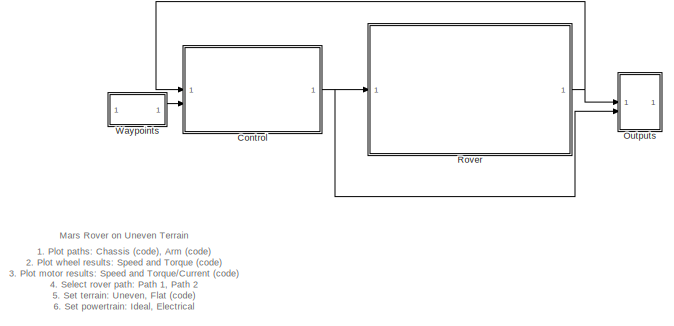
[diagram: root canvas - part 1/2, left side, full height]
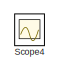
[diagram: root canvas - part 2/2, middle right region]
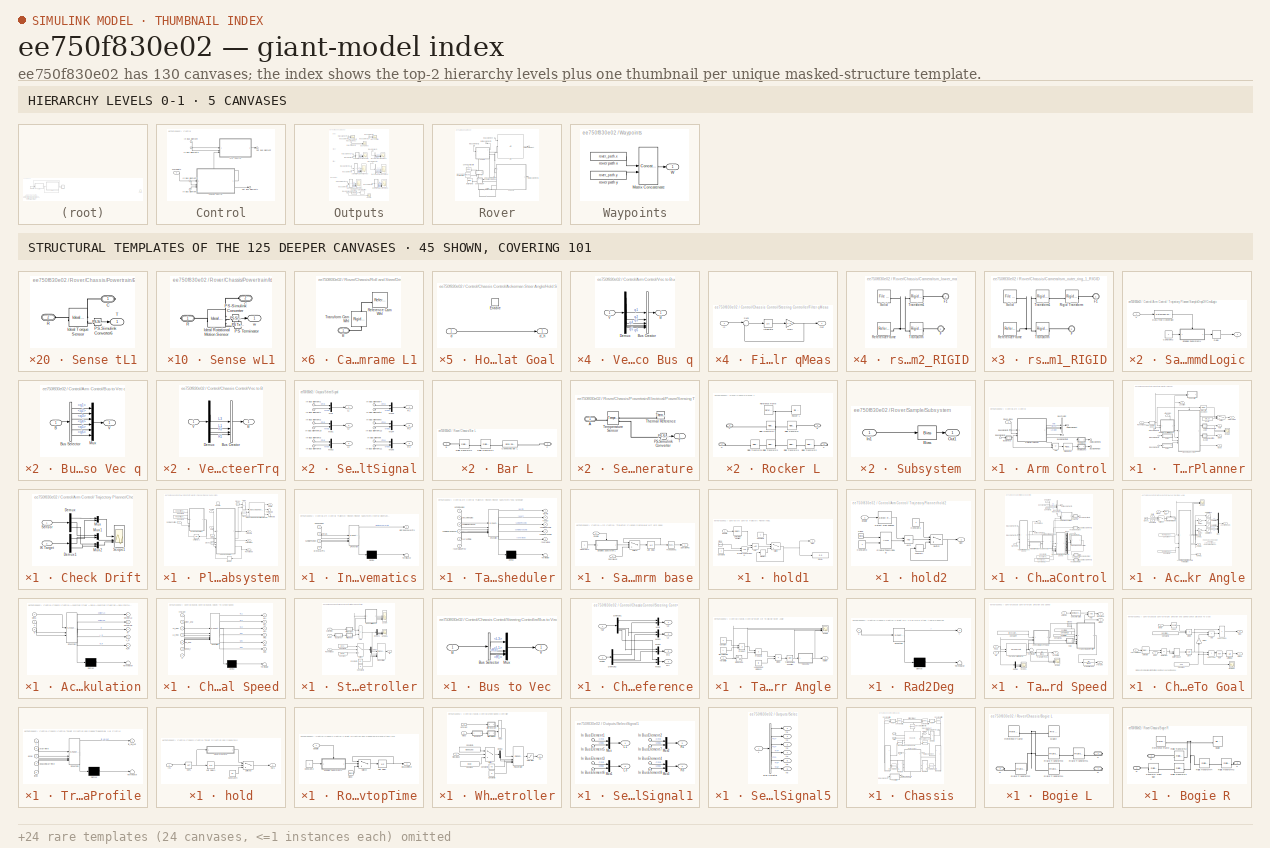
[diagram: thumbnail index - top-2 hierarchy levels (5 canvases) + 45 structural-template representatives of the remaining 125 canvases]
MODEL slx_ee750f830e02
KIND model
CONFIG AbsTol = 1e-3
CONFIG EnableMultiTasking = on
CONFIG FixedStep = 1e-10
CONFIG MaxStep = 1e-1
CONFIG MinStep = auto
CONFIG RelTol = 1e-3
CONFIG SampleTimeConstraint = Unconstrained
CONFIG SolverName = daessc
CONFIG StartTime = 0.0
CONFIG StopTime = 130*10
BLOCK [SubSystem] Control
BLOCK [SubSystem] Control/Arm Control
BLOCK [SubSystem] Control/Arm Control/ Trajectory Planner
BLOCK [Inport] Control/Arm Control/ Trajectory Planner/Arm Angles
  Port = 3
BLOCK [SubSystem] Control/Arm Control/ Trajectory Planner/Check Drift
BLOCK [Demux] Control/Arm Control/ Trajectory Planner/Check Drift/Demux
  Outputs = 3
BLOCK [Demux] Control/Arm Control/ Trajectory Planner/Check Drift/Demux1
  Outputs = 3
BLOCK [Inport] Control/Arm Control/ Trajectory Planner/Check Drift/IK Target
  Port = 2
BLOCK [Mux] Control/Arm Control/ Trajectory Planner/Check Drift/Mux
  DisplayOption = bar
  Inputs = 2
BLOCK [Mux] Control/Arm Control/ Trajectory Planner/Check Drift/Mux1
  DisplayOption = bar
  Inputs = 2
BLOCK [Mux] Control/Arm Control/ Trajectory Planner/Check Drift/Mux2
  DisplayOption = bar
  Inputs = 2
BLOCK [Scope] Control/Arm Control/ Trajectory Planner/Check Drift/Scope1
  Floating = off
  NumInputPorts = 3
  ScopeSpecificationString = Simulink.scopes.TimeScopeBlockCfg('CurrentConfiguration', extmgr.ConfigurationSet(extmgr.Configuration('Core','General UI',true),extmgr.Configuration('Core','Source UI',true),extmgr.Configuration('Sources','WiredSimulink',true,'DataLoggingVariableName','ScopeData2'),extmgr.Configuration('Visuals','Time Domain',true,'SerializedDisplays',{struct('MinYLimReal','-0.42564','MaxYLimReal','-0.41525','YLa...<+3041ch>
BLOCK [Inport] Control/Arm Control/ Trajectory Planner/Check Drift/Sensor
BLOCK [Outport] Control/Arm Control/ Trajectory Planner/Cmd Angles
  Port = 5
BLOCK [Delay] Control/Arm Control/ Trajectory Planner/Delay Arm Movement
  InputPortMap = u0
  NameLocation = top
BLOCK [Delay] Control/Arm Control/ Trajectory Planner/Delay Sample Check
  InputPortMap = u0
  NameLocation = top
BLOCK [Outport] Control/Arm Control/ Trajectory Planner/Hold
BLOCK [Inport] Control/Arm Control/ Trajectory Planner/In Bus Element1
  Port = 2
BLOCK [Inport] Control/Arm Control/ Trajectory Planner/In Bus Element2
  Port = 2
BLOCK [Inport] Control/Arm Control/ Trajectory Planner/In Bus Element3
  Port = 2
BLOCK [Outport] Control/Arm Control/ Trajectory Planner/Location
  Port = 3
BLOCK [Outport] Control/Arm Control/ Trajectory Planner/Mode
  Port = 4
BLOCK [SubSystem] Control/Arm Control/ Trajectory Planner/Planner Subsystem
BLOCK [Sum] Control/Arm Control/ Trajectory Planner/Planner Subsystem/Add2
  IconShape = rectangular
  Inputs = +-
BLOCK [Clock] Control/Arm Control/ Trajectory Planner/Planner Subsystem/Clock3
BLOCK [Clock] Control/Arm Control/ Trajectory Planner/Planner Subsystem/Clock4
BLOCK [Outport] Control/Arm Control/ Trajectory Planner/Planner Subsystem/CmdHold
  Port = 2
BLOCK [Outport] Control/Arm Control/ Trajectory Planner/Planner Subsystem/CmdStored
  Port = 3
BLOCK [Constant] Control/Arm Control/ Trajectory Planner/Planner Subsystem/Constant2
  Value = eeConfig.Targets{:,:}
BLOCK [Constant] Control/Arm Control/ Trajectory Planner/Planner Subsystem/Constant3
  Value = eeConfig.Joint_IG{:,:}
BLOCK [EnablePort] Control/Arm Control/ Trajectory Planner/Planner Subsystem/Enable
BLOCK [Inport] Control/Arm Control/ Trajectory Planner/Planner Subsystem/Hold
  Port = 3
BLOCK [SubSystem] Control/Arm Control/ Trajectory Planner/Planner Subsystem/Inverse Kinematics
  ErrorFcn = Stateflow.Translate.translate
  PermitHierarchicalResolution = ExplicitOnly
  SFBlockType = MATLAB Function
  TreatAsAtomicUnit = on
BLOCK [Demux] Control/Arm Control/ Trajectory Planner/Planner Subsystem/Inverse Kinematics/ Demux 
  Outputs = 1
BLOCK [S-Function] Control/Arm Control/ Trajectory Planner/Planner Subsystem/Inverse Kinematics/ SFunction 
  EnableBusSupport = off
  FunctionName = sf_sfun
  PortCounts = [4 2]
  SFcnIsStateOwnerBlock = off
  SFunctionDeploymentMode = off
  Tag = Stateflow S-Function 16
BLOCK [Terminator] Control/Arm Control/ Trajectory Planner/Planner Subsystem/Inverse Kinematics/ Terminator 
BLOCK [Inport] Control/Arm Control/ Trajectory Planner/Planner Subsystem/Inverse Kinematics/eeIgs
  Port = 2
BLOCK [Inport] Control/Arm Control/ Trajectory Planner/Planner Subsystem/Inverse Kinematics/eePoseDes
BLOCK [Outport] Control/Arm Control/ Trajectory Planner/Planner Subsystem/Inverse Kinematics/jointSpaceWayPts
BLOCK [Inport] Control/Arm Control/ Trajectory Planner/Planner Subsystem/Inverse Kinematics/prevWayPts
  Port = 4
BLOCK [Inport] Control/Arm Control/ Trajectory Planner/Planner Subsystem/Inverse Kinematics/samplePosition
  Port = 3
BLOCK [Memory] Control/Arm Control/ Trajectory Planner/Planner Subsystem/Memory
  NameLocation = top
BLOCK [Outport] Control/Arm Control/ Trajectory Planner/Planner Subsystem/Rover Mode
  Port = 4
BLOCK [Inport] Control/Arm Control/ Trajectory Planner/Planner Subsystem/SamplePosition
  Port = 2
BLOCK [Inport] Control/Arm Control/ Trajectory Planner/Planner Subsystem/Stored
  Port = 4
BLOCK [SubSystem] Control/Arm Control/ Trajectory Planner/Planner Subsystem/Task Scheduler
  ErrorFcn = Stateflow.Translate.translate
  PermitHierarchicalResolution = ExplicitOnly
  SFBlockType = MATLAB Function
  TreatAsAtomicUnit = on
BLOCK [Demux] Control/Arm Control/ Trajectory Planner/Planner Subsystem/Task Scheduler/ Demux 
  Outputs = 1
BLOCK [S-Function] Control/Arm Control/ Trajectory Planner/Planner Subsystem/Task Scheduler/ SFunction 
  EnableBusSupport = off
  FunctionName = sf_sfun
  PortCounts = [6 6]
  SFcnIsStateOwnerBlock = off
  SFunctionDeploymentMode = off
  Tag = Stateflow S-Function 15
BLOCK [Terminator] Control/Arm Control/ Trajectory Planner/Planner Subsystem/Task Scheduler/ Terminator 
BLOCK [Inport] Control/Arm Control/ Trajectory Planner/Planner Subsystem/Task Scheduler/actJointAngles
BLOCK [Inport] Control/Arm Control/ Trajectory Planner/Planner Subsystem/Task Scheduler/currentTime
  Port = 5
BLOCK [Inport] Control/Arm Control/ Trajectory Planner/Planner Subsystem/Task Scheduler/desJointAngles
  Port = 2
BLOCK [Outport] Control/Arm Control/ Trajectory Planner/Planner Subsystem/Task Scheduler/reset_t
  Port = 2
BLOCK [Outport] Control/Arm Control/ Trajectory Planner/Planner Subsystem/Task Scheduler/roverMode
  Port = 5
BLOCK [Inport] Control/Arm Control/ Trajectory Planner/Planner Subsystem/Task Scheduler/roverModePrev
  Port = 6
BLOCK [Outport] Control/Arm Control/ Trajectory Planner/Planner Subsystem/Task Scheduler/sampleDropCmd
  Port = 4
BLOCK [Inport] Control/Arm Control/ Trajectory Planner/Planner Subsystem/Task Scheduler/sampleDropSense
  Port = 4
BLOCK [Outport] Control/Arm Control/ Trajectory Planner/Planner Subsystem/Task Scheduler/samplePickCmd
  Port = 3
BLOCK [Inport] Control/Arm Control/ Trajectory Planner/Planner Subsystem/Task Scheduler/samplePickSense
  Port = 3
BLOCK [Outport] Control/Arm Control/ Trajectory Planner/Planner Subsystem/Task Scheduler/wayPts
BLOCK [Terminator] Control/Arm Control/ Trajectory Planner/Planner Subsystem/Terminator2
BLOCK [Terminator] Control/Arm Control/ Trajectory Planner/Planner Subsystem/Terminator3
BLOCK [Math] Control/Arm Control/ Trajectory Planner/Planner Subsystem/Transpose
  Operator = transpose
BLOCK [Reference] Control/Arm Control/ Trajectory Planner/Planner Subsystem/Trapezoidal Velocity Profile Trajectory  REF=robotcorelib/Trapezoidal Velocity Profile Trajectory
  SourceBlock = robotcorelib/Trapezoidal Velocity Profile Trajectory
  SourceType = robotics.slcore.internal.block.TrapVelTrajSys
BLOCK [UnitDelay] Control/Arm Control/ Trajectory Planner/Planner Subsystem/Unit Delay1
  HasFrameUpgradeWarning = on
  InitialCondition = zeros(7,6)
  SampleTime = -1
BLOCK [Outport] Control/Arm Control/ Trajectory Planner/Planner Subsystem/qCmd
BLOCK [Inport] Control/Arm Control/ Trajectory Planner/Planner Subsystem/qJoints
BLOCK [Inport] Control/Arm Control/ Trajectory Planner/RoverAtGoal
BLOCK [SubSystem] Control/Arm Control/ Trajectory Planner/SampleDropOffCmdLogic
BLOCK [Constant] Control/Arm Control/ Trajectory Planner/SampleDropOffCmdLogic/Constant2
BLOCK [DataTypeConversion] Control/Arm Control/ Trajectory Planner/SampleDropOffCmdLogic/Data Type Conversion
  OutDataTypeStr = double
  RndMeth = Floor
  SaturateOnIntegerOverflow = off
BLOCK [Delay] Control/Arm Control/ Trajectory Planner/SampleDropOffCmdLogic/Delay
  InputPortMap = u0
BLOCK [SubSystem] Control/Arm Control/ Trajectory Planner/SampleDropOffCmdLogic/Enabled Subsystem1
  MinAlgLoopOccurrences = on
  TreatAsAtomicUnit = on
BLOCK [EnablePort] Control/Arm Control/ Trajectory Planner/SampleDropOffCmdLogic/Enabled Subsystem1/Enable
BLOCK [Inport] Control/Arm Control/ Trajectory Planner/SampleDropOffCmdLogic/Enabled Subsystem1/In1
BLOCK [Outport] Control/Arm Control/ Trajectory Planner/SampleDropOffCmdLogic/Enabled Subsystem1/Out1
BLOCK [Inport] Control/Arm Control/ Trajectory Planner/SampleDropOffCmdLogic/u
BLOCK [Outport] Control/Arm Control/ Trajectory Planner/SampleDropOffCmdLogic/y
BLOCK [SubSystem] Control/Arm Control/ Trajectory Planner/SampleLoc wrt arm base
BLOCK [Constant] Control/Arm Control/ Trajectory Planner/SampleLoc wrt arm base/Constant2
BLOCK [Inport] Control/Arm Control/ Trajectory Planner/SampleLoc wrt arm base/Enable
BLOCK [SubSystem] Control/Arm Control/ Trajectory Planner/SampleLoc wrt arm base/Enabled Subsystem1
  MinAlgLoopOccurrences = on
  TreatAsAtomicUnit = on
BLOCK [EnablePort] Control/Arm Control/ Trajectory Planner/SampleLoc wrt arm base/Enabled Subsystem1/Enable
BLOCK [Inport] Control/Arm Control/ Trajectory Planner/SampleLoc wrt arm base/Enabled Subsystem1/In1
BLOCK [Outport] Control/Arm Control/ Trajectory Planner/SampleLoc wrt arm base/Enabled Subsystem1/Out1
BLOCK [Inport] Control/Arm Control/ Trajectory Planner/SampleLoc wrt arm base/SampleLoc
  Port = 2
BLOCK [Outport] Control/Arm Control/ Trajectory Planner/SampleLoc wrt arm base/SamplePos
BLOCK [Switch] Control/Arm Control/ Trajectory Planner/SampleLoc wrt arm base/Switch
  Criteria = u2 > Threshold
  InputSameDT = off
  SaturateOnIntegerOverflow = off
BLOCK [Math] Control/Arm Control/ Trajectory Planner/SampleLoc wrt arm base/Transpose1
  Operator = transpose
BLOCK [UnitDelay] Control/Arm Control/ Trajectory Planner/SampleLoc wrt arm base/Unit Delay
  HasFrameUpgradeWarning = on
  SampleTime = -1
BLOCK [SubSystem] Control/Arm Control/ Trajectory Planner/SamplePickUpCmdLogic
BLOCK [Constant] Control/Arm Control/ Trajectory Planner/SamplePickUpCmdLogic/Constant2
BLOCK [DataTypeConversion] Control/Arm Control/ Trajectory Planner/SamplePickUpCmdLogic/Data Type Conversion
  OutDataTypeStr = double
  RndMeth = Floor
  SaturateOnIntegerOverflow = off
BLOCK [Delay] Control/Arm Control/ Trajectory Planner/SamplePickUpCmdLogic/Delay
  InputPortMap = u0
BLOCK [SubSystem] Control/Arm Control/ Trajectory Planner/SamplePickUpCmdLogic/Enabled Subsystem1
  MinAlgLoopOccurrences = on
  TreatAsAtomicUnit = on
BLOCK [EnablePort] Control/Arm Control/ Trajectory Planner/SamplePickUpCmdLogic/Enabled Subsystem1/Enable
BLOCK [Inport] Control/Arm Control/ Trajectory Planner/SamplePickUpCmdLogic/Enabled Subsystem1/In1
BLOCK [Outport] Control/Arm Control/ Trajectory Planner/SamplePickUpCmdLogic/Enabled Subsystem1/Out1
BLOCK [Inport] Control/Arm Control/ Trajectory Planner/SamplePickUpCmdLogic/u
BLOCK [Outport] Control/Arm Control/ Trajectory Planner/SamplePickUpCmdLogic/y
BLOCK [Scope] Control/Arm Control/ Trajectory Planner/Scope
  Floating = off
  NumInputPorts = 2
  ScopeSpecificationString = Simulink.scopes.TimeScopeBlockCfg('CurrentConfiguration', extmgr.ConfigurationSet(extmgr.Configuration('Core','General UI',true),extmgr.Configuration('Core','Source UI',true),extmgr.Configuration('Sources','WiredSimulink',true,'DataLoggingVariableName','ScopeData1'),extmgr.Configuration('Visuals','Time Domain',true,'SerializedDisplays',{struct('MinYLimReal','-0.125','MaxYLimReal','1.125','YLabelRe...<+2230ch>
BLOCK [Outport] Control/Arm Control/ Trajectory Planner/Stored
  Port = 2
BLOCK [Switch] Control/Arm Control/ Trajectory Planner/Switch
  Criteria = u2 > Threshold
  InputSameDT = off
  SaturateOnIntegerOverflow = off
BLOCK [SubSystem] Control/Arm Control/ Trajectory Planner/hold1
BLOCK [Logic] Control/Arm Control/ Trajectory Planner/hold1/AND
  AllPortsSameDT = off
  IconShape = distinctive
  OutDataTypeStr = boolean
BLOCK [Clock] Control/Arm Control/ Trajectory Planner/hold1/Clock
BLOCK [Constant] Control/Arm Control/ Trajectory Planner/hold1/Constant1
BLOCK [Constant] Control/Arm Control/ Trajectory Planner/hold1/Constant3
BLOCK [Reference] Control/Arm Control/ Trajectory Planner/hold1/Detect Rise Positive  REF=simulink/Logic and Bit
Operations/Detect Rise
Positive
  SourceBlock = simulink/Logic and Bit\nOperations/Detect Rise\nPositive
  SourceType = Detect Rise Positive
BLOCK [Display] Control/Arm Control/ Trajectory Planner/hold1/Display
  Decimation = 1
BLOCK [Inport] Control/Arm Control/ Trajectory Planner/hold1/Enable
BLOCK [RelationalOperator] Control/Arm Control/ Trajectory Planner/hold1/GreaterThanOrEqual
  InputSameDT = off
  OutDataTypeStr = boolean
  RndMeth = Simplest
BLOCK [Memory] Control/Arm Control/ Trajectory Planner/hold1/Memory
BLOCK [Switch] Control/Arm Control/ Trajectory Planner/hold1/Switch
  Criteria = u2 > Threshold
  InputSameDT = off
  SaturateOnIntegerOverflow = off
BLOCK [Outport] Control/Arm Control/ Trajectory Planner/hold1/plan
BLOCK [SubSystem] Control/Arm Control/ Trajectory Planner/hold2
BLOCK [Logic] Control/Arm Control/ Trajectory Planner/hold2/AND
  AllPortsSameDT = off
  IconShape = distinctive
  OutDataTypeStr = boolean
BLOCK [Clock] Control/Arm Control/ Trajectory Planner/hold2/Clock
BLOCK [Constant] Control/Arm Control/ Trajectory Planner/hold2/Constant1
BLOCK [Constant] Control/Arm Control/ Trajectory Planner/hold2/Constant3
BLOCK [Reference] Control/Arm Control/ Trajectory Planner/hold2/Detect Rise Positive  REF=simulink/Logic and Bit
Operations/Detect Rise
Positive
  SourceBlock = simulink/Logic and Bit\nOperations/Detect Rise\nPositive
  SourceType = Detect Rise Positive
BLOCK [Inport] Control/Arm Control/ Trajectory Planner/hold2/Enable
BLOCK [RelationalOperator] Control/Arm Control/ Trajectory Planner/hold2/GreaterThanOrEqual
  InputSameDT = off
  OutDataTypeStr = boolean
  RndMeth = Simplest
BLOCK [Memory] Control/Arm Control/ Trajectory Planner/hold2/Memory
BLOCK [Switch] Control/Arm Control/ Trajectory Planner/hold2/Switch
  Criteria = u2 > Threshold
  InputSameDT = off
  SaturateOnIntegerOverflow = off
BLOCK [Outport] Control/Arm Control/ Trajectory Planner/hold2/plan
BLOCK [Constant] Control/Arm Control/ Trajectory Planner/q0 Arm
  Value = arm_q0
BLOCK [Sum] Control/Arm Control/Add
  IconShape = rectangular
  Inputs = +-
BLOCK [BusCreator] Control/Arm Control/Bus Creator
  DisplayOption = bar
  InheritFromInputs = on
  Inputs = 3
BLOCK [Outport] Control/Arm Control/Bus Element Out
BLOCK [Outport] Control/Arm Control/Bus Element Out1
BLOCK [SubSystem] Control/Arm Control/Bus to Vec q
BLOCK [Inport] Control/Arm Control/Bus to Vec q/B
BLOCK [BusSelector] Control/Arm Control/Bus to Vec q/Bus Selector
  OutputSignals = q.q1,q.q2,q.q3,q.q4,q.q5,q.q6
BLOCK [Mux] Control/Arm Control/Bus to Vec q/Mux
  DisplayOption = bar
  Inputs = 6
BLOCK [Outport] Control/Arm Control/Bus to Vec q/V
BLOCK [Inport] Control/Arm Control/In Bus Element1
BLOCK [Inport] Control/Arm Control/In Bus Element2
  Port = 2
BLOCK [Outport] Control/Arm Control/Out Bus Element
BLOCK [Outport] Control/Arm Control/Out Bus Element1
BLOCK [Reference] Control/Arm Control/PID Control  REF=slpidlib/PID Controller
  SourceBlock = slpidlib/PID Controller
  SourceType = PID 1dof
BLOCK [Inport] Control/Arm Control/RoverAtGoal
  Port = 3
BLOCK [SubSystem] Control/Arm Control/Vec to Bus q
BLOCK [Outport] Control/Arm Control/Vec to Bus q/B
BLOCK [BusCreator] Control/Arm Control/Vec to Bus q/Bus Creator
  DisplayOption = bar
  InheritFromInputs = on
  Inputs = 6
BLOCK [Demux] Control/Arm Control/Vec to Bus q/Demux
  Outputs = 6
BLOCK [Inport] Control/Arm Control/Vec to Bus q/V
BLOCK [SubSystem] Control/Arm Control/Vec to Bus trq
BLOCK [Outport] Control/Arm Control/Vec to Bus trq/B
BLOCK [BusCreator] Control/Arm Control/Vec to Bus trq/Bus Creator
  DisplayOption = bar
  InheritFromInputs = on
  Inputs = 6
BLOCK [Demux] Control/Arm Control/Vec to Bus trq/Demux
  Outputs = 6
BLOCK [Inport] Control/Arm Control/Vec to Bus trq/V
BLOCK [SubSystem] Control/Chassis Control
BLOCK [SubSystem] Control/Chassis Control/Ackerman Steer Angle
BLOCK [Outport] Control/Chassis Control/Ackerman Steer Angle/A3 ROC
  Port = 2
BLOCK [Outport] Control/Chassis Control/Ackerman Steer Angle/AckSteerAngs
BLOCK [SubSystem] Control/Chassis Control/Ackerman Steer Angle/Ackerman Steering Angle Formulation
  ErrorFcn = Stateflow.Translate.translate
  PermitHierarchicalResolution = ExplicitOnly
  SFBlockType = MATLAB Function
  TreatAsAtomicUnit = on
BLOCK [Demux] Control/Chassis Control/Ackerman Steer Angle/Ackerman Steering Angle Formulation/ Demux 
  Outputs = 1
BLOCK [S-Function] Control/Chassis Control/Ackerman Steer Angle/Ackerman Steering Angle Formulation/ SFunction 
  EnableBusSupport = off
  FunctionName = sf_sfun
  PortCounts = [3 6]
  SFcnIsStateOwnerBlock = off
  SFunctionDeploymentMode = off
  Tag = Stateflow S-Function 12
BLOCK [Terminator] Control/Chassis Control/Ackerman Steer Angle/Ackerman Steering Angle Formulation/ Terminator 
BLOCK [Inport] Control/Chassis Control/Ackerman Steer Angle/Ackerman Steering Angle Formulation/L
  Port = 2
BLOCK [Outport] Control/Chassis Control/Ackerman Steer Angle/Ackerman Steering Angle Formulation/L_R
  Port = 4
BLOCK [Outport] Control/Chassis Control/Ackerman Steer Angle/Ackerman Steering Angle Formulation/R
  Port = 3
BLOCK [Outport] Control/Chassis Control/Ackerman Steer Angle/Ackerman Steering Angle Formulation/R_R
  Port = 5
BLOCK [Inport] Control/Chassis Control/Ackerman Steer Angle/Ackerman Steering Angle Formulation/d
  Port = 3
BLOCK [Inport] Control/Chassis Control/Ackerman Steer Angle/Ackerman Steering Angle Formulation/delta
BLOCK [Outport] Control/Chassis Control/Ackerman Steer Angle/Ackerman Steering Angle Formulation/qSteerL3
BLOCK [Outport] Control/Chassis Control/Ackerman Steer Angle/Ackerman Steering Angle Formulation/qSteerR3
  Port = 2
BLOCK [Inport] Control/Chassis Control/Ackerman Steer Angle/AtGoal
BLOCK [Clock] Control/Chassis Control/Ackerman Steer Angle/Clock1
BLOCK [Constant] Control/Chassis Control/Ackerman Steer Angle/Constant
  Value = Rover.Chassis.Length/2
BLOCK [Constant] Control/Chassis Control/Ackerman Steer Angle/Constant3
  NameLocation = top
  Value = 0
BLOCK [Constant] Control/Chassis Control/Ackerman Steer Angle/Constant4
  Value = Rover.Chassis.Width
BLOCK [Inport] Control/Chassis Control/Ackerman Steer Angle/Delta
  NameLocation = top
  Port = 2
BLOCK [Gain] Control/Chassis Control/Ackerman Steer Angle/Gain3
  Gain = -1
BLOCK [Gain] Control/Chassis Control/Ackerman Steer Angle/Gain4
  Gain = -1
BLOCK [SubSystem] Control/Chassis Control/Ackerman Steer Angle/Hold Steer at Goal
  TreatAsAtomicUnit = on
BLOCK [EnablePort] Control/Chassis Control/Ackerman Steer Angle/Hold Steer at Goal/Enable
BLOCK [Inport] Control/Chassis Control/Ackerman Steer Angle/Hold Steer at Goal/d
BLOCK [Outport] Control/Chassis Control/Ackerman Steer Angle/Hold Steer at Goal/d_h
BLOCK [Outport] Control/Chassis Control/Ackerman Steer Angle/L3ROC
  Port = 3
BLOCK [Mux] Control/Chassis Control/Ackerman Steer Angle/Mux
  DisplayOption = bar
BLOCK [Logic] Control/Chassis Control/Ackerman Steer Angle/NOT
  AllPortsSameDT = off
  IconShape = distinctive
  Operator = NOT
  OutDataTypeStr = boolean
BLOCK [Outport] Control/Chassis Control/Ackerman Steer Angle/R3ROC
  Port = 4
BLOCK [Saturate] Control/Chassis Control/Ackerman Steer Angle/Saturation1
  LowerLimit = -60
  UpperLimit = 60
BLOCK [Saturate] Control/Chassis Control/Ackerman Steer Angle/Saturation2
  LowerLimit = -60
  UpperLimit = 60
BLOCK [Saturate] Control/Chassis Control/Ackerman Steer Angle/Saturation3
  LowerLimit = -60
  UpperLimit = 60
BLOCK [Saturate] Control/Chassis Control/Ackerman Steer Angle/Saturation4
  LowerLimit = -60
  UpperLimit = 60
BLOCK [Scope] Control/Chassis Control/Ackerman Steer Angle/Scope
  Floating = off
  NumInputPorts = 3
  ScopeSpecificationString = Simulink.scopes.TimeScopeBlockCfg('CurrentConfiguration', extmgr.ConfigurationSet(extmgr.Configuration('Core','General UI',true),extmgr.Configuration('Core','Source UI',true),extmgr.Configuration('Sources','WiredSimulink',true,'DataLoggingVariableName','ScopeData2'),extmgr.Configuration('Visuals','Time Domain',true,'SerializedDisplays',{struct('MinYLimReal','-35.60933','MaxYLimReal','51.25577','YL...<+1531ch>
BLOCK [Switch] Control/Chassis Control/Ackerman Steer Angle/Switch2
  Criteria = u2 > Threshold
  InputSameDT = off
  SaturateOnIntegerOverflow = off
  Threshold = 1
BLOCK [BusCreator] Control/Chassis Control/Bus Creator
  DisplayOption = bar
  InheritFromInputs = on
  Inputs = 3
BLOCK [Outport] Control/Chassis Control/Bus Element Out
  Port = 2
BLOCK [Outport] Control/Chassis Control/Bus Element Out1
  Port = 2
BLOCK [SubSystem] Control/Chassis Control/Chassis Velocity To Wheel Speed
  ErrorFcn = Stateflow.Translate.translate
  PermitHierarchicalResolution = ExplicitOnly
  SFBlockType = MATLAB Function
  TreatAsAtomicUnit = on
BLOCK [Demux] Control/Chassis Control/Chassis Velocity To Wheel Speed/ Demux 
  Outputs = 1
BLOCK [S-Function] Control/Chassis Control/Chassis Velocity To Wheel Speed/ SFunction 
  EnableBusSupport = off
  FunctionName = sf_sfun
  PortCounts = [7 7]
  SFcnIsStateOwnerBlock = off
  SFunctionDeploymentMode = off
  Tag = Stateflow S-Function 14
BLOCK [Terminator] Control/Chassis Control/Chassis Velocity To Wheel Speed/ Terminator 
BLOCK [Inport] Control/Chassis Control/Chassis Velocity To Wheel Speed/A3_ROC
  Port = 3
BLOCK [Inport] Control/Chassis Control/Chassis Velocity To Wheel Speed/L
  Port = 7
BLOCK [Inport] Control/Chassis Control/Chassis Velocity To Wheel Speed/L3_ROC
  Port = 4
BLOCK [Inport] Control/Chassis Control/Chassis Velocity To Wheel Speed/R3_ROC
  Port = 5
BLOCK [Inport] Control/Chassis Control/Chassis Velocity To Wheel Speed/steer_ang
  Port = 2
BLOCK [Inport] Control/Chassis Control/Chassis Velocity To Wheel Speed/vTarget
BLOCK [Outport] Control/Chassis Control/Chassis Velocity To Wheel Speed/wL1
BLOCK [Outport] Control/Chassis Control/Chassis Velocity To Wheel Speed/wL2
  Port = 2
BLOCK [Outport] Control/Chassis Control/Chassis Velocity To Wheel Speed/wL3
  Port = 3
BLOCK [Outport] Control/Chassis Control/Chassis Velocity To Wheel Speed/wR1
  Port = 4
BLOCK [Outport] Control/Chassis Control/Chassis Velocity To Wheel Speed/wR2
  Port = 5
BLOCK [Outport] Control/Chassis Control/Chassis Velocity To Wheel Speed/wR3
  Port = 6
BLOCK [Inport] Control/Chassis Control/Chassis Velocity To Wheel Speed/wheel_r
  Port = 6
BLOCK [Constant] Control/Chassis Control/Constant
  Value = 0
BLOCK [Constant] Control/Chassis Control/Constant1
  Value = 0
BLOCK [Constant] Control/Chassis Control/Constant12
  Value = Rover.Chassis.Length/2
BLOCK [Constant] Control/Chassis Control/Constant2
  Value = 30*pi/180
BLOCK [Constant] Control/Chassis Control/Constant8
  Value = Rover.Wheel.Radius
BLOCK [Inport] Control/Chassis Control/In Bus Element
  Port = 2
BLOCK [Inport] Control/Chassis Control/In Bus Element1
  Port = 2
BLOCK [Inport] Control/Chassis Control/In Bus Element3
  Port = 3
BLOCK [Inport] Control/Chassis Control/In Bus Element4
  Port = 3
BLOCK [Mux] Control/Chassis Control/Mux2
  DisplayOption = bar
  Inputs = 6
BLOCK [Outport] Control/Chassis Control/Out Bus Element
  Port = 2
BLOCK [Outport] Control/Chassis Control/Out Bus Element1
  Port = 2
BLOCK [Outport] Control/Chassis Control/Out Bus Element2
  Port = 2
BLOCK [Outport] Control/Chassis Control/Out Bus Element3
  Port = 2
BLOCK [Outport] Control/Chassis Control/RoverAtGoal
BLOCK [SubSystem] Control/Chassis Control/Steering Controller
BLOCK [Sum] Control/Chassis Control/Steering Controller/Add
  IconShape = rectangular
  Inputs = +-
BLOCK [SubSystem] Control/Chassis Control/Steering Controller/Bus to Vec
BLOCK [Inport] Control/Chassis Control/Steering Controller/Bus to Vec/B
BLOCK [BusSelector] Control/Chassis Control/Steering Controller/Bus to Vec/Bus Selector
  OutputSignals = q.L3,q.L1,q.R3,q.R1
BLOCK [Mux] Control/Chassis Control/Steering Controller/Bus to Vec/Mux
  DisplayOption = bar
BLOCK [Outport] Control/Chassis Control/Steering Controller/Bus to Vec/V
BLOCK [SubSystem] Control/Chassis Control/Steering Controller/Check Difference
BLOCK [Demux] Control/Chassis Control/Steering Controller/Check Difference/Demux1
  NameLocation = top
BLOCK [Demux] Control/Chassis Control/Steering Controller/Check Difference/Demux2
BLOCK [Outport] Control/Chassis Control/Steering Controller/Check Difference/L1
  Port = 2
BLOCK [Outport] Control/Chassis Control/Steering Controller/Check Difference/L3
BLOCK [Mux] Control/Chassis Control/Steering Controller/Check Difference/Mux
  DisplayOption = bar
  Inputs = 2
BLOCK [Mux] Control/Chassis Control/Steering Controller/Check Difference/Mux1
  DisplayOption = bar
  Inputs = 2
BLOCK [Mux] Control/Chassis Control/Steering Controller/Check Difference/Mux2
  DisplayOption = bar
  Inputs = 2
BLOCK [Mux] Control/Chassis Control/Steering Controller/Check Difference/Mux3
  DisplayOption = bar
  Inputs = 2
BLOCK [Outport] Control/Chassis Control/Steering Controller/Check Difference/R1
  Port = 4
BLOCK [Outport] Control/Chassis Control/Steering Controller/Check Difference/R3
  Port = 3
BLOCK [Inport] Control/Chassis Control/Steering Controller/Check Difference/meas
  Port = 2
BLOCK [Inport] Control/Chassis Control/Steering Controller/Check Difference/tgt
BLOCK [Constant] Control/Chassis Control/Steering Controller/Constant
  Value = [Kp Ki]
BLOCK [Constant] Control/Chassis Control/Steering Controller/Constant1
  Value = [10 1 ]
BLOCK [Constant] Control/Chassis Control/Steering Controller/Constant2
  Value = Kd
BLOCK [Constant] Control/Chassis Control/Steering Controller/Constant3
  Value = N
BLOCK [Demux] Control/Chassis Control/Steering Controller/Demux
  Outputs = 2
BLOCK [Demux] Control/Chassis Control/Steering Controller/Demux1
BLOCK [SubSystem] Control/Chassis Control/Steering Controller/Filter qMeas
BLOCK [Gain] Control/Chassis Control/Steering Controller/Filter qMeas/Gain
  Gain = 1./b
BLOCK [Inport] Control/Chassis Control/Steering Controller/Filter qMeas/In
BLOCK [Integrator] Control/Chassis Control/Steering Controller/Filter qMeas/Integrator
  InitialCondition = x_initial.*b
BLOCK [Outport] Control/Chassis Control/Steering Controller/Filter qMeas/Out
  VectorParamsAs1DForOutWhenUnconnected = off
BLOCK [Sum] Control/Chassis Control/Steering Controller/Filter qMeas/Sum
  InputSameDT = on
  Inputs = |+-
  OutDataTypeStr = Inherit: Same as first input
  SaturateOnIntegerOverflow = on
BLOCK [SubSystem] Control/Chassis Control/Steering Controller/Filter qTarget
BLOCK [Gain] Control/Chassis Control/Steering Controller/Filter qTarget/Gain
  Gain = 1./b
BLOCK [Inport] Control/Chassis Control/Steering Controller/Filter qTarget/In
BLOCK [Integrator] Control/Chassis Control/Steering Controller/Filter qTarget/Integrator
  InitialCondition = x_initial.*b
BLOCK [Outport] Control/Chassis Control/Steering Controller/Filter qTarget/Out
  VectorParamsAs1DForOutWhenUnconnected = off
BLOCK [Sum] Control/Chassis Control/Steering Controller/Filter qTarget/Sum
  InputSameDT = on
  Inputs = |+-
  OutDataTypeStr = Inherit: Same as first input
  SaturateOnIntegerOverflow = on
BLOCK [Inport] Control/Chassis Control/Steering Controller/Meas
BLOCK [Reference] Control/Chassis Control/Steering Controller/PID Controller  REF=slpidlib/PID Controller
  SourceBlock = slpidlib/PID Controller
  SourceType = PID 1dof
BLOCK [Inport] Control/Chassis Control/Steering Controller/RoverAtGoal
  Port = 3
BLOCK [Scope] Control/Chassis Control/Steering Controller/Scope
  Floating = off
  NumInputPorts = 4
  ScopeSpecificationString = Simulink.scopes.TimeScopeBlockCfg('CurrentConfiguration', extmgr.ConfigurationSet(extmgr.Configuration('Core','General UI',true),extmgr.Configuration('Core','Source UI',true),extmgr.Configuration('Sources','WiredSimulink',true,'DataLoggingVariableName','ScopeData1'),extmgr.Configuration('Visuals','Time Domain',true,'SerializedDisplays',{struct('MinYLimReal','-152.13979','MaxYLimReal','38.47588','Y...<+3829ch>
BLOCK [Scope] Control/Chassis Control/Steering Controller/Scope1
  Floating = off
  NumInputPorts = 4
  ScopeSpecificationString = Simulink.scopes.TimeScopeBlockCfg('CurrentConfiguration', extmgr.ConfigurationSet(extmgr.Configuration('Core','General UI',true),extmgr.Configuration('Core','Source UI',true),extmgr.Configuration('Sources','WiredSimulink',true,'DataLoggingVariableName','ScopeData5'),extmgr.Configuration('Visuals','Time Domain',true,'SerializedDisplays',{struct('MinYLimReal','-2.45349','MaxYLimReal','1.54302','YLab...<+3817ch>
BLOCK [Switch] Control/Chassis Control/Steering Controller/Switch
  Criteria = u2 > Threshold
  InputSameDT = off
  SaturateOnIntegerOverflow = off
BLOCK [Inport] Control/Chassis Control/Steering Controller/qSteerWhl
  Port = 2
BLOCK [Outport] Control/Chassis Control/Steering Controller/trq
BLOCK [SubSystem] Control/Chassis Control/Target Dir To Bicycle Steer Angle
BLOCK [Constant] Control/Chassis Control/Target Dir To Bicycle Steer Angle/Bicycle length
  Value = L
BLOCK [Constant] Control/Chassis Control/Target Dir To Bicycle Steer Angle/Constant
  Value = 2
BLOCK [Product] Control/Chassis Control/Target Dir To Bicycle Steer Angle/Divide
  Inputs = */
BLOCK [Constant] Control/Chassis Control/Target Dir To Bicycle Steer Angle/Lookahead distance
  Value = ld
BLOCK [Product] Control/Chassis Control/Target Dir To Bicycle Steer Angle/Product
BLOCK [Product] Control/Chassis Control/Target Dir To Bicycle Steer Angle/Product1
BLOCK [SubSystem] Control/Chassis Control/Target Dir To Bicycle Steer Angle/Rad2Deg
  ErrorFcn = Stateflow.Translate.translate
  PermitHierarchicalResolution = ExplicitOnly
  SFBlockType = MATLAB Function
  TreatAsAtomicUnit = on
BLOCK [Demux] Control/Chassis Control/Target Dir To Bicycle Steer Angle/Rad2Deg/ Demux 
  Outputs = 1
BLOCK [S-Function] Control/Chassis Control/Target Dir To Bicycle Steer Angle/Rad2Deg/ SFunction 
  EnableBusSupport = off
  FunctionName = sf_sfun
  PortCounts = [1 2]
  SFcnIsStateOwnerBlock = off
  SFunctionDeploymentMode = off
  Tag = Stateflow S-Function 1
BLOCK [Terminator] Control/Chassis Control/Target Dir To Bicycle Steer Angle/Rad2Deg/ Terminator 
BLOCK [Inport] Control/Chassis Control/Target Dir To Bicycle Steer Angle/Rad2Deg/u
BLOCK [Outport] Control/Chassis Control/Target Dir To Bicycle Steer Angle/Rad2Deg/y
BLOCK [Scope] Control/Chassis Control/Target Dir To Bicycle Steer Angle/Scope
  Floating = off
  NumInputPorts = 4
  ScopeSpecificationString = Simulink.scopes.TimeScopeBlockCfg('CurrentConfiguration', extmgr.ConfigurationSet(extmgr.Configuration('Core','General UI',true),extmgr.Configuration('Core','Source UI',true),extmgr.Configuration('Sources','WiredSimulink',true,'DataLoggingVariableName','ScopeData2'),extmgr.Configuration('Visuals','Time Domain',true,'SerializedDisplays',{struct('MinYLimReal','-0.21556','MaxYLimReal','0.02395','YLab...<+3815ch>
BLOCK [Sin] Control/Chassis Control/Target Dir To Bicycle Steer Angle/Sine Wave
  SampleTime = 0
  TimeSource = Use external signal
BLOCK [Inport] Control/Chassis Control/Target Dir To Bicycle Steer Angle/TargetDir
BLOCK [Trigonometry] Control/Chassis Control/Target Dir To Bicycle Steer Angle/Trigonometric Function
  Operator = atan
BLOCK [Outport] Control/Chassis Control/Target Dir To Bicycle Steer Angle/qSteer
BLOCK [SubSystem] Control/Chassis Control/Target Direction and Speed
BLOCK [Logic] Control/Chassis Control/Target Direction and Speed/AND
  AllPortsSameDT = off
  IconShape = distinctive
  OutDataTypeStr = boolean
BLOCK [Outport] Control/Chassis Control/Target Direction and Speed/AtGoal
  Port = 3
BLOCK [SubSystem] Control/Chassis Control/Target Direction and Speed/Check Distance To Goal
  NameLocation = top
BLOCK [Sum] Control/Chassis Control/Target Direction and Speed/Check Distance To Goal/Add
  IconShape = rectangular
BLOCK [Constant] Control/Chassis Control/Target Direction and Speed/Check Distance To Goal/Constant
  Value = 0.25
BLOCK [Constant] Control/Chassis Control/Target Direction and Speed/Check Distance To Goal/Constant1
  Value = 2*Control.Drive.TargetAccel
BLOCK [Product] Control/Chassis Control/Target Direction and Speed/Check Distance To Goal/Divide
  Inputs = */
BLOCK [DotProduct] Control/Chassis Control/Target Direction and Speed/Check Distance To Goal/Dot Product
  OutDataTypeStr = Inherit: Inherit via internal rule
BLOCK [Gain] Control/Chassis Control/Target Direction and Speed/Check Distance To Goal/Gain1
  NameLocation = right
BLOCK [RelationalOperator] Control/Chassis Control/Target Direction and Speed/Check Distance To Goal/Less Than
  InputSameDT = off
  Operator = >
  OutDataTypeStr = boolean
  RndMeth = Simplest
BLOCK [RelationalOperator] Control/Chassis Control/Target Direction and Speed/Check Distance To Goal/Less Than1
  InputSameDT = off
  Operator = >
  OutDataTypeStr = boolean
  RndMeth = Simplest
BLOCK [Logic] Control/Chassis Control/Target Direction and Speed/Check Distance To Goal/NOT
  AllPortsSameDT = off
  IconShape = distinctive
  Operator = NOT
  OutDataTypeStr = boolean
BLOCK [Scope] Control/Chassis Control/Target Direction and Speed/Check Distance To Goal/Scope1
  Floating = off
  NumInputPorts = 1
  ScopeSpecificationString = Simulink.scopes.TimeScopeBlockCfg('CurrentConfiguration', extmgr.ConfigurationSet(extmgr.Configuration('Core','General UI',true),extmgr.Configuration('Core','Source UI',true),extmgr.Configuration('Sources','WiredSimulink',true,'DataLoggingVariableName','ScopeData17'),extmgr.Configuration('Visuals','Time Domain',true,'SerializedDisplays',{struct('MinYLimReal','-1.62385','MaxYLimReal','15.54178','YL...<+1530ch>
BLOCK [Selector] Control/Chassis Control/Target Direction and Speed/Check Distance To Goal/Selector
  IndexOptions = Index vector (dialog)
  Indices = [1 2]
  InputPortWidth = 3
  OutputSizes = 1
BLOCK [Outport] Control/Chassis Control/Target Direction and Speed/Check Distance To Goal/Slow
  Port = 2
BLOCK [Sqrt] Control/Chassis Control/Target Direction and Speed/Check Distance To Goal/Sqrt
BLOCK [Sum] Control/Chassis Control/Target Direction and Speed/Check Distance To Goal/Subtract
  IconShape = rectangular
  Inputs = +-
BLOCK [UnitDelay] Control/Chassis Control/Target Direction and Speed/Check Distance To Goal/Unit Delay
  HasFrameUpgradeWarning = on
  SampleTime = -1
BLOCK [Outport] Control/Chassis Control/Target Direction and Speed/Check Distance To Goal/atGoal
BLOCK [Math] Control/Chassis Control/Target Direction and Speed/Check Distance To Goal/const
  Operator = square
BLOCK [Inport] Control/Chassis Control/Target Direction and Speed/Check Distance To Goal/currentPose
  Port = 2
BLOCK [Inport] Control/Chassis Control/Target Direction and Speed/Check Distance To Goal/goal
BLOCK [Inport] Control/Chassis Control/Target Direction and Speed/Check Distance To Goal/linVel
  Port = 3
BLOCK [Reference] Control/Chassis Control/Target Direction and Speed/Check for Stop  REF=simulink/Logic and Bit
Operations/Compare
To Constant
  SourceBlock = simulink/Logic and Bit\nOperations/Compare\nTo Constant
  SourceType = Compare To Constant
BLOCK [Clock] Control/Chassis Control/Target Direction and Speed/Clock3
BLOCK [Constant] Control/Chassis Control/Target Direction and Speed/Constant10
  Value = Control.Drive.StartTime
BLOCK [Constant] Control/Chassis Control/Target Direction and Speed/Constant11
  Value = Control.Drive.TargetAccel
BLOCK [Constant] Control/Chassis Control/Target Direction and Speed/Constant7
  Value = [rover_path.x(end) rover_path.y(end)]
BLOCK [Demux] Control/Chassis Control/Target Direction and Speed/Demux
  Outputs = 3
BLOCK [Inport] Control/Chassis Control/Target Direction and Speed/Pose
  Port = 2
BLOCK [Reference] Control/Chassis Control/Target Direction and Speed/Pure Pursuit Control  REF=robotalgslib/Pure Pursuit
  SourceBlock = robotalgslib/Pure Pursuit
  SourceType = nav.slalgs.internal.PurePursuit
BLOCK [Scope] Control/Chassis Control/Target Direction and Speed/Scope
  Floating = off
  NumInputPorts = 2
  ScopeSpecificationString = Simulink.scopes.TimeScopeBlockCfg('CurrentConfiguration', extmgr.ConfigurationSet(extmgr.Configuration('Core','General UI',true),extmgr.Configuration('Core','Source UI',true),extmgr.Configuration('Sources','WiredSimulink',true,'DataLoggingVariableName','ScopeData3'),extmgr.Configuration('Visuals','Time Domain',true,'SerializedDisplays',{struct('MinYLimReal','-0.21027','MaxYLimReal','0.31469','YLab...<+1571ch>
BLOCK [Scope] Control/Chassis Control/Target Direction and Speed/Scope1
  Floating = off
  NumInputPorts = 3
  ScopeSpecificationString = Simulink.scopes.TimeScopeBlockCfg('CurrentConfiguration', extmgr.ConfigurationSet(extmgr.Configuration('Core','General UI',true),extmgr.Configuration('Core','Source UI',true),extmgr.Configuration('Sources','WiredSimulink',true,'DataLoggingVariableName','ScopeData4'),extmgr.Configuration('Visuals','Time Domain',true,'SerializedDisplays',{struct('MinYLimReal','56.41006','MaxYLimReal','71.60549','YLa...<+3886ch>
BLOCK [Outport] Control/Chassis Control/Target Direction and Speed/StopAtGoal
BLOCK [Outport] Control/Chassis Control/Target Direction and Speed/TargetDir
  Port = 4
BLOCK [Terminator] Control/Chassis Control/Target Direction and Speed/Terminator
BLOCK [TransferFcn] Control/Chassis Control/Target Direction and Speed/Transfer Fcn
  Denominator = [0.1 1]
BLOCK [TransferFcn] Control/Chassis Control/Target Direction and Speed/Transfer Fcn1
  Denominator = [0.5 1]
BLOCK [SubSystem] Control/Chassis Control/Target Direction and Speed/Trapezoidal Vel Profile
  ErrorFcn = Stateflow.Translate.translate
  PermitHierarchicalResolution = ExplicitOnly
  SFBlockType = MATLAB Function
  TreatAsAtomicUnit = on
BLOCK [Demux] Control/Chassis Control/Target Direction and Speed/Trapezoidal Vel Profile/ Demux 
  Outputs = 1
BLOCK [S-Function] Control/Chassis Control/Target Direction and Speed/Trapezoidal Vel Profile/ SFunction 
  EnableBusSupport = off
  FunctionName = sf_sfun
  PortCounts = [5 2]
  SFcnIsStateOwnerBlock = off
  SFunctionDeploymentMode = off
  Tag = Stateflow S-Function 11
BLOCK [Terminator] Control/Chassis Control/Target Direction and Speed/Trapezoidal Vel Profile/ Terminator 
BLOCK [Inport] Control/Chassis Control/Target Direction and Speed/Trapezoidal Vel Profile/accel
  Port = 3
BLOCK [Inport] Control/Chassis Control/Target Direction and Speed/Trapezoidal Vel Profile/deaccelStartTime
  Port = 4
BLOCK [Inport] Control/Chassis Control/Target Direction and Speed/Trapezoidal Vel Profile/linVel
  Port = 5
BLOCK [Outport] Control/Chassis Control/Target Direction and Speed/Trapezoidal Vel Profile/lin_Vel_out
BLOCK [Inport] Control/Chassis Control/Target Direction and Speed/Trapezoidal Vel Profile/startTime
  Port = 2
BLOCK [Inport] Control/Chassis Control/Target Direction and Speed/Trapezoidal Vel Profile/t
BLOCK [Inport] Control/Chassis Control/Target Direction and Speed/WP
  Port = 3
BLOCK [SubSystem] Control/Chassis Control/Target Direction and Speed/hold
BLOCK [Constant] Control/Chassis Control/Target Direction and Speed/hold/Constant9
  Value = inf
BLOCK [Inport] Control/Chassis Control/Target Direction and Speed/hold/In1
BLOCK [Logic] Control/Chassis Control/Target Direction and Speed/hold/NOT1
  AllPortsSameDT = off
  IconShape = distinctive
  Operator = NOT
  OutDataTypeStr = boolean
BLOCK [Outport] Control/Chassis Control/Target Direction and Speed/hold/Out1
BLOCK [SubSystem] Control/Chassis Control/Target Direction and Speed/hold/RoverStopTime
BLOCK [Clock] Control/Chassis Control/Target Direction and Speed/hold/RoverStopTime/Clock
BLOCK [Constant] Control/Chassis Control/Target Direction and Speed/hold/RoverStopTime/Constant2
BLOCK [Outport] Control/Chassis Control/Target Direction and Speed/hold/RoverStopTime/DeAccelTime
BLOCK [Inport] Control/Chassis Control/Target Direction and Speed/hold/RoverStopTime/Enable
BLOCK [SubSystem] Control/Chassis Control/Target Direction and Speed/hold/RoverStopTime/Enabled Subsystem1
  MinAlgLoopOccurrences = on
  TreatAsAtomicUnit = on
BLOCK [EnablePort] Control/Chassis Control/Target Direction and Speed/hold/RoverStopTime/Enabled Subsystem1/Enable
BLOCK [Inport] Control/Chassis Control/Target Direction and Speed/hold/RoverStopTime/Enabled Subsystem1/In1
BLOCK [Outport] Control/Chassis Control/Target Direction and Speed/hold/RoverStopTime/Enabled Subsystem1/Out1
BLOCK [Switch] Control/Chassis Control/Target Direction and Speed/hold/RoverStopTime/Switch
  Criteria = u2 > Threshold
  InputSameDT = off
  SaturateOnIntegerOverflow = off
BLOCK [UnitDelay] Control/Chassis Control/Target Direction and Speed/hold/RoverStopTime/Unit Delay
  HasFrameUpgradeWarning = on
  SampleTime = -1
BLOCK [Switch] Control/Chassis Control/Target Direction and Speed/hold/Switch3
  Criteria = u2 > Threshold
  InputSameDT = off
  SaturateOnIntegerOverflow = off
BLOCK [UnitDelay] Control/Chassis Control/Target Direction and Speed/hold/Unit Delay1
  HasFrameUpgradeWarning = on
  SampleTime = -1
BLOCK [Inport] Control/Chassis Control/Target Direction and Speed/vRover
BLOCK [Outport] Control/Chassis Control/Target Direction and Speed/vTarget
  Port = 2
BLOCK [SubSystem] Control/Chassis Control/Vec to Bus SteerTrq
BLOCK [Outport] Control/Chassis Control/Vec to Bus SteerTrq/B
BLOCK [BusCreator] Control/Chassis Control/Vec to Bus SteerTrq/Bus Creator
  DisplayOption = bar
  InheritFromInputs = on
  Inputs = 4
BLOCK [Demux] Control/Chassis Control/Vec to Bus SteerTrq/Demux
BLOCK [Inport] Control/Chassis Control/Vec to Bus SteerTrq/V
BLOCK [SubSystem] Control/Chassis Control/Vec to Bus qSteer
BLOCK [Outport] Control/Chassis Control/Vec to Bus qSteer/B
BLOCK [BusCreator] Control/Chassis Control/Vec to Bus qSteer/Bus Creator
  DisplayOption = bar
  InheritFromInputs = on
  Inputs = 4
BLOCK [Demux] Control/Chassis Control/Vec to Bus qSteer/Demux
BLOCK [Inport] Control/Chassis Control/Vec to Bus qSteer/V
BLOCK [SubSystem] Control/Chassis Control/Vec to Bus trq
BLOCK [Outport] Control/Chassis Control/Vec to Bus trq/B
BLOCK [BusCreator] Control/Chassis Control/Vec to Bus trq/Bus Creator
  DisplayOption = bar
  InheritFromInputs = on
  Inputs = 6
BLOCK [Demux] Control/Chassis Control/Vec to Bus trq/Demux
  Outputs = 6
BLOCK [Inport] Control/Chassis Control/Vec to Bus trq/V
BLOCK [SubSystem] Control/Chassis Control/Vec to Bus wWhl
BLOCK [Outport] Control/Chassis Control/Vec to Bus wWhl/B
BLOCK [BusCreator] Control/Chassis Control/Vec to Bus wWhl/Bus Creator
  DisplayOption = bar
  InheritFromInputs = on
  Inputs = 6
BLOCK [Demux] Control/Chassis Control/Vec to Bus wWhl/Demux
  Outputs = 6
BLOCK [Inport] Control/Chassis Control/Vec to Bus wWhl/V
BLOCK [Inport] Control/Chassis Control/Waypoints
BLOCK [SubSystem] Control/Chassis Control/Wheel Speed Controller
BLOCK [Sum] Control/Chassis Control/Wheel Speed Controller/Add3
  IconShape = rectangular
  Inputs = +-
BLOCK [SubSystem] Control/Chassis Control/Wheel Speed Controller/Bus to Vec
BLOCK [Inport] Control/Chassis Control/Wheel Speed Controller/Bus to Vec/B
BLOCK [BusSelector] Control/Chassis Control/Wheel Speed Controller/Bus to Vec/Bus Selector
  OutputSignals = w.L1,w.L2,w.L3,w.R1,w.R2,w.R3
BLOCK [Mux] Control/Chassis Control/Wheel Speed Controller/Bus to Vec/Mux
  DisplayOption = bar
  Inputs = 6
BLOCK [Outport] Control/Chassis Control/Wheel Speed Controller/Bus to Vec/V
BLOCK [Constant] Control/Chassis Control/Wheel Speed Controller/Constant
  Value = [Kp,Ki]
BLOCK [Constant] Control/Chassis Control/Wheel Speed Controller/Constant1
  Value = [5000 100]
BLOCK [Constant] Control/Chassis Control/Wheel Speed Controller/Constant2
  Value = Kd
BLOCK [Constant] Control/Chassis Control/Wheel Speed Controller/Constant3
  Value = N
BLOCK [Demux] Control/Chassis Control/Wheel Speed Controller/Demux
  Outputs = 2
BLOCK [SubSystem] Control/Chassis Control/Wheel Speed Controller/Filter wMeas
BLOCK [Gain] Control/Chassis Control/Wheel Speed Controller/Filter wMeas/Gain
  Gain = 1./b
BLOCK [Inport] Control/Chassis Control/Wheel Speed Controller/Filter wMeas/In
BLOCK [Integrator] Control/Chassis Control/Wheel Speed Controller/Filter wMeas/Integrator
  InitialCondition = x_initial.*b
BLOCK [Outport] Control/Chassis Control/Wheel Speed Controller/Filter wMeas/Out
  VectorParamsAs1DForOutWhenUnconnected = off
BLOCK [Sum] Control/Chassis Control/Wheel Speed Controller/Filter wMeas/Sum
  InputSameDT = on
  Inputs = |+-
  OutDataTypeStr = Inherit: Same as first input
  SaturateOnIntegerOverflow = on
BLOCK [SubSystem] Control/Chassis Control/Wheel Speed Controller/Filter wTarget
BLOCK [Gain] Control/Chassis Control/Wheel Speed Controller/Filter wTarget/Gain
  Gain = 1./b
BLOCK [Inport] Control/Chassis Control/Wheel Speed Controller/Filter wTarget/In
BLOCK [Integrator] Control/Chassis Control/Wheel Speed Controller/Filter wTarget/Integrator
  InitialCondition = x_initial.*b
BLOCK [Outport] Control/Chassis Control/Wheel Speed Controller/Filter wTarget/Out
  VectorParamsAs1DForOutWhenUnconnected = off
BLOCK [Sum] Control/Chassis Control/Wheel Speed Controller/Filter wTarget/Sum
  InputSameDT = on
  Inputs = |+-
  OutDataTypeStr = Inherit: Same as first input
  SaturateOnIntegerOverflow = on
BLOCK [Inport] Control/Chassis Control/Wheel Speed Controller/Meas
BLOCK [Reference] Control/Chassis Control/Wheel Speed Controller/PID Controller  REF=slpidlib/PID Controller
  SourceBlock = slpidlib/PID Controller
  SourceType = PID 1dof
BLOCK [Saturate] Control/Chassis Control/Wheel Speed Controller/Saturation
  LowerLimit = trq_max_neg
  UpperLimit = trq_max_pos
BLOCK [Inport] Control/Chassis Control/Wheel Speed Controller/StopAtGoal
  Port = 2
BLOCK [Switch] Control/Chassis Control/Wheel Speed Controller/Switch
  Criteria = u2 > Threshold
  InputSameDT = off
  SaturateOnIntegerOverflow = off
BLOCK [Outport] Control/Chassis Control/Wheel Speed Controller/trq
BLOCK [Inport] Control/Chassis Control/Wheel Speed Controller/wTarget
  Port = 3
BLOCK [Inport] Control/In Bus Element
BLOCK [Inport] Control/In Bus Element1
BLOCK [Inport] Control/In Bus Element3
BLOCK [Inport] Control/In Bus Element5
BLOCK [Outport] Control/Out Bus Element
BLOCK [Outport] Control/Out Bus Element1
BLOCK [Inport] Control/Waypoints
  Port = 2
BLOCK [SubSystem] Outputs
BLOCK [Scope] Outputs/Body Position
  Floating = off
  NumInputPorts = 2
  ScopeSpecificationString = Simulink.scopes.TimeScopeBlockCfg('CurrentConfiguration', extmgr.ConfigurationSet(extmgr.Configuration('Core','General UI',true),extmgr.Configuration('Core','Source UI',true),extmgr.Configuration('Sources','WiredSimulink',true,'DataLoggingVariableName','ScopeData2'),extmgr.Configuration('Visuals','Time Domain',true,'SerializedDisplays',{struct('MinYLimReal','-4.54452','MaxYLimReal','67.13718','YLa...<+2566ch>
BLOCK [Scope] Outputs/Body Speed
  Floating = off
  NumInputPorts = 2
  ScopeSpecificationString = Simulink.scopes.TimeScopeBlockCfg('CurrentConfiguration', extmgr.ConfigurationSet(extmgr.Configuration('Core','General UI',true),extmgr.Configuration('Core','Source UI',true),extmgr.Configuration('Sources','WiredSimulink',true,'DataLoggingVariableName','ScopeData7'),extmgr.Configuration('Visuals','Time Domain',true,'SerializedDisplays',{struct('MinYLimReal','-0.02002','MaxYLimReal','0.33686','YLab...<+1604ch>
BLOCK [Scope] Outputs/Body Velocity
  Floating = off
  NumInputPorts = 2
  ScopeSpecificationString = Simulink.scopes.TimeScopeBlockCfg('CurrentConfiguration', extmgr.ConfigurationSet(extmgr.Configuration('Core','General UI',true),extmgr.Configuration('Core','Source UI',true),extmgr.Configuration('Sources','WiredSimulink',true,'DataLoggingVariableName','ScopeData1'),extmgr.Configuration('Visuals','Time Domain',true,'SerializedDisplays',{struct('MinYLimReal','-0.35082','MaxYLimReal','0.38387','YLab...<+2439ch>
BLOCK [BusSelector] Outputs/Bus Selector
  OutputSignals = L1,L2,L3,R1,R2,R3
BLOCK [BusSelector] Outputs/Bus Selector1
  OutputSignals = trq.L1,trq.L3,trq.R1,trq.R3
BLOCK [Reference] Outputs/Compare To Constant  REF=simulink/Logic and Bit
Operations/Compare
To Constant
  SourceBlock = simulink/Logic and Bit\nOperations/Compare\nTo Constant
  SourceType = Compare To Constant
BLOCK [Inport] Outputs/In Bus Element1
  NameLocation = top
  Port = 2
BLOCK [Inport] Outputs/In Bus Element10
BLOCK [Inport] Outputs/In Bus Element11
  Port = 2
BLOCK [Inport] Outputs/In Bus Element12
  Port = 2
BLOCK [Inport] Outputs/In Bus Element13
  Port = 2
BLOCK [Inport] Outputs/In Bus Element14
  Port = 2
BLOCK [Inport] Outputs/In Bus Element15
BLOCK [Inport] Outputs/In Bus Element16
BLOCK [Inport] Outputs/In Bus Element2
BLOCK [Inport] Outputs/In Bus Element3
BLOCK [Inport] Outputs/In Bus Element4
BLOCK [Inport] Outputs/In Bus Element5
  NameLocation = top
  Port = 2
BLOCK [Inport] Outputs/In Bus Element6
  Port = 2
BLOCK [Inport] Outputs/In Bus Element7
BLOCK [Inport] Outputs/In Bus Element8
BLOCK [Inport] Outputs/In Bus Element9
BLOCK [Scope] Outputs/Joint Angles
  Floating = off
  NumInputPorts = 6
  ScopeSpecificationString = Simulink.scopes.TimeScopeBlockCfg('CurrentConfiguration', extmgr.ConfigurationSet(extmgr.Configuration('Core','General UI',true),extmgr.Configuration('Core','Source UI',true),extmgr.Configuration('Sources','WiredSimulink',true,'DataLoggingVariableName','ScopeData2'),extmgr.Configuration('Visuals','Time Domain',true,'SerializedDisplays',{struct('MinYLimReal','-13.90292','MaxYLimReal','99.39774','YL...<+6725ch>
BLOCK [Scope] Outputs/Joint Torques
  Floating = off
  NumInputPorts = 6
  ScopeSpecificationString = Simulink.scopes.TimeScopeBlockCfg('CurrentConfiguration', extmgr.ConfigurationSet(extmgr.Configuration('Core','General UI',true),extmgr.Configuration('Core','Source UI',true),extmgr.Configuration('Sources','WiredSimulink',true,'DataLoggingVariableName','ScopeData1'),extmgr.Configuration('Visuals','Time Domain',true,'SerializedDisplays',{struct('MinYLimReal','-1231.55572','MaxYLimReal','1377.74123'...<+5966ch>
BLOCK [Scope] Outputs/Scope
  Floating = off
  NumInputPorts = 1
  ScopeSpecificationString = Simulink.scopes.TimeScopeBlockCfg('CurrentConfiguration', extmgr.ConfigurationSet(extmgr.Configuration('Core','General UI',true),extmgr.Configuration('Core','Source UI',true),extmgr.Configuration('Sources','WiredSimulink',true,'DataLoggingVariableName','ScopeData1'),extmgr.Configuration('Visuals','Time Domain',true,'SerializedDisplays',{struct('MinYLimReal','-1.5','MaxYLimReal','13.5','YLabelReal'...<+1476ch>
BLOCK [SubSystem] Outputs/SelectSignal
BLOCK [Inport] Outputs/SelectSignal/In Bus Element
BLOCK [Inport] Outputs/SelectSignal/In Bus Element1
BLOCK [Inport] Outputs/SelectSignal/In Bus Element10
  Port = 2
BLOCK [Inport] Outputs/SelectSignal/In Bus Element11
  Port = 2
BLOCK [Inport] Outputs/SelectSignal/In Bus Element12
  Port = 2
BLOCK [Inport] Outputs/SelectSignal/In Bus Element2
BLOCK [Inport] Outputs/SelectSignal/In Bus Element3
BLOCK [Inport] Outputs/SelectSignal/In Bus Element4
BLOCK [Inport] Outputs/SelectSignal/In Bus Element5
BLOCK [Inport] Outputs/SelectSignal/In Bus Element7
  Port = 2
BLOCK [Inport] Outputs/SelectSignal/In Bus Element8
  Port = 2
BLOCK [Inport] Outputs/SelectSignal/In Bus Element9
  Port = 2
BLOCK [Outport] Outputs/SelectSignal/L1
BLOCK [Outport] Outputs/SelectSignal/L2
  Port = 2
BLOCK [Outport] Outputs/SelectSignal/L3
  Port = 3
BLOCK [Mux] Outputs/SelectSignal/Mux
  DisplayOption = bar
  Inputs = 2
BLOCK [Mux] Outputs/SelectSignal/Mux1
  DisplayOption = bar
  Inputs = 2
BLOCK [Mux] Outputs/SelectSignal/Mux2
  DisplayOption = bar
  Inputs = 2
BLOCK [Mux] Outputs/SelectSignal/Mux3
  DisplayOption = bar
  Inputs = 2
BLOCK [Mux] Outputs/SelectSignal/Mux4
  DisplayOption = bar
  Inputs = 2
BLOCK [Mux] Outputs/SelectSignal/Mux5
  DisplayOption = bar
  Inputs = 2
BLOCK [Outport] Outputs/SelectSignal/R1
  Port = 4
BLOCK [Outport] Outputs/SelectSignal/R2
  Port = 5
BLOCK [Outport] Outputs/SelectSignal/R3
  Port = 6
BLOCK [SubSystem] Outputs/SelectSignal1
BLOCK [Inport] Outputs/SelectSignal1/In Bus Element1
BLOCK [Inport] Outputs/SelectSignal1/In Bus Element2
BLOCK [Inport] Outputs/SelectSignal1/In Bus Element3
BLOCK [Inport] Outputs/SelectSignal1/In Bus Element4
BLOCK [Inport] Outputs/SelectSignal1/In Bus Element5
  Port = 2
BLOCK [Inport] Outputs/SelectSignal1/In Bus Element6
  Port = 2
BLOCK [Inport] Outputs/SelectSignal1/In Bus Element7
  Port = 2
BLOCK [Inport] Outputs/SelectSignal1/In Bus Element8
  Port = 2
BLOCK [Outport] Outputs/SelectSignal1/L1
BLOCK [Outport] Outputs/SelectSignal1/L3
  Port = 2
BLOCK [Mux] Outputs/SelectSignal1/Mux
  DisplayOption = bar
  Inputs = 2
BLOCK [Mux] Outputs/SelectSignal1/Mux1
  DisplayOption = bar
  Inputs = 2
BLOCK [Mux] Outputs/SelectSignal1/Mux2
  DisplayOption = bar
  Inputs = 2
BLOCK [Mux] Outputs/SelectSignal1/Mux3
  DisplayOption = bar
  Inputs = 2
BLOCK [Outport] Outputs/SelectSignal1/R1
  Port = 3
BLOCK [Outport] Outputs/SelectSignal1/R3
  Port = 4
BLOCK [SubSystem] Outputs/SelectSignal4
BLOCK [Inport] Outputs/SelectSignal4/In Bus Element1
BLOCK [Inport] Outputs/SelectSignal4/In Bus Element10
  Port = 2
BLOCK [Inport] Outputs/SelectSignal4/In Bus Element11
  Port = 2
BLOCK [Inport] Outputs/SelectSignal4/In Bus Element12
  Port = 2
BLOCK [Inport] Outputs/SelectSignal4/In Bus Element2
BLOCK [Inport] Outputs/SelectSignal4/In Bus Element3
BLOCK [Inport] Outputs/SelectSignal4/In Bus Element4
BLOCK [Inport] Outputs/SelectSignal4/In Bus Element5
BLOCK [Inport] Outputs/SelectSignal4/In Bus Element6
BLOCK [Inport] Outputs/SelectSignal4/In Bus Element7
  Port = 2
BLOCK [Inport] Outputs/SelectSignal4/In Bus Element8
  Port = 2
BLOCK [Inport] Outputs/SelectSignal4/In Bus Element9
  Port = 2
BLOCK [Mux] Outputs/SelectSignal4/Mux
  DisplayOption = bar
  Inputs = 2
BLOCK [Mux] Outputs/SelectSignal4/Mux1
  DisplayOption = bar
  Inputs = 2
BLOCK [Mux] Outputs/SelectSignal4/Mux2
  DisplayOption = bar
  Inputs = 2
BLOCK [Mux] Outputs/SelectSignal4/Mux3
  DisplayOption = bar
  Inputs = 2
BLOCK [Mux] Outputs/SelectSignal4/Mux4
  DisplayOption = bar
  Inputs = 2
BLOCK [Mux] Outputs/SelectSignal4/Mux5
  DisplayOption = bar
  Inputs = 2
BLOCK [Outport] Outputs/SelectSignal4/q1
BLOCK [Outport] Outputs/SelectSignal4/q2
  Port = 2
BLOCK [Outport] Outputs/SelectSignal4/q3
  Port = 3
BLOCK [Outport] Outputs/SelectSignal4/q4
  Port = 4
BLOCK [Outport] Outputs/SelectSignal4/q5
  Port = 5
BLOCK [Outport] Outputs/SelectSignal4/q6
  Port = 6
BLOCK [SubSystem] Outputs/SelectSignal5
BLOCK [BusSelector] Outputs/SelectSignal5/Bus Selector
  OutputSignals = t1,t2,t3,t4,t5,t6
BLOCK [Inport] Outputs/SelectSignal5/t
BLOCK [Outport] Outputs/SelectSignal5/t1
BLOCK [Outport] Outputs/SelectSignal5/t2
  Port = 2
BLOCK [Outport] Outputs/SelectSignal5/t3
  Port = 3
BLOCK [Outport] Outputs/SelectSignal5/t4
  Port = 4
BLOCK [Outport] Outputs/SelectSignal5/t5
  Port = 5
BLOCK [Outport] Outputs/SelectSignal5/t6
  Port = 6
BLOCK [Scope] Outputs/Steer Angles
  Floating = off
  NumInputPorts = 4
  ScopeSpecificationString = Simulink.scopes.TimeScopeBlockCfg('CurrentConfiguration', extmgr.ConfigurationSet(extmgr.Configuration('Core','General UI',true),extmgr.Configuration('Core','Source UI',true),extmgr.Configuration('Sources','WiredSimulink',true,'DataLoggingVariableName','ScopeData3'),extmgr.Configuration('Visuals','Time Domain',true,'SerializedDisplays',{struct('MinYLimReal','-23.51402','MaxYLimReal','36.5986','YLa...<+4085ch>
BLOCK [Scope] Outputs/Steer Torque
  Floating = off
  NumInputPorts = 4
  ScopeSpecificationString = Simulink.scopes.TimeScopeBlockCfg('CurrentConfiguration', extmgr.ConfigurationSet(extmgr.Configuration('Core','General UI',true),extmgr.Configuration('Core','Source UI',true),extmgr.Configuration('Sources','WiredSimulink',true,'DataLoggingVariableName','ScopeData4'),extmgr.Configuration('Visuals','Time Domain',true,'SerializedDisplays',{struct('MinYLimReal','-139.38584','MaxYLimReal','135.19843','...<+4087ch>
BLOCK [Stop] Outputs/Stop Simulation
BLOCK [Scope] Outputs/Wheel Speeds
  Floating = off
  NumInputPorts = 6
  ScopeSpecificationString = Simulink.scopes.TimeScopeBlockCfg('CurrentConfiguration', extmgr.ConfigurationSet(extmgr.Configuration('Core','General UI',true),extmgr.Configuration('Core','Source UI',true),extmgr.Configuration('Sources','WiredSimulink',true,'DataLoggingVariableName','ScopeData5'),extmgr.Configuration('Visuals','Time Domain',true,'SerializedDisplays',{struct('MinYLimReal','-0.5','MaxYLimReal','4','YLabelReal','W...<+5884ch>
BLOCK [Scope] Outputs/Wheel Torques
  Floating = off
  NumInputPorts = 6
  ScopeSpecificationString = Simulink.scopes.TimeScopeBlockCfg('CurrentConfiguration', extmgr.ConfigurationSet(extmgr.Configuration('Core','General UI',true),extmgr.Configuration('Core','Source UI',true),extmgr.Configuration('Sources','WiredSimulink',true,'DataLoggingVariableName','ScopeData6'),extmgr.Configuration('Visuals','Time Domain',true,'SerializedDisplays',{struct('MinYLimReal','17.86848','MaxYLimReal','20.11099','YLa...<+5921ch>
BLOCK [SubSystem] Rover
  AttributesFormatString = Ideal
BLOCK [Reference] Rover/Arm  REF=mars_rover_lib/Arm  (lib defined in slx_4b23714ba4d0)
  SourceBlock = mars_rover_lib/Arm
BLOCK [SubSystem] Rover/Chassis
  PortSchema = {"entries":[{"content":{"sides":[{"content":{"connectorIds":["LConn1","LConn2","In1","LConn3","LConn4"]},"type":"ConnectorPlacement.EquallySpacedRectSide","uuid":"1e8a3e2b-b3ca-4467-863a-9c237d71771f"},{"content":{"connectorIds":["Out1"],"side":"RIGHT"},"type":"ConnectorPlacement.EquallySpacedRectSide","uuid":"1c304fdb-ff64-4dc8-bd28-208b239a200a"},{"content":{"connectorIds":[],"side":"TOP"},"type...<+276ch>
BLOCK [SubSystem] Rover/Chassis DOF
BLOCK [PMIOPort] Rover/Chassis DOF/B
  Port = 2
  Side = Left
BLOCK [PMIOPort] Rover/Chassis DOF/F
  Side = Right
BLOCK [Mux] Rover/Chassis DOF/Mux
  DisplayOption = bar
  Inputs = 3
BLOCK [Mux] Rover/Chassis DOF/Mux1
  DisplayOption = bar
  Inputs = 2
BLOCK [Mux] Rover/Chassis DOF/Mux2
  DisplayOption = bar
  Inputs = 3
BLOCK [Mux] Rover/Chassis DOF/Mux3
  DisplayOption = bar
  Inputs = 3
BLOCK [Outport] Rover/Chassis DOF/Out Bus Element
BLOCK [Outport] Rover/Chassis DOF/Out Bus Element1
BLOCK [Outport] Rover/Chassis DOF/Out Bus Element2
BLOCK [Outport] Rover/Chassis DOF/Out Bus Element3
BLOCK [Outport] Rover/Chassis DOF/Out Bus Element4
BLOCK [Outport] Rover/Chassis DOF/Out Bus Element5
BLOCK [Reference] Rover/Chassis DOF/PS-Simulink Converter  REF=nesl_utility/PS-Simulink
Converter
  SourceBlock = nesl_utility/PS-Simulink\nConverter
  SourceType = PS-Simulink\nConverter
BLOCK [Reference] Rover/Chassis DOF/PS-Simulink Converter1  REF=nesl_utility/PS-Simulink
Converter
  SourceBlock = nesl_utility/PS-Simulink\nConverter
  SourceType = PS-Simulink\nConverter
BLOCK [Reference] Rover/Chassis DOF/PS-Simulink Converter2  REF=nesl_utility/PS-Simulink
Converter
  SourceBlock = nesl_utility/PS-Simulink\nConverter
  SourceType = PS-Simulink\nConverter
BLOCK [Reference] Rover/Chassis DOF/PS-Simulink Converter3  REF=nesl_utility/PS-Simulink
Converter
  SourceBlock = nesl_utility/PS-Simulink\nConverter
  SourceType = PS-Simulink\nConverter
BLOCK [Reference] Rover/Chassis DOF/PS-Simulink Converter4  REF=nesl_utility/PS-Simulink
Converter
  SourceBlock = nesl_utility/PS-Simulink\nConverter
  SourceType = PS-Simulink\nConverter
BLOCK [Reference] Rover/Chassis DOF/PS-Simulink Converter5  REF=nesl_utility/PS-Simulink
Converter
  SourceBlock = nesl_utility/PS-Simulink\nConverter
  SourceType = PS-Simulink\nConverter
BLOCK [Reference] Rover/Chassis DOF/PS-Simulink Converter7  REF=nesl_utility/PS-Simulink
Converter
  SourceBlock = nesl_utility/PS-Simulink\nConverter
  SourceType = PS-Simulink\nConverter
BLOCK [Reference] Rover/Chassis DOF/Rover Six Dof  REF=sm_lib/Joints/6-DOF Joint
  SourceBlock = sm_lib/Joints/6-DOF Joint
  SourceType = 6-DOF Joint
BLOCK [Sqrt] Rover/Chassis DOF/Sqrt
BLOCK [Math] Rover/Chassis DOF/Square
  Operator = square
BLOCK [Math] Rover/Chassis DOF/Square1
  Operator = square
BLOCK [Sum] Rover/Chassis DOF/Sum
  Inputs = |++
BLOCK [SubSystem] Rover/Chassis DOF/theta_act
  ErrorFcn = Stateflow.Translate.translate
  PermitHierarchicalResolution = ExplicitOnly
  SFBlockType = MATLAB Function
  TreatAsAtomicUnit = on
BLOCK [Demux] Rover/Chassis DOF/theta_act/ Demux 
  Outputs = 1
BLOCK [S-Function] Rover/Chassis DOF/theta_act/ SFunction 
  EnableBusSupport = off
  FunctionName = sf_sfun
  PortCounts = [1 4]
  SFcnIsStateOwnerBlock = off
  SFunctionDeploymentMode = off
  Tag = Stateflow S-Function 4
BLOCK [Terminator] Rover/Chassis DOF/theta_act/ Terminator 
BLOCK [Inport] Rover/Chassis DOF/theta_act/u
BLOCK [Outport] Rover/Chassis DOF/theta_act/x
  Port = 3
BLOCK [Outport] Rover/Chassis DOF/theta_act/y
  Port = 2
BLOCK [Outport] Rover/Chassis DOF/theta_act/z
BLOCK [PMIOPort] Rover/Chassis/ArmB
  Side = Left
BLOCK [SubSystem] Rover/Chassis/Bar L
BLOCK [PMIOPort] Rover/Chassis/Bar L/B
  Side = Left
BLOCK [Reference] Rover/Chassis/Bar L/Connecting Bar L  REF=sm_lib/Body Elements/Brick Solid
  SourceBlock = sm_lib/Body Elements/Brick Solid
  SourceType = Brick Solid
BLOCK [PMIOPort] Rover/Chassis/Bar L/F
  Port = 2
  Side = Right
BLOCK [Reference] Rover/Chassis/Bar L/Rigid Transform2  REF=sm_lib/Frames and
Transforms/Rigid
Transform
  SourceBlock = sm_lib/Frames and\nTransforms/Rigid\nTransform
  SourceType = Rigid\nTransform
BLOCK [Reference] Rover/Chassis/Bar L/Rigid Transform4  REF=sm_lib/Frames and
Transforms/Rigid
Transform
  SourceBlock = sm_lib/Frames and\nTransforms/Rigid\nTransform
  SourceType = Rigid\nTransform
BLOCK [SubSystem] Rover/Chassis/Bar R
BLOCK [PMIOPort] Rover/Chassis/Bar R/B
  Side = Left
BLOCK [Reference] Rover/Chassis/Bar R/Connecting Bar R  REF=sm_lib/Body Elements/Brick Solid
  SourceBlock = sm_lib/Body Elements/Brick Solid
  SourceType = Brick Solid
BLOCK [PMIOPort] Rover/Chassis/Bar R/F
  Port = 2
  Side = Right
BLOCK [Reference] Rover/Chassis/Bar R/Rigid Transform2  REF=sm_lib/Frames and
Transforms/Rigid
Transform
  SourceBlock = sm_lib/Frames and\nTransforms/Rigid\nTransform
  SourceType = Rigid\nTransform
BLOCK [Reference] Rover/Chassis/Bar R/Rigid Transform3  REF=sm_lib/Frames and
Transforms/Rigid
Transform
  SourceBlock = sm_lib/Frames and\nTransforms/Rigid\nTransform
  SourceType = Rigid\nTransform
BLOCK [SubSystem] Rover/Chassis/Bogie L
BLOCK [Reference] Rover/Chassis/Bogie L/Bogie  REF=sm_lib/Body Elements/File Solid
  SourceBlock = sm_lib/Body Elements/File Solid
  SourceType = File Solid
BLOCK [PMIOPort] Rover/Chassis/Bogie L/D
  Side = Right
BLOCK [PMIOPort] Rover/Chassis/Bogie L/R
  Port = 3
  Side = Left
BLOCK [Reference] Rover/Chassis/Bogie L/Reference Frame  REF=sm_lib/Frames and
Transforms/Reference
Frame
  SourceBlock = sm_lib/Frames and\nTransforms/Reference\nFrame
  SourceType = Reference\nFrame
BLOCK [Reference] Rover/Chassis/Bogie L/Rigid Transform1  REF=sm_lib/Frames and
Transforms/Rigid
Transform
  SourceBlock = sm_lib/Frames and\nTransforms/Rigid\nTransform
  SourceType = Rigid\nTransform
BLOCK [Reference] Rover/Chassis/Bogie L/Rigid Transform2  REF=sm_lib/Frames and
Transforms/Rigid
Transform
  NameLocation = top
  SourceBlock = sm_lib/Frames and\nTransforms/Rigid\nTransform
  SourceType = Rigid\nTransform
BLOCK [Reference] Rover/Chassis/Bogie L/Rigid Transform3  REF=sm_lib/Frames and
Transforms/Rigid
Transform
  SourceBlock = sm_lib/Frames and\nTransforms/Rigid\nTransform
  SourceType = Rigid\nTransform
BLOCK [Reference] Rover/Chassis/Bogie L/Rigid Transform4  REF=sm_lib/Frames and
Transforms/Rigid
Transform
  SourceBlock = sm_lib/Frames and\nTransforms/Rigid\nTransform
  SourceType = Rigid\nTransform
BLOCK [PMIOPort] Rover/Chassis/Bogie L/S
  Port = 2
  Side = Right
BLOCK [SubSystem] Rover/Chassis/Bogie R
BLOCK [Reference] Rover/Chassis/Bogie R/Bogie  REF=sm_lib/Body Elements/File Solid
  SourceBlock = sm_lib/Body Elements/File Solid
  SourceType = File Solid
BLOCK [PMIOPort] Rover/Chassis/Bogie R/D
  Side = Left
BLOCK [PMIOPort] Rover/Chassis/Bogie R/R
  Port = 3
  Side = Right
BLOCK [Reference] Rover/Chassis/Bogie R/Reference Frame  REF=sm_lib/Frames and
Transforms/Reference
Frame
  SourceBlock = sm_lib/Frames and\nTransforms/Reference\nFrame
  SourceType = Reference\nFrame
BLOCK [Reference] Rover/Chassis/Bogie R/Rigid Transform1  REF=sm_lib/Frames and
Transforms/Rigid
Transform
  NameLocation = top
  SourceBlock = sm_lib/Frames and\nTransforms/Rigid\nTransform
  SourceType = Rigid\nTransform
BLOCK [Reference] Rover/Chassis/Bogie R/Rigid Transform2  REF=sm_lib/Frames and
Transforms/Rigid
Transform
  NameLocation = top
  SourceBlock = sm_lib/Frames and\nTransforms/Rigid\nTransform
  SourceType = Rigid\nTransform
BLOCK [Reference] Rover/Chassis/Bogie R/Rigid Transform3  REF=sm_lib/Frames and
Transforms/Rigid
Transform
  SourceBlock = sm_lib/Frames and\nTransforms/Rigid\nTransform
  SourceType = Rigid\nTransform
BLOCK [Reference] Rover/Chassis/Bogie R/Rigid Transform4  REF=sm_lib/Frames and
Transforms/Rigid
Transform
  SourceBlock = sm_lib/Frames and\nTransforms/Rigid\nTransform
  SourceType = Rigid\nTransform
BLOCK [PMIOPort] Rover/Chassis/Bogie R/S
  Port = 2
  Side = Left
BLOCK [Reference] Rover/Chassis/Bogie R/Transform Right Side  REF=sm_lib/Frames and
Transforms/Rigid
Transform
  SourceBlock = sm_lib/Frames and\nTransforms/Rigid\nTransform
  SourceType = Rigid\nTransform
BLOCK [SubSystem] Rover/Chassis/Camera
BLOCK [Outport] Rover/Chassis/Camera/Bus Element Out1
BLOCK [Outport] Rover/Chassis/Camera/Bus Element Out2
BLOCK [Outport] Rover/Chassis/Camera/Bus Element Out5
BLOCK [PMIOPort] Rover/Chassis/Camera/C
  Side = Left
BLOCK [Inport] Rover/Chassis/Camera/In Bus Element1
BLOCK [Inport] Rover/Chassis/Camera/In Bus Element2
BLOCK [Inport] Rover/Chassis/Camera/In Bus Element6
BLOCK [Reference] Rover/Chassis/Camera/PS-Simulink Converter1  REF=nesl_utility/PS-Simulink
Converter
  SourceBlock = nesl_utility/PS-Simulink\nConverter
  SourceType = PS-Simulink\nConverter
BLOCK [Reference] Rover/Chassis/Camera/PS-Simulink Converter11  REF=nesl_utility/PS-Simulink
Converter
  SourceBlock = nesl_utility/PS-Simulink\nConverter
  SourceType = PS-Simulink\nConverter
BLOCK [Reference] Rover/Chassis/Camera/PS-Simulink Converter2  REF=nesl_utility/PS-Simulink
Converter
  SourceBlock = nesl_utility/PS-Simulink\nConverter
  SourceType = PS-Simulink\nConverter
BLOCK [Reference] Rover/Chassis/Camera/Revolute Head Pitch  REF=sm_lib/Joints/Revolute Joint
  SourceBlock = sm_lib/Joints/Revolute Joint
  SourceType = Revolute Joint
BLOCK [Reference] Rover/Chassis/Camera/Revolute Mast Pitch  REF=sm_lib/Joints/Revolute Joint
  SourceBlock = sm_lib/Joints/Revolute Joint
  SourceType = Revolute Joint
BLOCK [Reference] Rover/Chassis/Camera/Revolute Mast Yaw  REF=sm_lib/Joints/Revolute Joint
  NameLocation = right
  SourceBlock = sm_lib/Joints/Revolute Joint
  SourceType = Revolute Joint
BLOCK [Reference] Rover/Chassis/Camera/Simulink-PS Converter1  REF=nesl_utility/Simulink-PS
Converter
  SourceBlock = nesl_utility/Simulink-PS\nConverter
  SourceType = Simulink-PS\nConverter
BLOCK [Reference] Rover/Chassis/Camera/Simulink-PS Converter2  REF=nesl_utility/Simulink-PS
Converter
  SourceBlock = nesl_utility/Simulink-PS\nConverter
  SourceType = Simulink-PS\nConverter
BLOCK [Reference] Rover/Chassis/Camera/Simulink-PS Converter5  REF=nesl_utility/Simulink-PS
Converter
  SourceBlock = nesl_utility/Simulink-PS\nConverter
  SourceType = Simulink-PS\nConverter
BLOCK [SubSystem] Rover/Chassis/Camera/rsm_base_1_RIGID
BLOCK [PMIOPort] Rover/Chassis/Camera/rsm_base_1_RIGID/F
  Side = Right
BLOCK [PMIOPort] Rover/Chassis/Camera/rsm_base_1_RIGID/F1
  Port = 2
  Side = Left
BLOCK [Reference] Rover/Chassis/Camera/rsm_base_1_RIGID/ReferenceFrame  REF=sm_lib/Frames and
Transforms/Reference
Frame
  SourceBlock = sm_lib/Frames and\nTransforms/Reference\nFrame
  SourceType = Reference\nFrame
BLOCK [Reference] Rover/Chassis/Camera/rsm_base_1_RIGID/Solid  REF=sm_lib/Body Elements/File Solid
  SourceBlock = sm_lib/Body Elements/File Solid
  SourceType = File Solid
BLOCK [Reference] Rover/Chassis/Camera/rsm_base_1_RIGID/Transform  REF=sm_lib/Frames and
Transforms/Rigid
Transform
  SourceBlock = sm_lib/Frames and\nTransforms/Rigid\nTransform
  SourceType = Rigid\nTransform
BLOCK [SubSystem] Rover/Chassis/Camera/rsm_head_1_RIGID
  NameLocation = right
BLOCK [PMIOPort] Rover/Chassis/Camera/rsm_head_1_RIGID/F
  Side = Left
BLOCK [Reference] Rover/Chassis/Camera/rsm_head_1_RIGID/Reference Camera  REF=sm_lib/Frames and
Transforms/Reference
Frame
  NameLocation = left
  SourceBlock = sm_lib/Frames and\nTransforms/Reference\nFrame
  SourceType = Reference\nFrame
BLOCK [Reference] Rover/Chassis/Camera/rsm_head_1_RIGID/ReferenceFrame  REF=sm_lib/Frames and
Transforms/Reference
Frame
  SourceBlock = sm_lib/Frames and\nTransforms/Reference\nFrame
  SourceType = Reference\nFrame
BLOCK [Reference] Rover/Chassis/Camera/rsm_head_1_RIGID/Rigid Transform  REF=sm_lib/Frames and
Transforms/Rigid
Transform
  NameLocation = right
  SourceBlock = sm_lib/Frames and\nTransforms/Rigid\nTransform
  SourceType = Rigid\nTransform
BLOCK [Reference] Rover/Chassis/Camera/rsm_head_1_RIGID/Solid  REF=sm_lib/Body Elements/File Solid
  SourceBlock = sm_lib/Body Elements/File Solid
  SourceType = File Solid
BLOCK [Reference] Rover/Chassis/Camera/rsm_head_1_RIGID/Transform  REF=sm_lib/Frames and
Transforms/Rigid
Transform
  SourceBlock = sm_lib/Frames and\nTransforms/Rigid\nTransform
  SourceType = Rigid\nTransform
BLOCK [SubSystem] Rover/Chassis/Camera/rsm_lower_mast_2_RIGID
BLOCK [PMIOPort] Rover/Chassis/Camera/rsm_lower_mast_2_RIGID/F
  Port = 2
  Side = Right
BLOCK [PMIOPort] Rover/Chassis/Camera/rsm_lower_mast_2_RIGID/F1
  Side = Left
BLOCK [Reference] Rover/Chassis/Camera/rsm_lower_mast_2_RIGID/ReferenceFrame  REF=sm_lib/Frames and
Transforms/Reference
Frame
  SourceBlock = sm_lib/Frames and\nTransforms/Reference\nFrame
  SourceType = Reference\nFrame
BLOCK [Reference] Rover/Chassis/Camera/rsm_lower_mast_2_RIGID/Solid  REF=sm_lib/Body Elements/File Solid
  SourceBlock = sm_lib/Body Elements/File Solid
  SourceType = File Solid
BLOCK [Reference] Rover/Chassis/Camera/rsm_lower_mast_2_RIGID/Transform  REF=sm_lib/Frames and
Transforms/Rigid
Transform
  SourceBlock = sm_lib/Frames and\nTransforms/Rigid\nTransform
  SourceType = Rigid\nTransform
BLOCK [Reference] Rover/Chassis/Camera/rsm_lower_mast_2_RIGID/Transform1  REF=sm_lib/Frames and
Transforms/Rigid
Transform
  SourceBlock = sm_lib/Frames and\nTransforms/Rigid\nTransform
  SourceType = Rigid\nTransform
BLOCK [SubSystem] Rover/Chassis/Camera/rsm_outer_ring_1_RIGID
  NameLocation = top
BLOCK [PMIOPort] Rover/Chassis/Camera/rsm_outer_ring_1_RIGID/F
  Port = 2
  Side = Left
BLOCK [PMIOPort] Rover/Chassis/Camera/rsm_outer_ring_1_RIGID/F1
  Side = Left
BLOCK [Reference] Rover/Chassis/Camera/rsm_outer_ring_1_RIGID/ReferenceFrame  REF=sm_lib/Frames and
Transforms/Reference
Frame
  SourceBlock = sm_lib/Frames and\nTransforms/Reference\nFrame
  SourceType = Reference\nFrame
BLOCK [Reference] Rover/Chassis/Camera/rsm_outer_ring_1_RIGID/Rigid Transform  REF=sm_lib/Frames and
Transforms/Rigid
Transform
  SourceBlock = sm_lib/Frames and\nTransforms/Rigid\nTransform
  SourceType = Rigid\nTransform
BLOCK [Reference] Rover/Chassis/Camera/rsm_outer_ring_1_RIGID/Solid  REF=sm_lib/Body Elements/File Solid
  SourceBlock = sm_lib/Body Elements/File Solid
  SourceType = File Solid
BLOCK [Reference] Rover/Chassis/Camera/rsm_outer_ring_1_RIGID/Transform  REF=sm_lib/Frames and
Transforms/Rigid
Transform
  SourceBlock = sm_lib/Frames and\nTransforms/Rigid\nTransform
  SourceType = Rigid\nTransform
BLOCK [Reference] Rover/Chassis/Camera/rsm_outer_ring_1_RIGID/Transform1  REF=sm_lib/Frames and
Transforms/Rigid
Transform
  SourceBlock = sm_lib/Frames and\nTransforms/Rigid\nTransform
  SourceType = Rigid\nTransform
BLOCK [SubSystem] Rover/Chassis/Camera/rsm_upper_mast_1_RIGID
  NameLocation = right
BLOCK [PMIOPort] Rover/Chassis/Camera/rsm_upper_mast_1_RIGID/F
  Side = Left
BLOCK [PMIOPort] Rover/Chassis/Camera/rsm_upper_mast_1_RIGID/F1
  Port = 2
  Side = Right
BLOCK [Reference] Rover/Chassis/Camera/rsm_upper_mast_1_RIGID/ReferenceFrame  REF=sm_lib/Frames and
Transforms/Reference
Frame
  SourceBlock = sm_lib/Frames and\nTransforms/Reference\nFrame
  SourceType = Reference\nFrame
BLOCK [Reference] Rover/Chassis/Camera/rsm_upper_mast_1_RIGID/Solid  REF=sm_lib/Body Elements/File Solid
  SourceBlock = sm_lib/Body Elements/File Solid
  SourceType = File Solid
BLOCK [Reference] Rover/Chassis/Camera/rsm_upper_mast_1_RIGID/Transform  REF=sm_lib/Frames and
Transforms/Rigid
Transform
  SourceBlock = sm_lib/Frames and\nTransforms/Rigid\nTransform
  SourceType = Rigid\nTransform
BLOCK [Reference] Rover/Chassis/Camera/rsm_upper_mast_1_RIGID/Transform1  REF=sm_lib/Frames and
Transforms/Rigid
Transform
  SourceBlock = sm_lib/Frames and\nTransforms/Rigid\nTransform
  SourceType = Rigid\nTransform
BLOCK [Reference] Rover/Chassis/Chassis  REF=mars_rover_lib/Chassis  (lib defined in slx_4b23714ba4d0)
  SourceBlock = mars_rover_lib/Chassis
BLOCK [SubSystem] Rover/Chassis/Differential Bar
  NameLocation = top
  PortSchema = {"entries":[{"content":{"sides":[{"content":{"connectorIds":["LConn1"]},"type":"ConnectorPlacement.EquallySpacedRectSide","uuid":"221cdbde-9b85-4491-b488-ab21b8b80dc6"},{"content":{"connectorIds":["RConn1"],"side":"RIGHT"},"type":"ConnectorPlacement.EquallySpacedRectSide","uuid":"70e1e311-dd19-4389-b9b6-0ef8a1761d4a"},{"content":{"connectorIds":[],"side":"TOP"},"type":"ConnectorPlacement.EquallySp...<+397ch>
BLOCK [PMIOPort] Rover/Chassis/Differential Bar/C
  NameLocation = right
  Port = 3
  Side = Right
BLOCK [Reference] Rover/Chassis/Differential Bar/Geometry  REF=sm_lib/Body Elements/File Solid
  NameLocation = right
  SourceBlock = sm_lib/Body Elements/File Solid
  SourceType = File Solid
BLOCK [PMIOPort] Rover/Chassis/Differential Bar/L
  Side = Left
BLOCK [Reference] Rover/Chassis/Differential Bar/Part  REF=sm_lib/Body Elements/File Solid
  SourceBlock = sm_lib/Body Elements/File Solid
  SourceType = File Solid
BLOCK [PMIOPort] Rover/Chassis/Differential Bar/R
  Port = 2
  Side = Right
BLOCK [Reference] Rover/Chassis/Differential Bar/Rigid Transform  REF=sm_lib/Frames and
Transforms/Rigid
Transform
  SourceBlock = sm_lib/Frames and\nTransforms/Rigid\nTransform
  SourceType = Rigid\nTransform
BLOCK [Reference] Rover/Chassis/Differential Bar/Rigid Transform1  REF=sm_lib/Frames and
Transforms/Rigid
Transform
  SourceBlock = sm_lib/Frames and\nTransforms/Rigid\nTransform
  SourceType = Rigid\nTransform
BLOCK [Reference] Rover/Chassis/Differential Bar/Rigid Transform2  REF=sm_lib/Frames and
Transforms/Rigid
Transform
  SourceBlock = sm_lib/Frames and\nTransforms/Rigid\nTransform
  SourceType = Rigid\nTransform
BLOCK [Reference] Rover/Chassis/Differential Bar/Rigid Transform3  REF=sm_lib/Frames and
Transforms/Rigid
Transform
  SourceBlock = sm_lib/Frames and\nTransforms/Rigid\nTransform
  SourceType = Rigid\nTransform
BLOCK [PMIOPort] Rover/Chassis/G
  Port = 4
  Side = Left
BLOCK [Inport] Rover/Chassis/In Bus Element
BLOCK [Inport] Rover/Chassis/In Bus Element1
  NameLocation = top
BLOCK [Outport] Rover/Chassis/Out Bus Element
BLOCK [Outport] Rover/Chassis/Out Bus Element1
BLOCK [Outport] Rover/Chassis/Out Bus Element2
BLOCK [SubSystem] Rover/Chassis/Powertrain
  AttributesFormatString = %<LabelModeActiveChoice>
  LabelModeActiveChoice = Ideal
  Variant = on
  VariantControl = Choice
  VariantControlMode = label
BLOCK [SubSystem] Rover/Chassis/Powertrain/Electrical
  VariantControl = Electrical
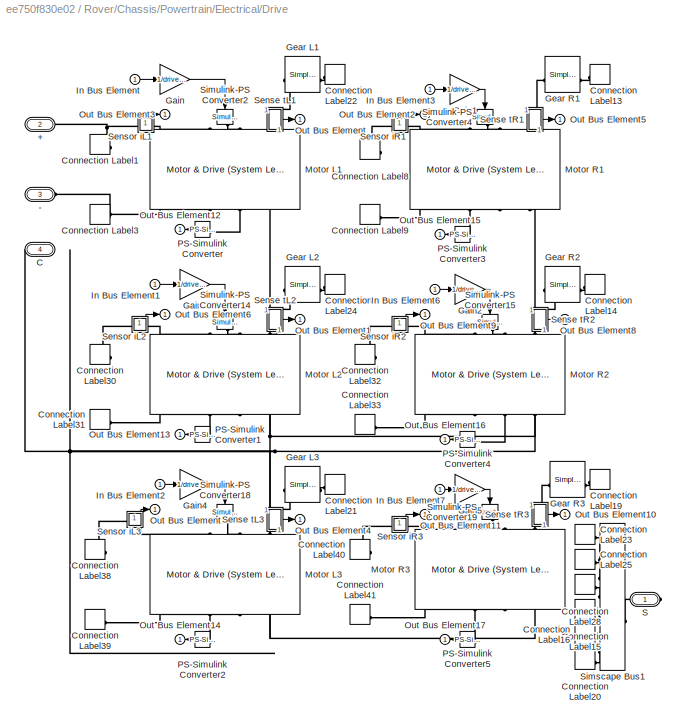
BLOCK [SubSystem] Rover/Chassis/Powertrain/Electrical/Drive
BLOCK [PMIOPort] Rover/Chassis/Powertrain/Electrical/Drive/+
  Port = 2
  Side = Left
BLOCK [PMIOPort] Rover/Chassis/Powertrain/Electrical/Drive/-
  Port = 3
  Side = Left
BLOCK [PMIOPort] Rover/Chassis/Powertrain/Electrical/Drive/C
  Port = 4
  Side = Right
BLOCK [ConnectionLabel] Rover/Chassis/Powertrain/Electrical/Drive/Connection Label1
  Label = p
BLOCK [ConnectionLabel] Rover/Chassis/Powertrain/Electrical/Drive/Connection Label13
  Label = R1
BLOCK [ConnectionLabel] Rover/Chassis/Powertrain/Electrical/Drive/Connection Label14
  Label = R2
BLOCK [ConnectionLabel] Rover/Chassis/Powertrain/Electrical/Drive/Connection Label15
  Label = R1
  NameLocation = top
BLOCK [ConnectionLabel] Rover/Chassis/Powertrain/Electrical/Drive/Connection Label16
  Label = R2
  NameLocation = top
BLOCK [ConnectionLabel] Rover/Chassis/Powertrain/Electrical/Drive/Connection Label19
  Label = R3
BLOCK [ConnectionLabel] Rover/Chassis/Powertrain/Electrical/Drive/Connection Label20
  Label = R3
  NameLocation = top
BLOCK [ConnectionLabel] Rover/Chassis/Powertrain/Electrical/Drive/Connection Label21
  Label = L3
BLOCK [ConnectionLabel] Rover/Chassis/Powertrain/Electrical/Drive/Connection Label22
  Label = L1
BLOCK [ConnectionLabel] Rover/Chassis/Powertrain/Electrical/Drive/Connection Label23
  Label = L1
  NameLocation = top
BLOCK [ConnectionLabel] Rover/Chassis/Powertrain/Electrical/Drive/Connection Label24
  Label = L2
BLOCK [ConnectionLabel] Rover/Chassis/Powertrain/Electrical/Drive/Connection Label25
  Label = L2
  NameLocation = top
BLOCK [ConnectionLabel] Rover/Chassis/Powertrain/Electrical/Drive/Connection Label28
  Label = L3
  NameLocation = top
BLOCK [ConnectionLabel] Rover/Chassis/Powertrain/Electrical/Drive/Connection Label3
  Label = n
BLOCK [ConnectionLabel] Rover/Chassis/Powertrain/Electrical/Drive/Connection Label30
  Label = p
BLOCK [ConnectionLabel] Rover/Chassis/Powertrain/Electrical/Drive/Connection Label31
  Label = n
BLOCK [ConnectionLabel] Rover/Chassis/Powertrain/Electrical/Drive/Connection Label32
  Label = p
BLOCK [ConnectionLabel] Rover/Chassis/Powertrain/Electrical/Drive/Connection Label33
  Label = n
BLOCK [ConnectionLabel] Rover/Chassis/Powertrain/Electrical/Drive/Connection Label38
  Label = p
BLOCK [ConnectionLabel] Rover/Chassis/Powertrain/Electrical/Drive/Connection Label39
  Label = n
BLOCK [ConnectionLabel] Rover/Chassis/Powertrain/Electrical/Drive/Connection Label40
  Label = p
BLOCK [ConnectionLabel] Rover/Chassis/Powertrain/Electrical/Drive/Connection Label41
  Label = n
BLOCK [ConnectionLabel] Rover/Chassis/Powertrain/Electrical/Drive/Connection Label8
  Label = p
BLOCK [ConnectionLabel] Rover/Chassis/Powertrain/Electrical/Drive/Connection Label9
  Label = n
BLOCK [Gain] Rover/Chassis/Powertrain/Electrical/Drive/Gain
  Gain = 1/drive_ratio
BLOCK [Gain] Rover/Chassis/Powertrain/Electrical/Drive/Gain1
  Gain = 1/drive_ratio
BLOCK [Gain] Rover/Chassis/Powertrain/Electrical/Drive/Gain2
  Gain = 1/drive_ratio
BLOCK [Gain] Rover/Chassis/Powertrain/Electrical/Drive/Gain3
  Gain = 1/drive_ratio
BLOCK [Gain] Rover/Chassis/Powertrain/Electrical/Drive/Gain4
  Gain = 1/drive_ratio
BLOCK [Gain] Rover/Chassis/Powertrain/Electrical/Drive/Gain5
  Gain = 1/drive_ratio
BLOCK [Reference] Rover/Chassis/Powertrain/Electrical/Drive/Gear L1  REF=sdl_lib/Gears/Simple Gear
  SourceBlock = sdl_lib/Gears/Simple Gear
  SourceType = Simple Gear
BLOCK [Reference] Rover/Chassis/Powertrain/Electrical/Drive/Gear L2  REF=sdl_lib/Gears/Simple Gear
  SourceBlock = sdl_lib/Gears/Simple Gear
  SourceType = Simple Gear
BLOCK [Reference] Rover/Chassis/Powertrain/Electrical/Drive/Gear L3  REF=sdl_lib/Gears/Simple Gear
  NameLocation = top
  SourceBlock = sdl_lib/Gears/Simple Gear
  SourceType = Simple Gear
BLOCK [Reference] Rover/Chassis/Powertrain/Electrical/Drive/Gear R1  REF=sdl_lib/Gears/Simple Gear
  SourceBlock = sdl_lib/Gears/Simple Gear
  SourceType = Simple Gear
BLOCK [Reference] Rover/Chassis/Powertrain/Electrical/Drive/Gear R2  REF=sdl_lib/Gears/Simple Gear
  SourceBlock = sdl_lib/Gears/Simple Gear
  SourceType = Simple Gear
BLOCK [Reference] Rover/Chassis/Powertrain/Electrical/Drive/Gear R3  REF=sdl_lib/Gears/Simple Gear
  NameLocation = top
  SourceBlock = sdl_lib/Gears/Simple Gear
  SourceType = Simple Gear
BLOCK [Inport] Rover/Chassis/Powertrain/Electrical/Drive/In Bus Element
BLOCK [Inport] Rover/Chassis/Powertrain/Electrical/Drive/In Bus Element1
BLOCK [Inport] Rover/Chassis/Powertrain/Electrical/Drive/In Bus Element2
BLOCK [Inport] Rover/Chassis/Powertrain/Electrical/Drive/In Bus Element3
BLOCK [Inport] Rover/Chassis/Powertrain/Electrical/Drive/In Bus Element6
BLOCK [Inport] Rover/Chassis/Powertrain/Electrical/Drive/In Bus Element7
BLOCK [Reference] Rover/Chassis/Powertrain/Electrical/Drive/Motor L1  REF=ee_lib/Electromechanical/Motor & Drive
(System Level)
  NameLocation = left
  SourceBlock = ee_lib/Electromechanical/Motor & Drive\n(System Level)
  SourceType = Motor & Drive\n(System Level)
BLOCK [Reference] Rover/Chassis/Powertrain/Electrical/Drive/Motor L2  REF=ee_lib/Electromechanical/Motor & Drive
(System Level)
  NameLocation = left
  SourceBlock = ee_lib/Electromechanical/Motor & Drive\n(System Level)
  SourceType = Motor & Drive\n(System Level)
BLOCK [Reference] Rover/Chassis/Powertrain/Electrical/Drive/Motor L3  REF=ee_lib/Electromechanical/Motor & Drive
(System Level)
  NameLocation = left
  SourceBlock = ee_lib/Electromechanical/Motor & Drive\n(System Level)
  SourceType = Motor & Drive\n(System Level)
BLOCK [Reference] Rover/Chassis/Powertrain/Electrical/Drive/Motor R1  REF=ee_lib/Electromechanical/Motor & Drive
(System Level)
  NameLocation = left
  SourceBlock = ee_lib/Electromechanical/Motor & Drive\n(System Level)
  SourceType = Motor & Drive\n(System Level)
BLOCK [Reference] Rover/Chassis/Powertrain/Electrical/Drive/Motor R2  REF=ee_lib/Electromechanical/Motor & Drive
(System Level)
  NameLocation = left
  SourceBlock = ee_lib/Electromechanical/Motor & Drive\n(System Level)
  SourceType = Motor & Drive\n(System Level)
BLOCK [Reference] Rover/Chassis/Powertrain/Electrical/Drive/Motor R3  REF=ee_lib/Electromechanical/Motor & Drive
(System Level)
  NameLocation = left
  SourceBlock = ee_lib/Electromechanical/Motor & Drive\n(System Level)
  SourceType = Motor & Drive\n(System Level)
BLOCK [Outport] Rover/Chassis/Powertrain/Electrical/Drive/Out Bus Element
BLOCK [Outport] Rover/Chassis/Powertrain/Electrical/Drive/Out Bus Element1
  NameLocation = top
BLOCK [Outport] Rover/Chassis/Powertrain/Electrical/Drive/Out Bus Element10
BLOCK [Outport] Rover/Chassis/Powertrain/Electrical/Drive/Out Bus Element11
BLOCK [Outport] Rover/Chassis/Powertrain/Electrical/Drive/Out Bus Element12
BLOCK [Outport] Rover/Chassis/Powertrain/Electrical/Drive/Out Bus Element13
BLOCK [Outport] Rover/Chassis/Powertrain/Electrical/Drive/Out Bus Element14
BLOCK [Outport] Rover/Chassis/Powertrain/Electrical/Drive/Out Bus Element15
BLOCK [Outport] Rover/Chassis/Powertrain/Electrical/Drive/Out Bus Element16
BLOCK [Outport] Rover/Chassis/Powertrain/Electrical/Drive/Out Bus Element17
BLOCK [Outport] Rover/Chassis/Powertrain/Electrical/Drive/Out Bus Element2
BLOCK [Outport] Rover/Chassis/Powertrain/Electrical/Drive/Out Bus Element3
BLOCK [Outport] Rover/Chassis/Powertrain/Electrical/Drive/Out Bus Element4
BLOCK [Outport] Rover/Chassis/Powertrain/Electrical/Drive/Out Bus Element5
BLOCK [Outport] Rover/Chassis/Powertrain/Electrical/Drive/Out Bus Element6
BLOCK [Outport] Rover/Chassis/Powertrain/Electrical/Drive/Out Bus Element7
BLOCK [Outport] Rover/Chassis/Powertrain/Electrical/Drive/Out Bus Element8
BLOCK [Outport] Rover/Chassis/Powertrain/Electrical/Drive/Out Bus Element9
BLOCK [Reference] Rover/Chassis/Powertrain/Electrical/Drive/PS-Simulink Converter  REF=nesl_utility/PS-Simulink
Converter
  NameLocation = top
  SourceBlock = nesl_utility/PS-Simulink\nConverter
  SourceType = PS-Simulink\nConverter
BLOCK [Reference] Rover/Chassis/Powertrain/Electrical/Drive/PS-Simulink Converter1  REF=nesl_utility/PS-Simulink
Converter
  NameLocation = top
  SourceBlock = nesl_utility/PS-Simulink\nConverter
  SourceType = PS-Simulink\nConverter
BLOCK [Reference] Rover/Chassis/Powertrain/Electrical/Drive/PS-Simulink Converter2  REF=nesl_utility/PS-Simulink
Converter
  NameLocation = top
  SourceBlock = nesl_utility/PS-Simulink\nConverter
  SourceType = PS-Simulink\nConverter
BLOCK [Reference] Rover/Chassis/Powertrain/Electrical/Drive/PS-Simulink Converter3  REF=nesl_utility/PS-Simulink
Converter
  NameLocation = top
  SourceBlock = nesl_utility/PS-Simulink\nConverter
  SourceType = PS-Simulink\nConverter
BLOCK [Reference] Rover/Chassis/Powertrain/Electrical/Drive/PS-Simulink Converter4  REF=nesl_utility/PS-Simulink
Converter
  NameLocation = top
  SourceBlock = nesl_utility/PS-Simulink\nConverter
  SourceType = PS-Simulink\nConverter
BLOCK [Reference] Rover/Chassis/Powertrain/Electrical/Drive/PS-Simulink Converter5  REF=nesl_utility/PS-Simulink
Converter
  NameLocation = top
  SourceBlock = nesl_utility/PS-Simulink\nConverter
  SourceType = PS-Simulink\nConverter
BLOCK [PMIOPort] Rover/Chassis/Powertrain/Electrical/Drive/S
  Side = Right
BLOCK [SubSystem] Rover/Chassis/Powertrain/Electrical/Drive/Sense tL1
  NameLocation = left
  PortSchema = {"entries":[{"content":{"sides":[{"content":{"connectorIds":["LConn1"]},"type":"ConnectorPlacement.EquallySpacedRectSide","uuid":"592cc1a1-656f-47ce-ad3a-4b4dc1070b5c"},{"content":{"connectorIds":["RConn1"],"side":"RIGHT"},"type":"ConnectorPlacement.EquallySpacedRectSide","uuid":"9bca39c3-eeb4-4456-9b97-61ec2f027d42"},{"content":{"connectorIds":["Out1"],"side":"TOP"},"type":"ConnectorPlacement.Equ...<+251ch>  <repeated x19 — deduplicated; at blocks: Sense tL1, Sense tL2, Sense tR1, Sense tR2, Sense tR3, Sensor iL1, Sensor iL2, Sensor iL3, Sensor iR1, Sensor iR2, Sensor iR3, Sense T1, Sense tL3>
BLOCK [PMIOPort] Rover/Chassis/Powertrain/Electrical/Drive/Sense tL1/C
  Side = Right
BLOCK [Reference] Rover/Chassis/Powertrain/Electrical/Drive/Sense tL1/Ideal Torque Sensor  REF=fl_lib/Mechanical/Mechanical Sensors/Ideal Torque Sensor
  SourceBlock = fl_lib/Mechanical/Mechanical Sensors/Ideal Torque Sensor
  SourceType = Ideal Torque Sensor
BLOCK [Reference] Rover/Chassis/Powertrain/Electrical/Drive/Sense tL1/PS-Simulink Converter6  REF=nesl_utility/PS-Simulink
Converter
  SourceBlock = nesl_utility/PS-Simulink\nConverter
  SourceType = PS-Simulink\nConverter
BLOCK [PMIOPort] Rover/Chassis/Powertrain/Electrical/Drive/Sense tL1/R
  Port = 2
  Side = Left
BLOCK [Outport] Rover/Chassis/Powertrain/Electrical/Drive/Sense tL1/T
BLOCK [SubSystem] Rover/Chassis/Powertrain/Electrical/Drive/Sense tL2
  NameLocation = left
BLOCK [PMIOPort] Rover/Chassis/Powertrain/Electrical/Drive/Sense tL2/C
  Side = Right
BLOCK [Reference] Rover/Chassis/Powertrain/Electrical/Drive/Sense tL2/Ideal Torque Sensor  REF=fl_lib/Mechanical/Mechanical Sensors/Ideal Torque Sensor
  SourceBlock = fl_lib/Mechanical/Mechanical Sensors/Ideal Torque Sensor
  SourceType = Ideal Torque Sensor
BLOCK [Reference] Rover/Chassis/Powertrain/Electrical/Drive/Sense tL2/PS-Simulink Converter6  REF=nesl_utility/PS-Simulink
Converter
  SourceBlock = nesl_utility/PS-Simulink\nConverter
  SourceType = PS-Simulink\nConverter
BLOCK [PMIOPort] Rover/Chassis/Powertrain/Electrical/Drive/Sense tL2/R
  Port = 2
  Side = Left
BLOCK [Outport] Rover/Chassis/Powertrain/Electrical/Drive/Sense tL2/T
BLOCK [SubSystem] Rover/Chassis/Powertrain/Electrical/Drive/Sense tL3
  NameLocation = left
  PortSchema = {"entries":[{"content":{"sides":[{"content":{"connectorIds":["LConn1"]},"type":"ConnectorPlacement.EquallySpacedRectSide","uuid":"592cc1a1-656f-47ce-ad3a-4b4dc1070b5c"},{"content":{"connectorIds":["RConn1"],"side":"RIGHT"},"type":"ConnectorPlacement.EquallySpacedRectSide","uuid":"9bca39c3-eeb4-4456-9b97-61ec2f027d42"},{"content":{"connectorIds":["Out1"],"side":"TOP"},"type":"ConnectorPlacement.Equ...<+395ch>
BLOCK [PMIOPort] Rover/Chassis/Powertrain/Electrical/Drive/Sense tL3/C
  Port = 2
  Side = Right
BLOCK [Reference] Rover/Chassis/Powertrain/Electrical/Drive/Sense tL3/Ideal Torque Sensor  REF=fl_lib/Mechanical/Mechanical Sensors/Ideal Torque Sensor
  SourceBlock = fl_lib/Mechanical/Mechanical Sensors/Ideal Torque Sensor
  SourceType = Ideal Torque Sensor
BLOCK [Reference] Rover/Chassis/Powertrain/Electrical/Drive/Sense tL3/PS-Simulink Converter6  REF=nesl_utility/PS-Simulink
Converter
  SourceBlock = nesl_utility/PS-Simulink\nConverter
  SourceType = PS-Simulink\nConverter
BLOCK [PMIOPort] Rover/Chassis/Powertrain/Electrical/Drive/Sense tL3/R
  Side = Left
BLOCK [Outport] Rover/Chassis/Powertrain/Electrical/Drive/Sense tL3/T
BLOCK [SubSystem] Rover/Chassis/Powertrain/Electrical/Drive/Sense tR1
  NameLocation = left
BLOCK [PMIOPort] Rover/Chassis/Powertrain/Electrical/Drive/Sense tR1/C
  Side = Right
BLOCK [Reference] Rover/Chassis/Powertrain/Electrical/Drive/Sense tR1/Ideal Torque Sensor  REF=fl_lib/Mechanical/Mechanical Sensors/Ideal Torque Sensor
  SourceBlock = fl_lib/Mechanical/Mechanical Sensors/Ideal Torque Sensor
  SourceType = Ideal Torque Sensor
BLOCK [Reference] Rover/Chassis/Powertrain/Electrical/Drive/Sense tR1/PS-Simulink Converter6  REF=nesl_utility/PS-Simulink
Converter
  SourceBlock = nesl_utility/PS-Simulink\nConverter
  SourceType = PS-Simulink\nConverter
BLOCK [PMIOPort] Rover/Chassis/Powertrain/Electrical/Drive/Sense tR1/R
  Port = 2
  Side = Left
BLOCK [Outport] Rover/Chassis/Powertrain/Electrical/Drive/Sense tR1/T
BLOCK [SubSystem] Rover/Chassis/Powertrain/Electrical/Drive/Sense tR2
  NameLocation = left
BLOCK [PMIOPort] Rover/Chassis/Powertrain/Electrical/Drive/Sense tR2/C
  Side = Right
BLOCK [Reference] Rover/Chassis/Powertrain/Electrical/Drive/Sense tR2/Ideal Torque Sensor  REF=fl_lib/Mechanical/Mechanical Sensors/Ideal Torque Sensor
  SourceBlock = fl_lib/Mechanical/Mechanical Sensors/Ideal Torque Sensor
  SourceType = Ideal Torque Sensor
BLOCK [Reference] Rover/Chassis/Powertrain/Electrical/Drive/Sense tR2/PS-Simulink Converter6  REF=nesl_utility/PS-Simulink
Converter
  SourceBlock = nesl_utility/PS-Simulink\nConverter
  SourceType = PS-Simulink\nConverter
BLOCK [PMIOPort] Rover/Chassis/Powertrain/Electrical/Drive/Sense tR2/R
  Port = 2
  Side = Left
BLOCK [Outport] Rover/Chassis/Powertrain/Electrical/Drive/Sense tR2/T
BLOCK [SubSystem] Rover/Chassis/Powertrain/Electrical/Drive/Sense tR3
  NameLocation = left
BLOCK [PMIOPort] Rover/Chassis/Powertrain/Electrical/Drive/Sense tR3/C
  Side = Right
BLOCK [Reference] Rover/Chassis/Powertrain/Electrical/Drive/Sense tR3/Ideal Torque Sensor  REF=fl_lib/Mechanical/Mechanical Sensors/Ideal Torque Sensor
  SourceBlock = fl_lib/Mechanical/Mechanical Sensors/Ideal Torque Sensor
  SourceType = Ideal Torque Sensor
BLOCK [Reference] Rover/Chassis/Powertrain/Electrical/Drive/Sense tR3/PS-Simulink Converter6  REF=nesl_utility/PS-Simulink
Converter
  SourceBlock = nesl_utility/PS-Simulink\nConverter
  SourceType = PS-Simulink\nConverter
BLOCK [PMIOPort] Rover/Chassis/Powertrain/Electrical/Drive/Sense tR3/R
  Port = 2
  Side = Left
BLOCK [Outport] Rover/Chassis/Powertrain/Electrical/Drive/Sense tR3/T
BLOCK [SubSystem] Rover/Chassis/Powertrain/Electrical/Drive/Sensor iL1
BLOCK [PMIOPort] Rover/Chassis/Powertrain/Electrical/Drive/Sensor iL1/+
  Side = Left
BLOCK [PMIOPort] Rover/Chassis/Powertrain/Electrical/Drive/Sensor iL1/-
  Port = 2
  Side = Right
BLOCK [Reference] Rover/Chassis/Powertrain/Electrical/Drive/Sensor iL1/Current Sensor  REF=fl_lib/Electrical/Electrical Sensors/Current Sensor
  SourceBlock = fl_lib/Electrical/Electrical Sensors/Current Sensor
  SourceType = Current Sensor
BLOCK [Reference] Rover/Chassis/Powertrain/Electrical/Drive/Sensor iL1/PS-Simulink Converter3  REF=nesl_utility/PS-Simulink
Converter
  SourceBlock = nesl_utility/PS-Simulink\nConverter
  SourceType = PS-Simulink\nConverter
BLOCK [Outport] Rover/Chassis/Powertrain/Electrical/Drive/Sensor iL1/i
BLOCK [SubSystem] Rover/Chassis/Powertrain/Electrical/Drive/Sensor iL2
BLOCK [PMIOPort] Rover/Chassis/Powertrain/Electrical/Drive/Sensor iL2/+
  Side = Left
BLOCK [PMIOPort] Rover/Chassis/Powertrain/Electrical/Drive/Sensor iL2/-
  Port = 2
  Side = Right
BLOCK [Reference] Rover/Chassis/Powertrain/Electrical/Drive/Sensor iL2/Current Sensor  REF=fl_lib/Electrical/Electrical Sensors/Current Sensor
  SourceBlock = fl_lib/Electrical/Electrical Sensors/Current Sensor
  SourceType = Current Sensor
BLOCK [Reference] Rover/Chassis/Powertrain/Electrical/Drive/Sensor iL2/PS-Simulink Converter3  REF=nesl_utility/PS-Simulink
Converter
  SourceBlock = nesl_utility/PS-Simulink\nConverter
  SourceType = PS-Simulink\nConverter
BLOCK [Outport] Rover/Chassis/Powertrain/Electrical/Drive/Sensor iL2/i
BLOCK [SubSystem] Rover/Chassis/Powertrain/Electrical/Drive/Sensor iL3
BLOCK [PMIOPort] Rover/Chassis/Powertrain/Electrical/Drive/Sensor iL3/+
  Side = Left
BLOCK [PMIOPort] Rover/Chassis/Powertrain/Electrical/Drive/Sensor iL3/-
  Port = 2
  Side = Right
BLOCK [Reference] Rover/Chassis/Powertrain/Electrical/Drive/Sensor iL3/Current Sensor  REF=fl_lib/Electrical/Electrical Sensors/Current Sensor
  SourceBlock = fl_lib/Electrical/Electrical Sensors/Current Sensor
  SourceType = Current Sensor
BLOCK [Reference] Rover/Chassis/Powertrain/Electrical/Drive/Sensor iL3/PS-Simulink Converter3  REF=nesl_utility/PS-Simulink
Converter
  SourceBlock = nesl_utility/PS-Simulink\nConverter
  SourceType = PS-Simulink\nConverter
BLOCK [Outport] Rover/Chassis/Powertrain/Electrical/Drive/Sensor iL3/i
BLOCK [SubSystem] Rover/Chassis/Powertrain/Electrical/Drive/Sensor iR1
BLOCK [PMIOPort] Rover/Chassis/Powertrain/Electrical/Drive/Sensor iR1/+
  Side = Left
BLOCK [PMIOPort] Rover/Chassis/Powertrain/Electrical/Drive/Sensor iR1/-
  Port = 2
  Side = Right
BLOCK [Reference] Rover/Chassis/Powertrain/Electrical/Drive/Sensor iR1/Current Sensor  REF=fl_lib/Electrical/Electrical Sensors/Current Sensor
  SourceBlock = fl_lib/Electrical/Electrical Sensors/Current Sensor
  SourceType = Current Sensor
BLOCK [Reference] Rover/Chassis/Powertrain/Electrical/Drive/Sensor iR1/PS-Simulink Converter3  REF=nesl_utility/PS-Simulink
Converter
  SourceBlock = nesl_utility/PS-Simulink\nConverter
  SourceType = PS-Simulink\nConverter
BLOCK [Outport] Rover/Chassis/Powertrain/Electrical/Drive/Sensor iR1/i
BLOCK [SubSystem] Rover/Chassis/Powertrain/Electrical/Drive/Sensor iR2
BLOCK [PMIOPort] Rover/Chassis/Powertrain/Electrical/Drive/Sensor iR2/+
  Side = Left
BLOCK [PMIOPort] Rover/Chassis/Powertrain/Electrical/Drive/Sensor iR2/-
  Port = 2
  Side = Right
BLOCK [Reference] Rover/Chassis/Powertrain/Electrical/Drive/Sensor iR2/Current Sensor  REF=fl_lib/Electrical/Electrical Sensors/Current Sensor
  SourceBlock = fl_lib/Electrical/Electrical Sensors/Current Sensor
  SourceType = Current Sensor
BLOCK [Reference] Rover/Chassis/Powertrain/Electrical/Drive/Sensor iR2/PS-Simulink Converter3  REF=nesl_utility/PS-Simulink
Converter
  SourceBlock = nesl_utility/PS-Simulink\nConverter
  SourceType = PS-Simulink\nConverter
BLOCK [Outport] Rover/Chassis/Powertrain/Electrical/Drive/Sensor iR2/i
BLOCK [SubSystem] Rover/Chassis/Powertrain/Electrical/Drive/Sensor iR3
BLOCK [PMIOPort] Rover/Chassis/Powertrain/Electrical/Drive/Sensor iR3/+
  Side = Left
BLOCK [PMIOPort] Rover/Chassis/Powertrain/Electrical/Drive/Sensor iR3/-
  Port = 2
  Side = Right
BLOCK [Reference] Rover/Chassis/Powertrain/Electrical/Drive/Sensor iR3/Current Sensor  REF=fl_lib/Electrical/Electrical Sensors/Current Sensor
  SourceBlock = fl_lib/Electrical/Electrical Sensors/Current Sensor
  SourceType = Current Sensor
BLOCK [Reference] Rover/Chassis/Powertrain/Electrical/Drive/Sensor iR3/PS-Simulink Converter3  REF=nesl_utility/PS-Simulink
Converter
  SourceBlock = nesl_utility/PS-Simulink\nConverter
  SourceType = PS-Simulink\nConverter
BLOCK [Outport] Rover/Chassis/Powertrain/Electrical/Drive/Sensor iR3/i
BLOCK [SimscapeBus] Rover/Chassis/Powertrain/Electrical/Drive/Simscape Bus1
  HierarchyStrings = L1;L2;L3;R1;R2;R3
BLOCK [Reference] Rover/Chassis/Powertrain/Electrical/Drive/Simulink-PS Converter14  REF=nesl_utility/Simulink-PS
Converter
  NameLocation = left
  SourceBlock = nesl_utility/Simulink-PS\nConverter
  SourceType = Simulink-PS\nConverter
BLOCK [Reference] Rover/Chassis/Powertrain/Electrical/Drive/Simulink-PS Converter15  REF=nesl_utility/Simulink-PS
Converter
  NameLocation = left
  SourceBlock = nesl_utility/Simulink-PS\nConverter
  SourceType = Simulink-PS\nConverter
BLOCK [Reference] Rover/Chassis/Powertrain/Electrical/Drive/Simulink-PS Converter18  REF=nesl_utility/Simulink-PS
Converter
  NameLocation = left
  SourceBlock = nesl_utility/Simulink-PS\nConverter
  SourceType = Simulink-PS\nConverter
BLOCK [Reference] Rover/Chassis/Powertrain/Electrical/Drive/Simulink-PS Converter19  REF=nesl_utility/Simulink-PS
Converter
  NameLocation = left
  SourceBlock = nesl_utility/Simulink-PS\nConverter
  SourceType = Simulink-PS\nConverter
BLOCK [Reference] Rover/Chassis/Powertrain/Electrical/Drive/Simulink-PS Converter2  REF=nesl_utility/Simulink-PS
Converter
  NameLocation = left
  SourceBlock = nesl_utility/Simulink-PS\nConverter
  SourceType = Simulink-PS\nConverter
BLOCK [Reference] Rover/Chassis/Powertrain/Electrical/Drive/Simulink-PS Converter4  REF=nesl_utility/Simulink-PS
Converter
  NameLocation = left
  SourceBlock = nesl_utility/Simulink-PS\nConverter
  SourceType = Simulink-PS\nConverter
BLOCK [Inport] Rover/Chassis/Powertrain/Electrical/In Bus Element
BLOCK [Inport] Rover/Chassis/Powertrain/Electrical/In Bus Element1
BLOCK [Reference] Rover/Chassis/Powertrain/Electrical/Mechanical Rotational Reference  REF=fl_lib/Mechanical/Rotational Elements/Mechanical
Rotational Reference
  SourceBlock = fl_lib/Mechanical/Rotational Elements/Mechanical\nRotational Reference
  SourceType = Mechanical\nRotational Reference
BLOCK [Outport] Rover/Chassis/Powertrain/Electrical/Out Bus Element
BLOCK [Outport] Rover/Chassis/Powertrain/Electrical/Out Bus Element1
BLOCK [Outport] Rover/Chassis/Powertrain/Electrical/Out Bus Element2
BLOCK [SubSystem] Rover/Chassis/Powertrain/Electrical/Power
BLOCK [PMIOPort] Rover/Chassis/Powertrain/Electrical/Power/+
  Side = Right
BLOCK [PMIOPort] Rover/Chassis/Powertrain/Electrical/Power/-
  Port = 2
  Side = Right
BLOCK [Reference] Rover/Chassis/Powertrain/Electrical/Power/Ambient Temperature  REF=fl_lib/Thermal/Thermal Sources/Temperature Source
  SourceBlock = fl_lib/Thermal/Thermal Sources/Temperature Source
  SourceType = Temperature Source
BLOCK [Reference] Rover/Chassis/Powertrain/Electrical/Power/Battery  REF=batteryecm_lib/Battery
  LibrarySourceBlock = ee_lib/Sources/Battery
  NameLocation = right
  SourceBlock = batteryecm_lib/Battery
  SourceType = Battery
BLOCK [Reference] Rover/Chassis/Powertrain/Electrical/Power/Convective Heat Transfer  REF=fl_lib/Thermal/Thermal Elements/Convective Heat
Transfer
  SourceBlock = fl_lib/Thermal/Thermal Elements/Convective Heat\nTransfer
  SourceType = Convective Heat\nTransfer
BLOCK [Reference] Rover/Chassis/Powertrain/Electrical/Power/Electrical Reference  REF=fl_lib/Electrical/Electrical Elements/Electrical Reference
  NameLocation = right
  SourceBlock = fl_lib/Electrical/Electrical Elements/Electrical Reference
  SourceType = Electrical Reference
BLOCK [Outport] Rover/Chassis/Powertrain/Electrical/Power/Out Bus Element4
BLOCK [Outport] Rover/Chassis/Powertrain/Electrical/Power/Out Bus Element5
BLOCK [Reference] Rover/Chassis/Powertrain/Electrical/Power/PS-Simulink Converter  REF=nesl_utility/PS-Simulink
Converter
  SourceBlock = nesl_utility/PS-Simulink\nConverter
  SourceType = PS-Simulink\nConverter
BLOCK [SubSystem] Rover/Chassis/Powertrain/Electrical/Power/Sensing Temperature
  NameLocation = left
BLOCK [PMIOPort] Rover/Chassis/Powertrain/Electrical/Power/Sensing Temperature/A
  Side = Left
BLOCK [Reference] Rover/Chassis/Powertrain/Electrical/Power/Sensing Temperature/PS-Simulink Converter  REF=nesl_utility/PS-Simulink
Converter
  SourceBlock = nesl_utility/PS-Simulink\nConverter
  SourceType = PS-Simulink\nConverter
BLOCK [Outport] Rover/Chassis/Powertrain/Electrical/Power/Sensing Temperature/T
BLOCK [Reference] Rover/Chassis/Powertrain/Electrical/Power/Sensing Temperature/Temperature Sensor  REF=fl_lib/Thermal/Thermal Sensors/Temperature Sensor
  SourceBlock = fl_lib/Thermal/Thermal Sensors/Temperature Sensor
  SourceType = Temperature Sensor
BLOCK [Reference] Rover/Chassis/Powertrain/Electrical/Power/Sensing Temperature/Thermal Reference  REF=fl_lib/Thermal/Thermal Elements/Thermal Reference
  SourceBlock = fl_lib/Thermal/Thermal Elements/Thermal Reference
  SourceType = Thermal Reference
BLOCK [PMIOPort] Rover/Chassis/Powertrain/Electrical/S
  Side = Right
BLOCK [SubSystem] Rover/Chassis/Powertrain/Electrical/Steer
BLOCK [PMIOPort] Rover/Chassis/Powertrain/Electrical/Steer/+
  Port = 2
  Side = Left
BLOCK [PMIOPort] Rover/Chassis/Powertrain/Electrical/Steer/-
  Port = 3
  Side = Left
BLOCK [PMIOPort] Rover/Chassis/Powertrain/Electrical/Steer/C
  Port = 4
  Side = Right
BLOCK [ConnectionLabel] Rover/Chassis/Powertrain/Electrical/Steer/Connection Label1
  Label = p
BLOCK [ConnectionLabel] Rover/Chassis/Powertrain/Electrical/Steer/Connection Label10
  Label = LS1
BLOCK [ConnectionLabel] Rover/Chassis/Powertrain/Electrical/Steer/Connection Label11
  Label = LS1
  NameLocation = top
BLOCK [ConnectionLabel] Rover/Chassis/Powertrain/Electrical/Steer/Connection Label12
  Label = RS1
  NameLocation = top
BLOCK [ConnectionLabel] Rover/Chassis/Powertrain/Electrical/Steer/Connection Label17
  Label = RS3
BLOCK [ConnectionLabel] Rover/Chassis/Powertrain/Electrical/Steer/Connection Label2
  Label = n
BLOCK [ConnectionLabel] Rover/Chassis/Powertrain/Electrical/Steer/Connection Label20
  Label = RS3
  NameLocation = top
BLOCK [ConnectionLabel] Rover/Chassis/Powertrain/Electrical/Steer/Connection Label26
  Label = LS3
BLOCK [ConnectionLabel] Rover/Chassis/Powertrain/Electrical/Steer/Connection Label27
  Label = LS3
  NameLocation = top
BLOCK [ConnectionLabel] Rover/Chassis/Powertrain/Electrical/Steer/Connection Label29
  Label = RS1
  NameLocation = top
BLOCK [ConnectionLabel] Rover/Chassis/Powertrain/Electrical/Steer/Connection Label34
  Label = p
BLOCK [ConnectionLabel] Rover/Chassis/Powertrain/Electrical/Steer/Connection Label35
  Label = n
BLOCK [ConnectionLabel] Rover/Chassis/Powertrain/Electrical/Steer/Connection Label36
  Label = p
BLOCK [ConnectionLabel] Rover/Chassis/Powertrain/Electrical/Steer/Connection Label37
  Label = n
BLOCK [ConnectionLabel] Rover/Chassis/Powertrain/Electrical/Steer/Connection Label4
  Label = p
BLOCK [ConnectionLabel] Rover/Chassis/Powertrain/Electrical/Steer/Connection Label5
  Label = n
BLOCK [Gain] Rover/Chassis/Powertrain/Electrical/Steer/Gain
  Gain = 1/drive_ratio
BLOCK [Gain] Rover/Chassis/Powertrain/Electrical/Steer/Gain1
  Gain = 1/drive_ratio
BLOCK [Gain] Rover/Chassis/Powertrain/Electrical/Steer/Gain2
  Gain = 1/drive_ratio
BLOCK [Gain] Rover/Chassis/Powertrain/Electrical/Steer/Gain3
  Gain = 1/drive_ratio
BLOCK [Reference] Rover/Chassis/Powertrain/Electrical/Steer/Gear LS1  REF=sdl_lib/Gears/Simple Gear
  NameLocation = top
  SourceBlock = sdl_lib/Gears/Simple Gear
  SourceType = Simple Gear
BLOCK [Reference] Rover/Chassis/Powertrain/Electrical/Steer/Gear LS3  REF=sdl_lib/Gears/Simple Gear
  SourceBlock = sdl_lib/Gears/Simple Gear
  SourceType = Simple Gear
BLOCK [Reference] Rover/Chassis/Powertrain/Electrical/Steer/Gear RS1  REF=sdl_lib/Gears/Simple Gear
  SourceBlock = sdl_lib/Gears/Simple Gear
  SourceType = Simple Gear
BLOCK [Reference] Rover/Chassis/Powertrain/Electrical/Steer/Gear RS3  REF=sdl_lib/Gears/Simple Gear
  SourceBlock = sdl_lib/Gears/Simple Gear
  SourceType = Simple Gear
BLOCK [Inport] Rover/Chassis/Powertrain/Electrical/Steer/In Bus Element
BLOCK [Inport] Rover/Chassis/Powertrain/Electrical/Steer/In Bus Element1
BLOCK [Inport] Rover/Chassis/Powertrain/Electrical/Steer/In Bus Element2
BLOCK [Inport] Rover/Chassis/Powertrain/Electrical/Steer/In Bus Element3
BLOCK [Reference] Rover/Chassis/Powertrain/Electrical/Steer/Motor LS1  REF=ee_lib/Electromechanical/Motor & Drive
(System Level)
  NameLocation = left
  SourceBlock = ee_lib/Electromechanical/Motor & Drive\n(System Level)
  SourceType = Motor & Drive\n(System Level)
BLOCK [Reference] Rover/Chassis/Powertrain/Electrical/Steer/Motor LS3  REF=ee_lib/Electromechanical/Motor & Drive
(System Level)
  NameLocation = left
  SourceBlock = ee_lib/Electromechanical/Motor & Drive\n(System Level)
  SourceType = Motor & Drive\n(System Level)
BLOCK [Reference] Rover/Chassis/Powertrain/Electrical/Steer/Motor RS1  REF=ee_lib/Electromechanical/Motor & Drive
(System Level)
  NameLocation = left
  SourceBlock = ee_lib/Electromechanical/Motor & Drive\n(System Level)
  SourceType = Motor & Drive\n(System Level)
BLOCK [Reference] Rover/Chassis/Powertrain/Electrical/Steer/Motor RS3  REF=ee_lib/Electromechanical/Motor & Drive
(System Level)
  NameLocation = left
  SourceBlock = ee_lib/Electromechanical/Motor & Drive\n(System Level)
  SourceType = Motor & Drive\n(System Level)
BLOCK [Outport] Rover/Chassis/Powertrain/Electrical/Steer/Out Bus Element11
BLOCK [Outport] Rover/Chassis/Powertrain/Electrical/Steer/Out Bus Element12
BLOCK [Outport] Rover/Chassis/Powertrain/Electrical/Steer/Out Bus Element14
BLOCK [Outport] Rover/Chassis/Powertrain/Electrical/Steer/Out Bus Element15
BLOCK [Outport] Rover/Chassis/Powertrain/Electrical/Steer/Out Bus Element17
BLOCK [Outport] Rover/Chassis/Powertrain/Electrical/Steer/Out Bus Element2
BLOCK [Outport] Rover/Chassis/Powertrain/Electrical/Steer/Out Bus Element3
BLOCK [Outport] Rover/Chassis/Powertrain/Electrical/Steer/Out Bus Element4
  NameLocation = top
BLOCK [Outport] Rover/Chassis/Powertrain/Electrical/Steer/Out Bus Element5
BLOCK [Outport] Rover/Chassis/Powertrain/Electrical/Steer/Out Bus Element6
BLOCK [Outport] Rover/Chassis/Powertrain/Electrical/Steer/Out Bus Element7
BLOCK [Outport] Rover/Chassis/Powertrain/Electrical/Steer/Out Bus Element9
BLOCK [Reference] Rover/Chassis/Powertrain/Electrical/Steer/PS-Simulink Converter  REF=nesl_utility/PS-Simulink
Converter
  NameLocation = top
  SourceBlock = nesl_utility/PS-Simulink\nConverter
  SourceType = PS-Simulink\nConverter
BLOCK [Reference] Rover/Chassis/Powertrain/Electrical/Steer/PS-Simulink Converter2  REF=nesl_utility/PS-Simulink
Converter
  NameLocation = top
  SourceBlock = nesl_utility/PS-Simulink\nConverter
  SourceType = PS-Simulink\nConverter
BLOCK [Reference] Rover/Chassis/Powertrain/Electrical/Steer/PS-Simulink Converter3  REF=nesl_utility/PS-Simulink
Converter
  NameLocation = top
  SourceBlock = nesl_utility/PS-Simulink\nConverter
  SourceType = PS-Simulink\nConverter
BLOCK [Reference] Rover/Chassis/Powertrain/Electrical/Steer/PS-Simulink Converter5  REF=nesl_utility/PS-Simulink
Converter
  NameLocation = top
  SourceBlock = nesl_utility/PS-Simulink\nConverter
  SourceType = PS-Simulink\nConverter
BLOCK [PMIOPort] Rover/Chassis/Powertrain/Electrical/Steer/S
  Side = Right
BLOCK [SubSystem] Rover/Chassis/Powertrain/Electrical/Steer/Sense T1
  NameLocation = left
BLOCK [PMIOPort] Rover/Chassis/Powertrain/Electrical/Steer/Sense T1/C
  Side = Right
BLOCK [Reference] Rover/Chassis/Powertrain/Electrical/Steer/Sense T1/Ideal Torque Sensor  REF=fl_lib/Mechanical/Mechanical Sensors/Ideal Torque Sensor
  SourceBlock = fl_lib/Mechanical/Mechanical Sensors/Ideal Torque Sensor
  SourceType = Ideal Torque Sensor
BLOCK [Reference] Rover/Chassis/Powertrain/Electrical/Steer/Sense T1/PS-Simulink Converter6  REF=nesl_utility/PS-Simulink
Converter
  SourceBlock = nesl_utility/PS-Simulink\nConverter
  SourceType = PS-Simulink\nConverter
BLOCK [PMIOPort] Rover/Chassis/Powertrain/Electrical/Steer/Sense T1/R
  Port = 2
  Side = Left
BLOCK [Outport] Rover/Chassis/Powertrain/Electrical/Steer/Sense T1/T
BLOCK [SubSystem] Rover/Chassis/Powertrain/Electrical/Steer/Sense tL3
  NameLocation = left
BLOCK [PMIOPort] Rover/Chassis/Powertrain/Electrical/Steer/Sense tL3/C
  Side = Right
BLOCK [Reference] Rover/Chassis/Powertrain/Electrical/Steer/Sense tL3/Ideal Torque Sensor  REF=fl_lib/Mechanical/Mechanical Sensors/Ideal Torque Sensor
  SourceBlock = fl_lib/Mechanical/Mechanical Sensors/Ideal Torque Sensor
  SourceType = Ideal Torque Sensor
BLOCK [Reference] Rover/Chassis/Powertrain/Electrical/Steer/Sense tL3/PS-Simulink Converter6  REF=nesl_utility/PS-Simulink
Converter
  SourceBlock = nesl_utility/PS-Simulink\nConverter
  SourceType = PS-Simulink\nConverter
BLOCK [PMIOPort] Rover/Chassis/Powertrain/Electrical/Steer/Sense tL3/R
  Port = 2
  Side = Left
BLOCK [Outport] Rover/Chassis/Powertrain/Electrical/Steer/Sense tL3/T
BLOCK [SubSystem] Rover/Chassis/Powertrain/Electrical/Steer/Sense tR1
  NameLocation = left
BLOCK [PMIOPort] Rover/Chassis/Powertrain/Electrical/Steer/Sense tR1/C
  Side = Right
BLOCK [Reference] Rover/Chassis/Powertrain/Electrical/Steer/Sense tR1/Ideal Torque Sensor  REF=fl_lib/Mechanical/Mechanical Sensors/Ideal Torque Sensor
  SourceBlock = fl_lib/Mechanical/Mechanical Sensors/Ideal Torque Sensor
  SourceType = Ideal Torque Sensor
BLOCK [Reference] Rover/Chassis/Powertrain/Electrical/Steer/Sense tR1/PS-Simulink Converter6  REF=nesl_utility/PS-Simulink
Converter
  SourceBlock = nesl_utility/PS-Simulink\nConverter
  SourceType = PS-Simulink\nConverter
BLOCK [PMIOPort] Rover/Chassis/Powertrain/Electrical/Steer/Sense tR1/R
  Port = 2
  Side = Left
BLOCK [Outport] Rover/Chassis/Powertrain/Electrical/Steer/Sense tR1/T
BLOCK [SubSystem] Rover/Chassis/Powertrain/Electrical/Steer/Sense tR3
  NameLocation = left
BLOCK [PMIOPort] Rover/Chassis/Powertrain/Electrical/Steer/Sense tR3/C
  Side = Right
BLOCK [Reference] Rover/Chassis/Powertrain/Electrical/Steer/Sense tR3/Ideal Torque Sensor  REF=fl_lib/Mechanical/Mechanical Sensors/Ideal Torque Sensor
  SourceBlock = fl_lib/Mechanical/Mechanical Sensors/Ideal Torque Sensor
  SourceType = Ideal Torque Sensor
BLOCK [Reference] Rover/Chassis/Powertrain/Electrical/Steer/Sense tR3/PS-Simulink Converter6  REF=nesl_utility/PS-Simulink
Converter
  SourceBlock = nesl_utility/PS-Simulink\nConverter
  SourceType = PS-Simulink\nConverter
BLOCK [PMIOPort] Rover/Chassis/Powertrain/Electrical/Steer/Sense tR3/R
  Port = 2
  Side = Left
BLOCK [Outport] Rover/Chassis/Powertrain/Electrical/Steer/Sense tR3/T
BLOCK [SubSystem] Rover/Chassis/Powertrain/Electrical/Steer/Sensor iL1
BLOCK [PMIOPort] Rover/Chassis/Powertrain/Electrical/Steer/Sensor iL1/+
  Side = Left
BLOCK [PMIOPort] Rover/Chassis/Powertrain/Electrical/Steer/Sensor iL1/-
  Port = 2
  Side = Right
BLOCK [Reference] Rover/Chassis/Powertrain/Electrical/Steer/Sensor iL1/Current Sensor  REF=fl_lib/Electrical/Electrical Sensors/Current Sensor
  SourceBlock = fl_lib/Electrical/Electrical Sensors/Current Sensor
  SourceType = Current Sensor
BLOCK [Reference] Rover/Chassis/Powertrain/Electrical/Steer/Sensor iL1/PS-Simulink Converter3  REF=nesl_utility/PS-Simulink
Converter
  SourceBlock = nesl_utility/PS-Simulink\nConverter
  SourceType = PS-Simulink\nConverter
BLOCK [Outport] Rover/Chassis/Powertrain/Electrical/Steer/Sensor iL1/i
BLOCK [SubSystem] Rover/Chassis/Powertrain/Electrical/Steer/Sensor iL3
BLOCK [PMIOPort] Rover/Chassis/Powertrain/Electrical/Steer/Sensor iL3/+
  Side = Left
BLOCK [PMIOPort] Rover/Chassis/Powertrain/Electrical/Steer/Sensor iL3/-
  Port = 2
  Side = Right
BLOCK [Reference] Rover/Chassis/Powertrain/Electrical/Steer/Sensor iL3/Current Sensor  REF=fl_lib/Electrical/Electrical Sensors/Current Sensor
  SourceBlock = fl_lib/Electrical/Electrical Sensors/Current Sensor
  SourceType = Current Sensor
BLOCK [Reference] Rover/Chassis/Powertrain/Electrical/Steer/Sensor iL3/PS-Simulink Converter3  REF=nesl_utility/PS-Simulink
Converter
  SourceBlock = nesl_utility/PS-Simulink\nConverter
  SourceType = PS-Simulink\nConverter
BLOCK [Outport] Rover/Chassis/Powertrain/Electrical/Steer/Sensor iL3/i
BLOCK [SubSystem] Rover/Chassis/Powertrain/Electrical/Steer/Sensor iR1
BLOCK [PMIOPort] Rover/Chassis/Powertrain/Electrical/Steer/Sensor iR1/+
  Side = Left
BLOCK [PMIOPort] Rover/Chassis/Powertrain/Electrical/Steer/Sensor iR1/-
  Port = 2
  Side = Right
BLOCK [Reference] Rover/Chassis/Powertrain/Electrical/Steer/Sensor iR1/Current Sensor  REF=fl_lib/Electrical/Electrical Sensors/Current Sensor
  SourceBlock = fl_lib/Electrical/Electrical Sensors/Current Sensor
  SourceType = Current Sensor
BLOCK [Reference] Rover/Chassis/Powertrain/Electrical/Steer/Sensor iR1/PS-Simulink Converter3  REF=nesl_utility/PS-Simulink
Converter
  SourceBlock = nesl_utility/PS-Simulink\nConverter
  SourceType = PS-Simulink\nConverter
BLOCK [Outport] Rover/Chassis/Powertrain/Electrical/Steer/Sensor iR1/i
BLOCK [SubSystem] Rover/Chassis/Powertrain/Electrical/Steer/Sensor iR3
BLOCK [PMIOPort] Rover/Chassis/Powertrain/Electrical/Steer/Sensor iR3/+
  Side = Left
BLOCK [PMIOPort] Rover/Chassis/Powertrain/Electrical/Steer/Sensor iR3/-
  Port = 2
  Side = Right
BLOCK [Reference] Rover/Chassis/Powertrain/Electrical/Steer/Sensor iR3/Current Sensor  REF=fl_lib/Electrical/Electrical Sensors/Current Sensor
  SourceBlock = fl_lib/Electrical/Electrical Sensors/Current Sensor
  SourceType = Current Sensor
BLOCK [Reference] Rover/Chassis/Powertrain/Electrical/Steer/Sensor iR3/PS-Simulink Converter3  REF=nesl_utility/PS-Simulink
Converter
  SourceBlock = nesl_utility/PS-Simulink\nConverter
  SourceType = PS-Simulink\nConverter
BLOCK [Outport] Rover/Chassis/Powertrain/Electrical/Steer/Sensor iR3/i
BLOCK [SimscapeBus] Rover/Chassis/Powertrain/Electrical/Steer/Simscape Bus1
  HierarchyStrings = LS1;LS3;RS1;RS3
BLOCK [Reference] Rover/Chassis/Powertrain/Electrical/Steer/Simulink-PS Converter1  REF=nesl_utility/Simulink-PS
Converter
  NameLocation = left
  SourceBlock = nesl_utility/Simulink-PS\nConverter
  SourceType = Simulink-PS\nConverter
BLOCK [Reference] Rover/Chassis/Powertrain/Electrical/Steer/Simulink-PS Converter16  REF=nesl_utility/Simulink-PS
Converter
  NameLocation = left
  SourceBlock = nesl_utility/Simulink-PS\nConverter
  SourceType = Simulink-PS\nConverter
BLOCK [Reference] Rover/Chassis/Powertrain/Electrical/Steer/Simulink-PS Converter17  REF=nesl_utility/Simulink-PS
Converter
  NameLocation = left
  SourceBlock = nesl_utility/Simulink-PS\nConverter
  SourceType = Simulink-PS\nConverter
BLOCK [Reference] Rover/Chassis/Powertrain/Electrical/Steer/Simulink-PS Converter3  REF=nesl_utility/Simulink-PS
Converter
  NameLocation = left
  SourceBlock = nesl_utility/Simulink-PS\nConverter
  SourceType = Simulink-PS\nConverter
BLOCK [SubSystem] Rover/Chassis/Powertrain/Ideal
  VariantControl = Ideal
BLOCK [SubSystem] Rover/Chassis/Powertrain/Ideal/Calculate Power
BLOCK [Abs] Rover/Chassis/Powertrain/Ideal/Calculate Power/Abs
  SaturateOnIntegerOverflow = off
  ZeroCross = off
BLOCK [BusSelector] Rover/Chassis/Powertrain/Ideal/Calculate Power/Bus Selector
  OutputSignals = w.L1,trq.L1,w.L3,trq.L3,w.R1,trq.R1,w.R3,trq.R3
BLOCK [BusSelector] Rover/Chassis/Powertrain/Ideal/Calculate Power/Bus Selector1
  OutputSignals = w.L1,trq.L1,w.L2,trq.L2,w.L3,trq.L3,w.R1,trq.R1,w.R2,trq.R2,w.R3,trq.R3
BLOCK [Inport] Rover/Chassis/Powertrain/Ideal/Calculate Power/D
  Port = 2
BLOCK [Product] Rover/Chassis/Powertrain/Ideal/Calculate Power/Product
BLOCK [Product] Rover/Chassis/Powertrain/Ideal/Calculate Power/Product1
BLOCK [Product] Rover/Chassis/Powertrain/Ideal/Calculate Power/Product2
BLOCK [Product] Rover/Chassis/Powertrain/Ideal/Calculate Power/Product3
BLOCK [Product] Rover/Chassis/Powertrain/Ideal/Calculate Power/Product4
BLOCK [Product] Rover/Chassis/Powertrain/Ideal/Calculate Power/Product5
BLOCK [Product] Rover/Chassis/Powertrain/Ideal/Calculate Power/Product6
BLOCK [Product] Rover/Chassis/Powertrain/Ideal/Calculate Power/Product7
BLOCK [Product] Rover/Chassis/Powertrain/Ideal/Calculate Power/Product8
BLOCK [Product] Rover/Chassis/Powertrain/Ideal/Calculate Power/Product9
BLOCK [Gain] Rover/Chassis/Powertrain/Ideal/Calculate Power/R
  Gain = 1/100
BLOCK [Inport] Rover/Chassis/Powertrain/Ideal/Calculate Power/S
BLOCK [Sum] Rover/Chassis/Powertrain/Ideal/Calculate Power/Sum
  IconShape = rectangular
  Inputs = ++++
BLOCK [Sum] Rover/Chassis/Powertrain/Ideal/Calculate Power/Sum1
  IconShape = rectangular
  Inputs = ++++++
BLOCK [Sum] Rover/Chassis/Powertrain/Ideal/Calculate Power/Sum2
  IconShape = rectangular
BLOCK [Outport] Rover/Chassis/Powertrain/Ideal/Calculate Power/i
BLOCK [SubSystem] Rover/Chassis/Powertrain/Ideal/Drive
BLOCK [PMIOPort] Rover/Chassis/Powertrain/Ideal/Drive/C
  Side = Left
BLOCK [ConnectionLabel] Rover/Chassis/Powertrain/Ideal/Drive/Connection Label11
  Label = R1
BLOCK [ConnectionLabel] Rover/Chassis/Powertrain/Ideal/Drive/Connection Label12
  Label = R2
BLOCK [ConnectionLabel] Rover/Chassis/Powertrain/Ideal/Drive/Connection Label15
  Label = R1
  NameLocation = top
BLOCK [ConnectionLabel] Rover/Chassis/Powertrain/Ideal/Drive/Connection Label16
  Label = R2
  NameLocation = top
BLOCK [ConnectionLabel] Rover/Chassis/Powertrain/Ideal/Drive/Connection Label17
  Label = R3
BLOCK [ConnectionLabel] Rover/Chassis/Powertrain/Ideal/Drive/Connection Label19
  Label = L3
BLOCK [ConnectionLabel] Rover/Chassis/Powertrain/Ideal/Drive/Connection Label2
  Label = L1
BLOCK [ConnectionLabel] Rover/Chassis/Powertrain/Ideal/Drive/Connection Label20
  Label = R3
  NameLocation = top
BLOCK [ConnectionLabel] Rover/Chassis/Powertrain/Ideal/Drive/Connection Label23
  Label = L1
  NameLocation = top
BLOCK [ConnectionLabel] Rover/Chassis/Powertrain/Ideal/Drive/Connection Label25
  Label = L2
  NameLocation = top
BLOCK [ConnectionLabel] Rover/Chassis/Powertrain/Ideal/Drive/Connection Label28
  Label = L3
  NameLocation = top
BLOCK [ConnectionLabel] Rover/Chassis/Powertrain/Ideal/Drive/Connection Label4
  Label = L2
BLOCK [Reference] Rover/Chassis/Powertrain/Ideal/Drive/Damper L1  REF=fl_lib/Mechanical/Rotational Elements/Rotational Damper
  SourceBlock = fl_lib/Mechanical/Rotational Elements/Rotational Damper
  SourceType = Rotational Damper
BLOCK [Reference] Rover/Chassis/Powertrain/Ideal/Drive/Damper L2  REF=fl_lib/Mechanical/Rotational Elements/Rotational Damper
  SourceBlock = fl_lib/Mechanical/Rotational Elements/Rotational Damper
  SourceType = Rotational Damper
BLOCK [Reference] Rover/Chassis/Powertrain/Ideal/Drive/Damper L3  REF=fl_lib/Mechanical/Rotational Elements/Rotational Damper
  SourceBlock = fl_lib/Mechanical/Rotational Elements/Rotational Damper
  SourceType = Rotational Damper
BLOCK [Reference] Rover/Chassis/Powertrain/Ideal/Drive/Damper R1  REF=fl_lib/Mechanical/Rotational Elements/Rotational Damper
  SourceBlock = fl_lib/Mechanical/Rotational Elements/Rotational Damper
  SourceType = Rotational Damper
BLOCK [Reference] Rover/Chassis/Powertrain/Ideal/Drive/Damper R2  REF=fl_lib/Mechanical/Rotational Elements/Rotational Damper
  SourceBlock = fl_lib/Mechanical/Rotational Elements/Rotational Damper
  SourceType = Rotational Damper
BLOCK [Reference] Rover/Chassis/Powertrain/Ideal/Drive/Damper R3  REF=fl_lib/Mechanical/Rotational Elements/Rotational Damper
  SourceBlock = fl_lib/Mechanical/Rotational Elements/Rotational Damper
  SourceType = Rotational Damper
BLOCK [Gain] Rover/Chassis/Powertrain/Ideal/Drive/Gain
  Gain = 1/drive_ratio
BLOCK [Gain] Rover/Chassis/Powertrain/Ideal/Drive/Gain1
  Gain = 1/drive_ratio
BLOCK [Gain] Rover/Chassis/Powertrain/Ideal/Drive/Gain2
  Gain = 1/drive_ratio
BLOCK [Gain] Rover/Chassis/Powertrain/Ideal/Drive/Gain3
  Gain = 1/drive_ratio
BLOCK [Gain] Rover/Chassis/Powertrain/Ideal/Drive/Gain4
  Gain = 1/drive_ratio
BLOCK [Gain] Rover/Chassis/Powertrain/Ideal/Drive/Gain5
  Gain = 1/drive_ratio
BLOCK [Reference] Rover/Chassis/Powertrain/Ideal/Drive/Gear L1  REF=sdl_lib/Gears/Simple Gear
  SourceBlock = sdl_lib/Gears/Simple Gear
  SourceType = Simple Gear
BLOCK [Reference] Rover/Chassis/Powertrain/Ideal/Drive/Gear L2  REF=sdl_lib/Gears/Simple Gear
  NameLocation = top
  SourceBlock = sdl_lib/Gears/Simple Gear
  SourceType = Simple Gear
BLOCK [Reference] Rover/Chassis/Powertrain/Ideal/Drive/Gear L3  REF=sdl_lib/Gears/Simple Gear
  NameLocation = top
  SourceBlock = sdl_lib/Gears/Simple Gear
  SourceType = Simple Gear
BLOCK [Reference] Rover/Chassis/Powertrain/Ideal/Drive/Gear R1  REF=sdl_lib/Gears/Simple Gear
  NameLocation = top
  SourceBlock = sdl_lib/Gears/Simple Gear
  SourceType = Simple Gear
BLOCK [Reference] Rover/Chassis/Powertrain/Ideal/Drive/Gear R2  REF=sdl_lib/Gears/Simple Gear
  NameLocation = top
  SourceBlock = sdl_lib/Gears/Simple Gear
  SourceType = Simple Gear
BLOCK [Reference] Rover/Chassis/Powertrain/Ideal/Drive/Gear R3  REF=sdl_lib/Gears/Simple Gear
  NameLocation = top
  SourceBlock = sdl_lib/Gears/Simple Gear
  SourceType = Simple Gear
BLOCK [Inport] Rover/Chassis/Powertrain/Ideal/Drive/In Bus Element10
BLOCK [Inport] Rover/Chassis/Powertrain/Ideal/Drive/In Bus Element11
BLOCK [Inport] Rover/Chassis/Powertrain/Ideal/Drive/In Bus Element6
BLOCK [Inport] Rover/Chassis/Powertrain/Ideal/Drive/In Bus Element7
BLOCK [Inport] Rover/Chassis/Powertrain/Ideal/Drive/In Bus Element8
BLOCK [Inport] Rover/Chassis/Powertrain/Ideal/Drive/In Bus Element9
BLOCK [Outport] Rover/Chassis/Powertrain/Ideal/Drive/Out Bus Element
BLOCK [Outport] Rover/Chassis/Powertrain/Ideal/Drive/Out Bus Element1
BLOCK [Outport] Rover/Chassis/Powertrain/Ideal/Drive/Out Bus Element10
BLOCK [Outport] Rover/Chassis/Powertrain/Ideal/Drive/Out Bus Element11
BLOCK [Outport] Rover/Chassis/Powertrain/Ideal/Drive/Out Bus Element2
BLOCK [Outport] Rover/Chassis/Powertrain/Ideal/Drive/Out Bus Element3
BLOCK [Outport] Rover/Chassis/Powertrain/Ideal/Drive/Out Bus Element4
BLOCK [Outport] Rover/Chassis/Powertrain/Ideal/Drive/Out Bus Element5
BLOCK [Outport] Rover/Chassis/Powertrain/Ideal/Drive/Out Bus Element6
BLOCK [Outport] Rover/Chassis/Powertrain/Ideal/Drive/Out Bus Element7
BLOCK [Outport] Rover/Chassis/Powertrain/Ideal/Drive/Out Bus Element8
BLOCK [Outport] Rover/Chassis/Powertrain/Ideal/Drive/Out Bus Element9
BLOCK [PMIOPort] Rover/Chassis/Powertrain/Ideal/Drive/S
  Port = 2
  Side = Right
BLOCK [SubSystem] Rover/Chassis/Powertrain/Ideal/Drive/Sense wL1
  PortSchema = {"entries":[{"content":{"sides":[{"content":{"connectorIds":["LConn1"]},"type":"ConnectorPlacement.EquallySpacedRectSide","uuid":"592cc1a1-656f-47ce-ad3a-4b4dc1070b5c"},{"content":{"connectorIds":["RConn1"],"side":"RIGHT"},"type":"ConnectorPlacement.EquallySpacedRectSide","uuid":"9bca39c3-eeb4-4456-9b97-61ec2f027d42"},{"content":{"connectorIds":[],"side":"TOP"},"type":"ConnectorPlacement.EquallySp...<+395ch>  <repeated x10 — deduplicated; at blocks: Sense wL1, Sense wL2, Sense wL3, Sense wR1, Sense wR2, Sense wR3>
BLOCK [PMIOPort] Rover/Chassis/Powertrain/Ideal/Drive/Sense wL1/C
  NameLocation = top
  Port = 2
  Side = Left
BLOCK [Reference] Rover/Chassis/Powertrain/Ideal/Drive/Sense wL1/Ideal Rotational Motion Sensor  REF=fl_lib/Mechanical/Mechanical Sensors/Ideal Rotational
Motion Sensor
  SourceBlock = fl_lib/Mechanical/Mechanical Sensors/Ideal Rotational\nMotion Sensor
  SourceType = Ideal Rotational\nMotion Sensor
BLOCK [Reference] Rover/Chassis/Powertrain/Ideal/Drive/Sense wL1/PS Terminator  REF=fl_lib/Physical Signals/Sinks/PS Terminator
  SourceBlock = fl_lib/Physical Signals/Sinks/PS Terminator
  SourceType = PS Terminator
BLOCK [Reference] Rover/Chassis/Powertrain/Ideal/Drive/Sense wL1/PS-Simulink Converter  REF=nesl_utility/PS-Simulink
Converter
  SourceBlock = nesl_utility/PS-Simulink\nConverter
  SourceType = PS-Simulink\nConverter
BLOCK [PMIOPort] Rover/Chassis/Powertrain/Ideal/Drive/Sense wL1/R
  Side = Right
BLOCK [Outport] Rover/Chassis/Powertrain/Ideal/Drive/Sense wL1/w
BLOCK [SubSystem] Rover/Chassis/Powertrain/Ideal/Drive/Sense wL2
BLOCK [PMIOPort] Rover/Chassis/Powertrain/Ideal/Drive/Sense wL2/C
  NameLocation = top
  Port = 2
  Side = Left
BLOCK [Reference] Rover/Chassis/Powertrain/Ideal/Drive/Sense wL2/Ideal Rotational Motion Sensor  REF=fl_lib/Mechanical/Mechanical Sensors/Ideal Rotational
Motion Sensor
  SourceBlock = fl_lib/Mechanical/Mechanical Sensors/Ideal Rotational\nMotion Sensor
  SourceType = Ideal Rotational\nMotion Sensor
BLOCK [Reference] Rover/Chassis/Powertrain/Ideal/Drive/Sense wL2/PS Terminator  REF=fl_lib/Physical Signals/Sinks/PS Terminator
  SourceBlock = fl_lib/Physical Signals/Sinks/PS Terminator
  SourceType = PS Terminator
BLOCK [Reference] Rover/Chassis/Powertrain/Ideal/Drive/Sense wL2/PS-Simulink Converter  REF=nesl_utility/PS-Simulink
Converter
  SourceBlock = nesl_utility/PS-Simulink\nConverter
  SourceType = PS-Simulink\nConverter
BLOCK [PMIOPort] Rover/Chassis/Powertrain/Ideal/Drive/Sense wL2/R
  Side = Right
BLOCK [Outport] Rover/Chassis/Powertrain/Ideal/Drive/Sense wL2/w
BLOCK [SubSystem] Rover/Chassis/Powertrain/Ideal/Drive/Sense wL3
BLOCK [PMIOPort] Rover/Chassis/Powertrain/Ideal/Drive/Sense wL3/C
  NameLocation = top
  Port = 2
  Side = Left
BLOCK [Reference] Rover/Chassis/Powertrain/Ideal/Drive/Sense wL3/Ideal Rotational Motion Sensor  REF=fl_lib/Mechanical/Mechanical Sensors/Ideal Rotational
Motion Sensor
  SourceBlock = fl_lib/Mechanical/Mechanical Sensors/Ideal Rotational\nMotion Sensor
  SourceType = Ideal Rotational\nMotion Sensor
BLOCK [Reference] Rover/Chassis/Powertrain/Ideal/Drive/Sense wL3/PS Terminator  REF=fl_lib/Physical Signals/Sinks/PS Terminator
  SourceBlock = fl_lib/Physical Signals/Sinks/PS Terminator
  SourceType = PS Terminator
BLOCK [Reference] Rover/Chassis/Powertrain/Ideal/Drive/Sense wL3/PS-Simulink Converter  REF=nesl_utility/PS-Simulink
Converter
  SourceBlock = nesl_utility/PS-Simulink\nConverter
  SourceType = PS-Simulink\nConverter
BLOCK [PMIOPort] Rover/Chassis/Powertrain/Ideal/Drive/Sense wL3/R
  Side = Right
BLOCK [Outport] Rover/Chassis/Powertrain/Ideal/Drive/Sense wL3/w
BLOCK [SubSystem] Rover/Chassis/Powertrain/Ideal/Drive/Sense wR1
BLOCK [PMIOPort] Rover/Chassis/Powertrain/Ideal/Drive/Sense wR1/C
  NameLocation = top
  Port = 2
  Side = Left
BLOCK [Reference] Rover/Chassis/Powertrain/Ideal/Drive/Sense wR1/Ideal Rotational Motion Sensor  REF=fl_lib/Mechanical/Mechanical Sensors/Ideal Rotational
Motion Sensor
  SourceBlock = fl_lib/Mechanical/Mechanical Sensors/Ideal Rotational\nMotion Sensor
  SourceType = Ideal Rotational\nMotion Sensor
BLOCK [Reference] Rover/Chassis/Powertrain/Ideal/Drive/Sense wR1/PS Terminator  REF=fl_lib/Physical Signals/Sinks/PS Terminator
  SourceBlock = fl_lib/Physical Signals/Sinks/PS Terminator
  SourceType = PS Terminator
BLOCK [Reference] Rover/Chassis/Powertrain/Ideal/Drive/Sense wR1/PS-Simulink Converter  REF=nesl_utility/PS-Simulink
Converter
  SourceBlock = nesl_utility/PS-Simulink\nConverter
  SourceType = PS-Simulink\nConverter
BLOCK [PMIOPort] Rover/Chassis/Powertrain/Ideal/Drive/Sense wR1/R
  Side = Right
BLOCK [Outport] Rover/Chassis/Powertrain/Ideal/Drive/Sense wR1/w
BLOCK [SubSystem] Rover/Chassis/Powertrain/Ideal/Drive/Sense wR2
BLOCK [PMIOPort] Rover/Chassis/Powertrain/Ideal/Drive/Sense wR2/C
  NameLocation = top
  Port = 2
  Side = Left
BLOCK [Reference] Rover/Chassis/Powertrain/Ideal/Drive/Sense wR2/Ideal Rotational Motion Sensor  REF=fl_lib/Mechanical/Mechanical Sensors/Ideal Rotational
Motion Sensor
  SourceBlock = fl_lib/Mechanical/Mechanical Sensors/Ideal Rotational\nMotion Sensor
  SourceType = Ideal Rotational\nMotion Sensor
BLOCK [Reference] Rover/Chassis/Powertrain/Ideal/Drive/Sense wR2/PS Terminator  REF=fl_lib/Physical Signals/Sinks/PS Terminator
  SourceBlock = fl_lib/Physical Signals/Sinks/PS Terminator
  SourceType = PS Terminator
BLOCK [Reference] Rover/Chassis/Powertrain/Ideal/Drive/Sense wR2/PS-Simulink Converter  REF=nesl_utility/PS-Simulink
Converter
  SourceBlock = nesl_utility/PS-Simulink\nConverter
  SourceType = PS-Simulink\nConverter
BLOCK [PMIOPort] Rover/Chassis/Powertrain/Ideal/Drive/Sense wR2/R
  Side = Right
BLOCK [Outport] Rover/Chassis/Powertrain/Ideal/Drive/Sense wR2/w
BLOCK [SubSystem] Rover/Chassis/Powertrain/Ideal/Drive/Sense wR3
BLOCK [PMIOPort] Rover/Chassis/Powertrain/Ideal/Drive/Sense wR3/C
  NameLocation = top
  Port = 2
  Side = Left
BLOCK [Reference] Rover/Chassis/Powertrain/Ideal/Drive/Sense wR3/Ideal Rotational Motion Sensor  REF=fl_lib/Mechanical/Mechanical Sensors/Ideal Rotational
Motion Sensor
  SourceBlock = fl_lib/Mechanical/Mechanical Sensors/Ideal Rotational\nMotion Sensor
  SourceType = Ideal Rotational\nMotion Sensor
BLOCK [Reference] Rover/Chassis/Powertrain/Ideal/Drive/Sense wR3/PS Terminator  REF=fl_lib/Physical Signals/Sinks/PS Terminator
  SourceBlock = fl_lib/Physical Signals/Sinks/PS Terminator
  SourceType = PS Terminator
BLOCK [Reference] Rover/Chassis/Powertrain/Ideal/Drive/Sense wR3/PS-Simulink Converter  REF=nesl_utility/PS-Simulink
Converter
  SourceBlock = nesl_utility/PS-Simulink\nConverter
  SourceType = PS-Simulink\nConverter
BLOCK [PMIOPort] Rover/Chassis/Powertrain/Ideal/Drive/Sense wR3/R
  Side = Right
BLOCK [Outport] Rover/Chassis/Powertrain/Ideal/Drive/Sense wR3/w
BLOCK [SimscapeBus] Rover/Chassis/Powertrain/Ideal/Drive/Simscape Bus1
  HierarchyStrings = L1;L2;L3;R1;R2;R3
BLOCK [Reference] Rover/Chassis/Powertrain/Ideal/Drive/Simulink-PS Converter  REF=nesl_utility/Simulink-PS
Converter
  SourceBlock = nesl_utility/Simulink-PS\nConverter
  SourceType = Simulink-PS\nConverter
BLOCK [Reference] Rover/Chassis/Powertrain/Ideal/Drive/Simulink-PS Converter4  REF=nesl_utility/Simulink-PS
Converter
  SourceBlock = nesl_utility/Simulink-PS\nConverter
  SourceType = Simulink-PS\nConverter
BLOCK [Reference] Rover/Chassis/Powertrain/Ideal/Drive/Simulink-PS Converter5  REF=nesl_utility/Simulink-PS
Converter
  SourceBlock = nesl_utility/Simulink-PS\nConverter
  SourceType = Simulink-PS\nConverter
BLOCK [Reference] Rover/Chassis/Powertrain/Ideal/Drive/Simulink-PS Converter7  REF=nesl_utility/Simulink-PS
Converter
  SourceBlock = nesl_utility/Simulink-PS\nConverter
  SourceType = Simulink-PS\nConverter
BLOCK [Reference] Rover/Chassis/Powertrain/Ideal/Drive/Simulink-PS Converter8  REF=nesl_utility/Simulink-PS
Converter
  SourceBlock = nesl_utility/Simulink-PS\nConverter
  SourceType = Simulink-PS\nConverter
BLOCK [Reference] Rover/Chassis/Powertrain/Ideal/Drive/Simulink-PS Converter9  REF=nesl_utility/Simulink-PS
Converter
  SourceBlock = nesl_utility/Simulink-PS\nConverter
  SourceType = Simulink-PS\nConverter
BLOCK [Reference] Rover/Chassis/Powertrain/Ideal/Drive/Torque Source L1  REF=fl_lib/Mechanical/Mechanical Sources/Ideal Torque Source
  NameLocation = top
  SourceBlock = fl_lib/Mechanical/Mechanical Sources/Ideal Torque Source
  SourceType = Ideal Torque Source
BLOCK [Reference] Rover/Chassis/Powertrain/Ideal/Drive/Torque Source L2  REF=fl_lib/Mechanical/Mechanical Sources/Ideal Torque Source
  NameLocation = top
  SourceBlock = fl_lib/Mechanical/Mechanical Sources/Ideal Torque Source
  SourceType = Ideal Torque Source
BLOCK [Reference] Rover/Chassis/Powertrain/Ideal/Drive/Torque Source L3  REF=fl_lib/Mechanical/Mechanical Sources/Ideal Torque Source
  NameLocation = top
  SourceBlock = fl_lib/Mechanical/Mechanical Sources/Ideal Torque Source
  SourceType = Ideal Torque Source
BLOCK [Reference] Rover/Chassis/Powertrain/Ideal/Drive/Torque Source R1  REF=fl_lib/Mechanical/Mechanical Sources/Ideal Torque Source
  NameLocation = top
  SourceBlock = fl_lib/Mechanical/Mechanical Sources/Ideal Torque Source
  SourceType = Ideal Torque Source
BLOCK [Reference] Rover/Chassis/Powertrain/Ideal/Drive/Torque Source R2  REF=fl_lib/Mechanical/Mechanical Sources/Ideal Torque Source
  NameLocation = top
  SourceBlock = fl_lib/Mechanical/Mechanical Sources/Ideal Torque Source
  SourceType = Ideal Torque Source
BLOCK [Reference] Rover/Chassis/Powertrain/Ideal/Drive/Torque Source R3  REF=fl_lib/Mechanical/Mechanical Sources/Ideal Torque Source
  NameLocation = top
  SourceBlock = fl_lib/Mechanical/Mechanical Sources/Ideal Torque Source
  SourceType = Ideal Torque Source
BLOCK [TransferFcn] Rover/Chassis/Powertrain/Ideal/Drive/Transfer Fcn
  Denominator = [motor_tc 1]
BLOCK [TransferFcn] Rover/Chassis/Powertrain/Ideal/Drive/Transfer Fcn1
  Denominator = [motor_tc 1]
BLOCK [TransferFcn] Rover/Chassis/Powertrain/Ideal/Drive/Transfer Fcn2
  Denominator = [motor_tc 1]
BLOCK [TransferFcn] Rover/Chassis/Powertrain/Ideal/Drive/Transfer Fcn3
  Denominator = [motor_tc 1]
BLOCK [TransferFcn] Rover/Chassis/Powertrain/Ideal/Drive/Transfer Fcn4
  Denominator = [motor_tc 1]
BLOCK [TransferFcn] Rover/Chassis/Powertrain/Ideal/Drive/Transfer Fcn5
  Denominator = [motor_tc 1]
BLOCK [From] Rover/Chassis/Powertrain/Ideal/From
  GotoTag = D
  NameLocation = top
BLOCK [From] Rover/Chassis/Powertrain/Ideal/From1
  GotoTag = S
  NameLocation = top
BLOCK [Goto] Rover/Chassis/Powertrain/Ideal/Goto
  GotoTag = S
  NameLocation = right
BLOCK [Goto] Rover/Chassis/Powertrain/Ideal/Goto1
  GotoTag = D
  NameLocation = right
BLOCK [Inport] Rover/Chassis/Powertrain/Ideal/In Bus Element
BLOCK [Inport] Rover/Chassis/Powertrain/Ideal/In Bus Element6
BLOCK [Reference] Rover/Chassis/Powertrain/Ideal/Mechanical Rotational Reference  REF=fl_lib/Mechanical/Rotational Elements/Mechanical
Rotational Reference
  SourceBlock = fl_lib/Mechanical/Rotational Elements/Mechanical\nRotational Reference
  SourceType = Mechanical\nRotational Reference
BLOCK [Outport] Rover/Chassis/Powertrain/Ideal/Out Bus Element
BLOCK [Outport] Rover/Chassis/Powertrain/Ideal/Out Bus Element1
BLOCK [Outport] Rover/Chassis/Powertrain/Ideal/Out Bus Element2
BLOCK [SubSystem] Rover/Chassis/Powertrain/Ideal/Power
BLOCK [Reference] Rover/Chassis/Powertrain/Ideal/Power/Ambient Temperature  REF=fl_lib/Thermal/Thermal Sources/Temperature Source
  SourceBlock = fl_lib/Thermal/Thermal Sources/Temperature Source
  SourceType = Temperature Source
BLOCK [Reference] Rover/Chassis/Powertrain/Ideal/Power/Battery  REF=batteryecm_lib/Battery
  NameLocation = right
  SourceBlock = batteryecm_lib/Battery
  SourceType = Battery
BLOCK [Reference] Rover/Chassis/Powertrain/Ideal/Power/Controlled Current Source  REF=fl_lib/Electrical/Electrical Sources/Controlled Current
Source
  SourceBlock = fl_lib/Electrical/Electrical Sources/Controlled Current\nSource
  SourceType = Controlled Current\nSource
BLOCK [Reference] Rover/Chassis/Powertrain/Ideal/Power/Convective Heat Transfer  REF=fl_lib/Thermal/Thermal Elements/Convective Heat
Transfer
  SourceBlock = fl_lib/Thermal/Thermal Elements/Convective Heat\nTransfer
  SourceType = Convective Heat\nTransfer
BLOCK [Reference] Rover/Chassis/Powertrain/Ideal/Power/Electrical Reference  REF=fl_lib/Electrical/Electrical Elements/Electrical Reference
  NameLocation = right
  SourceBlock = fl_lib/Electrical/Electrical Elements/Electrical Reference
  SourceType = Electrical Reference
BLOCK [Outport] Rover/Chassis/Powertrain/Ideal/Power/Out Bus Element4
BLOCK [Outport] Rover/Chassis/Powertrain/Ideal/Power/Out Bus Element5
BLOCK [Reference] Rover/Chassis/Powertrain/Ideal/Power/PS-Simulink Converter  REF=nesl_utility/PS-Simulink
Converter
  SourceBlock = nesl_utility/PS-Simulink\nConverter
  SourceType = PS-Simulink\nConverter
BLOCK [SubSystem] Rover/Chassis/Powertrain/Ideal/Power/Sensing Temperature
  NameLocation = left
BLOCK [PMIOPort] Rover/Chassis/Powertrain/Ideal/Power/Sensing Temperature/A
  Side = Left
BLOCK [Reference] Rover/Chassis/Powertrain/Ideal/Power/Sensing Temperature/PS-Simulink Converter  REF=nesl_utility/PS-Simulink
Converter
  SourceBlock = nesl_utility/PS-Simulink\nConverter
  SourceType = PS-Simulink\nConverter
BLOCK [Outport] Rover/Chassis/Powertrain/Ideal/Power/Sensing Temperature/T
BLOCK [Reference] Rover/Chassis/Powertrain/Ideal/Power/Sensing Temperature/Temperature Sensor  REF=fl_lib/Thermal/Thermal Sensors/Temperature Sensor
  SourceBlock = fl_lib/Thermal/Thermal Sensors/Temperature Sensor
  SourceType = Temperature Sensor
BLOCK [Reference] Rover/Chassis/Powertrain/Ideal/Power/Sensing Temperature/Thermal Reference  REF=fl_lib/Thermal/Thermal Elements/Thermal Reference
  SourceBlock = fl_lib/Thermal/Thermal Elements/Thermal Reference
  SourceType = Thermal Reference
BLOCK [Reference] Rover/Chassis/Powertrain/Ideal/Power/Simulink-PS Converter  REF=nesl_utility/Simulink-PS
Converter
  SourceBlock = nesl_utility/Simulink-PS\nConverter
  SourceType = Simulink-PS\nConverter
BLOCK [Reference] Rover/Chassis/Powertrain/Ideal/Power/Solver Configuration  REF=nesl_utility/Solver
Configuration
  SourceBlock = nesl_utility/Solver\nConfiguration
  SourceType = Solver\nConfiguration
BLOCK [Inport] Rover/Chassis/Powertrain/Ideal/Power/i
BLOCK [PMIOPort] Rover/Chassis/Powertrain/Ideal/S
  Side = Right
BLOCK [SubSystem] Rover/Chassis/Powertrain/Ideal/Steer
BLOCK [PMIOPort] Rover/Chassis/Powertrain/Ideal/Steer/C
  Port = 2
  Side = Left
BLOCK [ConnectionLabel] Rover/Chassis/Powertrain/Ideal/Steer/Connection Label
  Label = LS1
BLOCK [ConnectionLabel] Rover/Chassis/Powertrain/Ideal/Steer/Connection Label1
  Label = LS1
  NameLocation = left
BLOCK [ConnectionLabel] Rover/Chassis/Powertrain/Ideal/Steer/Connection Label10
  Label = RS1
  NameLocation = left
BLOCK [ConnectionLabel] Rover/Chassis/Powertrain/Ideal/Steer/Connection Label15
  Label = RS3
BLOCK [ConnectionLabel] Rover/Chassis/Powertrain/Ideal/Steer/Connection Label16
  Label = RS3
  NameLocation = left
BLOCK [ConnectionLabel] Rover/Chassis/Powertrain/Ideal/Steer/Connection Label6
  Label = LS3
BLOCK [ConnectionLabel] Rover/Chassis/Powertrain/Ideal/Steer/Connection Label7
  Label = LS3
  NameLocation = left
BLOCK [ConnectionLabel] Rover/Chassis/Powertrain/Ideal/Steer/Connection Label9
  Label = RS1
BLOCK [Reference] Rover/Chassis/Powertrain/Ideal/Steer/Damper L1  REF=fl_lib/Mechanical/Rotational Elements/Rotational Damper
  SourceBlock = fl_lib/Mechanical/Rotational Elements/Rotational Damper
  SourceType = Rotational Damper
BLOCK [Reference] Rover/Chassis/Powertrain/Ideal/Steer/Damper L2  REF=fl_lib/Mechanical/Rotational Elements/Rotational Damper
  SourceBlock = fl_lib/Mechanical/Rotational Elements/Rotational Damper
  SourceType = Rotational Damper
BLOCK [Reference] Rover/Chassis/Powertrain/Ideal/Steer/Damper L3  REF=fl_lib/Mechanical/Rotational Elements/Rotational Damper
  SourceBlock = fl_lib/Mechanical/Rotational Elements/Rotational Damper
  SourceType = Rotational Damper
BLOCK [Reference] Rover/Chassis/Powertrain/Ideal/Steer/Damper L4  REF=fl_lib/Mechanical/Rotational Elements/Rotational Damper
  SourceBlock = fl_lib/Mechanical/Rotational Elements/Rotational Damper
  SourceType = Rotational Damper
BLOCK [Gain] Rover/Chassis/Powertrain/Ideal/Steer/Gain
  Gain = 1/drive_ratio
BLOCK [Gain] Rover/Chassis/Powertrain/Ideal/Steer/Gain2
  Gain = 1/drive_ratio
BLOCK [Gain] Rover/Chassis/Powertrain/Ideal/Steer/Gain3
  Gain = 1/drive_ratio
BLOCK [Gain] Rover/Chassis/Powertrain/Ideal/Steer/Gain5
  Gain = 1/drive_ratio
BLOCK [Reference] Rover/Chassis/Powertrain/Ideal/Steer/Gear L1  REF=sdl_lib/Gears/Simple Gear
  SourceBlock = sdl_lib/Gears/Simple Gear
  SourceType = Simple Gear
BLOCK [Reference] Rover/Chassis/Powertrain/Ideal/Steer/Gear L3  REF=sdl_lib/Gears/Simple Gear
  NameLocation = top
  SourceBlock = sdl_lib/Gears/Simple Gear
  SourceType = Simple Gear
BLOCK [Reference] Rover/Chassis/Powertrain/Ideal/Steer/Gear R1  REF=sdl_lib/Gears/Simple Gear
  NameLocation = top
  SourceBlock = sdl_lib/Gears/Simple Gear
  SourceType = Simple Gear
BLOCK [Reference] Rover/Chassis/Powertrain/Ideal/Steer/Gear R3  REF=sdl_lib/Gears/Simple Gear
  NameLocation = top
  SourceBlock = sdl_lib/Gears/Simple Gear
  SourceType = Simple Gear
BLOCK [Inport] Rover/Chassis/Powertrain/Ideal/Steer/In Bus Element
BLOCK [Inport] Rover/Chassis/Powertrain/Ideal/Steer/In Bus Element1
BLOCK [Inport] Rover/Chassis/Powertrain/Ideal/Steer/In Bus Element2
BLOCK [Inport] Rover/Chassis/Powertrain/Ideal/Steer/In Bus Element3
BLOCK [Outport] Rover/Chassis/Powertrain/Ideal/Steer/Out Bus Element
BLOCK [Outport] Rover/Chassis/Powertrain/Ideal/Steer/Out Bus Element11
BLOCK [Outport] Rover/Chassis/Powertrain/Ideal/Steer/Out Bus Element2
BLOCK [Outport] Rover/Chassis/Powertrain/Ideal/Steer/Out Bus Element3
BLOCK [Outport] Rover/Chassis/Powertrain/Ideal/Steer/Out Bus Element5
BLOCK [Outport] Rover/Chassis/Powertrain/Ideal/Steer/Out Bus Element6
BLOCK [Outport] Rover/Chassis/Powertrain/Ideal/Steer/Out Bus Element8
BLOCK [Outport] Rover/Chassis/Powertrain/Ideal/Steer/Out Bus Element9
BLOCK [PMIOPort] Rover/Chassis/Powertrain/Ideal/Steer/S
  NameLocation = right
  Side = Right
BLOCK [SubSystem] Rover/Chassis/Powertrain/Ideal/Steer/Sense wL1
BLOCK [PMIOPort] Rover/Chassis/Powertrain/Ideal/Steer/Sense wL1/C
  NameLocation = top
  Port = 2
  Side = Left
BLOCK [Reference] Rover/Chassis/Powertrain/Ideal/Steer/Sense wL1/Ideal Rotational Motion Sensor  REF=fl_lib/Mechanical/Mechanical Sensors/Ideal Rotational
Motion Sensor
  SourceBlock = fl_lib/Mechanical/Mechanical Sensors/Ideal Rotational\nMotion Sensor
  SourceType = Ideal Rotational\nMotion Sensor
BLOCK [Reference] Rover/Chassis/Powertrain/Ideal/Steer/Sense wL1/PS Terminator  REF=fl_lib/Physical Signals/Sinks/PS Terminator
  SourceBlock = fl_lib/Physical Signals/Sinks/PS Terminator
  SourceType = PS Terminator
BLOCK [Reference] Rover/Chassis/Powertrain/Ideal/Steer/Sense wL1/PS-Simulink Converter  REF=nesl_utility/PS-Simulink
Converter
  SourceBlock = nesl_utility/PS-Simulink\nConverter
  SourceType = PS-Simulink\nConverter
BLOCK [PMIOPort] Rover/Chassis/Powertrain/Ideal/Steer/Sense wL1/R
  Side = Right
BLOCK [Outport] Rover/Chassis/Powertrain/Ideal/Steer/Sense wL1/w
BLOCK [SubSystem] Rover/Chassis/Powertrain/Ideal/Steer/Sense wL3
BLOCK [PMIOPort] Rover/Chassis/Powertrain/Ideal/Steer/Sense wL3/C
  NameLocation = top
  Port = 2
  Side = Left
BLOCK [Reference] Rover/Chassis/Powertrain/Ideal/Steer/Sense wL3/Ideal Rotational Motion Sensor  REF=fl_lib/Mechanical/Mechanical Sensors/Ideal Rotational
Motion Sensor
  SourceBlock = fl_lib/Mechanical/Mechanical Sensors/Ideal Rotational\nMotion Sensor
  SourceType = Ideal Rotational\nMotion Sensor
BLOCK [Reference] Rover/Chassis/Powertrain/Ideal/Steer/Sense wL3/PS Terminator  REF=fl_lib/Physical Signals/Sinks/PS Terminator
  SourceBlock = fl_lib/Physical Signals/Sinks/PS Terminator
  SourceType = PS Terminator
BLOCK [Reference] Rover/Chassis/Powertrain/Ideal/Steer/Sense wL3/PS-Simulink Converter  REF=nesl_utility/PS-Simulink
Converter
  SourceBlock = nesl_utility/PS-Simulink\nConverter
  SourceType = PS-Simulink\nConverter
BLOCK [PMIOPort] Rover/Chassis/Powertrain/Ideal/Steer/Sense wL3/R
  Side = Right
BLOCK [Outport] Rover/Chassis/Powertrain/Ideal/Steer/Sense wL3/w
BLOCK [SubSystem] Rover/Chassis/Powertrain/Ideal/Steer/Sense wR1
BLOCK [PMIOPort] Rover/Chassis/Powertrain/Ideal/Steer/Sense wR1/C
  NameLocation = top
  Port = 2
  Side = Left
BLOCK [Reference] Rover/Chassis/Powertrain/Ideal/Steer/Sense wR1/Ideal Rotational Motion Sensor  REF=fl_lib/Mechanical/Mechanical Sensors/Ideal Rotational
Motion Sensor
  SourceBlock = fl_lib/Mechanical/Mechanical Sensors/Ideal Rotational\nMotion Sensor
  SourceType = Ideal Rotational\nMotion Sensor
BLOCK [Reference] Rover/Chassis/Powertrain/Ideal/Steer/Sense wR1/PS Terminator  REF=fl_lib/Physical Signals/Sinks/PS Terminator
  SourceBlock = fl_lib/Physical Signals/Sinks/PS Terminator
  SourceType = PS Terminator
BLOCK [Reference] Rover/Chassis/Powertrain/Ideal/Steer/Sense wR1/PS-Simulink Converter  REF=nesl_utility/PS-Simulink
Converter
  SourceBlock = nesl_utility/PS-Simulink\nConverter
  SourceType = PS-Simulink\nConverter
BLOCK [PMIOPort] Rover/Chassis/Powertrain/Ideal/Steer/Sense wR1/R
  Side = Right
BLOCK [Outport] Rover/Chassis/Powertrain/Ideal/Steer/Sense wR1/w
BLOCK [SubSystem] Rover/Chassis/Powertrain/Ideal/Steer/Sense wR3
BLOCK [PMIOPort] Rover/Chassis/Powertrain/Ideal/Steer/Sense wR3/C
  NameLocation = top
  Port = 2
  Side = Left
BLOCK [Reference] Rover/Chassis/Powertrain/Ideal/Steer/Sense wR3/Ideal Rotational Motion Sensor  REF=fl_lib/Mechanical/Mechanical Sensors/Ideal Rotational
Motion Sensor
  SourceBlock = fl_lib/Mechanical/Mechanical Sensors/Ideal Rotational\nMotion Sensor
  SourceType = Ideal Rotational\nMotion Sensor
BLOCK [Reference] Rover/Chassis/Powertrain/Ideal/Steer/Sense wR3/PS Terminator  REF=fl_lib/Physical Signals/Sinks/PS Terminator
  SourceBlock = fl_lib/Physical Signals/Sinks/PS Terminator
  SourceType = PS Terminator
BLOCK [Reference] Rover/Chassis/Powertrain/Ideal/Steer/Sense wR3/PS-Simulink Converter  REF=nesl_utility/PS-Simulink
Converter
  SourceBlock = nesl_utility/PS-Simulink\nConverter
  SourceType = PS-Simulink\nConverter
BLOCK [PMIOPort] Rover/Chassis/Powertrain/Ideal/Steer/Sense wR3/R
  Side = Right
BLOCK [Outport] Rover/Chassis/Powertrain/Ideal/Steer/Sense wR3/w
BLOCK [SimscapeBus] Rover/Chassis/Powertrain/Ideal/Steer/Simscape Bus1
  HierarchyStrings = LS1;LS3;RS1;RS3
  NameLocation = right
BLOCK [Reference] Rover/Chassis/Powertrain/Ideal/Steer/Simulink-PS Converter1  REF=nesl_utility/Simulink-PS
Converter
  NameLocation = top
  SourceBlock = nesl_utility/Simulink-PS\nConverter
  SourceType = Simulink-PS\nConverter
BLOCK [Reference] Rover/Chassis/Powertrain/Ideal/Steer/Simulink-PS Converter2  REF=nesl_utility/Simulink-PS
Converter
  SourceBlock = nesl_utility/Simulink-PS\nConverter
  SourceType = Simulink-PS\nConverter
BLOCK [Reference] Rover/Chassis/Powertrain/Ideal/Steer/Simulink-PS Converter3  REF=nesl_utility/Simulink-PS
Converter
  SourceBlock = nesl_utility/Simulink-PS\nConverter
  SourceType = Simulink-PS\nConverter
BLOCK [Reference] Rover/Chassis/Powertrain/Ideal/Steer/Simulink-PS Converter6  REF=nesl_utility/Simulink-PS
Converter
  SourceBlock = nesl_utility/Simulink-PS\nConverter
  SourceType = Simulink-PS\nConverter
BLOCK [Reference] Rover/Chassis/Powertrain/Ideal/Steer/Torque Source LS1  REF=fl_lib/Mechanical/Mechanical Sources/Ideal Torque Source
  NameLocation = top
  SourceBlock = fl_lib/Mechanical/Mechanical Sources/Ideal Torque Source
  SourceType = Ideal Torque Source
BLOCK [Reference] Rover/Chassis/Powertrain/Ideal/Steer/Torque Source LS3  REF=fl_lib/Mechanical/Mechanical Sources/Ideal Torque Source
  NameLocation = top
  SourceBlock = fl_lib/Mechanical/Mechanical Sources/Ideal Torque Source
  SourceType = Ideal Torque Source
BLOCK [Reference] Rover/Chassis/Powertrain/Ideal/Steer/Torque Source RS1  REF=fl_lib/Mechanical/Mechanical Sources/Ideal Torque Source
  NameLocation = top
  SourceBlock = fl_lib/Mechanical/Mechanical Sources/Ideal Torque Source
  SourceType = Ideal Torque Source
BLOCK [Reference] Rover/Chassis/Powertrain/Ideal/Steer/Torque Source RS3  REF=fl_lib/Mechanical/Mechanical Sources/Ideal Torque Source
  NameLocation = top
  SourceBlock = fl_lib/Mechanical/Mechanical Sources/Ideal Torque Source
  SourceType = Ideal Torque Source
BLOCK [TransferFcn] Rover/Chassis/Powertrain/Ideal/Steer/Transfer Fcn1
  Denominator = [motor_tc 1]
BLOCK [TransferFcn] Rover/Chassis/Powertrain/Ideal/Steer/Transfer Fcn2
  Denominator = [motor_tc 1]
BLOCK [TransferFcn] Rover/Chassis/Powertrain/Ideal/Steer/Transfer Fcn3
  Denominator = [motor_tc 1]
BLOCK [TransferFcn] Rover/Chassis/Powertrain/Ideal/Steer/Transfer Fcn4
  Denominator = [motor_tc 1]
BLOCK [PMIOPort] Rover/Chassis/Powertrain/S
  Side = Right
BLOCK [Inport] Rover/Chassis/Powertrain/Trq
BLOCK [Outport] Rover/Chassis/Powertrain/m
BLOCK [PMIOPort] Rover/Chassis/Ref
  Port = 3
  Side = Left
BLOCK [Reference] Rover/Chassis/Revolute Bogie L  REF=sm_lib/Joints/Revolute Joint
  SourceBlock = sm_lib/Joints/Revolute Joint
  SourceType = Revolute Joint
BLOCK [Reference] Rover/Chassis/Revolute Bogie R  REF=sm_lib/Joints/Revolute Joint
  SourceBlock = sm_lib/Joints/Revolute Joint
  SourceType = Revolute Joint
BLOCK [Reference] Rover/Chassis/Revolute Differential  REF=sm_lib/Joints/Revolute Joint
  NameLocation = right
  SourceBlock = sm_lib/Joints/Revolute Joint
  SourceType = Revolute Joint
BLOCK [Reference] Rover/Chassis/Revolute Rocker L  REF=sm_lib/Joints/Revolute Joint
  SourceBlock = sm_lib/Joints/Revolute Joint
  SourceType = Revolute Joint
BLOCK [Reference] Rover/Chassis/Revolute Rocker R  REF=sm_lib/Joints/Revolute Joint
  SourceBlock = sm_lib/Joints/Revolute Joint
  SourceType = Revolute Joint
BLOCK [SubSystem] Rover/Chassis/Rocker L
BLOCK [PMIOPort] Rover/Chassis/Rocker L/B
  Port = 4
  Side = Right
BLOCK [PMIOPort] Rover/Chassis/Rocker L/C
  Port = 2
  Side = Right
BLOCK [PMIOPort] Rover/Chassis/Rocker L/D
  Side = Left
BLOCK [Reference] Rover/Chassis/Rocker L/Reference Frame  REF=sm_lib/Frames and
Transforms/Reference
Frame
  SourceBlock = sm_lib/Frames and\nTransforms/Reference\nFrame
  SourceType = Reference\nFrame
BLOCK [Reference] Rover/Chassis/Rocker L/Rigid Transform  REF=sm_lib/Frames and
Transforms/Rigid
Transform
  SourceBlock = sm_lib/Frames and\nTransforms/Rigid\nTransform
  SourceType = Rigid\nTransform
BLOCK [Reference] Rover/Chassis/Rocker L/Rigid Transform1  REF=sm_lib/Frames and
Transforms/Rigid
Transform
  SourceBlock = sm_lib/Frames and\nTransforms/Rigid\nTransform
  SourceType = Rigid\nTransform
BLOCK [Reference] Rover/Chassis/Rocker L/Rigid Transform2  REF=sm_lib/Frames and
Transforms/Rigid
Transform
  SourceBlock = sm_lib/Frames and\nTransforms/Rigid\nTransform
  SourceType = Rigid\nTransform
BLOCK [Reference] Rover/Chassis/Rocker L/Rigid Transform3  REF=sm_lib/Frames and
Transforms/Rigid
Transform
  SourceBlock = sm_lib/Frames and\nTransforms/Rigid\nTransform
  SourceType = Rigid\nTransform
BLOCK [Reference] Rover/Chassis/Rocker L/Rigid Transform4  REF=sm_lib/Frames and
Transforms/Rigid
Transform
  SourceBlock = sm_lib/Frames and\nTransforms/Rigid\nTransform
  SourceType = Rigid\nTransform
BLOCK [Reference] Rover/Chassis/Rocker L/Rigid Transform5  REF=sm_lib/Frames and
Transforms/Rigid
Transform
  SourceBlock = sm_lib/Frames and\nTransforms/Rigid\nTransform
  SourceType = Rigid\nTransform
BLOCK [Reference] Rover/Chassis/Rocker L/Rocker L  REF=sm_lib/Body Elements/File Solid
  SourceBlock = sm_lib/Body Elements/File Solid
  SourceType = File Solid
BLOCK [PMIOPort] Rover/Chassis/Rocker L/S
  Port = 3
  Side = Right
BLOCK [SubSystem] Rover/Chassis/Rocker R
BLOCK [PMIOPort] Rover/Chassis/Rocker R/B
  Port = 4
  Side = Left
BLOCK [PMIOPort] Rover/Chassis/Rocker R/C
  Side = Left
BLOCK [PMIOPort] Rover/Chassis/Rocker R/D
  Port = 2
  Side = Right
BLOCK [Reference] Rover/Chassis/Rocker R/Reference Frame  REF=sm_lib/Frames and
Transforms/Reference
Frame
  SourceBlock = sm_lib/Frames and\nTransforms/Reference\nFrame
  SourceType = Reference\nFrame
BLOCK [Reference] Rover/Chassis/Rocker R/Rigid Transform1  REF=sm_lib/Frames and
Transforms/Rigid
Transform
  SourceBlock = sm_lib/Frames and\nTransforms/Rigid\nTransform
  SourceType = Rigid\nTransform
BLOCK [Reference] Rover/Chassis/Rocker R/Rigid Transform2  REF=sm_lib/Frames and
Transforms/Rigid
Transform
  SourceBlock = sm_lib/Frames and\nTransforms/Rigid\nTransform
  SourceType = Rigid\nTransform
BLOCK [Reference] Rover/Chassis/Rocker R/Rigid Transform3  REF=sm_lib/Frames and
Transforms/Rigid
Transform
  SourceBlock = sm_lib/Frames and\nTransforms/Rigid\nTransform
  SourceType = Rigid\nTransform
BLOCK [Reference] Rover/Chassis/Rocker R/Rigid Transform4  REF=sm_lib/Frames and
Transforms/Rigid
Transform
  SourceBlock = sm_lib/Frames and\nTransforms/Rigid\nTransform
  SourceType = Rigid\nTransform
BLOCK [Reference] Rover/Chassis/Rocker R/Rigid Transform5  REF=sm_lib/Frames and
Transforms/Rigid
Transform
  SourceBlock = sm_lib/Frames and\nTransforms/Rigid\nTransform
  SourceType = Rigid\nTransform
BLOCK [Reference] Rover/Chassis/Rocker R/Rigid Transform6  REF=sm_lib/Frames and
Transforms/Rigid
Transform
  SourceBlock = sm_lib/Frames and\nTransforms/Rigid\nTransform
  SourceType = Rigid\nTransform
BLOCK [Reference] Rover/Chassis/Rocker R/Rocker R  REF=sm_lib/Body Elements/File Solid
  SourceBlock = sm_lib/Body Elements/File Solid
  SourceType = File Solid
BLOCK [PMIOPort] Rover/Chassis/Rocker R/S
  Port = 3
  Side = Left
BLOCK [SubSystem] Rover/Chassis/Roll and Steer
  NameLocation = top
  PortSchema = {"entries":[{"content":{"sides":[{"content":{"connectorIds":["LConn1","LConn2","LConn3","LConn4"]},"type":"ConnectorPlacement.EquallySpacedRectSide","uuid":"a6cfb551-8d36-4b7b-a27d-860438164ad5"},{"content":{"connectorIds":["Out1","RConn1","RConn2","RConn3"],"side":"RIGHT"},"type":"ConnectorPlacement.EquallySpacedRectSide","uuid":"63cd4134-c970-4875-8139-e10b865c9d5a"},{"content":{"connectorIds":[...<+449ch>
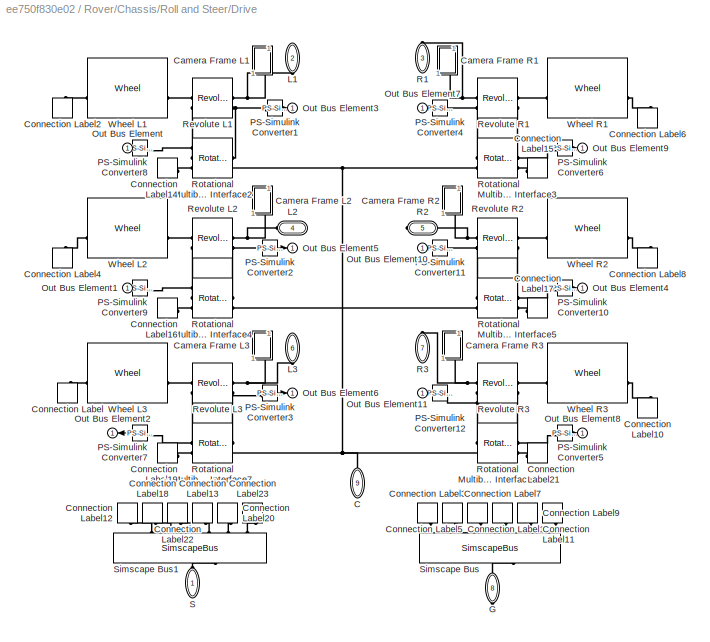
BLOCK [SubSystem] Rover/Chassis/Roll and Steer/Drive
BLOCK [PMIOPort] Rover/Chassis/Roll and Steer/Drive/C
  NameLocation = left
  Port = 9
  Side = Left
BLOCK [SubSystem] Rover/Chassis/Roll and Steer/Drive/Camera Frame L1
  NameLocation = right
BLOCK [PMIOPort] Rover/Chassis/Roll and Steer/Drive/Camera Frame L1/B
  Side = Left
BLOCK [Reference] Rover/Chassis/Roll and Steer/Drive/Camera Frame L1/Reference Cam Whl  REF=sm_lib/Frames and
Transforms/Reference
Frame
  NameLocation = top
  SourceBlock = sm_lib/Frames and\nTransforms/Reference\nFrame
  SourceType = Reference\nFrame
BLOCK [Reference] Rover/Chassis/Roll and Steer/Drive/Camera Frame L1/Transform Cam Whl  REF=sm_lib/Frames and
Transforms/Rigid
Transform
  NameLocation = right
  SourceBlock = sm_lib/Frames and\nTransforms/Rigid\nTransform
  SourceType = Rigid\nTransform
BLOCK [SubSystem] Rover/Chassis/Roll and Steer/Drive/Camera Frame L2
  NameLocation = right
BLOCK [PMIOPort] Rover/Chassis/Roll and Steer/Drive/Camera Frame L2/B
  Side = Left
BLOCK [Reference] Rover/Chassis/Roll and Steer/Drive/Camera Frame L2/Reference Cam Whl  REF=sm_lib/Frames and
Transforms/Reference
Frame
  NameLocation = top
  SourceBlock = sm_lib/Frames and\nTransforms/Reference\nFrame
  SourceType = Reference\nFrame
BLOCK [Reference] Rover/Chassis/Roll and Steer/Drive/Camera Frame L2/Transform Cam Whl  REF=sm_lib/Frames and
Transforms/Rigid
Transform
  NameLocation = right
  SourceBlock = sm_lib/Frames and\nTransforms/Rigid\nTransform
  SourceType = Rigid\nTransform
BLOCK [SubSystem] Rover/Chassis/Roll and Steer/Drive/Camera Frame L3
  NameLocation = right
BLOCK [PMIOPort] Rover/Chassis/Roll and Steer/Drive/Camera Frame L3/B
  Side = Left
BLOCK [Reference] Rover/Chassis/Roll and Steer/Drive/Camera Frame L3/Reference Cam Whl  REF=sm_lib/Frames and
Transforms/Reference
Frame
  NameLocation = top
  SourceBlock = sm_lib/Frames and\nTransforms/Reference\nFrame
  SourceType = Reference\nFrame
BLOCK [Reference] Rover/Chassis/Roll and Steer/Drive/Camera Frame L3/Transform Cam Whl  REF=sm_lib/Frames and
Transforms/Rigid
Transform
  NameLocation = right
  SourceBlock = sm_lib/Frames and\nTransforms/Rigid\nTransform
  SourceType = Rigid\nTransform
BLOCK [SubSystem] Rover/Chassis/Roll and Steer/Drive/Camera Frame R1
  NameLocation = right
BLOCK [PMIOPort] Rover/Chassis/Roll and Steer/Drive/Camera Frame R1/B
  Side = Left
BLOCK [Reference] Rover/Chassis/Roll and Steer/Drive/Camera Frame R1/Reference Cam Whl  REF=sm_lib/Frames and
Transforms/Reference
Frame
  NameLocation = top
  SourceBlock = sm_lib/Frames and\nTransforms/Reference\nFrame
  SourceType = Reference\nFrame
BLOCK [Reference] Rover/Chassis/Roll and Steer/Drive/Camera Frame R1/Transform Cam Whl  REF=sm_lib/Frames and
Transforms/Rigid
Transform
  NameLocation = right
  SourceBlock = sm_lib/Frames and\nTransforms/Rigid\nTransform
  SourceType = Rigid\nTransform
BLOCK [SubSystem] Rover/Chassis/Roll and Steer/Drive/Camera Frame R2
  NameLocation = right
BLOCK [PMIOPort] Rover/Chassis/Roll and Steer/Drive/Camera Frame R2/B
  Side = Left
BLOCK [Reference] Rover/Chassis/Roll and Steer/Drive/Camera Frame R2/Reference Cam Whl  REF=sm_lib/Frames and
Transforms/Reference
Frame
  NameLocation = top
  SourceBlock = sm_lib/Frames and\nTransforms/Reference\nFrame
  SourceType = Reference\nFrame
BLOCK [Reference] Rover/Chassis/Roll and Steer/Drive/Camera Frame R2/Transform Cam Whl  REF=sm_lib/Frames and
Transforms/Rigid
Transform
  NameLocation = right
  SourceBlock = sm_lib/Frames and\nTransforms/Rigid\nTransform
  SourceType = Rigid\nTransform
BLOCK [SubSystem] Rover/Chassis/Roll and Steer/Drive/Camera Frame R3
  NameLocation = right
BLOCK [PMIOPort] Rover/Chassis/Roll and Steer/Drive/Camera Frame R3/B
  Side = Left
BLOCK [Reference] Rover/Chassis/Roll and Steer/Drive/Camera Frame R3/Reference Cam Whl  REF=sm_lib/Frames and
Transforms/Reference
Frame
  NameLocation = top
  SourceBlock = sm_lib/Frames and\nTransforms/Reference\nFrame
  SourceType = Reference\nFrame
BLOCK [Reference] Rover/Chassis/Roll and Steer/Drive/Camera Frame R3/Transform Cam Whl  REF=sm_lib/Frames and
Transforms/Rigid
Transform
  NameLocation = right
  SourceBlock = sm_lib/Frames and\nTransforms/Rigid\nTransform
  SourceType = Rigid\nTransform
BLOCK [ConnectionLabel] Rover/Chassis/Roll and Steer/Drive/Connection Label
  Label = GL3
  NameLocation = right
BLOCK [ConnectionLabel] Rover/Chassis/Roll and Steer/Drive/Connection Label1
  Label = GL3
  NameLocation = left
BLOCK [ConnectionLabel] Rover/Chassis/Roll and Steer/Drive/Connection Label10
  Label = GR3
  NameLocation = left
BLOCK [ConnectionLabel] Rover/Chassis/Roll and Steer/Drive/Connection Label11
  Label = GR3
  NameLocation = right
BLOCK [ConnectionLabel] Rover/Chassis/Roll and Steer/Drive/Connection Label12
  Label = L1
  NameLocation = left
BLOCK [ConnectionLabel] Rover/Chassis/Roll and Steer/Drive/Connection Label13
  Label = R1
  NameLocation = left
BLOCK [ConnectionLabel] Rover/Chassis/Roll and Steer/Drive/Connection Label14
  Label = L1
BLOCK [ConnectionLabel] Rover/Chassis/Roll and Steer/Drive/Connection Label15
  Label = R1
BLOCK [ConnectionLabel] Rover/Chassis/Roll and Steer/Drive/Connection Label16
  Label = L2
BLOCK [ConnectionLabel] Rover/Chassis/Roll and Steer/Drive/Connection Label17
  Label = R2
BLOCK [ConnectionLabel] Rover/Chassis/Roll and Steer/Drive/Connection Label18
  Label = L2
  NameLocation = left
BLOCK [ConnectionLabel] Rover/Chassis/Roll and Steer/Drive/Connection Label19
  Label = L3
BLOCK [ConnectionLabel] Rover/Chassis/Roll and Steer/Drive/Connection Label2
  Label = GL1
  NameLocation = right
BLOCK [ConnectionLabel] Rover/Chassis/Roll and Steer/Drive/Connection Label20
  Label = R2
  NameLocation = left
BLOCK [ConnectionLabel] Rover/Chassis/Roll and Steer/Drive/Connection Label21
  Label = R3
BLOCK [ConnectionLabel] Rover/Chassis/Roll and Steer/Drive/Connection Label22
  Label = L3
  NameLocation = left
BLOCK [ConnectionLabel] Rover/Chassis/Roll and Steer/Drive/Connection Label23
  Label = R3
  NameLocation = left
BLOCK [ConnectionLabel] Rover/Chassis/Roll and Steer/Drive/Connection Label3
  Label = GL1
  NameLocation = right
BLOCK [ConnectionLabel] Rover/Chassis/Roll and Steer/Drive/Connection Label4
  Label = GL2
  NameLocation = right
BLOCK [ConnectionLabel] Rover/Chassis/Roll and Steer/Drive/Connection Label5
  Label = GL2
  NameLocation = right
BLOCK [ConnectionLabel] Rover/Chassis/Roll and Steer/Drive/Connection Label6
  Label = GR1
  NameLocation = left
BLOCK [ConnectionLabel] Rover/Chassis/Roll and Steer/Drive/Connection Label7
  Label = GR1
  NameLocation = right
BLOCK [ConnectionLabel] Rover/Chassis/Roll and Steer/Drive/Connection Label8
  Label = GR2
  NameLocation = left
BLOCK [ConnectionLabel] Rover/Chassis/Roll and Steer/Drive/Connection Label9
  Label = GR2
  NameLocation = right
BLOCK [PMIOPort] Rover/Chassis/Roll and Steer/Drive/G
  NameLocation = left
  Port = 8
  Side = Right
BLOCK [PMIOPort] Rover/Chassis/Roll and Steer/Drive/L1
  NameLocation = right
  Port = 2
  Side = Left
BLOCK [PMIOPort] Rover/Chassis/Roll and Steer/Drive/L2
  NameLocation = top
  Port = 4
  Side = Left
BLOCK [PMIOPort] Rover/Chassis/Roll and Steer/Drive/L3
  NameLocation = right
  Port = 6
  Side = Left
BLOCK [Outport] Rover/Chassis/Roll and Steer/Drive/Out Bus Element
BLOCK [Outport] Rover/Chassis/Roll and Steer/Drive/Out Bus Element1
BLOCK [Outport] Rover/Chassis/Roll and Steer/Drive/Out Bus Element10
  NameLocation = top
BLOCK [Outport] Rover/Chassis/Roll and Steer/Drive/Out Bus Element11
  NameLocation = top
BLOCK [Outport] Rover/Chassis/Roll and Steer/Drive/Out Bus Element2
BLOCK [Outport] Rover/Chassis/Roll and Steer/Drive/Out Bus Element3
  NameLocation = top
BLOCK [Outport] Rover/Chassis/Roll and Steer/Drive/Out Bus Element4
BLOCK [Outport] Rover/Chassis/Roll and Steer/Drive/Out Bus Element5
  NameLocation = top
BLOCK [Outport] Rover/Chassis/Roll and Steer/Drive/Out Bus Element6
  NameLocation = top
BLOCK [Outport] Rover/Chassis/Roll and Steer/Drive/Out Bus Element7
  NameLocation = top
BLOCK [Outport] Rover/Chassis/Roll and Steer/Drive/Out Bus Element8
BLOCK [Outport] Rover/Chassis/Roll and Steer/Drive/Out Bus Element9
BLOCK [Reference] Rover/Chassis/Roll and Steer/Drive/PS-Simulink Converter1  REF=nesl_utility/PS-Simulink
Converter
  SourceBlock = nesl_utility/PS-Simulink\nConverter
  SourceType = PS-Simulink\nConverter
BLOCK [Reference] Rover/Chassis/Roll and Steer/Drive/PS-Simulink Converter10  REF=nesl_utility/PS-Simulink
Converter
  NameLocation = top
  SourceBlock = nesl_utility/PS-Simulink\nConverter
  SourceType = PS-Simulink\nConverter
BLOCK [Reference] Rover/Chassis/Roll and Steer/Drive/PS-Simulink Converter11  REF=nesl_utility/PS-Simulink
Converter
  NameLocation = top
  SourceBlock = nesl_utility/PS-Simulink\nConverter
  SourceType = PS-Simulink\nConverter
BLOCK [Reference] Rover/Chassis/Roll and Steer/Drive/PS-Simulink Converter12  REF=nesl_utility/PS-Simulink
Converter
  NameLocation = top
  SourceBlock = nesl_utility/PS-Simulink\nConverter
  SourceType = PS-Simulink\nConverter
BLOCK [Reference] Rover/Chassis/Roll and Steer/Drive/PS-Simulink Converter2  REF=nesl_utility/PS-Simulink
Converter
  SourceBlock = nesl_utility/PS-Simulink\nConverter
  SourceType = PS-Simulink\nConverter
BLOCK [Reference] Rover/Chassis/Roll and Steer/Drive/PS-Simulink Converter3  REF=nesl_utility/PS-Simulink
Converter
  SourceBlock = nesl_utility/PS-Simulink\nConverter
  SourceType = PS-Simulink\nConverter
BLOCK [Reference] Rover/Chassis/Roll and Steer/Drive/PS-Simulink Converter4  REF=nesl_utility/PS-Simulink
Converter
  NameLocation = top
  SourceBlock = nesl_utility/PS-Simulink\nConverter
  SourceType = PS-Simulink\nConverter
BLOCK [Reference] Rover/Chassis/Roll and Steer/Drive/PS-Simulink Converter5  REF=nesl_utility/PS-Simulink
Converter
  NameLocation = top
  SourceBlock = nesl_utility/PS-Simulink\nConverter
  SourceType = PS-Simulink\nConverter
BLOCK [Reference] Rover/Chassis/Roll and Steer/Drive/PS-Simulink Converter6  REF=nesl_utility/PS-Simulink
Converter
  NameLocation = top
  SourceBlock = nesl_utility/PS-Simulink\nConverter
  SourceType = PS-Simulink\nConverter
BLOCK [Reference] Rover/Chassis/Roll and Steer/Drive/PS-Simulink Converter7  REF=nesl_utility/PS-Simulink
Converter
  NameLocation = top
  SourceBlock = nesl_utility/PS-Simulink\nConverter
  SourceType = PS-Simulink\nConverter
BLOCK [Reference] Rover/Chassis/Roll and Steer/Drive/PS-Simulink Converter8  REF=nesl_utility/PS-Simulink
Converter
  NameLocation = top
  SourceBlock = nesl_utility/PS-Simulink\nConverter
  SourceType = PS-Simulink\nConverter
BLOCK [Reference] Rover/Chassis/Roll and Steer/Drive/PS-Simulink Converter9  REF=nesl_utility/PS-Simulink
Converter
  NameLocation = top
  SourceBlock = nesl_utility/PS-Simulink\nConverter
  SourceType = PS-Simulink\nConverter
BLOCK [PMIOPort] Rover/Chassis/Roll and Steer/Drive/R1
  NameLocation = left
  Port = 3
  Side = Right
BLOCK [PMIOPort] Rover/Chassis/Roll and Steer/Drive/R2
  NameLocation = top
  Port = 5
  Side = Right
BLOCK [PMIOPort] Rover/Chassis/Roll and Steer/Drive/R3
  NameLocation = left
  Port = 7
  Side = Right
BLOCK [Reference] Rover/Chassis/Roll and Steer/Drive/Revolute L1  REF=sm_lib/Joints/Revolute Joint
  NameLocation = top
  SourceBlock = sm_lib/Joints/Revolute Joint
  SourceType = Revolute Joint
BLOCK [Reference] Rover/Chassis/Roll and Steer/Drive/Revolute L2  REF=sm_lib/Joints/Revolute Joint
  NameLocation = top
  SourceBlock = sm_lib/Joints/Revolute Joint
  SourceType = Revolute Joint
BLOCK [Reference] Rover/Chassis/Roll and Steer/Drive/Revolute L3  REF=sm_lib/Joints/Revolute Joint
  NameLocation = top
  SourceBlock = sm_lib/Joints/Revolute Joint
  SourceType = Revolute Joint
BLOCK [Reference] Rover/Chassis/Roll and Steer/Drive/Revolute R1  REF=sm_lib/Joints/Revolute Joint
  NameLocation = top
  SourceBlock = sm_lib/Joints/Revolute Joint
  SourceType = Revolute Joint
BLOCK [Reference] Rover/Chassis/Roll and Steer/Drive/Revolute R2  REF=sm_lib/Joints/Revolute Joint
  NameLocation = top
  SourceBlock = sm_lib/Joints/Revolute Joint
  SourceType = Revolute Joint
BLOCK [Reference] Rover/Chassis/Roll and Steer/Drive/Revolute R3  REF=sm_lib/Joints/Revolute Joint
  NameLocation = top
  SourceBlock = sm_lib/Joints/Revolute Joint
  SourceType = Revolute Joint
BLOCK [Reference] Rover/Chassis/Roll and Steer/Drive/Rotational Multibody Interface2  REF=fl_lib/Mechanical/Multibody Interfaces/Rotational Multibody
Interface
  SourceBlock = fl_lib/Mechanical/Multibody Interfaces/Rotational Multibody\nInterface
  SourceType = Rotational Multibody\nInterface
BLOCK [Reference] Rover/Chassis/Roll and Steer/Drive/Rotational Multibody Interface3  REF=fl_lib/Mechanical/Multibody Interfaces/Rotational Multibody
Interface
  SourceBlock = fl_lib/Mechanical/Multibody Interfaces/Rotational Multibody\nInterface
  SourceType = Rotational Multibody\nInterface
BLOCK [Reference] Rover/Chassis/Roll and Steer/Drive/Rotational Multibody Interface4  REF=fl_lib/Mechanical/Multibody Interfaces/Rotational Multibody
Interface
  SourceBlock = fl_lib/Mechanical/Multibody Interfaces/Rotational Multibody\nInterface
  SourceType = Rotational Multibody\nInterface
BLOCK [Reference] Rover/Chassis/Roll and Steer/Drive/Rotational Multibody Interface5  REF=fl_lib/Mechanical/Multibody Interfaces/Rotational Multibody
Interface
  SourceBlock = fl_lib/Mechanical/Multibody Interfaces/Rotational Multibody\nInterface
  SourceType = Rotational Multibody\nInterface
BLOCK [Reference] Rover/Chassis/Roll and Steer/Drive/Rotational Multibody Interface7  REF=fl_lib/Mechanical/Multibody Interfaces/Rotational Multibody
Interface
  SourceBlock = fl_lib/Mechanical/Multibody Interfaces/Rotational Multibody\nInterface
  SourceType = Rotational Multibody\nInterface
BLOCK [Reference] Rover/Chassis/Roll and Steer/Drive/Rotational Multibody Interface9  REF=fl_lib/Mechanical/Multibody Interfaces/Rotational Multibody
Interface
  SourceBlock = fl_lib/Mechanical/Multibody Interfaces/Rotational Multibody\nInterface
  SourceType = Rotational Multibody\nInterface
BLOCK [PMIOPort] Rover/Chassis/Roll and Steer/Drive/S
  NameLocation = left
  Side = Left
BLOCK [SimscapeBus] Rover/Chassis/Roll and Steer/Drive/Simscape Bus
  HierarchyStrings = L1;L2;L3;R1;R2;R3
  NameLocation = left
BLOCK [SimscapeBus] Rover/Chassis/Roll and Steer/Drive/Simscape Bus1
  HierarchyStrings = L1;L2;L3;R1;R2;R3
  NameLocation = left
BLOCK [Reference] Rover/Chassis/Roll and Steer/Drive/Wheel L1  REF=mars_rover_lib/Wheel  (lib defined in slx_4b23714ba4d0)
  SourceBlock = mars_rover_lib/Wheel
BLOCK [Reference] Rover/Chassis/Roll and Steer/Drive/Wheel L2  REF=mars_rover_lib/Wheel  (lib defined in slx_4b23714ba4d0)
  SourceBlock = mars_rover_lib/Wheel
BLOCK [Reference] Rover/Chassis/Roll and Steer/Drive/Wheel L3  REF=mars_rover_lib/Wheel  (lib defined in slx_4b23714ba4d0)
  SourceBlock = mars_rover_lib/Wheel
BLOCK [Reference] Rover/Chassis/Roll and Steer/Drive/Wheel R1  REF=mars_rover_lib/Wheel  (lib defined in slx_4b23714ba4d0)
  SourceBlock = mars_rover_lib/Wheel
BLOCK [Reference] Rover/Chassis/Roll and Steer/Drive/Wheel R2  REF=mars_rover_lib/Wheel  (lib defined in slx_4b23714ba4d0)
  SourceBlock = mars_rover_lib/Wheel
BLOCK [Reference] Rover/Chassis/Roll and Steer/Drive/Wheel R3  REF=mars_rover_lib/Wheel  (lib defined in slx_4b23714ba4d0)
  SourceBlock = mars_rover_lib/Wheel
BLOCK [PMIOPort] Rover/Chassis/Roll and Steer/G
  NameLocation = right
  Side = Left
BLOCK [PMIOPort] Rover/Chassis/Roll and Steer/L1S
  NameLocation = right
  Port = 2
  Side = Left
BLOCK [PMIOPort] Rover/Chassis/Roll and Steer/L2
  Port = 3
  Side = Left
BLOCK [PMIOPort] Rover/Chassis/Roll and Steer/L3S
  NameLocation = left
  Port = 4
  Side = Left
BLOCK [Reference] Rover/Chassis/Roll and Steer/Mechanical Rotational Reference  REF=fl_lib/Mechanical/Rotational Elements/Mechanical
Rotational Reference
  SourceBlock = fl_lib/Mechanical/Rotational Elements/Mechanical\nRotational Reference
  SourceType = Mechanical\nRotational Reference
BLOCK [Outport] Rover/Chassis/Roll and Steer/Out Bus Element
BLOCK [Outport] Rover/Chassis/Roll and Steer/Out Bus Element1
BLOCK [PMIOPort] Rover/Chassis/Roll and Steer/R1S
  NameLocation = left
  Port = 5
  Side = Right
BLOCK [PMIOPort] Rover/Chassis/Roll and Steer/R2
  Port = 6
  Side = Right
BLOCK [PMIOPort] Rover/Chassis/Roll and Steer/R3S
  NameLocation = right
  Port = 7
  Side = Right
BLOCK [PMIOPort] Rover/Chassis/Roll and Steer/S
  Port = 8
  Side = Right
BLOCK [SubSystem] Rover/Chassis/Roll and Steer/Steer
  PortSchema = {"entries":[{"content":{"sides":[{"content":{"connectorIds":["LConn1","LConn2","LConn3","LConn4","LConn5"]},"type":"ConnectorPlacement.EquallySpacedRectSide","uuid":"f07d1e77-d0a1-4edf-a910-40d537cbee93"},{"content":{"connectorIds":["RConn1","RConn2","RConn3","RConn4","Out1"],"side":"RIGHT"},"type":"ConnectorPlacement.EquallySpacedRectSide","uuid":"cb8a526a-201b-4efe-8433-4e03b64c0eab"},{"content"...<+315ch>
BLOCK [ConnectionLabel] Rover/Chassis/Roll and Steer/Steer/Connection Label1
  Label = LS1
  NameLocation = top
BLOCK [ConnectionLabel] Rover/Chassis/Roll and Steer/Steer/Connection Label12
  Label = LS1
  NameLocation = top
BLOCK [ConnectionLabel] Rover/Chassis/Roll and Steer/Steer/Connection Label13
  Label = RS1
  NameLocation = left
BLOCK [ConnectionLabel] Rover/Chassis/Roll and Steer/Steer/Connection Label18
  Label = LS3
  NameLocation = top
BLOCK [ConnectionLabel] Rover/Chassis/Roll and Steer/Steer/Connection Label2
  Label = RS1
  NameLocation = right
BLOCK [ConnectionLabel] Rover/Chassis/Roll and Steer/Steer/Connection Label20
  Label = RS3
  NameLocation = top
BLOCK [ConnectionLabel] Rover/Chassis/Roll and Steer/Steer/Connection Label3
  Label = LS3
  NameLocation = top
BLOCK [ConnectionLabel] Rover/Chassis/Roll and Steer/Steer/Connection Label4
  Label = RS3
  NameLocation = top
BLOCK [ConnectionLabel] Rover/Chassis/Roll and Steer/Steer/Connection Label5
  Label = C
  NameLocation = left
BLOCK [ConnectionLabel] Rover/Chassis/Roll and Steer/Steer/Connection Label6
  Label = C
  NameLocation = right
BLOCK [ConnectionLabel] Rover/Chassis/Roll and Steer/Steer/Connection Label7
  Label = C
  NameLocation = left
BLOCK [ConnectionLabel] Rover/Chassis/Roll and Steer/Steer/Connection Label8
  Label = C
  NameLocation = left
BLOCK [ConnectionLabel] Rover/Chassis/Roll and Steer/Steer/Connection Label9
  Label = C
  NameLocation = left
BLOCK [PMIOPort] Rover/Chassis/Roll and Steer/Steer/L1
  Port = 4
  Side = Left
BLOCK [PMIOPort] Rover/Chassis/Roll and Steer/Steer/L1S
  NameLocation = left
  Side = Left
BLOCK [PMIOPort] Rover/Chassis/Roll and Steer/Steer/L3
  Port = 5
  Side = Left
BLOCK [PMIOPort] Rover/Chassis/Roll and Steer/Steer/L3S
  NameLocation = left
  Port = 3
  Side = Left
BLOCK [Reference] Rover/Chassis/Roll and Steer/Steer/Mechanical Rotational Reference  REF=fl_lib/Mechanical/Rotational Elements/Mechanical
Rotational Reference
  SourceBlock = fl_lib/Mechanical/Rotational Elements/Mechanical\nRotational Reference
  SourceType = Mechanical\nRotational Reference
BLOCK [Outport] Rover/Chassis/Roll and Steer/Steer/Out Bus Element1
BLOCK [Outport] Rover/Chassis/Roll and Steer/Steer/Out Bus Element10
BLOCK [Outport] Rover/Chassis/Roll and Steer/Steer/Out Bus Element11
BLOCK [Outport] Rover/Chassis/Roll and Steer/Steer/Out Bus Element12
BLOCK [Outport] Rover/Chassis/Roll and Steer/Steer/Out Bus Element2
BLOCK [Outport] Rover/Chassis/Roll and Steer/Steer/Out Bus Element3
BLOCK [Outport] Rover/Chassis/Roll and Steer/Steer/Out Bus Element4
BLOCK [Outport] Rover/Chassis/Roll and Steer/Steer/Out Bus Element5
BLOCK [Outport] Rover/Chassis/Roll and Steer/Steer/Out Bus Element6
BLOCK [Outport] Rover/Chassis/Roll and Steer/Steer/Out Bus Element7
BLOCK [Outport] Rover/Chassis/Roll and Steer/Steer/Out Bus Element8
BLOCK [Outport] Rover/Chassis/Roll and Steer/Steer/Out Bus Element9
BLOCK [Reference] Rover/Chassis/Roll and Steer/Steer/PS-Simulink Converter  REF=nesl_utility/PS-Simulink
Converter
  SourceBlock = nesl_utility/PS-Simulink\nConverter
  SourceType = PS-Simulink\nConverter
BLOCK [Reference] Rover/Chassis/Roll and Steer/Steer/PS-Simulink Converter1  REF=nesl_utility/PS-Simulink
Converter
  SourceBlock = nesl_utility/PS-Simulink\nConverter
  SourceType = PS-Simulink\nConverter
BLOCK [Reference] Rover/Chassis/Roll and Steer/Steer/PS-Simulink Converter10  REF=nesl_utility/PS-Simulink
Converter
  SourceBlock = nesl_utility/PS-Simulink\nConverter
  SourceType = PS-Simulink\nConverter
BLOCK [Reference] Rover/Chassis/Roll and Steer/Steer/PS-Simulink Converter11  REF=nesl_utility/PS-Simulink
Converter
  SourceBlock = nesl_utility/PS-Simulink\nConverter
  SourceType = PS-Simulink\nConverter
BLOCK [Reference] Rover/Chassis/Roll and Steer/Steer/PS-Simulink Converter2  REF=nesl_utility/PS-Simulink
Converter
  SourceBlock = nesl_utility/PS-Simulink\nConverter
  SourceType = PS-Simulink\nConverter
BLOCK [Reference] Rover/Chassis/Roll and Steer/Steer/PS-Simulink Converter3  REF=nesl_utility/PS-Simulink
Converter
  SourceBlock = nesl_utility/PS-Simulink\nConverter
  SourceType = PS-Simulink\nConverter
BLOCK [Reference] Rover/Chassis/Roll and Steer/Steer/PS-Simulink Converter4  REF=nesl_utility/PS-Simulink
Converter
  SourceBlock = nesl_utility/PS-Simulink\nConverter
  SourceType = PS-Simulink\nConverter
BLOCK [Reference] Rover/Chassis/Roll and Steer/Steer/PS-Simulink Converter5  REF=nesl_utility/PS-Simulink
Converter
  SourceBlock = nesl_utility/PS-Simulink\nConverter
  SourceType = PS-Simulink\nConverter
BLOCK [Reference] Rover/Chassis/Roll and Steer/Steer/PS-Simulink Converter6  REF=nesl_utility/PS-Simulink
Converter
  SourceBlock = nesl_utility/PS-Simulink\nConverter
  SourceType = PS-Simulink\nConverter
BLOCK [Reference] Rover/Chassis/Roll and Steer/Steer/PS-Simulink Converter7  REF=nesl_utility/PS-Simulink
Converter
  SourceBlock = nesl_utility/PS-Simulink\nConverter
  SourceType = PS-Simulink\nConverter
BLOCK [Reference] Rover/Chassis/Roll and Steer/Steer/PS-Simulink Converter8  REF=nesl_utility/PS-Simulink
Converter
  SourceBlock = nesl_utility/PS-Simulink\nConverter
  SourceType = PS-Simulink\nConverter
BLOCK [Reference] Rover/Chassis/Roll and Steer/Steer/PS-Simulink Converter9  REF=nesl_utility/PS-Simulink
Converter
  SourceBlock = nesl_utility/PS-Simulink\nConverter
  SourceType = PS-Simulink\nConverter
BLOCK [PMIOPort] Rover/Chassis/Roll and Steer/Steer/R1
  Port = 8
  Side = Right
BLOCK [PMIOPort] Rover/Chassis/Roll and Steer/Steer/R1S
  NameLocation = left
  Port = 2
  Side = Right
BLOCK [PMIOPort] Rover/Chassis/Roll and Steer/Steer/R3
  Port = 9
  Side = Right
BLOCK [PMIOPort] Rover/Chassis/Roll and Steer/Steer/R3S
  NameLocation = left
  Port = 7
  Side = Right
BLOCK [Reference] Rover/Chassis/Roll and Steer/Steer/Revolute Steer L1  REF=sm_lib/Joints/Revolute Joint
  NameLocation = left
  SourceBlock = sm_lib/Joints/Revolute Joint
  SourceType = Revolute Joint
BLOCK [Reference] Rover/Chassis/Roll and Steer/Steer/Revolute Steer L3  REF=sm_lib/Joints/Revolute Joint
  NameLocation = left
  SourceBlock = sm_lib/Joints/Revolute Joint
  SourceType = Revolute Joint
BLOCK [Reference] Rover/Chassis/Roll and Steer/Steer/Revolute Steer R1  REF=sm_lib/Joints/Revolute Joint
  NameLocation = left
  SourceBlock = sm_lib/Joints/Revolute Joint
  SourceType = Revolute Joint
BLOCK [Reference] Rover/Chassis/Roll and Steer/Steer/Revolute Steer R3  REF=sm_lib/Joints/Revolute Joint
  NameLocation = left
  SourceBlock = sm_lib/Joints/Revolute Joint
  SourceType = Revolute Joint
BLOCK [Reference] Rover/Chassis/Roll and Steer/Steer/Rotational Multibody Interface  REF=fl_lib/Mechanical/Multibody Interfaces/Rotational Multibody
Interface
  NameLocation = right
  SourceBlock = fl_lib/Mechanical/Multibody Interfaces/Rotational Multibody\nInterface
  SourceType = Rotational Multibody\nInterface
BLOCK [Reference] Rover/Chassis/Roll and Steer/Steer/Rotational Multibody Interface1  REF=fl_lib/Mechanical/Multibody Interfaces/Rotational Multibody
Interface
  NameLocation = right
  SourceBlock = fl_lib/Mechanical/Multibody Interfaces/Rotational Multibody\nInterface
  SourceType = Rotational Multibody\nInterface
BLOCK [Reference] Rover/Chassis/Roll and Steer/Steer/Rotational Multibody Interface6  REF=fl_lib/Mechanical/Multibody Interfaces/Rotational Multibody
Interface
  NameLocation = right
  SourceBlock = fl_lib/Mechanical/Multibody Interfaces/Rotational Multibody\nInterface
  SourceType = Rotational Multibody\nInterface
BLOCK [Reference] Rover/Chassis/Roll and Steer/Steer/Rotational Multibody Interface8  REF=fl_lib/Mechanical/Multibody Interfaces/Rotational Multibody
Interface
  NameLocation = right
  SourceBlock = fl_lib/Mechanical/Multibody Interfaces/Rotational Multibody\nInterface
  SourceType = Rotational Multibody\nInterface
BLOCK [PMIOPort] Rover/Chassis/Roll and Steer/Steer/S
  NameLocation = top
  Port = 6
  Side = Left
BLOCK [SimscapeBus] Rover/Chassis/Roll and Steer/Steer/Simscape Bus
  HierarchyStrings = LS1;LS3;RS1;RS3
BLOCK [SubSystem] Rover/Chassis/Roll and Steer/Steer/Steering Bracket L1
  NameLocation = right
BLOCK [PMIOPort] Rover/Chassis/Roll and Steer/Steer/Steering Bracket L1/B
  Side = Left
BLOCK [PMIOPort] Rover/Chassis/Roll and Steer/Steer/Steering Bracket L1/F
  Port = 2
  Side = Right
BLOCK [Reference] Rover/Chassis/Roll and Steer/Steer/Steering Bracket L1/File Solid5  REF=sm_lib/Body Elements/File Solid
  NameLocation = top
  SourceBlock = sm_lib/Body Elements/File Solid
  SourceType = File Solid
BLOCK [Reference] Rover/Chassis/Roll and Steer/Steer/Steering Bracket L1/Reference Frame  REF=sm_lib/Frames and
Transforms/Reference
Frame
  SourceBlock = sm_lib/Frames and\nTransforms/Reference\nFrame
  SourceType = Reference\nFrame
BLOCK [Reference] Rover/Chassis/Roll and Steer/Steer/Steering Bracket L1/Rigid Transform  REF=sm_lib/Frames and
Transforms/Rigid
Transform
  SourceBlock = sm_lib/Frames and\nTransforms/Rigid\nTransform
  SourceType = Rigid\nTransform
BLOCK [Reference] Rover/Chassis/Roll and Steer/Steer/Steering Bracket L1/Rigid Transform1  REF=sm_lib/Frames and
Transforms/Rigid
Transform
  NameLocation = top
  SourceBlock = sm_lib/Frames and\nTransforms/Rigid\nTransform
  SourceType = Rigid\nTransform
BLOCK [SubSystem] Rover/Chassis/Roll and Steer/Steer/Steering Bracket L3
  NameLocation = right
BLOCK [PMIOPort] Rover/Chassis/Roll and Steer/Steer/Steering Bracket L3/B
  Side = Left
BLOCK [PMIOPort] Rover/Chassis/Roll and Steer/Steer/Steering Bracket L3/F
  Port = 2
  Side = Right
BLOCK [Reference] Rover/Chassis/Roll and Steer/Steer/Steering Bracket L3/File Solid5  REF=sm_lib/Body Elements/File Solid
  NameLocation = top
  SourceBlock = sm_lib/Body Elements/File Solid
  SourceType = File Solid
BLOCK [Reference] Rover/Chassis/Roll and Steer/Steer/Steering Bracket L3/Reference Frame  REF=sm_lib/Frames and
Transforms/Reference
Frame
  SourceBlock = sm_lib/Frames and\nTransforms/Reference\nFrame
  SourceType = Reference\nFrame
BLOCK [Reference] Rover/Chassis/Roll and Steer/Steer/Steering Bracket L3/Rigid Transform  REF=sm_lib/Frames and
Transforms/Rigid
Transform
  SourceBlock = sm_lib/Frames and\nTransforms/Rigid\nTransform
  SourceType = Rigid\nTransform
BLOCK [Reference] Rover/Chassis/Roll and Steer/Steer/Steering Bracket L3/Rigid Transform1  REF=sm_lib/Frames and
Transforms/Rigid
Transform
  NameLocation = top
  SourceBlock = sm_lib/Frames and\nTransforms/Rigid\nTransform
  SourceType = Rigid\nTransform
BLOCK [SubSystem] Rover/Chassis/Roll and Steer/Steer/Steering Bracket R1
  NameLocation = right
BLOCK [PMIOPort] Rover/Chassis/Roll and Steer/Steer/Steering Bracket R1/B
  Side = Right
BLOCK [PMIOPort] Rover/Chassis/Roll and Steer/Steer/Steering Bracket R1/F
  Port = 2
  Side = Left
BLOCK [Reference] Rover/Chassis/Roll and Steer/Steer/Steering Bracket R1/File Solid5  REF=sm_lib/Body Elements/File Solid
  NameLocation = top
  SourceBlock = sm_lib/Body Elements/File Solid
  SourceType = File Solid
BLOCK [Reference] Rover/Chassis/Roll and Steer/Steer/Steering Bracket R1/Reference Frame  REF=sm_lib/Frames and
Transforms/Reference
Frame
  SourceBlock = sm_lib/Frames and\nTransforms/Reference\nFrame
  SourceType = Reference\nFrame
BLOCK [Reference] Rover/Chassis/Roll and Steer/Steer/Steering Bracket R1/Rigid Transform  REF=sm_lib/Frames and
Transforms/Rigid
Transform
  SourceBlock = sm_lib/Frames and\nTransforms/Rigid\nTransform
  SourceType = Rigid\nTransform
BLOCK [Reference] Rover/Chassis/Roll and Steer/Steer/Steering Bracket R1/Rigid Transform1  REF=sm_lib/Frames and
Transforms/Rigid
Transform
  NameLocation = top
  SourceBlock = sm_lib/Frames and\nTransforms/Rigid\nTransform
  SourceType = Rigid\nTransform
BLOCK [Reference] Rover/Chassis/Roll and Steer/Steer/Steering Bracket R1/Transform Right Side  REF=sm_lib/Frames and
Transforms/Rigid
Transform
  SourceBlock = sm_lib/Frames and\nTransforms/Rigid\nTransform
  SourceType = Rigid\nTransform
BLOCK [SubSystem] Rover/Chassis/Roll and Steer/Steer/Steering Bracket R3
  NameLocation = right
BLOCK [PMIOPort] Rover/Chassis/Roll and Steer/Steer/Steering Bracket R3/B
  Side = Right
BLOCK [PMIOPort] Rover/Chassis/Roll and Steer/Steer/Steering Bracket R3/F
  Port = 2
  Side = Left
BLOCK [Reference] Rover/Chassis/Roll and Steer/Steer/Steering Bracket R3/File Solid5  REF=sm_lib/Body Elements/File Solid
  NameLocation = top
  SourceBlock = sm_lib/Body Elements/File Solid
  SourceType = File Solid
BLOCK [Reference] Rover/Chassis/Roll and Steer/Steer/Steering Bracket R3/Reference Frame  REF=sm_lib/Frames and
Transforms/Reference
Frame
  SourceBlock = sm_lib/Frames and\nTransforms/Reference\nFrame
  SourceType = Reference\nFrame
BLOCK [Reference] Rover/Chassis/Roll and Steer/Steer/Steering Bracket R3/Rigid Transform  REF=sm_lib/Frames and
Transforms/Rigid
Transform
  SourceBlock = sm_lib/Frames and\nTransforms/Rigid\nTransform
  SourceType = Rigid\nTransform
BLOCK [Reference] Rover/Chassis/Roll and Steer/Steer/Steering Bracket R3/Rigid Transform1  REF=sm_lib/Frames and
Transforms/Rigid
Transform
  NameLocation = top
  SourceBlock = sm_lib/Frames and\nTransforms/Rigid\nTransform
  SourceType = Rigid\nTransform
BLOCK [Reference] Rover/Chassis/Roll and Steer/Steer/Steering Bracket R3/Transform Right Side  REF=sm_lib/Frames and
Transforms/Rigid
Transform
  SourceBlock = sm_lib/Frames and\nTransforms/Rigid\nTransform
  SourceType = Rigid\nTransform
BLOCK [Reference] Rover/Chassis/Spherical Diff L  REF=sm_lib/Joints/Spherical
Joint
  SourceBlock = sm_lib/Joints/Spherical\nJoint
  SourceType = Spherical\nJoint
BLOCK [Reference] Rover/Chassis/Spherical Diff R  REF=sm_lib/Joints/Spherical
Joint
  SourceBlock = sm_lib/Joints/Spherical\nJoint
  SourceType = Spherical\nJoint
BLOCK [PMIOPort] Rover/Chassis/Storage
  Port = 2
  Side = Left
BLOCK [Reference] Rover/Chassis/Universal Diff L  REF=sm_lib/Joints/Universal
Joint
  SourceBlock = sm_lib/Joints/Universal\nJoint
  SourceType = Universal\nJoint
BLOCK [Reference] Rover/Chassis/Universal Diff R  REF=sm_lib/Joints/Universal
Joint
  SourceBlock = sm_lib/Joints/Universal\nJoint
  SourceType = Universal\nJoint
BLOCK [Inport] Rover/In Bus Element
BLOCK [Inport] Rover/In Bus Element1
  NameLocation = top
BLOCK [Inport] Rover/In Bus Element3
BLOCK [Reference] Rover/Mechanism Configuration  REF=sm_lib/Utilities/Mechanism
Configuration
  SourceBlock = sm_lib/Utilities/Mechanism\nConfiguration
  SourceType = Mechanism\nConfiguration
BLOCK [Outport] Rover/Out Bus Element
BLOCK [Outport] Rover/Out Bus Element1
BLOCK [Outport] Rover/Out Bus Element3
BLOCK [Outport] Rover/Out Bus Element4
BLOCK [SubSystem] Rover/Path
BLOCK [Reference] Rover/Path/Points  REF=sm_lib/Curves and Surfaces/Point Cloud
  SourceBlock = sm_lib/Curves and Surfaces/Point Cloud
  SourceType = Point Cloud
BLOCK [PMIOPort] Rover/Path/R
  Side = Left
BLOCK [Reference] Rover/Path/Rigid Transform  REF=sm_lib/Frames and
Transforms/Rigid
Transform
  SourceBlock = sm_lib/Frames and\nTransforms/Rigid\nTransform
  SourceType = Rigid\nTransform
BLOCK [Reference] Rover/Path/Spline  REF=sm_lib/Curves and Surfaces/Spline
  SourceBlock = sm_lib/Curves and Surfaces/Spline
  SourceType = Spline
BLOCK [SubSystem] Rover/Sample
BLOCK [Reference] Rover/Sample/6-DOF Sample  REF=sm_lib/Joints/6-DOF Joint
  NameLocation = right
  SourceBlock = sm_lib/Joints/6-DOF Joint
  SourceType = 6-DOF Joint
BLOCK [PMIOPort] Rover/Sample/A
  Port = 3
  Side = Right
BLOCK [PMIOPort] Rover/Sample/C
  NameLocation = top
  Port = 4
  Side = Right
BLOCK [Constant] Rover/Sample/Constant10
  Value = 0
BLOCK [Constant] Rover/Sample/Constant11
  Value = -1
BLOCK [Constant] Rover/Sample/Constant14
  Value = -1
BLOCK [Constant] Rover/Sample/Constant7
  Value = 0
BLOCK [Constant] Rover/Sample/Constant8
  Value = -1
BLOCK [Inport] Rover/Sample/In Bus Element1
BLOCK [Inport] Rover/Sample/In Bus Element2
BLOCK [Outport] Rover/Sample/Out Bus Element
BLOCK [Outport] Rover/Sample/Out Bus Element1
BLOCK [Outport] Rover/Sample/Out Bus Element2
BLOCK [Reference] Rover/Sample/Sample  REF=sm_lib/Body Elements/Spherical Solid
  NameLocation = top
  SourceBlock = sm_lib/Body Elements/Spherical Solid
  SourceType = Spherical Solid
BLOCK [SubSystem] Rover/Sample/Sense Target
BLOCK [PMIOPort] Rover/Sample/Sense Target/ArmB
  Side = Right
BLOCK [Mux] Rover/Sample/Sense Target/Mux
  DisplayOption = bar
  Inputs = 3
BLOCK [Reference] Rover/Sample/Sense Target/PS-Simulink Converter  REF=nesl_utility/PS-Simulink
Converter
  SourceBlock = nesl_utility/PS-Simulink\nConverter
  SourceType = PS-Simulink\nConverter
BLOCK [Reference] Rover/Sample/Sense Target/PS-Simulink Converter1  REF=nesl_utility/PS-Simulink
Converter
  SourceBlock = nesl_utility/PS-Simulink\nConverter
  SourceType = PS-Simulink\nConverter
BLOCK [Reference] Rover/Sample/Sense Target/PS-Simulink Converter2  REF=nesl_utility/PS-Simulink
Converter
  SourceBlock = nesl_utility/PS-Simulink\nConverter
  SourceType = PS-Simulink\nConverter
BLOCK [Outport] Rover/Sample/Sense Target/Pos
BLOCK [PMIOPort] Rover/Sample/Sense Target/Target
  Port = 2
  Side = Left
BLOCK [Reference] Rover/Sample/Sense Target/Transform Sensor  REF=sm_lib/Frames and
Transforms/Transform
Sensor
  SourceBlock = sm_lib/Frames and\nTransforms/Transform\nSensor
  SourceType = Transform\nSensor
BLOCK [Reference] Rover/Sample/Simulink-PS Converter2  REF=nesl_utility/Simulink-PS
Converter
  SourceBlock = nesl_utility/Simulink-PS\nConverter
  SourceType = Simulink-PS\nConverter
BLOCK [Reference] Rover/Sample/Simulink-PS Converter4  REF=nesl_utility/Simulink-PS
Converter
  NameLocation = top
  SourceBlock = nesl_utility/Simulink-PS\nConverter
  SourceType = Simulink-PS\nConverter
BLOCK [Reference] Rover/Sample/SixDoF Storage  REF=sm_lib/Joints/6-DOF Joint
  SourceBlock = sm_lib/Joints/6-DOF Joint
  SourceType = 6-DOF Joint
BLOCK [Reference] Rover/Sample/SixDoF Tip  REF=sm_lib/Joints/6-DOF Joint
  SourceBlock = sm_lib/Joints/6-DOF Joint
  SourceType = 6-DOF Joint
BLOCK [SubSystem] Rover/Sample/Subsystem
BLOCK [Bias] Rover/Sample/Subsystem/Bias
  Bias = 1
  SaturateOnIntegerOverflow = off
BLOCK [Inport] Rover/Sample/Subsystem/In1
BLOCK [Outport] Rover/Sample/Subsystem/Out1
BLOCK [SubSystem] Rover/Sample/Subsystem1
BLOCK [Bias] Rover/Sample/Subsystem1/Bias
  Bias = 1
  SaturateOnIntegerOverflow = off
BLOCK [Inport] Rover/Sample/Subsystem1/In1
BLOCK [Outport] Rover/Sample/Subsystem1/m
BLOCK [Switch] Rover/Sample/Switch4
  Criteria = u2 > Threshold
  InputSameDT = off
  SaturateOnIntegerOverflow = off
BLOCK [Switch] Rover/Sample/Switch5
  Criteria = u2 > Threshold
  InputSameDT = off
  SaturateOnIntegerOverflow = off
BLOCK [Switch] Rover/Sample/Switch7
  Criteria = u2 > Threshold
  InputSameDT = off
  SaturateOnIntegerOverflow = off
BLOCK [Reference] Rover/Sample/Target Area  REF=sm_lib/Body Elements/Spherical Solid
  SourceBlock = sm_lib/Body Elements/Spherical Solid
  SourceType = Spherical Solid
BLOCK [PMIOPort] Rover/Sample/Tip
  NameLocation = top
  Side = Right
BLOCK [Reference] Rover/Sample/Transform Sample  REF=sm_lib/Frames and
Transforms/Rigid
Transform
  NameLocation = right
  SourceBlock = sm_lib/Frames and\nTransforms/Rigid\nTransform
  SourceType = Rigid\nTransform
BLOCK [Reference] Rover/Sample/Viz  REF=sm_lib/Body Elements/Graphic
  NameLocation = top
  SourceBlock = sm_lib/Body Elements/Graphic
  SourceType = Graphic
BLOCK [PMIOPort] Rover/Sample/W
  NameLocation = right
  Port = 2
  Side = Left
BLOCK [Reference] Rover/Solver Configuration  REF=nesl_utility/Solver
Configuration
  SourceBlock = nesl_utility/Solver\nConfiguration
  SourceType = Solver\nConfiguration
BLOCK [SubSystem] Rover/Terrain
  NameLocation = right
BLOCK [SubSystem] Rover/Terrain/Contact
BLOCK [Reference] Rover/Terrain/Contact/Contact L1  REF=sm_lib/Forces and
Torques/Spatial
Contact Force
  SourceBlock = sm_lib/Forces and\nTorques/Spatial\nContact Force
  SourceType = Spatial\nContact Force
BLOCK [Reference] Rover/Terrain/Contact/Contact L2  REF=sm_lib/Forces and
Torques/Spatial
Contact Force
  SourceBlock = sm_lib/Forces and\nTorques/Spatial\nContact Force
  SourceType = Spatial\nContact Force
BLOCK [Reference] Rover/Terrain/Contact/Contact L3  REF=sm_lib/Forces and
Torques/Spatial
Contact Force
  SourceBlock = sm_lib/Forces and\nTorques/Spatial\nContact Force
  SourceType = Spatial\nContact Force
BLOCK [Reference] Rover/Terrain/Contact/Contact R1  REF=sm_lib/Forces and
Torques/Spatial
Contact Force
  SourceBlock = sm_lib/Forces and\nTorques/Spatial\nContact Force
  SourceType = Spatial\nContact Force
BLOCK [Reference] Rover/Terrain/Contact/Contact R2  REF=sm_lib/Forces and
Torques/Spatial
Contact Force
  SourceBlock = sm_lib/Forces and\nTorques/Spatial\nContact Force
  SourceType = Spatial\nContact Force
BLOCK [Reference] Rover/Terrain/Contact/Contact R3  REF=sm_lib/Forces and
Torques/Spatial
Contact Force
  SourceBlock = sm_lib/Forces and\nTorques/Spatial\nContact Force
  SourceType = Spatial\nContact Force
BLOCK [SimscapeBus] Rover/Terrain/Contact/Simscape Bus
  HierarchyStrings = L1;L2;L3;R1;R2;R3
BLOCK [PMIOPort] Rover/Terrain/Contact/Surface
  Port = 2
  Side = Right
BLOCK [PMIOPort] Rover/Terrain/Contact/Wheels
  Side = Right
BLOCK [PMIOPort] Rover/Terrain/G
  NameLocation = left
  Port = 2
  Side = Right
BLOCK [Reference] Rover/Terrain/Terrain Geometry  REF=sm_lib/Body Elements/File Solid
  Commented = on
  NameLocation = left
  SourceBlock = sm_lib/Body Elements/File Solid
  SourceType = File Solid
BLOCK [Reference] Rover/Terrain/Terrain Grid Surface  REF=sm_lib/Curves and Surfaces/Grid Surface
  SourceBlock = sm_lib/Curves and Surfaces/Grid Surface
  SourceType = Grid Surface
BLOCK [Reference] Rover/Terrain/Terrain Point Cloud  REF=sm_lib/Curves and Surfaces/Point Cloud
  Commented = on
  NameLocation = right
  SourceBlock = sm_lib/Curves and Surfaces/Point Cloud
  SourceType = Point Cloud
BLOCK [PMIOPort] Rover/Terrain/W
  Side = Right
BLOCK [Reference] Rover/World Frame  REF=sm_lib/Frames and
Transforms/World Frame
  SourceBlock = sm_lib/Frames and\nTransforms/World Frame
  SourceType = World Frame
BLOCK [Scope] Scope4
  Floating = off
  IOType = viewer
  NumInputPorts = 1
  ScopeSpecificationString = Simulink.scopes.TimeScopeBlockCfg('CurrentConfiguration', extmgr.ConfigurationSet(extmgr.Configuration('Core','General UI',true),extmgr.Configuration('Core','Source UI',true),extmgr.Configuration('Sources','WiredSimulink',true,'DataLoggingVariableName','ScopeData5'),extmgr.Configuration('Visuals','Time Domain',true,'SerializedDisplays',{struct('MinYLimReal','-0.1776','MaxYLimReal','0.10656','YLabe...<+1491ch>
BLOCK [SubSystem] Waypoints
BLOCK [Concatenate] Waypoints/Matrix Concatenate
  ConcatenateDimension = 2
  Mode = Multidimensional array
BLOCK [Outport] Waypoints/W
BLOCK [Constant] Waypoints/rover path x
  Value = rover_path.x
BLOCK [Constant] Waypoints/rover path y
  Value = rover_path.y
ANNOTATION (root): 1. Plot paths: Chassis ( code ), Arm ( code ) 2. Plot wheel results: Speed and Torque ( code ) 3. Plot motor results: Speed and Torque/Current ( code ) 4. Select rover path: Path 1 , Path 2 5. Set terrain: Uneven , Flat ( code ) 6. Set powertrain: Ideal , Electrical 7. See overview for this example 8. Learn about terrain definition , point cloud for wheel , robot arm inverse kinematics 9. Explore ...<+35ch>
ANNOTATION (root): Mars Rover on Uneven Terrain
ANNOTATION Control/Chassis Control/Ackerman Steer Angle: ROC: Radius of Curvature A3: Axle 3 L3: Rear Left Wheel R3: Rear Right Wheel
ANNOTATION Control/Chassis Control/Target Direction and Speed/Check Distance To Goal: Distance from Goal to satisfy that the robot has reached the goal
ANNOTATION Outputs: Body
ANNOTATION Outputs: Drive
ANNOTATION Outputs: Manipulator
ANNOTATION Outputs: Steer
ANNOTATION Rover/Sample: Sample rests on ground surface using Joint Limits in 6-DOF Sample Joint Joint Six DOF Tip is disabled Joint Six DoF Storage is disabled When arm end effector reaches sample Joint Six DOF Tip is enabled and joint limits keep sample on end effector. Joint Six DoF Storage remains disabled When arm end effector reaches storage Joint Six DOF Tip is disabled Joint Six DoF Storage enabled and joint limit...<+24ch>
ANNOTATION Rover/Terrain: Uncomment for additional terrain visualization options.
LINE Control/Arm Control/ Trajectory Planner/Arm Angles:1 -> Control/Arm Control/ Trajectory Planner/Planner Subsystem:1
LINE Control/Arm Control/ Trajectory Planner/Check Drift/Demux1:1 -> Control/Arm Control/ Trajectory Planner/Check Drift/Mux:2
LINE Control/Arm Control/ Trajectory Planner/Check Drift/Demux1:2 -> Control/Arm Control/ Trajectory Planner/Check Drift/Mux1:2
LINE Control/Arm Control/ Trajectory Planner/Check Drift/Demux1:3 -> Control/Arm Control/ Trajectory Planner/Check Drift/Mux2:2
LINE Control/Arm Control/ Trajectory Planner/Check Drift/Demux:1 -> Control/Arm Control/ Trajectory Planner/Check Drift/Mux:1
LINE Control/Arm Control/ Trajectory Planner/Check Drift/Demux:2 -> Control/Arm Control/ Trajectory Planner/Check Drift/Mux1:1
LINE Control/Arm Control/ Trajectory Planner/Check Drift/Demux:3 -> Control/Arm Control/ Trajectory Planner/Check Drift/Mux2:1
LINE Control/Arm Control/ Trajectory Planner/Check Drift/IK Target:1 -> Control/Arm Control/ Trajectory Planner/Check Drift/Demux1:1
LINE Control/Arm Control/ Trajectory Planner/Check Drift/Mux1:1 -> Control/Arm Control/ Trajectory Planner/Check Drift/Scope1:2
LINE Control/Arm Control/ Trajectory Planner/Check Drift/Mux2:1 -> Control/Arm Control/ Trajectory Planner/Check Drift/Scope1:3
LINE Control/Arm Control/ Trajectory Planner/Check Drift/Mux:1 -> Control/Arm Control/ Trajectory Planner/Check Drift/Scope1:1
LINE Control/Arm Control/ Trajectory Planner/Check Drift/Sensor:1 -> Control/Arm Control/ Trajectory Planner/Check Drift/Demux:1
LINE Control/Arm Control/ Trajectory Planner/Delay Arm Movement:1 -> Control/Arm Control/ Trajectory Planner/Switch:2
NET Control/Arm Control/ Trajectory Planner/Delay Sample Check:1 -> Control/Arm Control/ Trajectory Planner/Delay Arm Movement:1, Control/Arm Control/ Trajectory Planner/Planner Subsystem:enable, Control/Arm Control/ Trajectory Planner/SampleLoc wrt arm base:1
LINE Control/Arm Control/ Trajectory Planner/In Bus Element1:1 -> Control/Arm Control/ Trajectory Planner/hold2:1
LINE Control/Arm Control/ Trajectory Planner/In Bus Element2:1 -> Control/Arm Control/ Trajectory Planner/hold1:1
NET Control/Arm Control/ Trajectory Planner/In Bus Element3:1 -> Control/Arm Control/ Trajectory Planner/Check Drift:1, Control/Arm Control/ Trajectory Planner/SampleLoc wrt arm base:2
LINE Control/Arm Control/ Trajectory Planner/Planner Subsystem/Add2:1 -> Control/Arm Control/ Trajectory Planner/Planner Subsystem/Trapezoidal Velocity Profile Trajectory:1
LINE Control/Arm Control/ Trajectory Planner/Planner Subsystem/Clock3:1 -> Control/Arm Control/ Trajectory Planner/Planner Subsystem/Task Scheduler:5
LINE Control/Arm Control/ Trajectory Planner/Planner Subsystem/Clock4:1 -> Control/Arm Control/ Trajectory Planner/Planner Subsystem/Add2:1
LINE Control/Arm Control/ Trajectory Planner/Planner Subsystem/Constant2:1 -> Control/Arm Control/ Trajectory Planner/Planner Subsystem/Inverse Kinematics:1
LINE Control/Arm Control/ Trajectory Planner/Planner Subsystem/Constant3:1 -> Control/Arm Control/ Trajectory Planner/Planner Subsystem/Inverse Kinematics:2
LINE Control/Arm Control/ Trajectory Planner/Planner Subsystem/Hold:1 -> Control/Arm Control/ Trajectory Planner/Planner Subsystem/Task Scheduler:3
NET Control/Arm Control/ Trajectory Planner/Planner Subsystem/Inverse Kinematics:1 -> Control/Arm Control/ Trajectory Planner/Planner Subsystem/Task Scheduler:2, Control/Arm Control/ Trajectory Planner/Planner Subsystem/Unit Delay1:1
LINE Control/Arm Control/ Trajectory Planner/Planner Subsystem/Memory:1 -> Control/Arm Control/ Trajectory Planner/Planner Subsystem/Task Scheduler:6
LINE Control/Arm Control/ Trajectory Planner/Planner Subsystem/SamplePosition:1 -> Control/Arm Control/ Trajectory Planner/Planner Subsystem/Inverse Kinematics:3
LINE Control/Arm Control/ Trajectory Planner/Planner Subsystem/Stored:1 -> Control/Arm Control/ Trajectory Planner/Planner Subsystem/Task Scheduler:4
LINE Control/Arm Control/ Trajectory Planner/Planner Subsystem/Task Scheduler:1 -> Control/Arm Control/ Trajectory Planner/Planner Subsystem/Transpose:1
LINE Control/Arm Control/ Trajectory Planner/Planner Subsystem/Task Scheduler:2 -> Control/Arm Control/ Trajectory Planner/Planner Subsystem/Add2:2
LINE Control/Arm Control/ Trajectory Planner/Planner Subsystem/Task Scheduler:3 -> Control/Arm Control/ Trajectory Planner/Planner Subsystem/CmdHold:1
LINE Control/Arm Control/ Trajectory Planner/Planner Subsystem/Task Scheduler:4 -> Control/Arm Control/ Trajectory Planner/Planner Subsystem/CmdStored:1
NET Control/Arm Control/ Trajectory Planner/Planner Subsystem/Task Scheduler:5 -> Control/Arm Control/ Trajectory Planner/Planner Subsystem/Memory:1, Control/Arm Control/ Trajectory Planner/Planner Subsystem/Rover Mode:1
LINE Control/Arm Control/ Trajectory Planner/Planner Subsystem/Transpose:1 -> Control/Arm Control/ Trajectory Planner/Planner Subsystem/Trapezoidal Velocity Profile Trajectory:2
LINE Control/Arm Control/ Trajectory Planner/Planner Subsystem/Trapezoidal Velocity Profile Trajectory:1 -> Control/Arm Control/ Trajectory Planner/Planner Subsystem/qCmd:1
LINE Control/Arm Control/ Trajectory Planner/Planner Subsystem/Trapezoidal Velocity Profile Trajectory:2 -> Control/Arm Control/ Trajectory Planner/Planner Subsystem/Terminator2:1
LINE Control/Arm Control/ Trajectory Planner/Planner Subsystem/Trapezoidal Velocity Profile Trajectory:3 -> Control/Arm Control/ Trajectory Planner/Planner Subsystem/Terminator3:1
LINE Control/Arm Control/ Trajectory Planner/Planner Subsystem/Unit Delay1:1 -> Control/Arm Control/ Trajectory Planner/Planner Subsystem/Inverse Kinematics:4
LINE Control/Arm Control/ Trajectory Planner/Planner Subsystem/qJoints:1 -> Control/Arm Control/ Trajectory Planner/Planner Subsystem/Task Scheduler:1
LINE Control/Arm Control/ Trajectory Planner/Planner Subsystem:1 -> Control/Arm Control/ Trajectory Planner/Switch:1
LINE Control/Arm Control/ Trajectory Planner/Planner Subsystem:2 -> Control/Arm Control/ Trajectory Planner/SamplePickUpCmdLogic:1
LINE Control/Arm Control/ Trajectory Planner/Planner Subsystem:3 -> Control/Arm Control/ Trajectory Planner/SampleDropOffCmdLogic:1
LINE Control/Arm Control/ Trajectory Planner/Planner Subsystem:4 -> Control/Arm Control/ Trajectory Planner/Mode:1
LINE Control/Arm Control/ Trajectory Planner/RoverAtGoal:1 -> Control/Arm Control/ Trajectory Planner/Delay Sample Check:1
LINE Control/Arm Control/ Trajectory Planner/SampleDropOffCmdLogic/Constant2:1 -> Control/Arm Control/ Trajectory Planner/SampleDropOffCmdLogic/Enabled Subsystem1:1
LINE Control/Arm Control/ Trajectory Planner/SampleDropOffCmdLogic/Data Type Conversion:1 -> Control/Arm Control/ Trajectory Planner/SampleDropOffCmdLogic/Enabled Subsystem1:enable
LINE Control/Arm Control/ Trajectory Planner/SampleDropOffCmdLogic/Delay:1 -> Control/Arm Control/ Trajectory Planner/SampleDropOffCmdLogic/y:1
LINE Control/Arm Control/ Trajectory Planner/SampleDropOffCmdLogic/Enabled Subsystem1/In1:1 -> Control/Arm Control/ Trajectory Planner/SampleDropOffCmdLogic/Enabled Subsystem1/Out1:1
LINE Control/Arm Control/ Trajectory Planner/SampleDropOffCmdLogic/Enabled Subsystem1:1 -> Control/Arm Control/ Trajectory Planner/SampleDropOffCmdLogic/Delay:1
LINE Control/Arm Control/ Trajectory Planner/SampleDropOffCmdLogic/u:1 -> Control/Arm Control/ Trajectory Planner/SampleDropOffCmdLogic/Data Type Conversion:1
NET Control/Arm Control/ Trajectory Planner/SampleDropOffCmdLogic:1 -> Control/Arm Control/ Trajectory Planner/Scope:2, Control/Arm Control/ Trajectory Planner/Stored:1
LINE Control/Arm Control/ Trajectory Planner/SampleLoc wrt arm base/Constant2:1 -> Control/Arm Control/ Trajectory Planner/SampleLoc wrt arm base/Enabled Subsystem1:1
LINE Control/Arm Control/ Trajectory Planner/SampleLoc wrt arm base/Enable:1 -> Control/Arm Control/ Trajectory Planner/SampleLoc wrt arm base/Enabled Subsystem1:enable
LINE Control/Arm Control/ Trajectory Planner/SampleLoc wrt arm base/Enabled Subsystem1/In1:1 -> Control/Arm Control/ Trajectory Planner/SampleLoc wrt arm base/Enabled Subsystem1/Out1:1
LINE Control/Arm Control/ Trajectory Planner/SampleLoc wrt arm base/Enabled Subsystem1:1 -> Control/Arm Control/ Trajectory Planner/SampleLoc wrt arm base/Switch:2
LINE Control/Arm Control/ Trajectory Planner/SampleLoc wrt arm base/SampleLoc:1 -> Control/Arm Control/ Trajectory Planner/SampleLoc wrt arm base/Switch:3
LINE Control/Arm Control/ Trajectory Planner/SampleLoc wrt arm base/Switch:1 -> Control/Arm Control/ Trajectory Planner/SampleLoc wrt arm base/Unit Delay:1
LINE Control/Arm Control/ Trajectory Planner/SampleLoc wrt arm base/Transpose1:1 -> Control/Arm Control/ Trajectory Planner/SampleLoc wrt arm base/SamplePos:1
NET Control/Arm Control/ Trajectory Planner/SampleLoc wrt arm base/Unit Delay:1 -> Control/Arm Control/ Trajectory Planner/SampleLoc wrt arm base/Switch:1, Control/Arm Control/ Trajectory Planner/SampleLoc wrt arm base/Transpose1:1
NET Control/Arm Control/ Trajectory Planner/SampleLoc wrt arm base:1 -> Control/Arm Control/ Trajectory Planner/Check Drift:2, Control/Arm Control/ Trajectory Planner/Location:1, Control/Arm Control/ Trajectory Planner/Planner Subsystem:2
LINE Control/Arm Control/ Trajectory Planner/SamplePickUpCmdLogic/Constant2:1 -> Control/Arm Control/ Trajectory Planner/SamplePickUpCmdLogic/Enabled Subsystem1:1
LINE Control/Arm Control/ Trajectory Planner/SamplePickUpCmdLogic/Data Type Conversion:1 -> Control/Arm Control/ Trajectory Planner/SamplePickUpCmdLogic/Enabled Subsystem1:enable
LINE Control/Arm Control/ Trajectory Planner/SamplePickUpCmdLogic/Delay:1 -> Control/Arm Control/ Trajectory Planner/SamplePickUpCmdLogic/y:1
LINE Control/Arm Control/ Trajectory Planner/SamplePickUpCmdLogic/Enabled Subsystem1/In1:1 -> Control/Arm Control/ Trajectory Planner/SamplePickUpCmdLogic/Enabled Subsystem1/Out1:1
LINE Control/Arm Control/ Trajectory Planner/SamplePickUpCmdLogic/Enabled Subsystem1:1 -> Control/Arm Control/ Trajectory Planner/SamplePickUpCmdLogic/Delay:1
LINE Control/Arm Control/ Trajectory Planner/SamplePickUpCmdLogic/u:1 -> Control/Arm Control/ Trajectory Planner/SamplePickUpCmdLogic/Data Type Conversion:1
NET Control/Arm Control/ Trajectory Planner/SamplePickUpCmdLogic:1 -> Control/Arm Control/ Trajectory Planner/Hold:1, Control/Arm Control/ Trajectory Planner/Scope:1
LINE Control/Arm Control/ Trajectory Planner/Switch:1 -> Control/Arm Control/ Trajectory Planner/Cmd Angles:1
LINE Control/Arm Control/ Trajectory Planner/hold1/AND:1 -> Control/Arm Control/ Trajectory Planner/hold1/Switch:2
LINE Control/Arm Control/ Trajectory Planner/hold1/Clock:1 -> Control/Arm Control/ Trajectory Planner/hold1/GreaterThanOrEqual:1
LINE Control/Arm Control/ Trajectory Planner/hold1/Constant1:1 -> Control/Arm Control/ Trajectory Planner/hold1/Switch:1
LINE Control/Arm Control/ Trajectory Planner/hold1/Constant3:1 -> Control/Arm Control/ Trajectory Planner/hold1/GreaterThanOrEqual:2
LINE Control/Arm Control/ Trajectory Planner/hold1/Detect Rise Positive:1 -> Control/Arm Control/ Trajectory Planner/hold1/AND:1
LINE Control/Arm Control/ Trajectory Planner/hold1/Enable:1 -> Control/Arm Control/ Trajectory Planner/hold1/Detect Rise Positive:1
LINE Control/Arm Control/ Trajectory Planner/hold1/GreaterThanOrEqual:1 -> Control/Arm Control/ Trajectory Planner/hold1/AND:2
LINE Control/Arm Control/ Trajectory Planner/hold1/Memory:1 -> Control/Arm Control/ Trajectory Planner/hold1/Switch:3
NET Control/Arm Control/ Trajectory Planner/hold1/Switch:1 -> Control/Arm Control/ Trajectory Planner/hold1/Display:1, Control/Arm Control/ Trajectory Planner/hold1/Memory:1, Control/Arm Control/ Trajectory Planner/hold1/plan:1
LINE Control/Arm Control/ Trajectory Planner/hold1:1 -> Control/Arm Control/ Trajectory Planner/Planner Subsystem:4
LINE Control/Arm Control/ Trajectory Planner/hold2/AND:1 -> Control/Arm Control/ Trajectory Planner/hold2/Switch:2
LINE Control/Arm Control/ Trajectory Planner/hold2/Clock:1 -> Control/Arm Control/ Trajectory Planner/hold2/GreaterThanOrEqual:1
LINE Control/Arm Control/ Trajectory Planner/hold2/Constant1:1 -> Control/Arm Control/ Trajectory Planner/hold2/Switch:1
LINE Control/Arm Control/ Trajectory Planner/hold2/Constant3:1 -> Control/Arm Control/ Trajectory Planner/hold2/GreaterThanOrEqual:2
LINE Control/Arm Control/ Trajectory Planner/hold2/Detect Rise Positive:1 -> Control/Arm Control/ Trajectory Planner/hold2/AND:1
LINE Control/Arm Control/ Trajectory Planner/hold2/Enable:1 -> Control/Arm Control/ Trajectory Planner/hold2/Detect Rise Positive:1
LINE Control/Arm Control/ Trajectory Planner/hold2/GreaterThanOrEqual:1 -> Control/Arm Control/ Trajectory Planner/hold2/AND:2
LINE Control/Arm Control/ Trajectory Planner/hold2/Memory:1 -> Control/Arm Control/ Trajectory Planner/hold2/Switch:3
NET Control/Arm Control/ Trajectory Planner/hold2/Switch:1 -> Control/Arm Control/ Trajectory Planner/hold2/Memory:1, Control/Arm Control/ Trajectory Planner/hold2/plan:1
LINE Control/Arm Control/ Trajectory Planner/hold2:1 -> Control/Arm Control/ Trajectory Planner/Planner Subsystem:3
LINE Control/Arm Control/ Trajectory Planner/q0 Arm:1 -> Control/Arm Control/ Trajectory Planner/Switch:3
LINE Control/Arm Control/ Trajectory Planner:1 -> Control/Arm Control/Bus Creator:1
LINE Control/Arm Control/ Trajectory Planner:2 -> Control/Arm Control/Bus Creator:2
LINE Control/Arm Control/ Trajectory Planner:3 -> Control/Arm Control/Bus Creator:3
LINE Control/Arm Control/ Trajectory Planner:4 -> Control/Arm Control/Bus Element Out1:1
NET Control/Arm Control/ Trajectory Planner:5 -> Control/Arm Control/Add:1, Control/Arm Control/Vec to Bus q:1
LINE Control/Arm Control/Add:1 -> Control/Arm Control/PID Control:1
LINE Control/Arm Control/Bus Creator:1 -> Control/Arm Control/Out Bus Element:1
LINE Control/Arm Control/Bus to Vec q/B:1 -> Control/Arm Control/Bus to Vec q/Bus Selector:1
LINE Control/Arm Control/Bus to Vec q/Bus Selector:1 -> Control/Arm Control/Bus to Vec q/Mux:1
LINE Control/Arm Control/Bus to Vec q/Bus Selector:2 -> Control/Arm Control/Bus to Vec q/Mux:2
LINE Control/Arm Control/Bus to Vec q/Bus Selector:3 -> Control/Arm Control/Bus to Vec q/Mux:3
LINE Control/Arm Control/Bus to Vec q/Bus Selector:4 -> Control/Arm Control/Bus to Vec q/Mux:4
LINE Control/Arm Control/Bus to Vec q/Bus Selector:5 -> Control/Arm Control/Bus to Vec q/Mux:5
LINE Control/Arm Control/Bus to Vec q/Bus Selector:6 -> Control/Arm Control/Bus to Vec q/Mux:6
LINE Control/Arm Control/Bus to Vec q/Mux:1 -> Control/Arm Control/Bus to Vec q/V:1
NET Control/Arm Control/Bus to Vec q:1 -> Control/Arm Control/ Trajectory Planner:3, Control/Arm Control/Add:2
LINE Control/Arm Control/In Bus Element1:1 -> Control/Arm Control/Bus to Vec q:1
LINE Control/Arm Control/In Bus Element2:1 -> Control/Arm Control/ Trajectory Planner:2
LINE Control/Arm Control/PID Control:1 -> Control/Arm Control/Vec to Bus trq:1
LINE Control/Arm Control/RoverAtGoal:1 -> Control/Arm Control/ Trajectory Planner:1
LINE Control/Arm Control/Vec to Bus q/Bus Creator:1 -> Control/Arm Control/Vec to Bus q/B:1
LINE Control/Arm Control/Vec to Bus q/Demux:1 -> Control/Arm Control/Vec to Bus q/Bus Creator:1
LINE Control/Arm Control/Vec to Bus q/Demux:2 -> Control/Arm Control/Vec to Bus q/Bus Creator:2
LINE Control/Arm Control/Vec to Bus q/Demux:3 -> Control/Arm Control/Vec to Bus q/Bus Creator:3
LINE Control/Arm Control/Vec to Bus q/Demux:4 -> Control/Arm Control/Vec to Bus q/Bus Creator:4
LINE Control/Arm Control/Vec to Bus q/Demux:5 -> Control/Arm Control/Vec to Bus q/Bus Creator:5
LINE Control/Arm Control/Vec to Bus q/Demux:6 -> Control/Arm Control/Vec to Bus q/Bus Creator:6
LINE Control/Arm Control/Vec to Bus q/V:1 -> Control/Arm Control/Vec to Bus q/Demux:1
LINE Control/Arm Control/Vec to Bus q:1 -> Control/Arm Control/Out Bus Element1:1
LINE Control/Arm Control/Vec to Bus trq/Bus Creator:1 -> Control/Arm Control/Vec to Bus trq/B:1
LINE Control/Arm Control/Vec to Bus trq/Demux:1 -> Control/Arm Control/Vec to Bus trq/Bus Creator:1
LINE Control/Arm Control/Vec to Bus trq/Demux:2 -> Control/Arm Control/Vec to Bus trq/Bus Creator:2
LINE Control/Arm Control/Vec to Bus trq/Demux:3 -> Control/Arm Control/Vec to Bus trq/Bus Creator:3
LINE Control/Arm Control/Vec to Bus trq/Demux:4 -> Control/Arm Control/Vec to Bus trq/Bus Creator:4
LINE Control/Arm Control/Vec to Bus trq/Demux:5 -> Control/Arm Control/Vec to Bus trq/Bus Creator:5
LINE Control/Arm Control/Vec to Bus trq/Demux:6 -> Control/Arm Control/Vec to Bus trq/Bus Creator:6
LINE Control/Arm Control/Vec to Bus trq/V:1 -> Control/Arm Control/Vec to Bus trq/Demux:1
LINE Control/Arm Control/Vec to Bus trq:1 -> Control/Arm Control/Bus Element Out:1
LINE Control/Arm Control:1 -> Control/Out Bus Element:1
NET Control/Chassis Control/Ackerman Steer Angle/Ackerman Steering Angle Formulation:1 -> Control/Chassis Control/Ackerman Steer Angle/Gain3:1, Control/Chassis Control/Ackerman Steer Angle/Saturation2:1, Control/Chassis Control/Ackerman Steer Angle/Scope:2
NET Control/Chassis Control/Ackerman Steer Angle/Ackerman Steering Angle Formulation:2 -> Control/Chassis Control/Ackerman Steer Angle/Gain4:1, Control/Chassis Control/Ackerman Steer Angle/Saturation3:1, Control/Chassis Control/Ackerman Steer Angle/Scope:3
LINE Control/Chassis Control/Ackerman Steer Angle/Ackerman Steering Angle Formulation:3 -> Control/Chassis Control/Ackerman Steer Angle/A3 ROC:1
LINE Control/Chassis Control/Ackerman Steer Angle/Ackerman Steering Angle Formulation:4 -> Control/Chassis Control/Ackerman Steer Angle/L3ROC:1
LINE Control/Chassis Control/Ackerman Steer Angle/Ackerman Steering Angle Formulation:5 -> Control/Chassis Control/Ackerman Steer Angle/R3ROC:1
LINE Control/Chassis Control/Ackerman Steer Angle/AtGoal:1 -> Control/Chassis Control/Ackerman Steer Angle/NOT:1
LINE Control/Chassis Control/Ackerman Steer Angle/Clock1:1 -> Control/Chassis Control/Ackerman Steer Angle/Switch2:2
LINE Control/Chassis Control/Ackerman Steer Angle/Constant3:1 -> Control/Chassis Control/Ackerman Steer Angle/Switch2:3
LINE Control/Chassis Control/Ackerman Steer Angle/Constant4:1 -> Control/Chassis Control/Ackerman Steer Angle/Ackerman Steering Angle Formulation:3
LINE Control/Chassis Control/Ackerman Steer Angle/Constant:1 -> Control/Chassis Control/Ackerman Steer Angle/Ackerman Steering Angle Formulation:2
LINE Control/Chassis Control/Ackerman Steer Angle/Delta:1 -> Control/Chassis Control/Ackerman Steer Angle/Switch2:1
LINE Control/Chassis Control/Ackerman Steer Angle/Gain3:1 -> Control/Chassis Control/Ackerman Steer Angle/Saturation1:1
LINE Control/Chassis Control/Ackerman Steer Angle/Gain4:1 -> Control/Chassis Control/Ackerman Steer Angle/Saturation4:1
LINE Control/Chassis Control/Ackerman Steer Angle/Hold Steer at Goal/d:1 -> Control/Chassis Control/Ackerman Steer Angle/Hold Steer at Goal/d_h:1
NET Control/Chassis Control/Ackerman Steer Angle/Hold Steer at Goal:1 -> Control/Chassis Control/Ackerman Steer Angle/Ackerman Steering Angle Formulation:1, Control/Chassis Control/Ackerman Steer Angle/Scope:1
LINE Control/Chassis Control/Ackerman Steer Angle/Mux:1 -> Control/Chassis Control/Ackerman Steer Angle/AckSteerAngs:1
LINE Control/Chassis Control/Ackerman Steer Angle/NOT:1 -> Control/Chassis Control/Ackerman Steer Angle/Hold Steer at Goal:enable
LINE Control/Chassis Control/Ackerman Steer Angle/Saturation1:1 -> Control/Chassis Control/Ackerman Steer Angle/Mux:2
LINE Control/Chassis Control/Ackerman Steer Angle/Saturation2:1 -> Control/Chassis Control/Ackerman Steer Angle/Mux:1
LINE Control/Chassis Control/Ackerman Steer Angle/Saturation3:1 -> Control/Chassis Control/Ackerman Steer Angle/Mux:3
LINE Control/Chassis Control/Ackerman Steer Angle/Saturation4:1 -> Control/Chassis Control/Ackerman Steer Angle/Mux:4
LINE Control/Chassis Control/Ackerman Steer Angle/Switch2:1 -> Control/Chassis Control/Ackerman Steer Angle/Hold Steer at Goal:1
NET Control/Chassis Control/Ackerman Steer Angle:1 -> Control/Chassis Control/Chassis Velocity To Wheel Speed:2, Control/Chassis Control/Steering Controller:2, Control/Chassis Control/Vec to Bus qSteer:1
LINE Control/Chassis Control/Ackerman Steer Angle:2 -> Control/Chassis Control/Chassis Velocity To Wheel Speed:3
LINE Control/Chassis Control/Ackerman Steer Angle:3 -> Control/Chassis Control/Chassis Velocity To Wheel Speed:4
LINE Control/Chassis Control/Ackerman Steer Angle:4 -> Control/Chassis Control/Chassis Velocity To Wheel Speed:5
LINE Control/Chassis Control/Bus Creator:1 -> Control/Chassis Control/Out Bus Element3:1
LINE Control/Chassis Control/Chassis Velocity To Wheel Speed:1 -> Control/Chassis Control/Mux2:1
LINE Control/Chassis Control/Chassis Velocity To Wheel Speed:2 -> Control/Chassis Control/Mux2:2
LINE Control/Chassis Control/Chassis Velocity To Wheel Speed:3 -> Control/Chassis Control/Mux2:3
LINE Control/Chassis Control/Chassis Velocity To Wheel Speed:4 -> Control/Chassis Control/Mux2:4
LINE Control/Chassis Control/Chassis Velocity To Wheel Speed:5 -> Control/Chassis Control/Mux2:5
LINE Control/Chassis Control/Chassis Velocity To Wheel Speed:6 -> Control/Chassis Control/Mux2:6
LINE Control/Chassis Control/Constant12:1 -> Control/Chassis Control/Chassis Velocity To Wheel Speed:7
LINE Control/Chassis Control/Constant1:1 -> Control/Chassis Control/Bus Creator:2
LINE Control/Chassis Control/Constant2:1 -> Control/Chassis Control/Bus Creator:3
LINE Control/Chassis Control/Constant8:1 -> Control/Chassis Control/Chassis Velocity To Wheel Speed:6
LINE Control/Chassis Control/Constant:1 -> Control/Chassis Control/Bus Creator:1
LINE Control/Chassis Control/In Bus Element1:1 -> Control/Chassis Control/Wheel Speed Controller:1
LINE Control/Chassis Control/In Bus Element3:1 -> Control/Chassis Control/Target Direction and Speed:2
LINE Control/Chassis Control/In Bus Element4:1 -> Control/Chassis Control/Target Direction and Speed:1
LINE Control/Chassis Control/In Bus Element:1 -> Control/Chassis Control/Steering Controller:1
NET Control/Chassis Control/Mux2:1 -> Control/Chassis Control/Vec to Bus wWhl:1, Control/Chassis Control/Wheel Speed Controller:3
NET Control/Chassis Control/Steering Controller/Add:1 -> Control/Chassis Control/Steering Controller/Demux1:1, Control/Chassis Control/Steering Controller/PID Controller:1
LINE Control/Chassis Control/Steering Controller/Bus to Vec/B:1 -> Control/Chassis Control/Steering Controller/Bus to Vec/Bus Selector:1
LINE Control/Chassis Control/Steering Controller/Bus to Vec/Bus Selector:1 -> Control/Chassis Control/Steering Controller/Bus to Vec/Mux:1
LINE Control/Chassis Control/Steering Controller/Bus to Vec/Bus Selector:2 -> Control/Chassis Control/Steering Controller/Bus to Vec/Mux:2
LINE Control/Chassis Control/Steering Controller/Bus to Vec/Bus Selector:3 -> Control/Chassis Control/Steering Controller/Bus to Vec/Mux:3
LINE Control/Chassis Control/Steering Controller/Bus to Vec/Bus Selector:4 -> Control/Chassis Control/Steering Controller/Bus to Vec/Mux:4
LINE Control/Chassis Control/Steering Controller/Bus to Vec/Mux:1 -> Control/Chassis Control/Steering Controller/Bus to Vec/V:1
LINE Control/Chassis Control/Steering Controller/Bus to Vec:1 -> Control/Chassis Control/Steering Controller/Filter qMeas:1
LINE Control/Chassis Control/Steering Controller/Check Difference/Demux1:1 -> Control/Chassis Control/Steering Controller/Check Difference/Mux:1
LINE Control/Chassis Control/Steering Controller/Check Difference/Demux1:2 -> Control/Chassis Control/Steering Controller/Check Difference/Mux1:1
LINE Control/Chassis Control/Steering Controller/Check Difference/Demux1:3 -> Control/Chassis Control/Steering Controller/Check Difference/Mux2:1
LINE Control/Chassis Control/Steering Controller/Check Difference/Demux1:4 -> Control/Chassis Control/Steering Controller/Check Difference/Mux3:1
LINE Control/Chassis Control/Steering Controller/Check Difference/Demux2:1 -> Control/Chassis Control/Steering Controller/Check Difference/Mux:2
LINE Control/Chassis Control/Steering Controller/Check Difference/Demux2:2 -> Control/Chassis Control/Steering Controller/Check Difference/Mux1:2
LINE Control/Chassis Control/Steering Controller/Check Difference/Demux2:3 -> Control/Chassis Control/Steering Controller/Check Difference/Mux2:2
LINE Control/Chassis Control/Steering Controller/Check Difference/Demux2:4 -> Control/Chassis Control/Steering Controller/Check Difference/Mux3:2
LINE Control/Chassis Control/Steering Controller/Check Difference/Mux1:1 -> Control/Chassis Control/Steering Controller/Check Difference/L1:1
LINE Control/Chassis Control/Steering Controller/Check Difference/Mux2:1 -> Control/Chassis Control/Steering Controller/Check Difference/R3:1
LINE Control/Chassis Control/Steering Controller/Check Difference/Mux3:1 -> Control/Chassis Control/Steering Controller/Check Difference/R1:1
LINE Control/Chassis Control/Steering Controller/Check Difference/Mux:1 -> Control/Chassis Control/Steering Controller/Check Difference/L3:1
LINE Control/Chassis Control/Steering Controller/Check Difference/meas:1 -> Control/Chassis Control/Steering Controller/Check Difference/Demux2:1
LINE Control/Chassis Control/Steering Controller/Check Difference/tgt:1 -> Control/Chassis Control/Steering Controller/Check Difference/Demux1:1
LINE Control/Chassis Control/Steering Controller/Check Difference:1 -> Control/Chassis Control/Steering Controller/Scope:1
LINE Control/Chassis Control/Steering Controller/Check Difference:2 -> Control/Chassis Control/Steering Controller/Scope:2
LINE Control/Chassis Control/Steering Controller/Check Difference:3 -> Control/Chassis Control/Steering Controller/Scope:3
LINE Control/Chassis Control/Steering Controller/Check Difference:4 -> Control/Chassis Control/Steering Controller/Scope:4
LINE Control/Chassis Control/Steering Controller/Constant1:1 -> Control/Chassis Control/Steering Controller/Switch:1
LINE Control/Chassis Control/Steering Controller/Constant2:1 -> Control/Chassis Control/Steering Controller/PID Controller:4
LINE Control/Chassis Control/Steering Controller/Constant3:1 -> Control/Chassis Control/Steering Controller/PID Controller:5
LINE Control/Chassis Control/Steering Controller/Constant:1 -> Control/Chassis Control/Steering Controller/Switch:3
LINE Control/Chassis Control/Steering Controller/Demux1:1 -> Control/Chassis Control/Steering Controller/Scope1:1
LINE Control/Chassis Control/Steering Controller/Demux1:2 -> Control/Chassis Control/Steering Controller/Scope1:2
LINE Control/Chassis Control/Steering Controller/Demux1:3 -> Control/Chassis Control/Steering Controller/Scope1:3
LINE Control/Chassis Control/Steering Controller/Demux1:4 -> Control/Chassis Control/Steering Controller/Scope1:4
LINE Control/Chassis Control/Steering Controller/Demux:1 -> Control/Chassis Control/Steering Controller/PID Controller:2
LINE Control/Chassis Control/Steering Controller/Demux:2 -> Control/Chassis Control/Steering Controller/PID Controller:3
NET Control/Chassis Control/Steering Controller/Filter qMeas/Gain:1 -> Control/Chassis Control/Steering Controller/Filter qMeas/Out:1, Control/Chassis Control/Steering Controller/Filter qMeas/Sum:2
LINE Control/Chassis Control/Steering Controller/Filter qMeas/In:1 -> Control/Chassis Control/Steering Controller/Filter qMeas/Sum:1
LINE Control/Chassis Control/Steering Controller/Filter qMeas/Integrator:1 -> Control/Chassis Control/Steering Controller/Filter qMeas/Gain:1
LINE Control/Chassis Control/Steering Controller/Filter qMeas/Sum:1 -> Control/Chassis Control/Steering Controller/Filter qMeas/Integrator:1
NET Control/Chassis Control/Steering Controller/Filter qMeas:1 -> Control/Chassis Control/Steering Controller/Add:2, Control/Chassis Control/Steering Controller/Check Difference:2
NET Control/Chassis Control/Steering Controller/Filter qTarget/Gain:1 -> Control/Chassis Control/Steering Controller/Filter qTarget/Out:1, Control/Chassis Control/Steering Controller/Filter qTarget/Sum:2
LINE Control/Chassis Control/Steering Controller/Filter qTarget/In:1 -> Control/Chassis Control/Steering Controller/Filter qTarget/Sum:1
LINE Control/Chassis Control/Steering Controller/Filter qTarget/Integrator:1 -> Control/Chassis Control/Steering Controller/Filter qTarget/Gain:1
LINE Control/Chassis Control/Steering Controller/Filter qTarget/Sum:1 -> Control/Chassis Control/Steering Controller/Filter qTarget/Integrator:1
NET Control/Chassis Control/Steering Controller/Filter qTarget:1 -> Control/Chassis Control/Steering Controller/Add:1, Control/Chassis Control/Steering Controller/Check Difference:1
LINE Control/Chassis Control/Steering Controller/Meas:1 -> Control/Chassis Control/Steering Controller/Bus to Vec:1
LINE Control/Chassis Control/Steering Controller/PID Controller:1 -> Control/Chassis Control/Steering Controller/trq:1
LINE Control/Chassis Control/Steering Controller/RoverAtGoal:1 -> Control/Chassis Control/Steering Controller/Switch:2
LINE Control/Chassis Control/Steering Controller/Switch:1 -> Control/Chassis Control/Steering Controller/Demux:1
LINE Control/Chassis Control/Steering Controller/qSteerWhl:1 -> Control/Chassis Control/Steering Controller/Filter qTarget:1
LINE Control/Chassis Control/Steering Controller:1 -> Control/Chassis Control/Vec to Bus SteerTrq:1
LINE Control/Chassis Control/Target Dir To Bicycle Steer Angle/Bicycle length:1 -> Control/Chassis Control/Target Dir To Bicycle Steer Angle/Product:2
LINE Control/Chassis Control/Target Dir To Bicycle Steer Angle/Constant:1 -> Control/Chassis Control/Target Dir To Bicycle Steer Angle/Product:1
LINE Control/Chassis Control/Target Dir To Bicycle Steer Angle/Divide:1 -> Control/Chassis Control/Target Dir To Bicycle Steer Angle/Trigonometric Function:1
LINE Control/Chassis Control/Target Dir To Bicycle Steer Angle/Lookahead distance:1 -> Control/Chassis Control/Target Dir To Bicycle Steer Angle/Divide:2
LINE Control/Chassis Control/Target Dir To Bicycle Steer Angle/Product1:1 -> Control/Chassis Control/Target Dir To Bicycle Steer Angle/Divide:1
LINE Control/Chassis Control/Target Dir To Bicycle Steer Angle/Product:1 -> Control/Chassis Control/Target Dir To Bicycle Steer Angle/Product1:1
NET Control/Chassis Control/Target Dir To Bicycle Steer Angle/Rad2Deg:1 -> Control/Chassis Control/Target Dir To Bicycle Steer Angle/Scope:4, Control/Chassis Control/Target Dir To Bicycle Steer Angle/qSteer:1
NET Control/Chassis Control/Target Dir To Bicycle Steer Angle/Sine Wave:1 -> Control/Chassis Control/Target Dir To Bicycle Steer Angle/Product1:2, Control/Chassis Control/Target Dir To Bicycle Steer Angle/Scope:2
NET Control/Chassis Control/Target Dir To Bicycle Steer Angle/TargetDir:1 -> Control/Chassis Control/Target Dir To Bicycle Steer Angle/Scope:1, Control/Chassis Control/Target Dir To Bicycle Steer Angle/Sine Wave:1
NET Control/Chassis Control/Target Dir To Bicycle Steer Angle/Trigonometric Function:1 -> Control/Chassis Control/Target Dir To Bicycle Steer Angle/Rad2Deg:1, Control/Chassis Control/Target Dir To Bicycle Steer Angle/Scope:3
LINE Control/Chassis Control/Target Dir To Bicycle Steer Angle:1 -> Control/Chassis Control/Ackerman Steer Angle:2
LINE Control/Chassis Control/Target Direction and Speed/AND:1 -> Control/Chassis Control/Target Direction and Speed/StopAtGoal:1
LINE Control/Chassis Control/Target Direction and Speed/Check Distance To Goal/Add:1 -> Control/Chassis Control/Target Direction and Speed/Check Distance To Goal/Less Than1:2
LINE Control/Chassis Control/Target Direction and Speed/Check Distance To Goal/Constant1:1 -> Control/Chassis Control/Target Direction and Speed/Check Distance To Goal/Divide:2
NET Control/Chassis Control/Target Direction and Speed/Check Distance To Goal/Constant:1 -> Control/Chassis Control/Target Direction and Speed/Check Distance To Goal/Gain1:1, Control/Chassis Control/Target Direction and Speed/Check Distance To Goal/Less Than:2
LINE Control/Chassis Control/Target Direction and Speed/Check Distance To Goal/Divide:1 -> Control/Chassis Control/Target Direction and Speed/Check Distance To Goal/Add:1
LINE Control/Chassis Control/Target Direction and Speed/Check Distance To Goal/Dot Product:1 -> Control/Chassis Control/Target Direction and Speed/Check Distance To Goal/Sqrt:1
LINE Control/Chassis Control/Target Direction and Speed/Check Distance To Goal/Gain1:1 -> Control/Chassis Control/Target Direction and Speed/Check Distance To Goal/Add:2
LINE Control/Chassis Control/Target Direction and Speed/Check Distance To Goal/Less Than1:1 -> Control/Chassis Control/Target Direction and Speed/Check Distance To Goal/Slow:1
LINE Control/Chassis Control/Target Direction and Speed/Check Distance To Goal/Less Than:1 -> Control/Chassis Control/Target Direction and Speed/Check Distance To Goal/NOT:1
LINE Control/Chassis Control/Target Direction and Speed/Check Distance To Goal/NOT:1 -> Control/Chassis Control/Target Direction and Speed/Check Distance To Goal/Unit Delay:1
LINE Control/Chassis Control/Target Direction and Speed/Check Distance To Goal/Selector:1 -> Control/Chassis Control/Target Direction and Speed/Check Distance To Goal/Subtract:1
NET Control/Chassis Control/Target Direction and Speed/Check Distance To Goal/Sqrt:1 -> Control/Chassis Control/Target Direction and Speed/Check Distance To Goal/Less Than1:1, Control/Chassis Control/Target Direction and Speed/Check Distance To Goal/Less Than:1, Control/Chassis Control/Target Direction and Speed/Check Distance To Goal/Scope1:1
NET Control/Chassis Control/Target Direction and Speed/Check Distance To Goal/Subtract:1 -> Control/Chassis Control/Target Direction and Speed/Check Distance To Goal/Dot Product:1, Control/Chassis Control/Target Direction and Speed/Check Distance To Goal/Dot Product:2
LINE Control/Chassis Control/Target Direction and Speed/Check Distance To Goal/Unit Delay:1 -> Control/Chassis Control/Target Direction and Speed/Check Distance To Goal/atGoal:1
LINE Control/Chassis Control/Target Direction and Speed/Check Distance To Goal/const:1 -> Control/Chassis Control/Target Direction and Speed/Check Distance To Goal/Divide:1
LINE Control/Chassis Control/Target Direction and Speed/Check Distance To Goal/currentPose:1 -> Control/Chassis Control/Target Direction and Speed/Check Distance To Goal/Selector:1
LINE Control/Chassis Control/Target Direction and Speed/Check Distance To Goal/goal:1 -> Control/Chassis Control/Target Direction and Speed/Check Distance To Goal/Subtract:2
LINE Control/Chassis Control/Target Direction and Speed/Check Distance To Goal/linVel:1 -> Control/Chassis Control/Target Direction and Speed/Check Distance To Goal/const:1
NET Control/Chassis Control/Target Direction and Speed/Check Distance To Goal:1 -> Control/Chassis Control/Target Direction and Speed/AND:2, Control/Chassis Control/Target Direction and Speed/AtGoal:1
LINE Control/Chassis Control/Target Direction and Speed/Check Distance To Goal:2 -> Control/Chassis Control/Target Direction and Speed/hold:1
LINE Control/Chassis Control/Target Direction and Speed/Check for Stop:1 -> Control/Chassis Control/Target Direction and Speed/AND:1
LINE Control/Chassis Control/Target Direction and Speed/Clock3:1 -> Control/Chassis Control/Target Direction and Speed/Trapezoidal Vel Profile:1
LINE Control/Chassis Control/Target Direction and Speed/Constant10:1 -> Control/Chassis Control/Target Direction and Speed/Trapezoidal Vel Profile:2
LINE Control/Chassis Control/Target Direction and Speed/Constant11:1 -> Control/Chassis Control/Target Direction and Speed/Trapezoidal Vel Profile:3
LINE Control/Chassis Control/Target Direction and Speed/Constant7:1 -> Control/Chassis Control/Target Direction and Speed/Check Distance To Goal:1
LINE Control/Chassis Control/Target Direction and Speed/Demux:1 -> Control/Chassis Control/Target Direction and Speed/Scope1:1
LINE Control/Chassis Control/Target Direction and Speed/Demux:2 -> Control/Chassis Control/Target Direction and Speed/Scope1:2
LINE Control/Chassis Control/Target Direction and Speed/Demux:3 -> Control/Chassis Control/Target Direction and Speed/Scope1:3
NET Control/Chassis Control/Target Direction and Speed/Pose:1 -> Control/Chassis Control/Target Direction and Speed/Check Distance To Goal:2, Control/Chassis Control/Target Direction and Speed/Demux:1, Control/Chassis Control/Target Direction and Speed/Pure Pursuit Control:1
NET Control/Chassis Control/Target Direction and Speed/Pure Pursuit Control:1 -> Control/Chassis Control/Target Direction and Speed/Check Distance To Goal:3, Control/Chassis Control/Target Direction and Speed/Trapezoidal Vel Profile:5
LINE Control/Chassis Control/Target Direction and Speed/Pure Pursuit Control:2 -> Control/Chassis Control/Target Direction and Speed/Terminator:1
NET Control/Chassis Control/Target Direction and Speed/Pure Pursuit Control:3 -> Control/Chassis Control/Target Direction and Speed/Scope:1, Control/Chassis Control/Target Direction and Speed/Transfer Fcn1:1
NET Control/Chassis Control/Target Direction and Speed/Transfer Fcn1:1 -> Control/Chassis Control/Target Direction and Speed/Scope:2, Control/Chassis Control/Target Direction and Speed/TargetDir:1
LINE Control/Chassis Control/Target Direction and Speed/Transfer Fcn:1 -> Control/Chassis Control/Target Direction and Speed/vTarget:1
LINE Control/Chassis Control/Target Direction and Speed/Trapezoidal Vel Profile:1 -> Control/Chassis Control/Target Direction and Speed/Transfer Fcn:1
LINE Control/Chassis Control/Target Direction and Speed/WP:1 -> Control/Chassis Control/Target Direction and Speed/Pure Pursuit Control:2
LINE Control/Chassis Control/Target Direction and Speed/hold/Constant9:1 -> Control/Chassis Control/Target Direction and Speed/hold/Switch3:3
LINE Control/Chassis Control/Target Direction and Speed/hold/In1:1 -> Control/Chassis Control/Target Direction and Speed/hold/NOT1:1
NET Control/Chassis Control/Target Direction and Speed/hold/NOT1:1 -> Control/Chassis Control/Target Direction and Speed/hold/RoverStopTime:1, Control/Chassis Control/Target Direction and Speed/hold/Unit Delay1:1
LINE Control/Chassis Control/Target Direction and Speed/hold/RoverStopTime/Clock:1 -> Control/Chassis Control/Target Direction and Speed/hold/RoverStopTime/Switch:3
LINE Control/Chassis Control/Target Direction and Speed/hold/RoverStopTime/Constant2:1 -> Control/Chassis Control/Target Direction and Speed/hold/RoverStopTime/Enabled Subsystem1:1
LINE Control/Chassis Control/Target Direction and Speed/hold/RoverStopTime/Enable:1 -> Control/Chassis Control/Target Direction and Speed/hold/RoverStopTime/Enabled Subsystem1:enable
LINE Control/Chassis Control/Target Direction and Speed/hold/RoverStopTime/Enabled Subsystem1/In1:1 -> Control/Chassis Control/Target Direction and Speed/hold/RoverStopTime/Enabled Subsystem1/Out1:1
LINE Control/Chassis Control/Target Direction and Speed/hold/RoverStopTime/Enabled Subsystem1:1 -> Control/Chassis Control/Target Direction and Speed/hold/RoverStopTime/Switch:2
LINE Control/Chassis Control/Target Direction and Speed/hold/RoverStopTime/Switch:1 -> Control/Chassis Control/Target Direction and Speed/hold/RoverStopTime/Unit Delay:1
NET Control/Chassis Control/Target Direction and Speed/hold/RoverStopTime/Unit Delay:1 -> Control/Chassis Control/Target Direction and Speed/hold/RoverStopTime/DeAccelTime:1, Control/Chassis Control/Target Direction and Speed/hold/RoverStopTime/Switch:1
LINE Control/Chassis Control/Target Direction and Speed/hold/RoverStopTime:1 -> Control/Chassis Control/Target Direction and Speed/hold/Switch3:1
LINE Control/Chassis Control/Target Direction and Speed/hold/Switch3:1 -> Control/Chassis Control/Target Direction and Speed/hold/Out1:1
LINE Control/Chassis Control/Target Direction and Speed/hold/Unit Delay1:1 -> Control/Chassis Control/Target Direction and Speed/hold/Switch3:2
LINE Control/Chassis Control/Target Direction and Speed/hold:1 -> Control/Chassis Control/Target Direction and Speed/Trapezoidal Vel Profile:4
LINE Control/Chassis Control/Target Direction and Speed/vRover:1 -> Control/Chassis Control/Target Direction and Speed/Check for Stop:1
NET Control/Chassis Control/Target Direction and Speed:1 -> Control/Chassis Control/RoverAtGoal:1, Control/Chassis Control/Steering Controller:3, Control/Chassis Control/Wheel Speed Controller:2
NET Control/Chassis Control/Target Direction and Speed:2 -> Control/Chassis Control/Chassis Velocity To Wheel Speed:1, Control/Chassis Control/Out Bus Element:1
LINE Control/Chassis Control/Target Direction and Speed:3 -> Control/Chassis Control/Ackerman Steer Angle:1
LINE Control/Chassis Control/Target Direction and Speed:4 -> Control/Chassis Control/Target Dir To Bicycle Steer Angle:1
LINE Control/Chassis Control/Vec to Bus SteerTrq/Bus Creator:1 -> Control/Chassis Control/Vec to Bus SteerTrq/B:1
LINE Control/Chassis Control/Vec to Bus SteerTrq/Demux:1 -> Control/Chassis Control/Vec to Bus SteerTrq/Bus Creator:1
LINE Control/Chassis Control/Vec to Bus SteerTrq/Demux:2 -> Control/Chassis Control/Vec to Bus SteerTrq/Bus Creator:2
LINE Control/Chassis Control/Vec to Bus SteerTrq/Demux:3 -> Control/Chassis Control/Vec to Bus SteerTrq/Bus Creator:3
LINE Control/Chassis Control/Vec to Bus SteerTrq/Demux:4 -> Control/Chassis Control/Vec to Bus SteerTrq/Bus Creator:4
LINE Control/Chassis Control/Vec to Bus SteerTrq/V:1 -> Control/Chassis Control/Vec to Bus SteerTrq/Demux:1
LINE Control/Chassis Control/Vec to Bus SteerTrq:1 -> Control/Chassis Control/Bus Element Out1:1
LINE Control/Chassis Control/Vec to Bus qSteer/Bus Creator:1 -> Control/Chassis Control/Vec to Bus qSteer/B:1
LINE Control/Chassis Control/Vec to Bus qSteer/Demux:1 -> Control/Chassis Control/Vec to Bus qSteer/Bus Creator:1
LINE Control/Chassis Control/Vec to Bus qSteer/Demux:2 -> Control/Chassis Control/Vec to Bus qSteer/Bus Creator:2
LINE Control/Chassis Control/Vec to Bus qSteer/Demux:3 -> Control/Chassis Control/Vec to Bus qSteer/Bus Creator:3
LINE Control/Chassis Control/Vec to Bus qSteer/Demux:4 -> Control/Chassis Control/Vec to Bus qSteer/Bus Creator:4
LINE Control/Chassis Control/Vec to Bus qSteer/V:1 -> Control/Chassis Control/Vec to Bus qSteer/Demux:1
LINE Control/Chassis Control/Vec to Bus qSteer:1 -> Control/Chassis Control/Out Bus Element1:1
LINE Control/Chassis Control/Vec to Bus trq/Bus Creator:1 -> Control/Chassis Control/Vec to Bus trq/B:1
LINE Control/Chassis Control/Vec to Bus trq/Demux:1 -> Control/Chassis Control/Vec to Bus trq/Bus Creator:1
LINE Control/Chassis Control/Vec to Bus trq/Demux:2 -> Control/Chassis Control/Vec to Bus trq/Bus Creator:2
LINE Control/Chassis Control/Vec to Bus trq/Demux:3 -> Control/Chassis Control/Vec to Bus trq/Bus Creator:3
LINE Control/Chassis Control/Vec to Bus trq/Demux:4 -> Control/Chassis Control/Vec to Bus trq/Bus Creator:4
LINE Control/Chassis Control/Vec to Bus trq/Demux:5 -> Control/Chassis Control/Vec to Bus trq/Bus Creator:5
LINE Control/Chassis Control/Vec to Bus trq/Demux:6 -> Control/Chassis Control/Vec to Bus trq/Bus Creator:6
LINE Control/Chassis Control/Vec to Bus trq/V:1 -> Control/Chassis Control/Vec to Bus trq/Demux:1
LINE Control/Chassis Control/Vec to Bus trq:1 -> Control/Chassis Control/Bus Element Out:1
LINE Control/Chassis Control/Vec to Bus wWhl/Bus Creator:1 -> Control/Chassis Control/Vec to Bus wWhl/B:1
LINE Control/Chassis Control/Vec to Bus wWhl/Demux:1 -> Control/Chassis Control/Vec to Bus wWhl/Bus Creator:1
LINE Control/Chassis Control/Vec to Bus wWhl/Demux:2 -> Control/Chassis Control/Vec to Bus wWhl/Bus Creator:2
LINE Control/Chassis Control/Vec to Bus wWhl/Demux:3 -> Control/Chassis Control/Vec to Bus wWhl/Bus Creator:3
LINE Control/Chassis Control/Vec to Bus wWhl/Demux:4 -> Control/Chassis Control/Vec to Bus wWhl/Bus Creator:4
LINE Control/Chassis Control/Vec to Bus wWhl/Demux:5 -> Control/Chassis Control/Vec to Bus wWhl/Bus Creator:5
LINE Control/Chassis Control/Vec to Bus wWhl/Demux:6 -> Control/Chassis Control/Vec to Bus wWhl/Bus Creator:6
LINE Control/Chassis Control/Vec to Bus wWhl/V:1 -> Control/Chassis Control/Vec to Bus wWhl/Demux:1
LINE Control/Chassis Control/Vec to Bus wWhl:1 -> Control/Chassis Control/Out Bus Element2:1
LINE Control/Chassis Control/Waypoints:1 -> Control/Chassis Control/Target Direction and Speed:3
LINE Control/Chassis Control/Wheel Speed Controller/Add3:1 -> Control/Chassis Control/Wheel Speed Controller/PID Controller:1
LINE Control/Chassis Control/Wheel Speed Controller/Bus to Vec/B:1 -> Control/Chassis Control/Wheel Speed Controller/Bus to Vec/Bus Selector:1
LINE Control/Chassis Control/Wheel Speed Controller/Bus to Vec/Bus Selector:1 -> Control/Chassis Control/Wheel Speed Controller/Bus to Vec/Mux:1
LINE Control/Chassis Control/Wheel Speed Controller/Bus to Vec/Bus Selector:2 -> Control/Chassis Control/Wheel Speed Controller/Bus to Vec/Mux:2
LINE Control/Chassis Control/Wheel Speed Controller/Bus to Vec/Bus Selector:3 -> Control/Chassis Control/Wheel Speed Controller/Bus to Vec/Mux:3
LINE Control/Chassis Control/Wheel Speed Controller/Bus to Vec/Bus Selector:4 -> Control/Chassis Control/Wheel Speed Controller/Bus to Vec/Mux:4
LINE Control/Chassis Control/Wheel Speed Controller/Bus to Vec/Bus Selector:5 -> Control/Chassis Control/Wheel Speed Controller/Bus to Vec/Mux:5
LINE Control/Chassis Control/Wheel Speed Controller/Bus to Vec/Bus Selector:6 -> Control/Chassis Control/Wheel Speed Controller/Bus to Vec/Mux:6
LINE Control/Chassis Control/Wheel Speed Controller/Bus to Vec/Mux:1 -> Control/Chassis Control/Wheel Speed Controller/Bus to Vec/V:1
LINE Control/Chassis Control/Wheel Speed Controller/Bus to Vec:1 -> Control/Chassis Control/Wheel Speed Controller/Filter wMeas:1
LINE Control/Chassis Control/Wheel Speed Controller/Constant1:1 -> Control/Chassis Control/Wheel Speed Controller/Switch:1
LINE Control/Chassis Control/Wheel Speed Controller/Constant2:1 -> Control/Chassis Control/Wheel Speed Controller/PID Controller:4
LINE Control/Chassis Control/Wheel Speed Controller/Constant3:1 -> Control/Chassis Control/Wheel Speed Controller/PID Controller:5
LINE Control/Chassis Control/Wheel Speed Controller/Constant:1 -> Control/Chassis Control/Wheel Speed Controller/Switch:3
LINE Control/Chassis Control/Wheel Speed Controller/Demux:1 -> Control/Chassis Control/Wheel Speed Controller/PID Controller:2
LINE Control/Chassis Control/Wheel Speed Controller/Demux:2 -> Control/Chassis Control/Wheel Speed Controller/PID Controller:3
NET Control/Chassis Control/Wheel Speed Controller/Filter wMeas/Gain:1 -> Control/Chassis Control/Wheel Speed Controller/Filter wMeas/Out:1, Control/Chassis Control/Wheel Speed Controller/Filter wMeas/Sum:2
LINE Control/Chassis Control/Wheel Speed Controller/Filter wMeas/In:1 -> Control/Chassis Control/Wheel Speed Controller/Filter wMeas/Sum:1
LINE Control/Chassis Control/Wheel Speed Controller/Filter wMeas/Integrator:1 -> Control/Chassis Control/Wheel Speed Controller/Filter wMeas/Gain:1
LINE Control/Chassis Control/Wheel Speed Controller/Filter wMeas/Sum:1 -> Control/Chassis Control/Wheel Speed Controller/Filter wMeas/Integrator:1
LINE Control/Chassis Control/Wheel Speed Controller/Filter wMeas:1 -> Control/Chassis Control/Wheel Speed Controller/Add3:2
NET Control/Chassis Control/Wheel Speed Controller/Filter wTarget/Gain:1 -> Control/Chassis Control/Wheel Speed Controller/Filter wTarget/Out:1, Control/Chassis Control/Wheel Speed Controller/Filter wTarget/Sum:2
LINE Control/Chassis Control/Wheel Speed Controller/Filter wTarget/In:1 -> Control/Chassis Control/Wheel Speed Controller/Filter wTarget/Sum:1
LINE Control/Chassis Control/Wheel Speed Controller/Filter wTarget/Integrator:1 -> Control/Chassis Control/Wheel Speed Controller/Filter wTarget/Gain:1
LINE Control/Chassis Control/Wheel Speed Controller/Filter wTarget/Sum:1 -> Control/Chassis Control/Wheel Speed Controller/Filter wTarget/Integrator:1
LINE Control/Chassis Control/Wheel Speed Controller/Filter wTarget:1 -> Control/Chassis Control/Wheel Speed Controller/Add3:1
LINE Control/Chassis Control/Wheel Speed Controller/Meas:1 -> Control/Chassis Control/Wheel Speed Controller/Bus to Vec:1
LINE Control/Chassis Control/Wheel Speed Controller/PID Controller:1 -> Control/Chassis Control/Wheel Speed Controller/Saturation:1
LINE Control/Chassis Control/Wheel Speed Controller/Saturation:1 -> Control/Chassis Control/Wheel Speed Controller/trq:1
LINE Control/Chassis Control/Wheel Speed Controller/StopAtGoal:1 -> Control/Chassis Control/Wheel Speed Controller/Switch:2
LINE Control/Chassis Control/Wheel Speed Controller/Switch:1 -> Control/Chassis Control/Wheel Speed Controller/Demux:1
LINE Control/Chassis Control/Wheel Speed Controller/wTarget:1 -> Control/Chassis Control/Wheel Speed Controller/Filter wTarget:1
LINE Control/Chassis Control/Wheel Speed Controller:1 -> Control/Chassis Control/Vec to Bus trq:1
LINE Control/Chassis Control:1 -> Control/Arm Control:3
LINE Control/Chassis Control:2 -> Control/Out Bus Element1:1
LINE Control/In Bus Element1:1 -> Control/Chassis Control:2
LINE Control/In Bus Element3:1 -> Control/Arm Control:2
LINE Control/In Bus Element5:1 -> Control/Chassis Control:3
LINE Control/In Bus Element:1 -> Control/Arm Control:1
LINE Control/Waypoints:1 -> Control/Chassis Control:1
NET Control:1 -> Outputs:2, Rover:1
LINE Outputs/Bus Selector1:1 -> Outputs/Steer Torque:1
LINE Outputs/Bus Selector1:2 -> Outputs/Steer Torque:2
LINE Outputs/Bus Selector1:3 -> Outputs/Steer Torque:3
LINE Outputs/Bus Selector1:4 -> Outputs/Steer Torque:4
LINE Outputs/Bus Selector:1 -> Outputs/Wheel Torques:1
LINE Outputs/Bus Selector:2 -> Outputs/Wheel Torques:2
LINE Outputs/Bus Selector:3 -> Outputs/Wheel Torques:3
LINE Outputs/Bus Selector:4 -> Outputs/Wheel Torques:4
LINE Outputs/Bus Selector:5 -> Outputs/Wheel Torques:5
LINE Outputs/Bus Selector:6 -> Outputs/Wheel Torques:6
LINE Outputs/Compare To Constant:1 -> Outputs/Stop Simulation:1
LINE Outputs/In Bus Element10:1 -> Outputs/Body Position:2
NET Outputs/In Bus Element11:1 -> Outputs/Compare To Constant:1, Outputs/Scope:1
LINE Outputs/In Bus Element12:1 -> Outputs/SelectSignal:1
LINE Outputs/In Bus Element13:1 -> Outputs/Body Speed:1
LINE Outputs/In Bus Element14:1 -> Outputs/SelectSignal1:1
LINE Outputs/In Bus Element15:1 -> Outputs/SelectSignal4:1
LINE Outputs/In Bus Element16:1 -> Outputs/Bus Selector:1
LINE Outputs/In Bus Element1:1 -> Outputs/Bus Selector1:1
LINE Outputs/In Bus Element2:1 -> Outputs/SelectSignal:2
LINE Outputs/In Bus Element3:1 -> Outputs/SelectSignal1:2
LINE Outputs/In Bus Element4:1 -> Outputs/Body Speed:2
LINE Outputs/In Bus Element5:1 -> Outputs/SelectSignal5:1
LINE Outputs/In Bus Element6:1 -> Outputs/SelectSignal4:2
LINE Outputs/In Bus Element7:1 -> Outputs/Body Velocity:1
LINE Outputs/In Bus Element8:1 -> Outputs/Body Velocity:2
LINE Outputs/In Bus Element9:1 -> Outputs/Body Position:1
LINE Outputs/SelectSignal/In Bus Element10:1 -> Outputs/SelectSignal/Mux1:2
LINE Outputs/SelectSignal/In Bus Element11:1 -> Outputs/SelectSignal/Mux5:2
LINE Outputs/SelectSignal/In Bus Element12:1 -> Outputs/SelectSignal/Mux4:2
LINE Outputs/SelectSignal/In Bus Element1:1 -> Outputs/SelectSignal/Mux:1
LINE Outputs/SelectSignal/In Bus Element2:1 -> Outputs/SelectSignal/Mux1:1
LINE Outputs/SelectSignal/In Bus Element3:1 -> Outputs/SelectSignal/Mux2:1
LINE Outputs/SelectSignal/In Bus Element4:1 -> Outputs/SelectSignal/Mux3:1
LINE Outputs/SelectSignal/In Bus Element5:1 -> Outputs/SelectSignal/Mux4:1
LINE Outputs/SelectSignal/In Bus Element7:1 -> Outputs/SelectSignal/Mux:2
LINE Outputs/SelectSignal/In Bus Element8:1 -> Outputs/SelectSignal/Mux2:2
LINE Outputs/SelectSignal/In Bus Element9:1 -> Outputs/SelectSignal/Mux3:2
LINE Outputs/SelectSignal/In Bus Element:1 -> Outputs/SelectSignal/Mux5:1
LINE Outputs/SelectSignal/Mux1:1 -> Outputs/SelectSignal/L2:1
LINE Outputs/SelectSignal/Mux2:1 -> Outputs/SelectSignal/L3:1
LINE Outputs/SelectSignal/Mux3:1 -> Outputs/SelectSignal/R1:1
LINE Outputs/SelectSignal/Mux4:1 -> Outputs/SelectSignal/R2:1
LINE Outputs/SelectSignal/Mux5:1 -> Outputs/SelectSignal/R3:1
LINE Outputs/SelectSignal/Mux:1 -> Outputs/SelectSignal/L1:1
LINE Outputs/SelectSignal1/In Bus Element1:1 -> Outputs/SelectSignal1/Mux:1
LINE Outputs/SelectSignal1/In Bus Element2:1 -> Outputs/SelectSignal1/Mux2:1
LINE Outputs/SelectSignal1/In Bus Element3:1 -> Outputs/SelectSignal1/Mux1:1
LINE Outputs/SelectSignal1/In Bus Element4:1 -> Outputs/SelectSignal1/Mux3:1
LINE Outputs/SelectSignal1/In Bus Element5:1 -> Outputs/SelectSignal1/Mux:2
LINE Outputs/SelectSignal1/In Bus Element6:1 -> Outputs/SelectSignal1/Mux1:2
LINE Outputs/SelectSignal1/In Bus Element7:1 -> Outputs/SelectSignal1/Mux2:2
LINE Outputs/SelectSignal1/In Bus Element8:1 -> Outputs/SelectSignal1/Mux3:2
LINE Outputs/SelectSignal1/Mux1:1 -> Outputs/SelectSignal1/L3:1
LINE Outputs/SelectSignal1/Mux2:1 -> Outputs/SelectSignal1/R1:1
LINE Outputs/SelectSignal1/Mux3:1 -> Outputs/SelectSignal1/R3:1
LINE Outputs/SelectSignal1/Mux:1 -> Outputs/SelectSignal1/L1:1
LINE Outputs/SelectSignal1:1 -> Outputs/Steer Angles:1
LINE Outputs/SelectSignal1:2 -> Outputs/Steer Angles:2
LINE Outputs/SelectSignal1:3 -> Outputs/Steer Angles:3
LINE Outputs/SelectSignal1:4 -> Outputs/Steer Angles:4
LINE Outputs/SelectSignal4/In Bus Element10:1 -> Outputs/SelectSignal4/Mux3:1
LINE Outputs/SelectSignal4/In Bus Element11:1 -> Outputs/SelectSignal4/Mux4:1
LINE Outputs/SelectSignal4/In Bus Element12:1 -> Outputs/SelectSignal4/Mux5:1
LINE Outputs/SelectSignal4/In Bus Element1:1 -> Outputs/SelectSignal4/Mux:2
LINE Outputs/SelectSignal4/In Bus Element2:1 -> Outputs/SelectSignal4/Mux1:2
LINE Outputs/SelectSignal4/In Bus Element3:1 -> Outputs/SelectSignal4/Mux2:2
LINE Outputs/SelectSignal4/In Bus Element4:1 -> Outputs/SelectSignal4/Mux3:2
LINE Outputs/SelectSignal4/In Bus Element5:1 -> Outputs/SelectSignal4/Mux4:2
LINE Outputs/SelectSignal4/In Bus Element6:1 -> Outputs/SelectSignal4/Mux5:2
LINE Outputs/SelectSignal4/In Bus Element7:1 -> Outputs/SelectSignal4/Mux:1
LINE Outputs/SelectSignal4/In Bus Element8:1 -> Outputs/SelectSignal4/Mux1:1
LINE Outputs/SelectSignal4/In Bus Element9:1 -> Outputs/SelectSignal4/Mux2:1
LINE Outputs/SelectSignal4/Mux1:1 -> Outputs/SelectSignal4/q2:1
LINE Outputs/SelectSignal4/Mux2:1 -> Outputs/SelectSignal4/q3:1
LINE Outputs/SelectSignal4/Mux3:1 -> Outputs/SelectSignal4/q4:1
LINE Outputs/SelectSignal4/Mux4:1 -> Outputs/SelectSignal4/q5:1
LINE Outputs/SelectSignal4/Mux5:1 -> Outputs/SelectSignal4/q6:1
LINE Outputs/SelectSignal4/Mux:1 -> Outputs/SelectSignal4/q1:1
LINE Outputs/SelectSignal4:1 -> Outputs/Joint Angles:1
LINE Outputs/SelectSignal4:2 -> Outputs/Joint Angles:2
LINE Outputs/SelectSignal4:3 -> Outputs/Joint Angles:3
LINE Outputs/SelectSignal4:4 -> Outputs/Joint Angles:4
LINE Outputs/SelectSignal4:5 -> Outputs/Joint Angles:5
LINE Outputs/SelectSignal4:6 -> Outputs/Joint Angles:6
LINE Outputs/SelectSignal5/Bus Selector:1 -> Outputs/SelectSignal5/t1:1
LINE Outputs/SelectSignal5/Bus Selector:2 -> Outputs/SelectSignal5/t2:1
LINE Outputs/SelectSignal5/Bus Selector:3 -> Outputs/SelectSignal5/t3:1
LINE Outputs/SelectSignal5/Bus Selector:4 -> Outputs/SelectSignal5/t4:1
LINE Outputs/SelectSignal5/Bus Selector:5 -> Outputs/SelectSignal5/t5:1
LINE Outputs/SelectSignal5/Bus Selector:6 -> Outputs/SelectSignal5/t6:1
LINE Outputs/SelectSignal5/t:1 -> Outputs/SelectSignal5/Bus Selector:1
LINE Outputs/SelectSignal5:1 -> Outputs/Joint Torques:1
LINE Outputs/SelectSignal5:2 -> Outputs/Joint Torques:2
LINE Outputs/SelectSignal5:3 -> Outputs/Joint Torques:3
LINE Outputs/SelectSignal5:4 -> Outputs/Joint Torques:4
LINE Outputs/SelectSignal5:5 -> Outputs/Joint Torques:5
LINE Outputs/SelectSignal5:6 -> Outputs/Joint Torques:6
LINE Outputs/SelectSignal:1 -> Outputs/Wheel Speeds:1
LINE Outputs/SelectSignal:2 -> Outputs/Wheel Speeds:2
LINE Outputs/SelectSignal:3 -> Outputs/Wheel Speeds:3
LINE Outputs/SelectSignal:4 -> Outputs/Wheel Speeds:4
LINE Outputs/SelectSignal:5 -> Outputs/Wheel Speeds:5
LINE Outputs/SelectSignal:6 -> Outputs/Wheel Speeds:6
LINE Rover/Arm:1 -> Rover/Out Bus Element:1
LINE Rover/Chassis DOF/Mux1:1 -> Rover/Chassis DOF/Out Bus Element2:1
LINE Rover/Chassis DOF/Mux2:1 -> Rover/Chassis DOF/Out Bus Element3:1
LINE Rover/Chassis DOF/Mux3:1 -> Rover/Chassis DOF/Out Bus Element1:1
LINE Rover/Chassis DOF/Mux:1 -> Rover/Chassis DOF/Out Bus Element:1
NET Rover/Chassis DOF/PS-Simulink Converter1:1 -> Rover/Chassis DOF/Mux3:2, Rover/Chassis DOF/Mux:2
NET Rover/Chassis DOF/PS-Simulink Converter2:1 -> Rover/Chassis DOF/Mux1:1, Rover/Chassis DOF/Square:1
NET Rover/Chassis DOF/PS-Simulink Converter3:1 -> Rover/Chassis DOF/Mux1:2, Rover/Chassis DOF/Square1:1
LINE Rover/Chassis DOF/PS-Simulink Converter4:1 -> Rover/Chassis DOF/Out Bus Element4:1
NET Rover/Chassis DOF/PS-Simulink Converter5:1 -> Rover/Chassis DOF/Mux3:1, Rover/Chassis DOF/Mux:1
LINE Rover/Chassis DOF/PS-Simulink Converter7:1 -> Rover/Chassis DOF/Mux3:3
LINE Rover/Chassis DOF/PS-Simulink Converter:1 -> Rover/Chassis DOF/theta_act:1
LINE Rover/Chassis DOF/Sqrt:1 -> Rover/Chassis DOF/Out Bus Element5:1
LINE Rover/Chassis DOF/Square1:1 -> Rover/Chassis DOF/Sum:2
LINE Rover/Chassis DOF/Square:1 -> Rover/Chassis DOF/Sum:1
LINE Rover/Chassis DOF/Sum:1 -> Rover/Chassis DOF/Sqrt:1
NET Rover/Chassis DOF/theta_act:1 -> Rover/Chassis DOF/Mux2:3, Rover/Chassis DOF/Mux:3
LINE Rover/Chassis DOF/theta_act:2 -> Rover/Chassis DOF/Mux2:2
LINE Rover/Chassis DOF/theta_act:3 -> Rover/Chassis DOF/Mux2:1
LINE Rover/Chassis DOF:1 -> Rover/Out Bus Element4:1
LINE Rover/Chassis/Camera/In Bus Element1:1 -> Rover/Chassis/Camera/Simulink-PS Converter1:1
LINE Rover/Chassis/Camera/In Bus Element2:1 -> Rover/Chassis/Camera/Simulink-PS Converter2:1
LINE Rover/Chassis/Camera/In Bus Element6:1 -> Rover/Chassis/Camera/Simulink-PS Converter5:1
LINE Rover/Chassis/Camera/PS-Simulink Converter11:1 -> Rover/Chassis/Camera/Bus Element Out5:1
LINE Rover/Chassis/Camera/PS-Simulink Converter1:1 -> Rover/Chassis/Camera/Bus Element Out1:1
LINE Rover/Chassis/Camera/PS-Simulink Converter2:1 -> Rover/Chassis/Camera/Bus Element Out2:1
LINE Rover/Chassis/Camera:1 -> Rover/Chassis/Out Bus Element2:1
LINE Rover/Chassis/In Bus Element1:1 -> Rover/Chassis/Powertrain:1
LINE Rover/Chassis/In Bus Element:1 -> Rover/Chassis/Camera:1
LINE Rover/Chassis/Powertrain/Electrical/Drive/Gain1:1 -> Rover/Chassis/Powertrain/Electrical/Drive/Simulink-PS Converter4:1
LINE Rover/Chassis/Powertrain/Electrical/Drive/Gain2:1 -> Rover/Chassis/Powertrain/Electrical/Drive/Simulink-PS Converter15:1
LINE Rover/Chassis/Powertrain/Electrical/Drive/Gain3:1 -> Rover/Chassis/Powertrain/Electrical/Drive/Simulink-PS Converter14:1
LINE Rover/Chassis/Powertrain/Electrical/Drive/Gain4:1 -> Rover/Chassis/Powertrain/Electrical/Drive/Simulink-PS Converter18:1
LINE Rover/Chassis/Powertrain/Electrical/Drive/Gain5:1 -> Rover/Chassis/Powertrain/Electrical/Drive/Simulink-PS Converter19:1
LINE Rover/Chassis/Powertrain/Electrical/Drive/Gain:1 -> Rover/Chassis/Powertrain/Electrical/Drive/Simulink-PS Converter2:1
LINE Rover/Chassis/Powertrain/Electrical/Drive/In Bus Element1:1 -> Rover/Chassis/Powertrain/Electrical/Drive/Gain3:1
LINE Rover/Chassis/Powertrain/Electrical/Drive/In Bus Element2:1 -> Rover/Chassis/Powertrain/Electrical/Drive/Gain4:1
LINE Rover/Chassis/Powertrain/Electrical/Drive/In Bus Element3:1 -> Rover/Chassis/Powertrain/Electrical/Drive/Gain1:1
LINE Rover/Chassis/Powertrain/Electrical/Drive/In Bus Element6:1 -> Rover/Chassis/Powertrain/Electrical/Drive/Gain2:1
LINE Rover/Chassis/Powertrain/Electrical/Drive/In Bus Element7:1 -> Rover/Chassis/Powertrain/Electrical/Drive/Gain5:1
LINE Rover/Chassis/Powertrain/Electrical/Drive/In Bus Element:1 -> Rover/Chassis/Powertrain/Electrical/Drive/Gain:1
LINE Rover/Chassis/Powertrain/Electrical/Drive/PS-Simulink Converter1:1 -> Rover/Chassis/Powertrain/Electrical/Drive/Out Bus Element13:1
LINE Rover/Chassis/Powertrain/Electrical/Drive/PS-Simulink Converter2:1 -> Rover/Chassis/Powertrain/Electrical/Drive/Out Bus Element14:1
LINE Rover/Chassis/Powertrain/Electrical/Drive/PS-Simulink Converter3:1 -> Rover/Chassis/Powertrain/Electrical/Drive/Out Bus Element15:1
LINE Rover/Chassis/Powertrain/Electrical/Drive/PS-Simulink Converter4:1 -> Rover/Chassis/Powertrain/Electrical/Drive/Out Bus Element16:1
LINE Rover/Chassis/Powertrain/Electrical/Drive/PS-Simulink Converter5:1 -> Rover/Chassis/Powertrain/Electrical/Drive/Out Bus Element17:1
LINE Rover/Chassis/Powertrain/Electrical/Drive/PS-Simulink Converter:1 -> Rover/Chassis/Powertrain/Electrical/Drive/Out Bus Element12:1
LINE Rover/Chassis/Powertrain/Electrical/Drive/Sense tL1/PS-Simulink Converter6:1 -> Rover/Chassis/Powertrain/Electrical/Drive/Sense tL1/T:1
LINE Rover/Chassis/Powertrain/Electrical/Drive/Sense tL1:1 -> Rover/Chassis/Powertrain/Electrical/Drive/Out Bus Element:1
LINE Rover/Chassis/Powertrain/Electrical/Drive/Sense tL2/PS-Simulink Converter6:1 -> Rover/Chassis/Powertrain/Electrical/Drive/Sense tL2/T:1
LINE Rover/Chassis/Powertrain/Electrical/Drive/Sense tL2:1 -> Rover/Chassis/Powertrain/Electrical/Drive/Out Bus Element1:1
LINE Rover/Chassis/Powertrain/Electrical/Drive/Sense tL3/PS-Simulink Converter6:1 -> Rover/Chassis/Powertrain/Electrical/Drive/Sense tL3/T:1
LINE Rover/Chassis/Powertrain/Electrical/Drive/Sense tL3:1 -> Rover/Chassis/Powertrain/Electrical/Drive/Out Bus Element4:1
LINE Rover/Chassis/Powertrain/Electrical/Drive/Sense tR1/PS-Simulink Converter6:1 -> Rover/Chassis/Powertrain/Electrical/Drive/Sense tR1/T:1
LINE Rover/Chassis/Powertrain/Electrical/Drive/Sense tR1:1 -> Rover/Chassis/Powertrain/Electrical/Drive/Out Bus Element5:1
LINE Rover/Chassis/Powertrain/Electrical/Drive/Sense tR2/PS-Simulink Converter6:1 -> Rover/Chassis/Powertrain/Electrical/Drive/Sense tR2/T:1
LINE Rover/Chassis/Powertrain/Electrical/Drive/Sense tR2:1 -> Rover/Chassis/Powertrain/Electrical/Drive/Out Bus Element8:1
LINE Rover/Chassis/Powertrain/Electrical/Drive/Sense tR3/PS-Simulink Converter6:1 -> Rover/Chassis/Powertrain/Electrical/Drive/Sense tR3/T:1
LINE Rover/Chassis/Powertrain/Electrical/Drive/Sense tR3:1 -> Rover/Chassis/Powertrain/Electrical/Drive/Out Bus Element10:1
LINE Rover/Chassis/Powertrain/Electrical/Drive/Sensor iL1/PS-Simulink Converter3:1 -> Rover/Chassis/Powertrain/Electrical/Drive/Sensor iL1/i:1
LINE Rover/Chassis/Powertrain/Electrical/Drive/Sensor iL1:1 -> Rover/Chassis/Powertrain/Electrical/Drive/Out Bus Element3:1
LINE Rover/Chassis/Powertrain/Electrical/Drive/Sensor iL2/PS-Simulink Converter3:1 -> Rover/Chassis/Powertrain/Electrical/Drive/Sensor iL2/i:1
LINE Rover/Chassis/Powertrain/Electrical/Drive/Sensor iL2:1 -> Rover/Chassis/Powertrain/Electrical/Drive/Out Bus Element6:1
LINE Rover/Chassis/Powertrain/Electrical/Drive/Sensor iL3/PS-Simulink Converter3:1 -> Rover/Chassis/Powertrain/Electrical/Drive/Sensor iL3/i:1
LINE Rover/Chassis/Powertrain/Electrical/Drive/Sensor iL3:1 -> Rover/Chassis/Powertrain/Electrical/Drive/Out Bus Element7:1
LINE Rover/Chassis/Powertrain/Electrical/Drive/Sensor iR1/PS-Simulink Converter3:1 -> Rover/Chassis/Powertrain/Electrical/Drive/Sensor iR1/i:1
LINE Rover/Chassis/Powertrain/Electrical/Drive/Sensor iR1:1 -> Rover/Chassis/Powertrain/Electrical/Drive/Out Bus Element2:1
LINE Rover/Chassis/Powertrain/Electrical/Drive/Sensor iR2/PS-Simulink Converter3:1 -> Rover/Chassis/Powertrain/Electrical/Drive/Sensor iR2/i:1
LINE Rover/Chassis/Powertrain/Electrical/Drive/Sensor iR2:1 -> Rover/Chassis/Powertrain/Electrical/Drive/Out Bus Element9:1
LINE Rover/Chassis/Powertrain/Electrical/Drive/Sensor iR3/PS-Simulink Converter3:1 -> Rover/Chassis/Powertrain/Electrical/Drive/Sensor iR3/i:1
LINE Rover/Chassis/Powertrain/Electrical/Drive/Sensor iR3:1 -> Rover/Chassis/Powertrain/Electrical/Drive/Out Bus Element11:1
LINE Rover/Chassis/Powertrain/Electrical/Drive:1 -> Rover/Chassis/Powertrain/Electrical/Out Bus Element:1
LINE Rover/Chassis/Powertrain/Electrical/In Bus Element1:1 -> Rover/Chassis/Powertrain/Electrical/Drive:1
LINE Rover/Chassis/Powertrain/Electrical/In Bus Element:1 -> Rover/Chassis/Powertrain/Electrical/Steer:1
LINE Rover/Chassis/Powertrain/Electrical/Power/PS-Simulink Converter:1 -> Rover/Chassis/Powertrain/Electrical/Power/Out Bus Element4:1
LINE Rover/Chassis/Powertrain/Electrical/Power/Sensing Temperature/PS-Simulink Converter:1 -> Rover/Chassis/Powertrain/Electrical/Power/Sensing Temperature/T:1
LINE Rover/Chassis/Powertrain/Electrical/Power/Sensing Temperature:1 -> Rover/Chassis/Powertrain/Electrical/Power/Out Bus Element5:1
LINE Rover/Chassis/Powertrain/Electrical/Power:1 -> Rover/Chassis/Powertrain/Electrical/Out Bus Element2:1
LINE Rover/Chassis/Powertrain/Electrical/Steer/Gain1:1 -> Rover/Chassis/Powertrain/Electrical/Steer/Simulink-PS Converter1:1
LINE Rover/Chassis/Powertrain/Electrical/Steer/Gain2:1 -> Rover/Chassis/Powertrain/Electrical/Steer/Simulink-PS Converter16:1
LINE Rover/Chassis/Powertrain/Electrical/Steer/Gain3:1 -> Rover/Chassis/Powertrain/Electrical/Steer/Simulink-PS Converter17:1
LINE Rover/Chassis/Powertrain/Electrical/Steer/Gain:1 -> Rover/Chassis/Powertrain/Electrical/Steer/Simulink-PS Converter3:1
LINE Rover/Chassis/Powertrain/Electrical/Steer/In Bus Element1:1 -> Rover/Chassis/Powertrain/Electrical/Steer/Gain2:1
LINE Rover/Chassis/Powertrain/Electrical/Steer/In Bus Element2:1 -> Rover/Chassis/Powertrain/Electrical/Steer/Gain3:1
LINE Rover/Chassis/Powertrain/Electrical/Steer/In Bus Element3:1 -> Rover/Chassis/Powertrain/Electrical/Steer/Gain1:1
LINE Rover/Chassis/Powertrain/Electrical/Steer/In Bus Element:1 -> Rover/Chassis/Powertrain/Electrical/Steer/Gain:1
LINE Rover/Chassis/Powertrain/Electrical/Steer/PS-Simulink Converter2:1 -> Rover/Chassis/Powertrain/Electrical/Steer/Out Bus Element14:1
LINE Rover/Chassis/Powertrain/Electrical/Steer/PS-Simulink Converter3:1 -> Rover/Chassis/Powertrain/Electrical/Steer/Out Bus Element15:1
LINE Rover/Chassis/Powertrain/Electrical/Steer/PS-Simulink Converter5:1 -> Rover/Chassis/Powertrain/Electrical/Steer/Out Bus Element17:1
LINE Rover/Chassis/Powertrain/Electrical/Steer/PS-Simulink Converter:1 -> Rover/Chassis/Powertrain/Electrical/Steer/Out Bus Element12:1
LINE Rover/Chassis/Powertrain/Electrical/Steer/Sense T1/PS-Simulink Converter6:1 -> Rover/Chassis/Powertrain/Electrical/Steer/Sense T1/T:1
LINE Rover/Chassis/Powertrain/Electrical/Steer/Sense T1:1 -> Rover/Chassis/Powertrain/Electrical/Steer/Out Bus Element2:1
LINE Rover/Chassis/Powertrain/Electrical/Steer/Sense tL3/PS-Simulink Converter6:1 -> Rover/Chassis/Powertrain/Electrical/Steer/Sense tL3/T:1
LINE Rover/Chassis/Powertrain/Electrical/Steer/Sense tL3:1 -> Rover/Chassis/Powertrain/Electrical/Steer/Out Bus Element4:1
LINE Rover/Chassis/Powertrain/Electrical/Steer/Sense tR1/PS-Simulink Converter6:1 -> Rover/Chassis/Powertrain/Electrical/Steer/Sense tR1/T:1
LINE Rover/Chassis/Powertrain/Electrical/Steer/Sense tR1:1 -> Rover/Chassis/Powertrain/Electrical/Steer/Out Bus Element5:1
LINE Rover/Chassis/Powertrain/Electrical/Steer/Sense tR3/PS-Simulink Converter6:1 -> Rover/Chassis/Powertrain/Electrical/Steer/Sense tR3/T:1
LINE Rover/Chassis/Powertrain/Electrical/Steer/Sense tR3:1 -> Rover/Chassis/Powertrain/Electrical/Steer/Out Bus Element3:1
LINE Rover/Chassis/Powertrain/Electrical/Steer/Sensor iL1/PS-Simulink Converter3:1 -> Rover/Chassis/Powertrain/Electrical/Steer/Sensor iL1/i:1
LINE Rover/Chassis/Powertrain/Electrical/Steer/Sensor iL1:1 -> Rover/Chassis/Powertrain/Electrical/Steer/Out Bus Element6:1
LINE Rover/Chassis/Powertrain/Electrical/Steer/Sensor iL3/PS-Simulink Converter3:1 -> Rover/Chassis/Powertrain/Electrical/Steer/Sensor iL3/i:1
LINE Rover/Chassis/Powertrain/Electrical/Steer/Sensor iL3:1 -> Rover/Chassis/Powertrain/Electrical/Steer/Out Bus Element9:1
LINE Rover/Chassis/Powertrain/Electrical/Steer/Sensor iR1/PS-Simulink Converter3:1 -> Rover/Chassis/Powertrain/Electrical/Steer/Sensor iR1/i:1
LINE Rover/Chassis/Powertrain/Electrical/Steer/Sensor iR1:1 -> Rover/Chassis/Powertrain/Electrical/Steer/Out Bus Element7:1
LINE Rover/Chassis/Powertrain/Electrical/Steer/Sensor iR3/PS-Simulink Converter3:1 -> Rover/Chassis/Powertrain/Electrical/Steer/Sensor iR3/i:1
LINE Rover/Chassis/Powertrain/Electrical/Steer/Sensor iR3:1 -> Rover/Chassis/Powertrain/Electrical/Steer/Out Bus Element11:1
LINE Rover/Chassis/Powertrain/Electrical/Steer:1 -> Rover/Chassis/Powertrain/Electrical/Out Bus Element1:1
LINE Rover/Chassis/Powertrain/Ideal/Calculate Power/Abs:1 -> Rover/Chassis/Powertrain/Ideal/Calculate Power/R:1
LINE Rover/Chassis/Powertrain/Ideal/Calculate Power/Bus Selector1:1 -> Rover/Chassis/Powertrain/Ideal/Calculate Power/Product4:1
LINE Rover/Chassis/Powertrain/Ideal/Calculate Power/Bus Selector1:10 -> Rover/Chassis/Powertrain/Ideal/Calculate Power/Product8:2
LINE Rover/Chassis/Powertrain/Ideal/Calculate Power/Bus Selector1:11 -> Rover/Chassis/Powertrain/Ideal/Calculate Power/Product9:1
LINE Rover/Chassis/Powertrain/Ideal/Calculate Power/Bus Selector1:12 -> Rover/Chassis/Powertrain/Ideal/Calculate Power/Product9:2
LINE Rover/Chassis/Powertrain/Ideal/Calculate Power/Bus Selector1:2 -> Rover/Chassis/Powertrain/Ideal/Calculate Power/Product4:2
LINE Rover/Chassis/Powertrain/Ideal/Calculate Power/Bus Selector1:3 -> Rover/Chassis/Powertrain/Ideal/Calculate Power/Product5:1
LINE Rover/Chassis/Powertrain/Ideal/Calculate Power/Bus Selector1:4 -> Rover/Chassis/Powertrain/Ideal/Calculate Power/Product5:2
LINE Rover/Chassis/Powertrain/Ideal/Calculate Power/Bus Selector1:5 -> Rover/Chassis/Powertrain/Ideal/Calculate Power/Product6:1
LINE Rover/Chassis/Powertrain/Ideal/Calculate Power/Bus Selector1:6 -> Rover/Chassis/Powertrain/Ideal/Calculate Power/Product6:2
LINE Rover/Chassis/Powertrain/Ideal/Calculate Power/Bus Selector1:7 -> Rover/Chassis/Powertrain/Ideal/Calculate Power/Product7:1
LINE Rover/Chassis/Powertrain/Ideal/Calculate Power/Bus Selector1:8 -> Rover/Chassis/Powertrain/Ideal/Calculate Power/Product7:2
LINE Rover/Chassis/Powertrain/Ideal/Calculate Power/Bus Selector1:9 -> Rover/Chassis/Powertrain/Ideal/Calculate Power/Product8:1
LINE Rover/Chassis/Powertrain/Ideal/Calculate Power/Bus Selector:1 -> Rover/Chassis/Powertrain/Ideal/Calculate Power/Product:1
LINE Rover/Chassis/Powertrain/Ideal/Calculate Power/Bus Selector:2 -> Rover/Chassis/Powertrain/Ideal/Calculate Power/Product:2
LINE Rover/Chassis/Powertrain/Ideal/Calculate Power/Bus Selector:3 -> Rover/Chassis/Powertrain/Ideal/Calculate Power/Product1:1
LINE Rover/Chassis/Powertrain/Ideal/Calculate Power/Bus Selector:4 -> Rover/Chassis/Powertrain/Ideal/Calculate Power/Product1:2
LINE Rover/Chassis/Powertrain/Ideal/Calculate Power/Bus Selector:5 -> Rover/Chassis/Powertrain/Ideal/Calculate Power/Product2:1
LINE Rover/Chassis/Powertrain/Ideal/Calculate Power/Bus Selector:6 -> Rover/Chassis/Powertrain/Ideal/Calculate Power/Product2:2
LINE Rover/Chassis/Powertrain/Ideal/Calculate Power/Bus Selector:7 -> Rover/Chassis/Powertrain/Ideal/Calculate Power/Product3:1
LINE Rover/Chassis/Powertrain/Ideal/Calculate Power/Bus Selector:8 -> Rover/Chassis/Powertrain/Ideal/Calculate Power/Product3:2
LINE Rover/Chassis/Powertrain/Ideal/Calculate Power/D:1 -> Rover/Chassis/Powertrain/Ideal/Calculate Power/Bus Selector1:1
LINE Rover/Chassis/Powertrain/Ideal/Calculate Power/Product1:1 -> Rover/Chassis/Powertrain/Ideal/Calculate Power/Sum:2
LINE Rover/Chassis/Powertrain/Ideal/Calculate Power/Product2:1 -> Rover/Chassis/Powertrain/Ideal/Calculate Power/Sum:3
LINE Rover/Chassis/Powertrain/Ideal/Calculate Power/Product3:1 -> Rover/Chassis/Powertrain/Ideal/Calculate Power/Sum:4
LINE Rover/Chassis/Powertrain/Ideal/Calculate Power/Product4:1 -> Rover/Chassis/Powertrain/Ideal/Calculate Power/Sum1:1
LINE Rover/Chassis/Powertrain/Ideal/Calculate Power/Product5:1 -> Rover/Chassis/Powertrain/Ideal/Calculate Power/Sum1:2
LINE Rover/Chassis/Powertrain/Ideal/Calculate Power/Product6:1 -> Rover/Chassis/Powertrain/Ideal/Calculate Power/Sum1:3
LINE Rover/Chassis/Powertrain/Ideal/Calculate Power/Product7:1 -> Rover/Chassis/Powertrain/Ideal/Calculate Power/Sum1:4
LINE Rover/Chassis/Powertrain/Ideal/Calculate Power/Product8:1 -> Rover/Chassis/Powertrain/Ideal/Calculate Power/Sum1:5
LINE Rover/Chassis/Powertrain/Ideal/Calculate Power/Product9:1 -> Rover/Chassis/Powertrain/Ideal/Calculate Power/Sum1:6
LINE Rover/Chassis/Powertrain/Ideal/Calculate Power/Product:1 -> Rover/Chassis/Powertrain/Ideal/Calculate Power/Sum:1
LINE Rover/Chassis/Powertrain/Ideal/Calculate Power/R:1 -> Rover/Chassis/Powertrain/Ideal/Calculate Power/i:1
LINE Rover/Chassis/Powertrain/Ideal/Calculate Power/S:1 -> Rover/Chassis/Powertrain/Ideal/Calculate Power/Bus Selector:1
LINE Rover/Chassis/Powertrain/Ideal/Calculate Power/Sum1:1 -> Rover/Chassis/Powertrain/Ideal/Calculate Power/Sum2:2
LINE Rover/Chassis/Powertrain/Ideal/Calculate Power/Sum2:1 -> Rover/Chassis/Powertrain/Ideal/Calculate Power/Abs:1
LINE Rover/Chassis/Powertrain/Ideal/Calculate Power/Sum:1 -> Rover/Chassis/Powertrain/Ideal/Calculate Power/Sum2:1
LINE Rover/Chassis/Powertrain/Ideal/Calculate Power:1 -> Rover/Chassis/Powertrain/Ideal/Power:1
NET Rover/Chassis/Powertrain/Ideal/Drive/Gain1:1 -> Rover/Chassis/Powertrain/Ideal/Drive/Out Bus Element1:1, Rover/Chassis/Powertrain/Ideal/Drive/Simulink-PS Converter7:1
NET Rover/Chassis/Powertrain/Ideal/Drive/Gain2:1 -> Rover/Chassis/Powertrain/Ideal/Drive/Out Bus Element2:1, Rover/Chassis/Powertrain/Ideal/Drive/Simulink-PS Converter:1
NET Rover/Chassis/Powertrain/Ideal/Drive/Gain3:1 -> Rover/Chassis/Powertrain/Ideal/Drive/Out Bus Element3:1, Rover/Chassis/Powertrain/Ideal/Drive/Simulink-PS Converter5:1
NET Rover/Chassis/Powertrain/Ideal/Drive/Gain4:1 -> Rover/Chassis/Powertrain/Ideal/Drive/Out Bus Element4:1, Rover/Chassis/Powertrain/Ideal/Drive/Simulink-PS Converter9:1
NET Rover/Chassis/Powertrain/Ideal/Drive/Gain5:1 -> Rover/Chassis/Powertrain/Ideal/Drive/Out Bus Element5:1, Rover/Chassis/Powertrain/Ideal/Drive/Simulink-PS Converter4:1
NET Rover/Chassis/Powertrain/Ideal/Drive/Gain:1 -> Rover/Chassis/Powertrain/Ideal/Drive/Out Bus Element:1, Rover/Chassis/Powertrain/Ideal/Drive/Simulink-PS Converter8:1
LINE Rover/Chassis/Powertrain/Ideal/Drive/In Bus Element10:1 -> Rover/Chassis/Powertrain/Ideal/Drive/Transfer Fcn4:1
LINE Rover/Chassis/Powertrain/Ideal/Drive/In Bus Element11:1 -> Rover/Chassis/Powertrain/Ideal/Drive/Transfer Fcn3:1
LINE Rover/Chassis/Powertrain/Ideal/Drive/In Bus Element6:1 -> Rover/Chassis/Powertrain/Ideal/Drive/Transfer Fcn2:1
LINE Rover/Chassis/Powertrain/Ideal/Drive/In Bus Element7:1 -> Rover/Chassis/Powertrain/Ideal/Drive/Transfer Fcn1:1
LINE Rover/Chassis/Powertrain/Ideal/Drive/In Bus Element8:1 -> Rover/Chassis/Powertrain/Ideal/Drive/Transfer Fcn:1
LINE Rover/Chassis/Powertrain/Ideal/Drive/In Bus Element9:1 -> Rover/Chassis/Powertrain/Ideal/Drive/Transfer Fcn5:1
LINE Rover/Chassis/Powertrain/Ideal/Drive/Sense wL1/PS-Simulink Converter:1 -> Rover/Chassis/Powertrain/Ideal/Drive/Sense wL1/w:1
LINE Rover/Chassis/Powertrain/Ideal/Drive/Sense wL1:1 -> Rover/Chassis/Powertrain/Ideal/Drive/Out Bus Element6:1
LINE Rover/Chassis/Powertrain/Ideal/Drive/Sense wL2/PS-Simulink Converter:1 -> Rover/Chassis/Powertrain/Ideal/Drive/Sense wL2/w:1
LINE Rover/Chassis/Powertrain/Ideal/Drive/Sense wL2:1 -> Rover/Chassis/Powertrain/Ideal/Drive/Out Bus Element7:1
LINE Rover/Chassis/Powertrain/Ideal/Drive/Sense wL3/PS-Simulink Converter:1 -> Rover/Chassis/Powertrain/Ideal/Drive/Sense wL3/w:1
LINE Rover/Chassis/Powertrain/Ideal/Drive/Sense wL3:1 -> Rover/Chassis/Powertrain/Ideal/Drive/Out Bus Element8:1
LINE Rover/Chassis/Powertrain/Ideal/Drive/Sense wR1/PS-Simulink Converter:1 -> Rover/Chassis/Powertrain/Ideal/Drive/Sense wR1/w:1
LINE Rover/Chassis/Powertrain/Ideal/Drive/Sense wR1:1 -> Rover/Chassis/Powertrain/Ideal/Drive/Out Bus Element9:1
LINE Rover/Chassis/Powertrain/Ideal/Drive/Sense wR2/PS-Simulink Converter:1 -> Rover/Chassis/Powertrain/Ideal/Drive/Sense wR2/w:1
LINE Rover/Chassis/Powertrain/Ideal/Drive/Sense wR2:1 -> Rover/Chassis/Powertrain/Ideal/Drive/Out Bus Element10:1
LINE Rover/Chassis/Powertrain/Ideal/Drive/Sense wR3/PS-Simulink Converter:1 -> Rover/Chassis/Powertrain/Ideal/Drive/Sense wR3/w:1
LINE Rover/Chassis/Powertrain/Ideal/Drive/Sense wR3:1 -> Rover/Chassis/Powertrain/Ideal/Drive/Out Bus Element11:1
LINE Rover/Chassis/Powertrain/Ideal/Drive/Transfer Fcn1:1 -> Rover/Chassis/Powertrain/Ideal/Drive/Gain1:1
LINE Rover/Chassis/Powertrain/Ideal/Drive/Transfer Fcn2:1 -> Rover/Chassis/Powertrain/Ideal/Drive/Gain:1
LINE Rover/Chassis/Powertrain/Ideal/Drive/Transfer Fcn3:1 -> Rover/Chassis/Powertrain/Ideal/Drive/Gain5:1
LINE Rover/Chassis/Powertrain/Ideal/Drive/Transfer Fcn4:1 -> Rover/Chassis/Powertrain/Ideal/Drive/Gain4:1
LINE Rover/Chassis/Powertrain/Ideal/Drive/Transfer Fcn5:1 -> Rover/Chassis/Powertrain/Ideal/Drive/Gain3:1
LINE Rover/Chassis/Powertrain/Ideal/Drive/Transfer Fcn:1 -> Rover/Chassis/Powertrain/Ideal/Drive/Gain2:1
NET Rover/Chassis/Powertrain/Ideal/Drive:1 -> Rover/Chassis/Powertrain/Ideal/Goto1:1, Rover/Chassis/Powertrain/Ideal/Out Bus Element1:1
LINE Rover/Chassis/Powertrain/Ideal/From1:1 -> Rover/Chassis/Powertrain/Ideal/Calculate Power:1
LINE Rover/Chassis/Powertrain/Ideal/From:1 -> Rover/Chassis/Powertrain/Ideal/Calculate Power:2
LINE Rover/Chassis/Powertrain/Ideal/In Bus Element6:1 -> Rover/Chassis/Powertrain/Ideal/Steer:1
LINE Rover/Chassis/Powertrain/Ideal/In Bus Element:1 -> Rover/Chassis/Powertrain/Ideal/Drive:1
LINE Rover/Chassis/Powertrain/Ideal/Power/PS-Simulink Converter:1 -> Rover/Chassis/Powertrain/Ideal/Power/Out Bus Element4:1
LINE Rover/Chassis/Powertrain/Ideal/Power/Sensing Temperature/PS-Simulink Converter:1 -> Rover/Chassis/Powertrain/Ideal/Power/Sensing Temperature/T:1
LINE Rover/Chassis/Powertrain/Ideal/Power/Sensing Temperature:1 -> Rover/Chassis/Powertrain/Ideal/Power/Out Bus Element5:1
LINE Rover/Chassis/Powertrain/Ideal/Power/i:1 -> Rover/Chassis/Powertrain/Ideal/Power/Simulink-PS Converter:1
LINE Rover/Chassis/Powertrain/Ideal/Power:1 -> Rover/Chassis/Powertrain/Ideal/Out Bus Element2:1
NET Rover/Chassis/Powertrain/Ideal/Steer/Gain2:1 -> Rover/Chassis/Powertrain/Ideal/Steer/Out Bus Element2:1, Rover/Chassis/Powertrain/Ideal/Steer/Simulink-PS Converter6:1
NET Rover/Chassis/Powertrain/Ideal/Steer/Gain3:1 -> Rover/Chassis/Powertrain/Ideal/Steer/Out Bus Element3:1, Rover/Chassis/Powertrain/Ideal/Steer/Simulink-PS Converter3:1
NET Rover/Chassis/Powertrain/Ideal/Steer/Gain5:1 -> Rover/Chassis/Powertrain/Ideal/Steer/Out Bus Element5:1, Rover/Chassis/Powertrain/Ideal/Steer/Simulink-PS Converter2:1
NET Rover/Chassis/Powertrain/Ideal/Steer/Gain:1 -> Rover/Chassis/Powertrain/Ideal/Steer/Out Bus Element:1, Rover/Chassis/Powertrain/Ideal/Steer/Simulink-PS Converter1:1
LINE Rover/Chassis/Powertrain/Ideal/Steer/In Bus Element1:1 -> Rover/Chassis/Powertrain/Ideal/Steer/Transfer Fcn4:1
LINE Rover/Chassis/Powertrain/Ideal/Steer/In Bus Element2:1 -> Rover/Chassis/Powertrain/Ideal/Steer/Transfer Fcn1:1
LINE Rover/Chassis/Powertrain/Ideal/Steer/In Bus Element3:1 -> Rover/Chassis/Powertrain/Ideal/Steer/Transfer Fcn3:1
LINE Rover/Chassis/Powertrain/Ideal/Steer/In Bus Element:1 -> Rover/Chassis/Powertrain/Ideal/Steer/Transfer Fcn2:1
LINE Rover/Chassis/Powertrain/Ideal/Steer/Sense wL1/PS-Simulink Converter:1 -> Rover/Chassis/Powertrain/Ideal/Steer/Sense wL1/w:1
LINE Rover/Chassis/Powertrain/Ideal/Steer/Sense wL1:1 -> Rover/Chassis/Powertrain/Ideal/Steer/Out Bus Element6:1
LINE Rover/Chassis/Powertrain/Ideal/Steer/Sense wL3/PS-Simulink Converter:1 -> Rover/Chassis/Powertrain/Ideal/Steer/Sense wL3/w:1
LINE Rover/Chassis/Powertrain/Ideal/Steer/Sense wL3:1 -> Rover/Chassis/Powertrain/Ideal/Steer/Out Bus Element8:1
LINE Rover/Chassis/Powertrain/Ideal/Steer/Sense wR1/PS-Simulink Converter:1 -> Rover/Chassis/Powertrain/Ideal/Steer/Sense wR1/w:1
LINE Rover/Chassis/Powertrain/Ideal/Steer/Sense wR1:1 -> Rover/Chassis/Powertrain/Ideal/Steer/Out Bus Element9:1
LINE Rover/Chassis/Powertrain/Ideal/Steer/Sense wR3/PS-Simulink Converter:1 -> Rover/Chassis/Powertrain/Ideal/Steer/Sense wR3/w:1
LINE Rover/Chassis/Powertrain/Ideal/Steer/Sense wR3:1 -> Rover/Chassis/Powertrain/Ideal/Steer/Out Bus Element11:1
LINE Rover/Chassis/Powertrain/Ideal/Steer/Transfer Fcn1:1 -> Rover/Chassis/Powertrain/Ideal/Steer/Gain2:1
LINE Rover/Chassis/Powertrain/Ideal/Steer/Transfer Fcn2:1 -> Rover/Chassis/Powertrain/Ideal/Steer/Gain:1
LINE Rover/Chassis/Powertrain/Ideal/Steer/Transfer Fcn3:1 -> Rover/Chassis/Powertrain/Ideal/Steer/Gain5:1
LINE Rover/Chassis/Powertrain/Ideal/Steer/Transfer Fcn4:1 -> Rover/Chassis/Powertrain/Ideal/Steer/Gain3:1
NET Rover/Chassis/Powertrain/Ideal/Steer:1 -> Rover/Chassis/Powertrain/Ideal/Goto:1, Rover/Chassis/Powertrain/Ideal/Out Bus Element:1
LINE Rover/Chassis/Powertrain:1 -> Rover/Chassis/Out Bus Element1:1
LINE Rover/Chassis/Roll and Steer/Drive/PS-Simulink Converter10:1 -> Rover/Chassis/Roll and Steer/Drive/Out Bus Element4:1
LINE Rover/Chassis/Roll and Steer/Drive/PS-Simulink Converter11:1 -> Rover/Chassis/Roll and Steer/Drive/Out Bus Element10:1
LINE Rover/Chassis/Roll and Steer/Drive/PS-Simulink Converter12:1 -> Rover/Chassis/Roll and Steer/Drive/Out Bus Element11:1
LINE Rover/Chassis/Roll and Steer/Drive/PS-Simulink Converter1:1 -> Rover/Chassis/Roll and Steer/Drive/Out Bus Element3:1
LINE Rover/Chassis/Roll and Steer/Drive/PS-Simulink Converter2:1 -> Rover/Chassis/Roll and Steer/Drive/Out Bus Element5:1
LINE Rover/Chassis/Roll and Steer/Drive/PS-Simulink Converter3:1 -> Rover/Chassis/Roll and Steer/Drive/Out Bus Element6:1
LINE Rover/Chassis/Roll and Steer/Drive/PS-Simulink Converter4:1 -> Rover/Chassis/Roll and Steer/Drive/Out Bus Element7:1
LINE Rover/Chassis/Roll and Steer/Drive/PS-Simulink Converter5:1 -> Rover/Chassis/Roll and Steer/Drive/Out Bus Element8:1
LINE Rover/Chassis/Roll and Steer/Drive/PS-Simulink Converter6:1 -> Rover/Chassis/Roll and Steer/Drive/Out Bus Element9:1
LINE Rover/Chassis/Roll and Steer/Drive/PS-Simulink Converter7:1 -> Rover/Chassis/Roll and Steer/Drive/Out Bus Element2:1
LINE Rover/Chassis/Roll and Steer/Drive/PS-Simulink Converter8:1 -> Rover/Chassis/Roll and Steer/Drive/Out Bus Element:1
LINE Rover/Chassis/Roll and Steer/Drive/PS-Simulink Converter9:1 -> Rover/Chassis/Roll and Steer/Drive/Out Bus Element1:1
LINE Rover/Chassis/Roll and Steer/Drive:1 -> Rover/Chassis/Roll and Steer/Out Bus Element1:1
LINE Rover/Chassis/Roll and Steer/Steer/PS-Simulink Converter10:1 -> Rover/Chassis/Roll and Steer/Steer/Out Bus Element11:1
LINE Rover/Chassis/Roll and Steer/Steer/PS-Simulink Converter11:1 -> Rover/Chassis/Roll and Steer/Steer/Out Bus Element12:1
LINE Rover/Chassis/Roll and Steer/Steer/PS-Simulink Converter1:1 -> Rover/Chassis/Roll and Steer/Steer/Out Bus Element5:1
LINE Rover/Chassis/Roll and Steer/Steer/PS-Simulink Converter2:1 -> Rover/Chassis/Roll and Steer/Steer/Out Bus Element7:1
LINE Rover/Chassis/Roll and Steer/Steer/PS-Simulink Converter3:1 -> Rover/Chassis/Roll and Steer/Steer/Out Bus Element3:1
LINE Rover/Chassis/Roll and Steer/Steer/PS-Simulink Converter4:1 -> Rover/Chassis/Roll and Steer/Steer/Out Bus Element1:1
LINE Rover/Chassis/Roll and Steer/Steer/PS-Simulink Converter5:1 -> Rover/Chassis/Roll and Steer/Steer/Out Bus Element2:1
LINE Rover/Chassis/Roll and Steer/Steer/PS-Simulink Converter6:1 -> Rover/Chassis/Roll and Steer/Steer/Out Bus Element4:1
LINE Rover/Chassis/Roll and Steer/Steer/PS-Simulink Converter7:1 -> Rover/Chassis/Roll and Steer/Steer/Out Bus Element8:1
LINE Rover/Chassis/Roll and Steer/Steer/PS-Simulink Converter8:1 -> Rover/Chassis/Roll and Steer/Steer/Out Bus Element9:1
LINE Rover/Chassis/Roll and Steer/Steer/PS-Simulink Converter9:1 -> Rover/Chassis/Roll and Steer/Steer/Out Bus Element10:1
LINE Rover/Chassis/Roll and Steer/Steer/PS-Simulink Converter:1 -> Rover/Chassis/Roll and Steer/Steer/Out Bus Element6:1
LINE Rover/Chassis/Roll and Steer/Steer:1 -> Rover/Chassis/Roll and Steer/Out Bus Element:1
LINE Rover/Chassis/Roll and Steer:1 -> Rover/Chassis/Out Bus Element:1
LINE Rover/Chassis:1 -> Rover/Out Bus Element1:1
LINE Rover/In Bus Element1:1 -> Rover/Sample:1
LINE Rover/In Bus Element3:1 -> Rover/Chassis:1
LINE Rover/In Bus Element:1 -> Rover/Arm:1
LINE Rover/Sample/Constant10:1 -> Rover/Sample/Switch5:1
LINE Rover/Sample/Constant11:1 -> Rover/Sample/Switch5:3
LINE Rover/Sample/Constant14:1 -> Rover/Sample/Switch7:1
LINE Rover/Sample/Constant7:1 -> Rover/Sample/Switch4:1
LINE Rover/Sample/Constant8:1 -> Rover/Sample/Switch4:3
LINE Rover/Sample/In Bus Element1:1 -> Rover/Sample/Switch4:2
NET Rover/Sample/In Bus Element2:1 -> Rover/Sample/Switch5:2, Rover/Sample/Switch7:2
LINE Rover/Sample/Sense Target/Mux:1 -> Rover/Sample/Sense Target/Pos:1
LINE Rover/Sample/Sense Target/PS-Simulink Converter1:1 -> Rover/Sample/Sense Target/Mux:2
LINE Rover/Sample/Sense Target/PS-Simulink Converter2:1 -> Rover/Sample/Sense Target/Mux:3
LINE Rover/Sample/Sense Target/PS-Simulink Converter:1 -> Rover/Sample/Sense Target/Mux:1
LINE Rover/Sample/Sense Target:1 -> Rover/Sample/Out Bus Element2:1
LINE Rover/Sample/Subsystem/Bias:1 -> Rover/Sample/Subsystem/Out1:1
LINE Rover/Sample/Subsystem/In1:1 -> Rover/Sample/Subsystem/Bias:1
LINE Rover/Sample/Subsystem1/Bias:1 -> Rover/Sample/Subsystem1/m:1
LINE Rover/Sample/Subsystem1/In1:1 -> Rover/Sample/Subsystem1/Bias:1
LINE Rover/Sample/Subsystem1:1 -> Rover/Sample/Out Bus Element1:1
LINE Rover/Sample/Subsystem:1 -> Rover/Sample/Out Bus Element:1
LINE Rover/Sample/Switch4:1 -> Rover/Sample/Switch7:3
NET Rover/Sample/Switch5:1 -> Rover/Sample/Simulink-PS Converter4:1, Rover/Sample/Subsystem1:1
NET Rover/Sample/Switch7:1 -> Rover/Sample/Simulink-PS Converter2:1, Rover/Sample/Subsystem:1
LINE Rover/Sample:1 -> Rover/Out Bus Element3:1
NET Rover:1 -> Control:1, Outputs:1
LINE Waypoints/Matrix Concatenate:1 -> Waypoints/W:1
LINE Waypoints/rover path x:1 -> Waypoints/Matrix Concatenate:1
LINE Waypoints/rover path y:1 -> Waypoints/Matrix Concatenate:2
LINE Waypoints:1 -> Control:2
PLINE Rover/Arm:LConn1 -- Rover/Sample:RConn1
PNET net1: Rover/Arm:LConn2 -- Rover/Chassis:LConn1 -- Rover/Sample:RConn2
PLINE Rover/Chassis DOF/B:RConn1 -- Rover/Chassis DOF/Rover Six Dof:LConn1
PLINE Rover/Chassis DOF/F:RConn1 -- Rover/Chassis DOF/Rover Six Dof:RConn1
PLINE Rover/Chassis DOF/PS-Simulink Converter1:LConn1 -- Rover/Chassis DOF/Rover Six Dof:RConn4
PLINE Rover/Chassis DOF/PS-Simulink Converter2:LConn1 -- Rover/Chassis DOF/Rover Six Dof:RConn3
PLINE Rover/Chassis DOF/PS-Simulink Converter3:LConn1 -- Rover/Chassis DOF/Rover Six Dof:RConn5
PLINE Rover/Chassis DOF/PS-Simulink Converter4:LConn1 -- Rover/Chassis DOF/Rover Six Dof:RConn8
PLINE Rover/Chassis DOF/PS-Simulink Converter5:LConn1 -- Rover/Chassis DOF/Rover Six Dof:RConn2
PLINE Rover/Chassis DOF/PS-Simulink Converter7:LConn1 -- Rover/Chassis DOF/Rover Six Dof:RConn6
PLINE Rover/Chassis DOF/PS-Simulink Converter:LConn1 -- Rover/Chassis DOF/Rover Six Dof:RConn7
PNET net2: Rover/Chassis DOF:LConn1 -- Rover/Mechanism Configuration:RConn1 -- Rover/Path:LConn1 -- Rover/Sample:LConn1 -- Rover/Solver Configuration:RConn1 -- Rover/Terrain:RConn1 -- Rover/World Frame:RConn1
PLINE Rover/Chassis DOF:RConn1 -- Rover/Chassis:LConn3
PLINE Rover/Chassis/ArmB:RConn1 -- Rover/Chassis/Chassis:LConn2
PLINE Rover/Chassis/Bar L/B:RConn1 -- Rover/Chassis/Bar L/Rigid Transform2:RConn1
PLINE Rover/Chassis/Bar L/Connecting Bar L:LConn1 -- Rover/Chassis/Bar L/Rigid Transform4:RConn1
PLINE Rover/Chassis/Bar L/Connecting Bar L:RConn1 -- Rover/Chassis/Bar L/F:RConn1
PLINE Rover/Chassis/Bar L/Rigid Transform2:LConn1 -- Rover/Chassis/Bar L/Rigid Transform4:LConn1
PLINE Rover/Chassis/Bar L:LConn1 -- Rover/Chassis/Universal Diff L:RConn1
PLINE Rover/Chassis/Bar L:RConn1 -- Rover/Chassis/Spherical Diff L:RConn1
PLINE Rover/Chassis/Bar R/B:RConn1 -- Rover/Chassis/Bar R/Rigid Transform2:RConn1
PLINE Rover/Chassis/Bar R/Connecting Bar R:LConn1 -- Rover/Chassis/Bar R/Rigid Transform3:RConn1
PLINE Rover/Chassis/Bar R/Connecting Bar R:RConn1 -- Rover/Chassis/Bar R/F:RConn1
PLINE Rover/Chassis/Bar R/Rigid Transform2:LConn1 -- Rover/Chassis/Bar R/Rigid Transform3:LConn1
PLINE Rover/Chassis/Bar R:LConn1 -- Rover/Chassis/Universal Diff R:RConn1
PLINE Rover/Chassis/Bar R:RConn1 -- Rover/Chassis/Spherical Diff R:RConn1
PNET net3: Rover/Chassis/Bogie L/Bogie:RConn1 -- Rover/Chassis/Bogie L/Reference Frame:RConn1 -- Rover/Chassis/Bogie L/Rigid Transform2:LConn1 -- Rover/Chassis/Bogie L/Rigid Transform3:LConn1 -- Rover/Chassis/Bogie L/Rigid Transform4:LConn1
PLINE Rover/Chassis/Bogie L/D:RConn1 -- Rover/Chassis/Bogie L/Rigid Transform4:RConn1
PLINE Rover/Chassis/Bogie L/R:RConn1 -- Rover/Chassis/Bogie L/Rigid Transform2:RConn1
PLINE Rover/Chassis/Bogie L/Rigid Transform1:LConn1 -- Rover/Chassis/Bogie L/Rigid Transform3:RConn1
PLINE Rover/Chassis/Bogie L/Rigid Transform1:RConn1 -- Rover/Chassis/Bogie L/S:RConn1
PLINE Rover/Chassis/Bogie L:LConn1 -- Rover/Chassis/Revolute Bogie L:RConn1
PLINE Rover/Chassis/Bogie L:RConn1 -- Rover/Chassis/Roll and Steer:LConn3
PLINE Rover/Chassis/Bogie L:RConn2 -- Rover/Chassis/Roll and Steer:LConn4
PNET net4: Rover/Chassis/Bogie R/Bogie:RConn1 -- Rover/Chassis/Bogie R/Reference Frame:RConn1 -- Rover/Chassis/Bogie R/Rigid Transform1:LConn1 -- Rover/Chassis/Bogie R/Rigid Transform2:LConn1 -- Rover/Chassis/Bogie R/Rigid Transform4:LConn1
PLINE Rover/Chassis/Bogie R/D:RConn1 -- Rover/Chassis/Bogie R/Transform Right Side:LConn1
PLINE Rover/Chassis/Bogie R/R:RConn1 -- Rover/Chassis/Bogie R/Rigid Transform2:RConn1
PLINE Rover/Chassis/Bogie R/Rigid Transform1:RConn1 -- Rover/Chassis/Bogie R/Transform Right Side:RConn1
PLINE Rover/Chassis/Bogie R/Rigid Transform3:LConn1 -- Rover/Chassis/Bogie R/Rigid Transform4:RConn1
PLINE Rover/Chassis/Bogie R/Rigid Transform3:RConn1 -- Rover/Chassis/Bogie R/S:RConn1
PLINE Rover/Chassis/Bogie R:LConn1 -- Rover/Chassis/Roll and Steer:RConn2
PLINE Rover/Chassis/Bogie R:LConn2 -- Rover/Chassis/Roll and Steer:RConn3
PLINE Rover/Chassis/Bogie R:RConn1 -- Rover/Chassis/Revolute Bogie R:RConn1
PLINE Rover/Chassis/Camera/C:RConn1 -- Rover/Chassis/Camera/rsm_base_1_RIGID:LConn1
PLINE Rover/Chassis/Camera/PS-Simulink Converter11:LConn1 -- Rover/Chassis/Camera/Revolute Head Pitch:RConn2
PLINE Rover/Chassis/Camera/PS-Simulink Converter1:LConn1 -- Rover/Chassis/Camera/Revolute Mast Yaw:RConn2
PLINE Rover/Chassis/Camera/PS-Simulink Converter2:LConn1 -- Rover/Chassis/Camera/Revolute Mast Pitch:RConn2
PLINE Rover/Chassis/Camera/Revolute Head Pitch:LConn1 -- Rover/Chassis/Camera/rsm_upper_mast_1_RIGID:RConn1
PLINE Rover/Chassis/Camera/Revolute Head Pitch:LConn2 -- Rover/Chassis/Camera/Simulink-PS Converter5:RConn1
PLINE Rover/Chassis/Camera/Revolute Head Pitch:RConn1 -- Rover/Chassis/Camera/rsm_head_1_RIGID:LConn1
PLINE Rover/Chassis/Camera/Revolute Mast Pitch:LConn1 -- Rover/Chassis/Camera/rsm_base_1_RIGID:RConn1
PLINE Rover/Chassis/Camera/Revolute Mast Pitch:LConn2 -- Rover/Chassis/Camera/Simulink-PS Converter2:RConn1
PLINE Rover/Chassis/Camera/Revolute Mast Pitch:RConn1 -- Rover/Chassis/Camera/rsm_lower_mast_2_RIGID:LConn1
PLINE Rover/Chassis/Camera/Revolute Mast Yaw:LConn1 -- Rover/Chassis/Camera/rsm_outer_ring_1_RIGID:LConn1
PLINE Rover/Chassis/Camera/Revolute Mast Yaw:LConn2 -- Rover/Chassis/Camera/Simulink-PS Converter1:RConn1
PLINE Rover/Chassis/Camera/Revolute Mast Yaw:RConn1 -- Rover/Chassis/Camera/rsm_upper_mast_1_RIGID:LConn1
PNET net5: Rover/Chassis/Camera/rsm_base_1_RIGID/F1:RConn1 -- Rover/Chassis/Camera/rsm_base_1_RIGID/ReferenceFrame:RConn1 -- Rover/Chassis/Camera/rsm_base_1_RIGID/Solid:RConn1 -- Rover/Chassis/Camera/rsm_base_1_RIGID/Transform:LConn1
PLINE Rover/Chassis/Camera/rsm_base_1_RIGID/F:RConn1 -- Rover/Chassis/Camera/rsm_base_1_RIGID/Transform:RConn1
PNET net6: Rover/Chassis/Camera/rsm_head_1_RIGID/F:RConn1 -- Rover/Chassis/Camera/rsm_head_1_RIGID/Rigid Transform:LConn1 -- Rover/Chassis/Camera/rsm_head_1_RIGID/Transform:RConn1
PLINE Rover/Chassis/Camera/rsm_head_1_RIGID/Reference Camera:RConn1 -- Rover/Chassis/Camera/rsm_head_1_RIGID/Rigid Transform:RConn1
PNET net7: Rover/Chassis/Camera/rsm_head_1_RIGID/ReferenceFrame:RConn1 -- Rover/Chassis/Camera/rsm_head_1_RIGID/Solid:RConn1 -- Rover/Chassis/Camera/rsm_head_1_RIGID/Transform:LConn1
PLINE Rover/Chassis/Camera/rsm_lower_mast_2_RIGID/F1:RConn1 -- Rover/Chassis/Camera/rsm_lower_mast_2_RIGID/Transform1:RConn1
PLINE Rover/Chassis/Camera/rsm_lower_mast_2_RIGID/F:RConn1 -- Rover/Chassis/Camera/rsm_lower_mast_2_RIGID/Transform:RConn1
PNET net8: Rover/Chassis/Camera/rsm_lower_mast_2_RIGID/ReferenceFrame:RConn1 -- Rover/Chassis/Camera/rsm_lower_mast_2_RIGID/Solid:RConn1 -- Rover/Chassis/Camera/rsm_lower_mast_2_RIGID/Transform1:LConn1 -- Rover/Chassis/Camera/rsm_lower_mast_2_RIGID/Transform:LConn1
PLINE Rover/Chassis/Camera/rsm_lower_mast_2_RIGID:RConn1 -- Rover/Chassis/Camera/rsm_outer_ring_1_RIGID:LConn2
PLINE Rover/Chassis/Camera/rsm_outer_ring_1_RIGID/F1:RConn1 -- Rover/Chassis/Camera/rsm_outer_ring_1_RIGID/Rigid Transform:RConn1
PLINE Rover/Chassis/Camera/rsm_outer_ring_1_RIGID/F:RConn1 -- Rover/Chassis/Camera/rsm_outer_ring_1_RIGID/Transform:RConn1
PNET net9: Rover/Chassis/Camera/rsm_outer_ring_1_RIGID/ReferenceFrame:RConn1 -- Rover/Chassis/Camera/rsm_outer_ring_1_RIGID/Solid:RConn1 -- Rover/Chassis/Camera/rsm_outer_ring_1_RIGID/Transform1:LConn1 -- Rover/Chassis/Camera/rsm_outer_ring_1_RIGID/Transform:LConn1
PLINE Rover/Chassis/Camera/rsm_outer_ring_1_RIGID/Rigid Transform:LConn1 -- Rover/Chassis/Camera/rsm_outer_ring_1_RIGID/Transform1:RConn1
PLINE Rover/Chassis/Camera/rsm_upper_mast_1_RIGID/F1:RConn1 -- Rover/Chassis/Camera/rsm_upper_mast_1_RIGID/Transform1:RConn1
PLINE Rover/Chassis/Camera/rsm_upper_mast_1_RIGID/F:RConn1 -- Rover/Chassis/Camera/rsm_upper_mast_1_RIGID/Transform:RConn1
PNET net10: Rover/Chassis/Camera/rsm_upper_mast_1_RIGID/ReferenceFrame:RConn1 -- Rover/Chassis/Camera/rsm_upper_mast_1_RIGID/Solid:RConn1 -- Rover/Chassis/Camera/rsm_upper_mast_1_RIGID/Transform1:LConn1 -- Rover/Chassis/Camera/rsm_upper_mast_1_RIGID/Transform:LConn1
PLINE Rover/Chassis/Camera:LConn1 -- Rover/Chassis/Chassis:RConn2
PLINE Rover/Chassis/Chassis:LConn1 -- Rover/Chassis/Ref:RConn1
PLINE Rover/Chassis/Chassis:LConn3 -- Rover/Chassis/Revolute Rocker L:LConn1
PLINE Rover/Chassis/Chassis:LConn4 -- Rover/Chassis/Revolute Differential:LConn1
PLINE Rover/Chassis/Chassis:RConn1 -- Rover/Chassis/Storage:RConn1
PLINE Rover/Chassis/Chassis:RConn3 -- Rover/Chassis/Revolute Rocker R:LConn1
PLINE Rover/Chassis/Differential Bar/C:RConn1 -- Rover/Chassis/Differential Bar/Part:LConn3
PLINE Rover/Chassis/Differential Bar/Geometry:RConn1 -- Rover/Chassis/Differential Bar/Part:RConn1
PLINE Rover/Chassis/Differential Bar/L:RConn1 -- Rover/Chassis/Differential Bar/Rigid Transform2:RConn1
PLINE Rover/Chassis/Differential Bar/Part:LConn2 -- Rover/Chassis/Differential Bar/Rigid Transform1:LConn1
PLINE Rover/Chassis/Differential Bar/Part:RConn2 -- Rover/Chassis/Differential Bar/Rigid Transform:LConn1
PLINE Rover/Chassis/Differential Bar/R:RConn1 -- Rover/Chassis/Differential Bar/Rigid Transform3:RConn1
PLINE Rover/Chassis/Differential Bar/Rigid Transform1:RConn1 -- Rover/Chassis/Differential Bar/Rigid Transform2:LConn1
PLINE Rover/Chassis/Differential Bar/Rigid Transform3:LConn1 -- Rover/Chassis/Differential Bar/Rigid Transform:RConn1
PLINE Rover/Chassis/Differential Bar:LConn1 -- Rover/Chassis/Universal Diff L:LConn1
PLINE Rover/Chassis/Differential Bar:RConn1 -- Rover/Chassis/Universal Diff R:LConn1
PLINE Rover/Chassis/Differential Bar:RConn2 -- Rover/Chassis/Revolute Differential:RConn1
PLINE Rover/Chassis/G:RConn1 -- Rover/Chassis/Roll and Steer:LConn1
PNET net11: Rover/Chassis/Powertrain/Electrical/Drive/+:RConn1 -- Rover/Chassis/Powertrain/Electrical/Drive/Connection Label1:LConn1 -- Rover/Chassis/Powertrain/Electrical/Drive/Sensor iL1:LConn1
PNET net12: Rover/Chassis/Powertrain/Electrical/Drive/-:RConn1 -- Rover/Chassis/Powertrain/Electrical/Drive/Connection Label3:LConn1 -- Rover/Chassis/Powertrain/Electrical/Drive/Motor L1:RConn1
PNET net13: Rover/Chassis/Powertrain/Electrical/Drive/C:RConn1 -- Rover/Chassis/Powertrain/Electrical/Drive/Motor L1:RConn3 -- Rover/Chassis/Powertrain/Electrical/Drive/Motor L2:RConn3 -- Rover/Chassis/Powertrain/Electrical/Drive/Motor L3:RConn3 -- Rover/Chassis/Powertrain/Electrical/Drive/Motor R1:RConn3 -- Rover/Chassis/Powertrain/Electrical/Drive/Motor R2:RConn3 -- Rover/Chassis/Powertrain/Electrical/Drive/Motor R3:RConn3
PLINE Rover/Chassis/Powertrain/Electrical/Drive/Connection Label13:LConn1 -- Rover/Chassis/Powertrain/Electrical/Drive/Gear R1:RConn1
PLINE Rover/Chassis/Powertrain/Electrical/Drive/Connection Label14:LConn1 -- Rover/Chassis/Powertrain/Electrical/Drive/Gear R2:RConn1
PLINE Rover/Chassis/Powertrain/Electrical/Drive/Connection Label15:LConn1 -- Rover/Chassis/Powertrain/Electrical/Drive/Simscape Bus1:LConn4
PLINE Rover/Chassis/Powertrain/Electrical/Drive/Connection Label16:LConn1 -- Rover/Chassis/Powertrain/Electrical/Drive/Simscape Bus1:LConn5
PLINE Rover/Chassis/Powertrain/Electrical/Drive/Connection Label19:LConn1 -- Rover/Chassis/Powertrain/Electrical/Drive/Gear R3:RConn1
PLINE Rover/Chassis/Powertrain/Electrical/Drive/Connection Label20:LConn1 -- Rover/Chassis/Powertrain/Electrical/Drive/Simscape Bus1:LConn6
PLINE Rover/Chassis/Powertrain/Electrical/Drive/Connection Label21:LConn1 -- Rover/Chassis/Powertrain/Electrical/Drive/Gear L3:RConn1
PLINE Rover/Chassis/Powertrain/Electrical/Drive/Connection Label22:LConn1 -- Rover/Chassis/Powertrain/Electrical/Drive/Gear L1:RConn1
PLINE Rover/Chassis/Powertrain/Electrical/Drive/Connection Label23:LConn1 -- Rover/Chassis/Powertrain/Electrical/Drive/Simscape Bus1:LConn1
PLINE Rover/Chassis/Powertrain/Electrical/Drive/Connection Label24:LConn1 -- Rover/Chassis/Powertrain/Electrical/Drive/Gear L2:RConn1
PLINE Rover/Chassis/Powertrain/Electrical/Drive/Connection Label25:LConn1 -- Rover/Chassis/Powertrain/Electrical/Drive/Simscape Bus1:LConn2
PLINE Rover/Chassis/Powertrain/Electrical/Drive/Connection Label28:LConn1 -- Rover/Chassis/Powertrain/Electrical/Drive/Simscape Bus1:LConn3
PLINE Rover/Chassis/Powertrain/Electrical/Drive/Connection Label30:LConn1 -- Rover/Chassis/Powertrain/Electrical/Drive/Sensor iL2:LConn1
PLINE Rover/Chassis/Powertrain/Electrical/Drive/Connection Label31:LConn1 -- Rover/Chassis/Powertrain/Electrical/Drive/Motor L2:RConn1
PLINE Rover/Chassis/Powertrain/Electrical/Drive/Connection Label32:LConn1 -- Rover/Chassis/Powertrain/Electrical/Drive/Sensor iR2:LConn1
PLINE Rover/Chassis/Powertrain/Electrical/Drive/Connection Label33:LConn1 -- Rover/Chassis/Powertrain/Electrical/Drive/Motor R2:RConn1
PLINE Rover/Chassis/Powertrain/Electrical/Drive/Connection Label38:LConn1 -- Rover/Chassis/Powertrain/Electrical/Drive/Sensor iL3:LConn1
PLINE Rover/Chassis/Powertrain/Electrical/Drive/Connection Label39:LConn1 -- Rover/Chassis/Powertrain/Electrical/Drive/Motor L3:RConn1
PLINE Rover/Chassis/Powertrain/Electrical/Drive/Connection Label40:LConn1 -- Rover/Chassis/Powertrain/Electrical/Drive/Sensor iR3:LConn1
PLINE Rover/Chassis/Powertrain/Electrical/Drive/Connection Label41:LConn1 -- Rover/Chassis/Powertrain/Electrical/Drive/Motor R3:RConn1
PLINE Rover/Chassis/Powertrain/Electrical/Drive/Connection Label8:LConn1 -- Rover/Chassis/Powertrain/Electrical/Drive/Sensor iR1:LConn1
PLINE Rover/Chassis/Powertrain/Electrical/Drive/Connection Label9:LConn1 -- Rover/Chassis/Powertrain/Electrical/Drive/Motor R1:RConn1
PLINE Rover/Chassis/Powertrain/Electrical/Drive/Gear L1:LConn1 -- Rover/Chassis/Powertrain/Electrical/Drive/Sense tL1:LConn1
PLINE Rover/Chassis/Powertrain/Electrical/Drive/Gear L2:LConn1 -- Rover/Chassis/Powertrain/Electrical/Drive/Sense tL2:LConn1
PLINE Rover/Chassis/Powertrain/Electrical/Drive/Gear L3:LConn1 -- Rover/Chassis/Powertrain/Electrical/Drive/Sense tL3:LConn1
PLINE Rover/Chassis/Powertrain/Electrical/Drive/Gear R1:LConn1 -- Rover/Chassis/Powertrain/Electrical/Drive/Sense tR1:LConn1
PLINE Rover/Chassis/Powertrain/Electrical/Drive/Gear R2:LConn1 -- Rover/Chassis/Powertrain/Electrical/Drive/Sense tR2:LConn1
PLINE Rover/Chassis/Powertrain/Electrical/Drive/Gear R3:LConn1 -- Rover/Chassis/Powertrain/Electrical/Drive/Sense tR3:LConn1
PLINE Rover/Chassis/Powertrain/Electrical/Drive/Motor L1:LConn1 -- Rover/Chassis/Powertrain/Electrical/Drive/Sensor iL1:RConn1
PLINE Rover/Chassis/Powertrain/Electrical/Drive/Motor L1:LConn2 -- Rover/Chassis/Powertrain/Electrical/Drive/Simulink-PS Converter2:RConn1
PLINE Rover/Chassis/Powertrain/Electrical/Drive/Motor L1:LConn3 -- Rover/Chassis/Powertrain/Electrical/Drive/Sense tL1:RConn1
PLINE Rover/Chassis/Powertrain/Electrical/Drive/Motor L1:RConn2 -- Rover/Chassis/Powertrain/Electrical/Drive/PS-Simulink Converter:LConn1
PLINE Rover/Chassis/Powertrain/Electrical/Drive/Motor L2:LConn1 -- Rover/Chassis/Powertrain/Electrical/Drive/Sensor iL2:RConn1
PLINE Rover/Chassis/Powertrain/Electrical/Drive/Motor L2:LConn2 -- Rover/Chassis/Powertrain/Electrical/Drive/Simulink-PS Converter14:RConn1
PLINE Rover/Chassis/Powertrain/Electrical/Drive/Motor L2:LConn3 -- Rover/Chassis/Powertrain/Electrical/Drive/Sense tL2:RConn1
PLINE Rover/Chassis/Powertrain/Electrical/Drive/Motor L2:RConn2 -- Rover/Chassis/Powertrain/Electrical/Drive/PS-Simulink Converter1:LConn1
PLINE Rover/Chassis/Powertrain/Electrical/Drive/Motor L3:LConn1 -- Rover/Chassis/Powertrain/Electrical/Drive/Sensor iL3:RConn1
PLINE Rover/Chassis/Powertrain/Electrical/Drive/Motor L3:LConn2 -- Rover/Chassis/Powertrain/Electrical/Drive/Simulink-PS Converter18:RConn1
PLINE Rover/Chassis/Powertrain/Electrical/Drive/Motor L3:LConn3 -- Rover/Chassis/Powertrain/Electrical/Drive/Sense tL3:RConn1
PLINE Rover/Chassis/Powertrain/Electrical/Drive/Motor L3:RConn2 -- Rover/Chassis/Powertrain/Electrical/Drive/PS-Simulink Converter2:LConn1
PLINE Rover/Chassis/Powertrain/Electrical/Drive/Motor R1:LConn1 -- Rover/Chassis/Powertrain/Electrical/Drive/Sensor iR1:RConn1
PLINE Rover/Chassis/Powertrain/Electrical/Drive/Motor R1:LConn2 -- Rover/Chassis/Powertrain/Electrical/Drive/Simulink-PS Converter4:RConn1
PLINE Rover/Chassis/Powertrain/Electrical/Drive/Motor R1:LConn3 -- Rover/Chassis/Powertrain/Electrical/Drive/Sense tR1:RConn1
PLINE Rover/Chassis/Powertrain/Electrical/Drive/Motor R1:RConn2 -- Rover/Chassis/Powertrain/Electrical/Drive/PS-Simulink Converter3:LConn1
PLINE Rover/Chassis/Powertrain/Electrical/Drive/Motor R2:LConn1 -- Rover/Chassis/Powertrain/Electrical/Drive/Sensor iR2:RConn1
PLINE Rover/Chassis/Powertrain/Electrical/Drive/Motor R2:LConn2 -- Rover/Chassis/Powertrain/Electrical/Drive/Simulink-PS Converter15:RConn1
PLINE Rover/Chassis/Powertrain/Electrical/Drive/Motor R2:LConn3 -- Rover/Chassis/Powertrain/Electrical/Drive/Sense tR2:RConn1
PLINE Rover/Chassis/Powertrain/Electrical/Drive/Motor R2:RConn2 -- Rover/Chassis/Powertrain/Electrical/Drive/PS-Simulink Converter4:LConn1
PLINE Rover/Chassis/Powertrain/Electrical/Drive/Motor R3:LConn1 -- Rover/Chassis/Powertrain/Electrical/Drive/Sensor iR3:RConn1
PLINE Rover/Chassis/Powertrain/Electrical/Drive/Motor R3:LConn2 -- Rover/Chassis/Powertrain/Electrical/Drive/Simulink-PS Converter19:RConn1
PLINE Rover/Chassis/Powertrain/Electrical/Drive/Motor R3:LConn3 -- Rover/Chassis/Powertrain/Electrical/Drive/Sense tR3:RConn1
PLINE Rover/Chassis/Powertrain/Electrical/Drive/Motor R3:RConn2 -- Rover/Chassis/Powertrain/Electrical/Drive/PS-Simulink Converter5:LConn1
PLINE Rover/Chassis/Powertrain/Electrical/Drive/S:RConn1 -- Rover/Chassis/Powertrain/Electrical/Drive/Simscape Bus1:RConn1
PLINE Rover/Chassis/Powertrain/Electrical/Drive/Sense tL1/C:RConn1 -- Rover/Chassis/Powertrain/Electrical/Drive/Sense tL1/Ideal Torque Sensor:RConn1
PLINE Rover/Chassis/Powertrain/Electrical/Drive/Sense tL1/Ideal Torque Sensor:LConn1 -- Rover/Chassis/Powertrain/Electrical/Drive/Sense tL1/R:RConn1
PLINE Rover/Chassis/Powertrain/Electrical/Drive/Sense tL1/Ideal Torque Sensor:RConn2 -- Rover/Chassis/Powertrain/Electrical/Drive/Sense tL1/PS-Simulink Converter6:LConn1
PLINE Rover/Chassis/Powertrain/Electrical/Drive/Sense tL2/C:RConn1 -- Rover/Chassis/Powertrain/Electrical/Drive/Sense tL2/Ideal Torque Sensor:RConn1
PLINE Rover/Chassis/Powertrain/Electrical/Drive/Sense tL2/Ideal Torque Sensor:LConn1 -- Rover/Chassis/Powertrain/Electrical/Drive/Sense tL2/R:RConn1
PLINE Rover/Chassis/Powertrain/Electrical/Drive/Sense tL2/Ideal Torque Sensor:RConn2 -- Rover/Chassis/Powertrain/Electrical/Drive/Sense tL2/PS-Simulink Converter6:LConn1
PLINE Rover/Chassis/Powertrain/Electrical/Drive/Sense tL3/C:RConn1 -- Rover/Chassis/Powertrain/Electrical/Drive/Sense tL3/Ideal Torque Sensor:RConn1
PLINE Rover/Chassis/Powertrain/Electrical/Drive/Sense tL3/Ideal Torque Sensor:LConn1 -- Rover/Chassis/Powertrain/Electrical/Drive/Sense tL3/R:RConn1
PLINE Rover/Chassis/Powertrain/Electrical/Drive/Sense tL3/Ideal Torque Sensor:RConn2 -- Rover/Chassis/Powertrain/Electrical/Drive/Sense tL3/PS-Simulink Converter6:LConn1
PLINE Rover/Chassis/Powertrain/Electrical/Drive/Sense tR1/C:RConn1 -- Rover/Chassis/Powertrain/Electrical/Drive/Sense tR1/Ideal Torque Sensor:RConn1
PLINE Rover/Chassis/Powertrain/Electrical/Drive/Sense tR1/Ideal Torque Sensor:LConn1 -- Rover/Chassis/Powertrain/Electrical/Drive/Sense tR1/R:RConn1
PLINE Rover/Chassis/Powertrain/Electrical/Drive/Sense tR1/Ideal Torque Sensor:RConn2 -- Rover/Chassis/Powertrain/Electrical/Drive/Sense tR1/PS-Simulink Converter6:LConn1
PLINE Rover/Chassis/Powertrain/Electrical/Drive/Sense tR2/C:RConn1 -- Rover/Chassis/Powertrain/Electrical/Drive/Sense tR2/Ideal Torque Sensor:RConn1
PLINE Rover/Chassis/Powertrain/Electrical/Drive/Sense tR2/Ideal Torque Sensor:LConn1 -- Rover/Chassis/Powertrain/Electrical/Drive/Sense tR2/R:RConn1
PLINE Rover/Chassis/Powertrain/Electrical/Drive/Sense tR2/Ideal Torque Sensor:RConn2 -- Rover/Chassis/Powertrain/Electrical/Drive/Sense tR2/PS-Simulink Converter6:LConn1
PLINE Rover/Chassis/Powertrain/Electrical/Drive/Sense tR3/C:RConn1 -- Rover/Chassis/Powertrain/Electrical/Drive/Sense tR3/Ideal Torque Sensor:RConn1
PLINE Rover/Chassis/Powertrain/Electrical/Drive/Sense tR3/Ideal Torque Sensor:LConn1 -- Rover/Chassis/Powertrain/Electrical/Drive/Sense tR3/R:RConn1
PLINE Rover/Chassis/Powertrain/Electrical/Drive/Sense tR3/Ideal Torque Sensor:RConn2 -- Rover/Chassis/Powertrain/Electrical/Drive/Sense tR3/PS-Simulink Converter6:LConn1
PLINE Rover/Chassis/Powertrain/Electrical/Drive/Sensor iL1/+:RConn1 -- Rover/Chassis/Powertrain/Electrical/Drive/Sensor iL1/Current Sensor:LConn1
PLINE Rover/Chassis/Powertrain/Electrical/Drive/Sensor iL1/-:RConn1 -- Rover/Chassis/Powertrain/Electrical/Drive/Sensor iL1/Current Sensor:RConn2
PLINE Rover/Chassis/Powertrain/Electrical/Drive/Sensor iL1/Current Sensor:RConn1 -- Rover/Chassis/Powertrain/Electrical/Drive/Sensor iL1/PS-Simulink Converter3:LConn1
PLINE Rover/Chassis/Powertrain/Electrical/Drive/Sensor iL2/+:RConn1 -- Rover/Chassis/Powertrain/Electrical/Drive/Sensor iL2/Current Sensor:LConn1
PLINE Rover/Chassis/Powertrain/Electrical/Drive/Sensor iL2/-:RConn1 -- Rover/Chassis/Powertrain/Electrical/Drive/Sensor iL2/Current Sensor:RConn2
PLINE Rover/Chassis/Powertrain/Electrical/Drive/Sensor iL2/Current Sensor:RConn1 -- Rover/Chassis/Powertrain/Electrical/Drive/Sensor iL2/PS-Simulink Converter3:LConn1
PLINE Rover/Chassis/Powertrain/Electrical/Drive/Sensor iL3/+:RConn1 -- Rover/Chassis/Powertrain/Electrical/Drive/Sensor iL3/Current Sensor:LConn1
PLINE Rover/Chassis/Powertrain/Electrical/Drive/Sensor iL3/-:RConn1 -- Rover/Chassis/Powertrain/Electrical/Drive/Sensor iL3/Current Sensor:RConn2
PLINE Rover/Chassis/Powertrain/Electrical/Drive/Sensor iL3/Current Sensor:RConn1 -- Rover/Chassis/Powertrain/Electrical/Drive/Sensor iL3/PS-Simulink Converter3:LConn1
PLINE Rover/Chassis/Powertrain/Electrical/Drive/Sensor iR1/+:RConn1 -- Rover/Chassis/Powertrain/Electrical/Drive/Sensor iR1/Current Sensor:LConn1
PLINE Rover/Chassis/Powertrain/Electrical/Drive/Sensor iR1/-:RConn1 -- Rover/Chassis/Powertrain/Electrical/Drive/Sensor iR1/Current Sensor:RConn2
PLINE Rover/Chassis/Powertrain/Electrical/Drive/Sensor iR1/Current Sensor:RConn1 -- Rover/Chassis/Powertrain/Electrical/Drive/Sensor iR1/PS-Simulink Converter3:LConn1
PLINE Rover/Chassis/Powertrain/Electrical/Drive/Sensor iR2/+:RConn1 -- Rover/Chassis/Powertrain/Electrical/Drive/Sensor iR2/Current Sensor:LConn1
PLINE Rover/Chassis/Powertrain/Electrical/Drive/Sensor iR2/-:RConn1 -- Rover/Chassis/Powertrain/Electrical/Drive/Sensor iR2/Current Sensor:RConn2
PLINE Rover/Chassis/Powertrain/Electrical/Drive/Sensor iR2/Current Sensor:RConn1 -- Rover/Chassis/Powertrain/Electrical/Drive/Sensor iR2/PS-Simulink Converter3:LConn1
PLINE Rover/Chassis/Powertrain/Electrical/Drive/Sensor iR3/+:RConn1 -- Rover/Chassis/Powertrain/Electrical/Drive/Sensor iR3/Current Sensor:LConn1
PLINE Rover/Chassis/Powertrain/Electrical/Drive/Sensor iR3/-:RConn1 -- Rover/Chassis/Powertrain/Electrical/Drive/Sensor iR3/Current Sensor:RConn2
PLINE Rover/Chassis/Powertrain/Electrical/Drive/Sensor iR3/Current Sensor:RConn1 -- Rover/Chassis/Powertrain/Electrical/Drive/Sensor iR3/PS-Simulink Converter3:LConn1
PNET net14: Rover/Chassis/Powertrain/Electrical/Drive:LConn1 -- Rover/Chassis/Powertrain/Electrical/Power:RConn1 -- Rover/Chassis/Powertrain/Electrical/Steer:LConn1
PNET net15: Rover/Chassis/Powertrain/Electrical/Drive:LConn2 -- Rover/Chassis/Powertrain/Electrical/Power:RConn2 -- Rover/Chassis/Powertrain/Electrical/Steer:LConn2
PNET net16: Rover/Chassis/Powertrain/Electrical/Drive:RConn1 -- Rover/Chassis/Powertrain/Electrical/S:RConn1 -- Rover/Chassis/Powertrain/Electrical/Steer:RConn1
PNET net17: Rover/Chassis/Powertrain/Electrical/Drive:RConn2 -- Rover/Chassis/Powertrain/Electrical/Mechanical Rotational Reference:LConn1 -- Rover/Chassis/Powertrain/Electrical/Steer:RConn2
PLINE Rover/Chassis/Powertrain/Electrical/Power/+:RConn1 -- Rover/Chassis/Powertrain/Electrical/Power/Battery:LConn1
PNET net18: Rover/Chassis/Powertrain/Electrical/Power/-:RConn1 -- Rover/Chassis/Powertrain/Electrical/Power/Battery:RConn1 -- Rover/Chassis/Powertrain/Electrical/Power/Electrical Reference:LConn1
PLINE Rover/Chassis/Powertrain/Electrical/Power/Ambient Temperature:LConn1 -- Rover/Chassis/Powertrain/Electrical/Power/Convective Heat Transfer:RConn1
PLINE Rover/Chassis/Powertrain/Electrical/Power/Battery:LConn2 -- Rover/Chassis/Powertrain/Electrical/Power/PS-Simulink Converter:LConn1
PNET net19: Rover/Chassis/Powertrain/Electrical/Power/Battery:RConn2 -- Rover/Chassis/Powertrain/Electrical/Power/Convective Heat Transfer:LConn1 -- Rover/Chassis/Powertrain/Electrical/Power/Sensing Temperature:LConn1
PLINE Rover/Chassis/Powertrain/Electrical/Power/Sensing Temperature/A:RConn1 -- Rover/Chassis/Powertrain/Electrical/Power/Sensing Temperature/Temperature Sensor:LConn1
PLINE Rover/Chassis/Powertrain/Electrical/Power/Sensing Temperature/PS-Simulink Converter:LConn1 -- Rover/Chassis/Powertrain/Electrical/Power/Sensing Temperature/Temperature Sensor:RConn2
PLINE Rover/Chassis/Powertrain/Electrical/Power/Sensing Temperature/Temperature Sensor:RConn1 -- Rover/Chassis/Powertrain/Electrical/Power/Sensing Temperature/Thermal Reference:LConn1
PNET net20: Rover/Chassis/Powertrain/Electrical/Steer/+:RConn1 -- Rover/Chassis/Powertrain/Electrical/Steer/Connection Label1:LConn1 -- Rover/Chassis/Powertrain/Electrical/Steer/Sensor iL1:LConn1
PNET net21: Rover/Chassis/Powertrain/Electrical/Steer/-:RConn1 -- Rover/Chassis/Powertrain/Electrical/Steer/Connection Label2:LConn1 -- Rover/Chassis/Powertrain/Electrical/Steer/Motor LS1:RConn1
PNET net22: Rover/Chassis/Powertrain/Electrical/Steer/C:RConn1 -- Rover/Chassis/Powertrain/Electrical/Steer/Motor LS1:RConn3 -- Rover/Chassis/Powertrain/Electrical/Steer/Motor LS3:RConn3 -- Rover/Chassis/Powertrain/Electrical/Steer/Motor RS1:RConn3 -- Rover/Chassis/Powertrain/Electrical/Steer/Motor RS3:RConn3
PLINE Rover/Chassis/Powertrain/Electrical/Steer/Connection Label10:LConn1 -- Rover/Chassis/Powertrain/Electrical/Steer/Gear LS1:RConn1
PLINE Rover/Chassis/Powertrain/Electrical/Steer/Connection Label11:LConn1 -- Rover/Chassis/Powertrain/Electrical/Steer/Simscape Bus1:LConn1
PLINE Rover/Chassis/Powertrain/Electrical/Steer/Connection Label12:LConn1 -- Rover/Chassis/Powertrain/Electrical/Steer/Simscape Bus1:LConn3
PLINE Rover/Chassis/Powertrain/Electrical/Steer/Connection Label17:LConn1 -- Rover/Chassis/Powertrain/Electrical/Steer/Gear RS3:RConn1
PLINE Rover/Chassis/Powertrain/Electrical/Steer/Connection Label20:LConn1 -- Rover/Chassis/Powertrain/Electrical/Steer/Simscape Bus1:LConn4
PLINE Rover/Chassis/Powertrain/Electrical/Steer/Connection Label26:LConn1 -- Rover/Chassis/Powertrain/Electrical/Steer/Gear LS3:RConn1
PLINE Rover/Chassis/Powertrain/Electrical/Steer/Connection Label27:LConn1 -- Rover/Chassis/Powertrain/Electrical/Steer/Simscape Bus1:LConn2
PLINE Rover/Chassis/Powertrain/Electrical/Steer/Connection Label29:LConn1 -- Rover/Chassis/Powertrain/Electrical/Steer/Gear RS1:RConn1
PLINE Rover/Chassis/Powertrain/Electrical/Steer/Connection Label34:LConn1 -- Rover/Chassis/Powertrain/Electrical/Steer/Sensor iL3:LConn1
PLINE Rover/Chassis/Powertrain/Electrical/Steer/Connection Label35:LConn1 -- Rover/Chassis/Powertrain/Electrical/Steer/Motor LS3:RConn1
PLINE Rover/Chassis/Powertrain/Electrical/Steer/Connection Label36:LConn1 -- Rover/Chassis/Powertrain/Electrical/Steer/Sensor iR3:LConn1
PLINE Rover/Chassis/Powertrain/Electrical/Steer/Connection Label37:LConn1 -- Rover/Chassis/Powertrain/Electrical/Steer/Motor RS3:RConn1
PLINE Rover/Chassis/Powertrain/Electrical/Steer/Connection Label4:LConn1 -- Rover/Chassis/Powertrain/Electrical/Steer/Sensor iR1:LConn1
PLINE Rover/Chassis/Powertrain/Electrical/Steer/Connection Label5:LConn1 -- Rover/Chassis/Powertrain/Electrical/Steer/Motor RS1:RConn1
PLINE Rover/Chassis/Powertrain/Electrical/Steer/Gear LS1:LConn1 -- Rover/Chassis/Powertrain/Electrical/Steer/Sense T1:LConn1
PLINE Rover/Chassis/Powertrain/Electrical/Steer/Gear LS3:LConn1 -- Rover/Chassis/Powertrain/Electrical/Steer/Sense tL3:LConn1
PLINE Rover/Chassis/Powertrain/Electrical/Steer/Gear RS1:LConn1 -- Rover/Chassis/Powertrain/Electrical/Steer/Sense tR1:LConn1
PLINE Rover/Chassis/Powertrain/Electrical/Steer/Gear RS3:LConn1 -- Rover/Chassis/Powertrain/Electrical/Steer/Sense tR3:LConn1
PLINE Rover/Chassis/Powertrain/Electrical/Steer/Motor LS1:LConn1 -- Rover/Chassis/Powertrain/Electrical/Steer/Sensor iL1:RConn1
PLINE Rover/Chassis/Powertrain/Electrical/Steer/Motor LS1:LConn2 -- Rover/Chassis/Powertrain/Electrical/Steer/Simulink-PS Converter3:RConn1
PLINE Rover/Chassis/Powertrain/Electrical/Steer/Motor LS1:LConn3 -- Rover/Chassis/Powertrain/Electrical/Steer/Sense T1:RConn1
PLINE Rover/Chassis/Powertrain/Electrical/Steer/Motor LS1:RConn2 -- Rover/Chassis/Powertrain/Electrical/Steer/PS-Simulink Converter:LConn1
PLINE Rover/Chassis/Powertrain/Electrical/Steer/Motor LS3:LConn1 -- Rover/Chassis/Powertrain/Electrical/Steer/Sensor iL3:RConn1
PLINE Rover/Chassis/Powertrain/Electrical/Steer/Motor LS3:LConn2 -- Rover/Chassis/Powertrain/Electrical/Steer/Simulink-PS Converter16:RConn1
PLINE Rover/Chassis/Powertrain/Electrical/Steer/Motor LS3:LConn3 -- Rover/Chassis/Powertrain/Electrical/Steer/Sense tL3:RConn1
PLINE Rover/Chassis/Powertrain/Electrical/Steer/Motor LS3:RConn2 -- Rover/Chassis/Powertrain/Electrical/Steer/PS-Simulink Converter2:LConn1
PLINE Rover/Chassis/Powertrain/Electrical/Steer/Motor RS1:LConn1 -- Rover/Chassis/Powertrain/Electrical/Steer/Sensor iR1:RConn1
PLINE Rover/Chassis/Powertrain/Electrical/Steer/Motor RS1:LConn2 -- Rover/Chassis/Powertrain/Electrical/Steer/Simulink-PS Converter1:RConn1
PLINE Rover/Chassis/Powertrain/Electrical/Steer/Motor RS1:LConn3 -- Rover/Chassis/Powertrain/Electrical/Steer/Sense tR1:RConn1
PLINE Rover/Chassis/Powertrain/Electrical/Steer/Motor RS1:RConn2 -- Rover/Chassis/Powertrain/Electrical/Steer/PS-Simulink Converter3:LConn1
PLINE Rover/Chassis/Powertrain/Electrical/Steer/Motor RS3:LConn1 -- Rover/Chassis/Powertrain/Electrical/Steer/Sensor iR3:RConn1
PLINE Rover/Chassis/Powertrain/Electrical/Steer/Motor RS3:LConn2 -- Rover/Chassis/Powertrain/Electrical/Steer/Simulink-PS Converter17:RConn1
PLINE Rover/Chassis/Powertrain/Electrical/Steer/Motor RS3:LConn3 -- Rover/Chassis/Powertrain/Electrical/Steer/Sense tR3:RConn1
PLINE Rover/Chassis/Powertrain/Electrical/Steer/Motor RS3:RConn2 -- Rover/Chassis/Powertrain/Electrical/Steer/PS-Simulink Converter5:LConn1
PLINE Rover/Chassis/Powertrain/Electrical/Steer/S:RConn1 -- Rover/Chassis/Powertrain/Electrical/Steer/Simscape Bus1:RConn1
PLINE Rover/Chassis/Powertrain/Electrical/Steer/Sense T1/C:RConn1 -- Rover/Chassis/Powertrain/Electrical/Steer/Sense T1/Ideal Torque Sensor:RConn1
PLINE Rover/Chassis/Powertrain/Electrical/Steer/Sense T1/Ideal Torque Sensor:LConn1 -- Rover/Chassis/Powertrain/Electrical/Steer/Sense T1/R:RConn1
PLINE Rover/Chassis/Powertrain/Electrical/Steer/Sense T1/Ideal Torque Sensor:RConn2 -- Rover/Chassis/Powertrain/Electrical/Steer/Sense T1/PS-Simulink Converter6:LConn1
PLINE Rover/Chassis/Powertrain/Electrical/Steer/Sense tL3/C:RConn1 -- Rover/Chassis/Powertrain/Electrical/Steer/Sense tL3/Ideal Torque Sensor:RConn1
PLINE Rover/Chassis/Powertrain/Electrical/Steer/Sense tL3/Ideal Torque Sensor:LConn1 -- Rover/Chassis/Powertrain/Electrical/Steer/Sense tL3/R:RConn1
PLINE Rover/Chassis/Powertrain/Electrical/Steer/Sense tL3/Ideal Torque Sensor:RConn2 -- Rover/Chassis/Powertrain/Electrical/Steer/Sense tL3/PS-Simulink Converter6:LConn1
PLINE Rover/Chassis/Powertrain/Electrical/Steer/Sense tR1/C:RConn1 -- Rover/Chassis/Powertrain/Electrical/Steer/Sense tR1/Ideal Torque Sensor:RConn1
PLINE Rover/Chassis/Powertrain/Electrical/Steer/Sense tR1/Ideal Torque Sensor:LConn1 -- Rover/Chassis/Powertrain/Electrical/Steer/Sense tR1/R:RConn1
PLINE Rover/Chassis/Powertrain/Electrical/Steer/Sense tR1/Ideal Torque Sensor:RConn2 -- Rover/Chassis/Powertrain/Electrical/Steer/Sense tR1/PS-Simulink Converter6:LConn1
PLINE Rover/Chassis/Powertrain/Electrical/Steer/Sense tR3/C:RConn1 -- Rover/Chassis/Powertrain/Electrical/Steer/Sense tR3/Ideal Torque Sensor:RConn1
PLINE Rover/Chassis/Powertrain/Electrical/Steer/Sense tR3/Ideal Torque Sensor:LConn1 -- Rover/Chassis/Powertrain/Electrical/Steer/Sense tR3/R:RConn1
PLINE Rover/Chassis/Powertrain/Electrical/Steer/Sense tR3/Ideal Torque Sensor:RConn2 -- Rover/Chassis/Powertrain/Electrical/Steer/Sense tR3/PS-Simulink Converter6:LConn1
PLINE Rover/Chassis/Powertrain/Electrical/Steer/Sensor iL1/+:RConn1 -- Rover/Chassis/Powertrain/Electrical/Steer/Sensor iL1/Current Sensor:LConn1
PLINE Rover/Chassis/Powertrain/Electrical/Steer/Sensor iL1/-:RConn1 -- Rover/Chassis/Powertrain/Electrical/Steer/Sensor iL1/Current Sensor:RConn2
PLINE Rover/Chassis/Powertrain/Electrical/Steer/Sensor iL1/Current Sensor:RConn1 -- Rover/Chassis/Powertrain/Electrical/Steer/Sensor iL1/PS-Simulink Converter3:LConn1
PLINE Rover/Chassis/Powertrain/Electrical/Steer/Sensor iL3/+:RConn1 -- Rover/Chassis/Powertrain/Electrical/Steer/Sensor iL3/Current Sensor:LConn1
PLINE Rover/Chassis/Powertrain/Electrical/Steer/Sensor iL3/-:RConn1 -- Rover/Chassis/Powertrain/Electrical/Steer/Sensor iL3/Current Sensor:RConn2
PLINE Rover/Chassis/Powertrain/Electrical/Steer/Sensor iL3/Current Sensor:RConn1 -- Rover/Chassis/Powertrain/Electrical/Steer/Sensor iL3/PS-Simulink Converter3:LConn1
PLINE Rover/Chassis/Powertrain/Electrical/Steer/Sensor iR1/+:RConn1 -- Rover/Chassis/Powertrain/Electrical/Steer/Sensor iR1/Current Sensor:LConn1
PLINE Rover/Chassis/Powertrain/Electrical/Steer/Sensor iR1/-:RConn1 -- Rover/Chassis/Powertrain/Electrical/Steer/Sensor iR1/Current Sensor:RConn2
PLINE Rover/Chassis/Powertrain/Electrical/Steer/Sensor iR1/Current Sensor:RConn1 -- Rover/Chassis/Powertrain/Electrical/Steer/Sensor iR1/PS-Simulink Converter3:LConn1
PLINE Rover/Chassis/Powertrain/Electrical/Steer/Sensor iR3/+:RConn1 -- Rover/Chassis/Powertrain/Electrical/Steer/Sensor iR3/Current Sensor:LConn1
PLINE Rover/Chassis/Powertrain/Electrical/Steer/Sensor iR3/-:RConn1 -- Rover/Chassis/Powertrain/Electrical/Steer/Sensor iR3/Current Sensor:RConn2
PLINE Rover/Chassis/Powertrain/Electrical/Steer/Sensor iR3/Current Sensor:RConn1 -- Rover/Chassis/Powertrain/Electrical/Steer/Sensor iR3/PS-Simulink Converter3:LConn1
PNET net23: Rover/Chassis/Powertrain/Ideal/Drive/C:RConn1 -- Rover/Chassis/Powertrain/Ideal/Drive/Damper L1:RConn1 -- Rover/Chassis/Powertrain/Ideal/Drive/Damper L2:RConn1 -- Rover/Chassis/Powertrain/Ideal/Drive/Damper L3:RConn1 -- Rover/Chassis/Powertrain/Ideal/Drive/Damper R1:RConn1 -- Rover/Chassis/Powertrain/Ideal/Drive/Damper R2:RConn1 -- Rover/Chassis/Powertrain/Ideal/Drive/Damper R3:RConn1 -- Rover/Chassis/Powertrain/Ideal/Drive/Sense wL1:LConn1 -- Rover/Chassis/Powertrain/Ideal/Drive/Sense wL2:LConn1 -- Rover/Chassis/Powertrain/Ideal/Drive/Sense wL3:LConn1 -- Rover/Chassis/Powertrain/Ideal/Drive/Sense wR1:LConn1 -- Rover/Chassis/Powertrain/Ideal/Drive/Sense wR2:LConn1 -- Rover/Chassis/Powertrain/Ideal/Drive/Sense wR3:LConn1 -- Rover/Chassis/Powertrain/Ideal/Drive/Torque Source L1:RConn2 -- Rover/Chassis/Powertrain/Ideal/Drive/Torque Source L2:RConn2 -- Rover/Chassis/Powertrain/Ideal/Drive/Torque Source L3:RConn2 -- Rover/Chassis/Powertrain/Ideal/Drive/Torque Source R1:RConn2 -- Rover/Chassis/Powertrain/Ideal/Drive/Torque Source R2:RConn2 -- Rover/Chassis/Powertrain/Ideal/Drive/Torque Source R3:RConn2
PLINE Rover/Chassis/Powertrain/Ideal/Drive/Connection Label11:LConn1 -- Rover/Chassis/Powertrain/Ideal/Drive/Gear R1:RConn1
PLINE Rover/Chassis/Powertrain/Ideal/Drive/Connection Label12:LConn1 -- Rover/Chassis/Powertrain/Ideal/Drive/Gear R2:RConn1
PLINE Rover/Chassis/Powertrain/Ideal/Drive/Connection Label15:LConn1 -- Rover/Chassis/Powertrain/Ideal/Drive/Simscape Bus1:LConn4
PLINE Rover/Chassis/Powertrain/Ideal/Drive/Connection Label16:LConn1 -- Rover/Chassis/Powertrain/Ideal/Drive/Simscape Bus1:LConn5
PLINE Rover/Chassis/Powertrain/Ideal/Drive/Connection Label17:LConn1 -- Rover/Chassis/Powertrain/Ideal/Drive/Gear R3:RConn1
PLINE Rover/Chassis/Powertrain/Ideal/Drive/Connection Label19:LConn1 -- Rover/Chassis/Powertrain/Ideal/Drive/Gear L3:RConn1
PLINE Rover/Chassis/Powertrain/Ideal/Drive/Connection Label20:LConn1 -- Rover/Chassis/Powertrain/Ideal/Drive/Simscape Bus1:LConn6
PLINE Rover/Chassis/Powertrain/Ideal/Drive/Connection Label23:LConn1 -- Rover/Chassis/Powertrain/Ideal/Drive/Simscape Bus1:LConn1
PLINE Rover/Chassis/Powertrain/Ideal/Drive/Connection Label25:LConn1 -- Rover/Chassis/Powertrain/Ideal/Drive/Simscape Bus1:LConn2
PLINE Rover/Chassis/Powertrain/Ideal/Drive/Connection Label28:LConn1 -- Rover/Chassis/Powertrain/Ideal/Drive/Simscape Bus1:LConn3
PLINE Rover/Chassis/Powertrain/Ideal/Drive/Connection Label2:LConn1 -- Rover/Chassis/Powertrain/Ideal/Drive/Gear L1:RConn1
PLINE Rover/Chassis/Powertrain/Ideal/Drive/Connection Label4:LConn1 -- Rover/Chassis/Powertrain/Ideal/Drive/Gear L2:RConn1
PNET net24: Rover/Chassis/Powertrain/Ideal/Drive/Damper L1:LConn1 -- Rover/Chassis/Powertrain/Ideal/Drive/Gear L1:LConn1 -- Rover/Chassis/Powertrain/Ideal/Drive/Sense wL1:RConn1 -- Rover/Chassis/Powertrain/Ideal/Drive/Torque Source L1:LConn1
PNET net25: Rover/Chassis/Powertrain/Ideal/Drive/Damper L2:LConn1 -- Rover/Chassis/Powertrain/Ideal/Drive/Gear L2:LConn1 -- Rover/Chassis/Powertrain/Ideal/Drive/Sense wL2:RConn1 -- Rover/Chassis/Powertrain/Ideal/Drive/Torque Source L2:LConn1
PNET net26: Rover/Chassis/Powertrain/Ideal/Drive/Damper L3:LConn1 -- Rover/Chassis/Powertrain/Ideal/Drive/Gear L3:LConn1 -- Rover/Chassis/Powertrain/Ideal/Drive/Sense wL3:RConn1 -- Rover/Chassis/Powertrain/Ideal/Drive/Torque Source L3:LConn1
PNET net27: Rover/Chassis/Powertrain/Ideal/Drive/Damper R1:LConn1 -- Rover/Chassis/Powertrain/Ideal/Drive/Gear R1:LConn1 -- Rover/Chassis/Powertrain/Ideal/Drive/Sense wR1:RConn1 -- Rover/Chassis/Powertrain/Ideal/Drive/Torque Source R1:LConn1
PNET net28: Rover/Chassis/Powertrain/Ideal/Drive/Damper R2:LConn1 -- Rover/Chassis/Powertrain/Ideal/Drive/Gear R2:LConn1 -- Rover/Chassis/Powertrain/Ideal/Drive/Sense wR2:RConn1 -- Rover/Chassis/Powertrain/Ideal/Drive/Torque Source R2:LConn1
PNET net29: Rover/Chassis/Powertrain/Ideal/Drive/Damper R3:LConn1 -- Rover/Chassis/Powertrain/Ideal/Drive/Gear R3:LConn1 -- Rover/Chassis/Powertrain/Ideal/Drive/Sense wR3:RConn1 -- Rover/Chassis/Powertrain/Ideal/Drive/Torque Source R3:LConn1
PLINE Rover/Chassis/Powertrain/Ideal/Drive/S:RConn1 -- Rover/Chassis/Powertrain/Ideal/Drive/Simscape Bus1:RConn1
PLINE Rover/Chassis/Powertrain/Ideal/Drive/Sense wL1/C:RConn1 -- Rover/Chassis/Powertrain/Ideal/Drive/Sense wL1/Ideal Rotational Motion Sensor:RConn1
PLINE Rover/Chassis/Powertrain/Ideal/Drive/Sense wL1/Ideal Rotational Motion Sensor:LConn1 -- Rover/Chassis/Powertrain/Ideal/Drive/Sense wL1/R:RConn1
PLINE Rover/Chassis/Powertrain/Ideal/Drive/Sense wL1/Ideal Rotational Motion Sensor:RConn2 -- Rover/Chassis/Powertrain/Ideal/Drive/Sense wL1/PS-Simulink Converter:LConn1
PLINE Rover/Chassis/Powertrain/Ideal/Drive/Sense wL1/Ideal Rotational Motion Sensor:RConn3 -- Rover/Chassis/Powertrain/Ideal/Drive/Sense wL1/PS Terminator:LConn1
PLINE Rover/Chassis/Powertrain/Ideal/Drive/Sense wL2/C:RConn1 -- Rover/Chassis/Powertrain/Ideal/Drive/Sense wL2/Ideal Rotational Motion Sensor:RConn1
PLINE Rover/Chassis/Powertrain/Ideal/Drive/Sense wL2/Ideal Rotational Motion Sensor:LConn1 -- Rover/Chassis/Powertrain/Ideal/Drive/Sense wL2/R:RConn1
PLINE Rover/Chassis/Powertrain/Ideal/Drive/Sense wL2/Ideal Rotational Motion Sensor:RConn2 -- Rover/Chassis/Powertrain/Ideal/Drive/Sense wL2/PS-Simulink Converter:LConn1
PLINE Rover/Chassis/Powertrain/Ideal/Drive/Sense wL2/Ideal Rotational Motion Sensor:RConn3 -- Rover/Chassis/Powertrain/Ideal/Drive/Sense wL2/PS Terminator:LConn1
PLINE Rover/Chassis/Powertrain/Ideal/Drive/Sense wL3/C:RConn1 -- Rover/Chassis/Powertrain/Ideal/Drive/Sense wL3/Ideal Rotational Motion Sensor:RConn1
PLINE Rover/Chassis/Powertrain/Ideal/Drive/Sense wL3/Ideal Rotational Motion Sensor:LConn1 -- Rover/Chassis/Powertrain/Ideal/Drive/Sense wL3/R:RConn1
PLINE Rover/Chassis/Powertrain/Ideal/Drive/Sense wL3/Ideal Rotational Motion Sensor:RConn2 -- Rover/Chassis/Powertrain/Ideal/Drive/Sense wL3/PS-Simulink Converter:LConn1
PLINE Rover/Chassis/Powertrain/Ideal/Drive/Sense wL3/Ideal Rotational Motion Sensor:RConn3 -- Rover/Chassis/Powertrain/Ideal/Drive/Sense wL3/PS Terminator:LConn1
PLINE Rover/Chassis/Powertrain/Ideal/Drive/Sense wR1/C:RConn1 -- Rover/Chassis/Powertrain/Ideal/Drive/Sense wR1/Ideal Rotational Motion Sensor:RConn1
PLINE Rover/Chassis/Powertrain/Ideal/Drive/Sense wR1/Ideal Rotational Motion Sensor:LConn1 -- Rover/Chassis/Powertrain/Ideal/Drive/Sense wR1/R:RConn1
PLINE Rover/Chassis/Powertrain/Ideal/Drive/Sense wR1/Ideal Rotational Motion Sensor:RConn2 -- Rover/Chassis/Powertrain/Ideal/Drive/Sense wR1/PS-Simulink Converter:LConn1
PLINE Rover/Chassis/Powertrain/Ideal/Drive/Sense wR1/Ideal Rotational Motion Sensor:RConn3 -- Rover/Chassis/Powertrain/Ideal/Drive/Sense wR1/PS Terminator:LConn1
PLINE Rover/Chassis/Powertrain/Ideal/Drive/Sense wR2/C:RConn1 -- Rover/Chassis/Powertrain/Ideal/Drive/Sense wR2/Ideal Rotational Motion Sensor:RConn1
PLINE Rover/Chassis/Powertrain/Ideal/Drive/Sense wR2/Ideal Rotational Motion Sensor:LConn1 -- Rover/Chassis/Powertrain/Ideal/Drive/Sense wR2/R:RConn1
PLINE Rover/Chassis/Powertrain/Ideal/Drive/Sense wR2/Ideal Rotational Motion Sensor:RConn2 -- Rover/Chassis/Powertrain/Ideal/Drive/Sense wR2/PS-Simulink Converter:LConn1
PLINE Rover/Chassis/Powertrain/Ideal/Drive/Sense wR2/Ideal Rotational Motion Sensor:RConn3 -- Rover/Chassis/Powertrain/Ideal/Drive/Sense wR2/PS Terminator:LConn1
PLINE Rover/Chassis/Powertrain/Ideal/Drive/Sense wR3/C:RConn1 -- Rover/Chassis/Powertrain/Ideal/Drive/Sense wR3/Ideal Rotational Motion Sensor:RConn1
PLINE Rover/Chassis/Powertrain/Ideal/Drive/Sense wR3/Ideal Rotational Motion Sensor:LConn1 -- Rover/Chassis/Powertrain/Ideal/Drive/Sense wR3/R:RConn1
PLINE Rover/Chassis/Powertrain/Ideal/Drive/Sense wR3/Ideal Rotational Motion Sensor:RConn2 -- Rover/Chassis/Powertrain/Ideal/Drive/Sense wR3/PS-Simulink Converter:LConn1
PLINE Rover/Chassis/Powertrain/Ideal/Drive/Sense wR3/Ideal Rotational Motion Sensor:RConn3 -- Rover/Chassis/Powertrain/Ideal/Drive/Sense wR3/PS Terminator:LConn1
PLINE Rover/Chassis/Powertrain/Ideal/Drive/Simulink-PS Converter4:RConn1 -- Rover/Chassis/Powertrain/Ideal/Drive/Torque Source R3:RConn1
PLINE Rover/Chassis/Powertrain/Ideal/Drive/Simulink-PS Converter5:RConn1 -- Rover/Chassis/Powertrain/Ideal/Drive/Torque Source R1:RConn1
PLINE Rover/Chassis/Powertrain/Ideal/Drive/Simulink-PS Converter7:RConn1 -- Rover/Chassis/Powertrain/Ideal/Drive/Torque Source L2:RConn1
PLINE Rover/Chassis/Powertrain/Ideal/Drive/Simulink-PS Converter8:RConn1 -- Rover/Chassis/Powertrain/Ideal/Drive/Torque Source L1:RConn1
PLINE Rover/Chassis/Powertrain/Ideal/Drive/Simulink-PS Converter9:RConn1 -- Rover/Chassis/Powertrain/Ideal/Drive/Torque Source R2:RConn1
PLINE Rover/Chassis/Powertrain/Ideal/Drive/Simulink-PS Converter:RConn1 -- Rover/Chassis/Powertrain/Ideal/Drive/Torque Source L3:RConn1
PNET net30: Rover/Chassis/Powertrain/Ideal/Drive:LConn1 -- Rover/Chassis/Powertrain/Ideal/Mechanical Rotational Reference:LConn1 -- Rover/Chassis/Powertrain/Ideal/Steer:LConn1
PNET net31: Rover/Chassis/Powertrain/Ideal/Drive:RConn1 -- Rover/Chassis/Powertrain/Ideal/S:RConn1 -- Rover/Chassis/Powertrain/Ideal/Steer:RConn1
PLINE Rover/Chassis/Powertrain/Ideal/Power/Ambient Temperature:LConn1 -- Rover/Chassis/Powertrain/Ideal/Power/Convective Heat Transfer:RConn1
PLINE Rover/Chassis/Powertrain/Ideal/Power/Battery:LConn1 -- Rover/Chassis/Powertrain/Ideal/Power/Controlled Current Source:RConn2
PLINE Rover/Chassis/Powertrain/Ideal/Power/Battery:LConn2 -- Rover/Chassis/Powertrain/Ideal/Power/PS-Simulink Converter:LConn1
PNET net32: Rover/Chassis/Powertrain/Ideal/Power/Battery:RConn1 -- Rover/Chassis/Powertrain/Ideal/Power/Controlled Current Source:LConn1 -- Rover/Chassis/Powertrain/Ideal/Power/Electrical Reference:LConn1 -- Rover/Chassis/Powertrain/Ideal/Power/Solver Configuration:RConn1
PNET net33: Rover/Chassis/Powertrain/Ideal/Power/Battery:RConn2 -- Rover/Chassis/Powertrain/Ideal/Power/Convective Heat Transfer:LConn1 -- Rover/Chassis/Powertrain/Ideal/Power/Sensing Temperature:LConn1
PLINE Rover/Chassis/Powertrain/Ideal/Power/Controlled Current Source:RConn1 -- Rover/Chassis/Powertrain/Ideal/Power/Simulink-PS Converter:RConn1
PLINE Rover/Chassis/Powertrain/Ideal/Power/Sensing Temperature/A:RConn1 -- Rover/Chassis/Powertrain/Ideal/Power/Sensing Temperature/Temperature Sensor:LConn1
PLINE Rover/Chassis/Powertrain/Ideal/Power/Sensing Temperature/PS-Simulink Converter:LConn1 -- Rover/Chassis/Powertrain/Ideal/Power/Sensing Temperature/Temperature Sensor:RConn2
PLINE Rover/Chassis/Powertrain/Ideal/Power/Sensing Temperature/Temperature Sensor:RConn1 -- Rover/Chassis/Powertrain/Ideal/Power/Sensing Temperature/Thermal Reference:LConn1
PNET net34: Rover/Chassis/Powertrain/Ideal/Steer/C:RConn1 -- Rover/Chassis/Powertrain/Ideal/Steer/Damper L1:RConn1 -- Rover/Chassis/Powertrain/Ideal/Steer/Damper L2:RConn1 -- Rover/Chassis/Powertrain/Ideal/Steer/Damper L3:RConn1 -- Rover/Chassis/Powertrain/Ideal/Steer/Damper L4:RConn1 -- Rover/Chassis/Powertrain/Ideal/Steer/Sense wL1:LConn1 -- Rover/Chassis/Powertrain/Ideal/Steer/Sense wL3:LConn1 -- Rover/Chassis/Powertrain/Ideal/Steer/Sense wR1:LConn1 -- Rover/Chassis/Powertrain/Ideal/Steer/Sense wR3:LConn1 -- Rover/Chassis/Powertrain/Ideal/Steer/Torque Source LS1:RConn2 -- Rover/Chassis/Powertrain/Ideal/Steer/Torque Source LS3:RConn2 -- Rover/Chassis/Powertrain/Ideal/Steer/Torque Source RS1:RConn2 -- Rover/Chassis/Powertrain/Ideal/Steer/Torque Source RS3:RConn2
PLINE Rover/Chassis/Powertrain/Ideal/Steer/Connection Label10:LConn1 -- Rover/Chassis/Powertrain/Ideal/Steer/Simscape Bus1:LConn3
PLINE Rover/Chassis/Powertrain/Ideal/Steer/Connection Label15:LConn1 -- Rover/Chassis/Powertrain/Ideal/Steer/Gear R3:RConn1
PLINE Rover/Chassis/Powertrain/Ideal/Steer/Connection Label16:LConn1 -- Rover/Chassis/Powertrain/Ideal/Steer/Simscape Bus1:LConn4
PLINE Rover/Chassis/Powertrain/Ideal/Steer/Connection Label1:LConn1 -- Rover/Chassis/Powertrain/Ideal/Steer/Simscape Bus1:LConn1
PLINE Rover/Chassis/Powertrain/Ideal/Steer/Connection Label6:LConn1 -- Rover/Chassis/Powertrain/Ideal/Steer/Gear L3:RConn1
PLINE Rover/Chassis/Powertrain/Ideal/Steer/Connection Label7:LConn1 -- Rover/Chassis/Powertrain/Ideal/Steer/Simscape Bus1:LConn2
PLINE Rover/Chassis/Powertrain/Ideal/Steer/Connection Label9:LConn1 -- Rover/Chassis/Powertrain/Ideal/Steer/Gear R1:RConn1
PLINE Rover/Chassis/Powertrain/Ideal/Steer/Connection Label:LConn1 -- Rover/Chassis/Powertrain/Ideal/Steer/Gear L1:RConn1
PNET net35: Rover/Chassis/Powertrain/Ideal/Steer/Damper L1:LConn1 -- Rover/Chassis/Powertrain/Ideal/Steer/Gear R3:LConn1 -- Rover/Chassis/Powertrain/Ideal/Steer/Sense wR3:RConn1 -- Rover/Chassis/Powertrain/Ideal/Steer/Torque Source RS3:LConn1
PNET net36: Rover/Chassis/Powertrain/Ideal/Steer/Damper L2:LConn1 -- Rover/Chassis/Powertrain/Ideal/Steer/Gear L1:LConn1 -- Rover/Chassis/Powertrain/Ideal/Steer/Sense wL1:RConn1 -- Rover/Chassis/Powertrain/Ideal/Steer/Torque Source LS1:LConn1
PNET net37: Rover/Chassis/Powertrain/Ideal/Steer/Damper L3:LConn1 -- Rover/Chassis/Powertrain/Ideal/Steer/Gear L3:LConn1 -- Rover/Chassis/Powertrain/Ideal/Steer/Sense wL3:RConn1 -- Rover/Chassis/Powertrain/Ideal/Steer/Torque Source LS3:LConn1
PNET net38: Rover/Chassis/Powertrain/Ideal/Steer/Damper L4:LConn1 -- Rover/Chassis/Powertrain/Ideal/Steer/Gear R1:LConn1 -- Rover/Chassis/Powertrain/Ideal/Steer/Sense wR1:RConn1 -- Rover/Chassis/Powertrain/Ideal/Steer/Torque Source RS1:LConn1
PLINE Rover/Chassis/Powertrain/Ideal/Steer/S:RConn1 -- Rover/Chassis/Powertrain/Ideal/Steer/Simscape Bus1:RConn1
PLINE Rover/Chassis/Powertrain/Ideal/Steer/Sense wL1/C:RConn1 -- Rover/Chassis/Powertrain/Ideal/Steer/Sense wL1/Ideal Rotational Motion Sensor:RConn1
PLINE Rover/Chassis/Powertrain/Ideal/Steer/Sense wL1/Ideal Rotational Motion Sensor:LConn1 -- Rover/Chassis/Powertrain/Ideal/Steer/Sense wL1/R:RConn1
PLINE Rover/Chassis/Powertrain/Ideal/Steer/Sense wL1/Ideal Rotational Motion Sensor:RConn2 -- Rover/Chassis/Powertrain/Ideal/Steer/Sense wL1/PS-Simulink Converter:LConn1
PLINE Rover/Chassis/Powertrain/Ideal/Steer/Sense wL1/Ideal Rotational Motion Sensor:RConn3 -- Rover/Chassis/Powertrain/Ideal/Steer/Sense wL1/PS Terminator:LConn1
PLINE Rover/Chassis/Powertrain/Ideal/Steer/Sense wL3/C:RConn1 -- Rover/Chassis/Powertrain/Ideal/Steer/Sense wL3/Ideal Rotational Motion Sensor:RConn1
PLINE Rover/Chassis/Powertrain/Ideal/Steer/Sense wL3/Ideal Rotational Motion Sensor:LConn1 -- Rover/Chassis/Powertrain/Ideal/Steer/Sense wL3/R:RConn1
PLINE Rover/Chassis/Powertrain/Ideal/Steer/Sense wL3/Ideal Rotational Motion Sensor:RConn2 -- Rover/Chassis/Powertrain/Ideal/Steer/Sense wL3/PS-Simulink Converter:LConn1
PLINE Rover/Chassis/Powertrain/Ideal/Steer/Sense wL3/Ideal Rotational Motion Sensor:RConn3 -- Rover/Chassis/Powertrain/Ideal/Steer/Sense wL3/PS Terminator:LConn1
PLINE Rover/Chassis/Powertrain/Ideal/Steer/Sense wR1/C:RConn1 -- Rover/Chassis/Powertrain/Ideal/Steer/Sense wR1/Ideal Rotational Motion Sensor:RConn1
PLINE Rover/Chassis/Powertrain/Ideal/Steer/Sense wR1/Ideal Rotational Motion Sensor:LConn1 -- Rover/Chassis/Powertrain/Ideal/Steer/Sense wR1/R:RConn1
PLINE Rover/Chassis/Powertrain/Ideal/Steer/Sense wR1/Ideal Rotational Motion Sensor:RConn2 -- Rover/Chassis/Powertrain/Ideal/Steer/Sense wR1/PS-Simulink Converter:LConn1
PLINE Rover/Chassis/Powertrain/Ideal/Steer/Sense wR1/Ideal Rotational Motion Sensor:RConn3 -- Rover/Chassis/Powertrain/Ideal/Steer/Sense wR1/PS Terminator:LConn1
PLINE Rover/Chassis/Powertrain/Ideal/Steer/Sense wR3/C:RConn1 -- Rover/Chassis/Powertrain/Ideal/Steer/Sense wR3/Ideal Rotational Motion Sensor:RConn1
PLINE Rover/Chassis/Powertrain/Ideal/Steer/Sense wR3/Ideal Rotational Motion Sensor:LConn1 -- Rover/Chassis/Powertrain/Ideal/Steer/Sense wR3/R:RConn1
PLINE Rover/Chassis/Powertrain/Ideal/Steer/Sense wR3/Ideal Rotational Motion Sensor:RConn2 -- Rover/Chassis/Powertrain/Ideal/Steer/Sense wR3/PS-Simulink Converter:LConn1
PLINE Rover/Chassis/Powertrain/Ideal/Steer/Sense wR3/Ideal Rotational Motion Sensor:RConn3 -- Rover/Chassis/Powertrain/Ideal/Steer/Sense wR3/PS Terminator:LConn1
PLINE Rover/Chassis/Powertrain/Ideal/Steer/Simulink-PS Converter1:RConn1 -- Rover/Chassis/Powertrain/Ideal/Steer/Torque Source LS1:RConn1
PLINE Rover/Chassis/Powertrain/Ideal/Steer/Simulink-PS Converter2:RConn1 -- Rover/Chassis/Powertrain/Ideal/Steer/Torque Source RS3:RConn1
PLINE Rover/Chassis/Powertrain/Ideal/Steer/Simulink-PS Converter3:RConn1 -- Rover/Chassis/Powertrain/Ideal/Steer/Torque Source RS1:RConn1
PLINE Rover/Chassis/Powertrain/Ideal/Steer/Simulink-PS Converter6:RConn1 -- Rover/Chassis/Powertrain/Ideal/Steer/Torque Source LS3:RConn1
PLINE Rover/Chassis/Powertrain:RConn1 -- Rover/Chassis/Roll and Steer:RConn4
PLINE Rover/Chassis/Revolute Bogie L:LConn1 -- Rover/Chassis/Rocker L:RConn3
PLINE Rover/Chassis/Revolute Bogie R:LConn1 -- Rover/Chassis/Rocker R:LConn3
PLINE Rover/Chassis/Revolute Rocker L:RConn1 -- Rover/Chassis/Rocker L:RConn1
PLINE Rover/Chassis/Revolute Rocker R:RConn1 -- Rover/Chassis/Rocker R:LConn1
PLINE Rover/Chassis/Rocker L/B:RConn1 -- Rover/Chassis/Rocker L/Rigid Transform:RConn1
PLINE Rover/Chassis/Rocker L/C:RConn1 -- Rover/Chassis/Rocker L/Rigid Transform1:RConn1
PLINE Rover/Chassis/Rocker L/D:RConn1 -- Rover/Chassis/Rocker L/Rigid Transform5:RConn1
PNET net39: Rover/Chassis/Rocker L/Reference Frame:RConn1 -- Rover/Chassis/Rocker L/Rigid Transform1:LConn1 -- Rover/Chassis/Rocker L/Rigid Transform3:LConn1 -- Rover/Chassis/Rocker L/Rigid Transform4:LConn1 -- Rover/Chassis/Rocker L/Rigid Transform:LConn1 -- Rover/Chassis/Rocker L/Rocker L:RConn1
PLINE Rover/Chassis/Rocker L/Rigid Transform2:LConn1 -- Rover/Chassis/Rocker L/Rigid Transform4:RConn1
PLINE Rover/Chassis/Rocker L/Rigid Transform2:RConn1 -- Rover/Chassis/Rocker L/S:RConn1
PLINE Rover/Chassis/Rocker L/Rigid Transform3:RConn1 -- Rover/Chassis/Rocker L/Rigid Transform5:LConn1
PLINE Rover/Chassis/Rocker L:LConn1 -- Rover/Chassis/Spherical Diff L:LConn1
PLINE Rover/Chassis/Rocker L:RConn2 -- Rover/Chassis/Roll and Steer:LConn2
PLINE Rover/Chassis/Rocker R/B:RConn1 -- Rover/Chassis/Rocker R/Rigid Transform3:RConn1
PLINE Rover/Chassis/Rocker R/C:RConn1 -- Rover/Chassis/Rocker R/Rigid Transform1:RConn1
PLINE Rover/Chassis/Rocker R/D:RConn1 -- Rover/Chassis/Rocker R/Rigid Transform2:RConn1
PNET net40: Rover/Chassis/Rocker R/Reference Frame:RConn1 -- Rover/Chassis/Rocker R/Rigid Transform1:LConn1 -- Rover/Chassis/Rocker R/Rigid Transform3:LConn1 -- Rover/Chassis/Rocker R/Rigid Transform5:LConn1 -- Rover/Chassis/Rocker R/Rigid Transform6:LConn1 -- Rover/Chassis/Rocker R/Rocker R:RConn1
PLINE Rover/Chassis/Rocker R/Rigid Transform2:LConn1 -- Rover/Chassis/Rocker R/Rigid Transform5:RConn1
PLINE Rover/Chassis/Rocker R/Rigid Transform4:LConn1 -- Rover/Chassis/Rocker R/Rigid Transform6:RConn1
PLINE Rover/Chassis/Rocker R/Rigid Transform4:RConn1 -- Rover/Chassis/Rocker R/S:RConn1
PLINE Rover/Chassis/Rocker R:LConn2 -- Rover/Chassis/Roll and Steer:RConn1
PLINE Rover/Chassis/Rocker R:RConn1 -- Rover/Chassis/Spherical Diff R:LConn1
PNET net41: Rover/Chassis/Roll and Steer/Drive/C:RConn1 -- Rover/Chassis/Roll and Steer/Drive/Rotational Multibody Interface2:LConn2 -- Rover/Chassis/Roll and Steer/Drive/Rotational Multibody Interface3:LConn2 -- Rover/Chassis/Roll and Steer/Drive/Rotational Multibody Interface4:LConn2 -- Rover/Chassis/Roll and Steer/Drive/Rotational Multibody Interface5:LConn2 -- Rover/Chassis/Roll and Steer/Drive/Rotational Multibody Interface7:LConn2 -- Rover/Chassis/Roll and Steer/Drive/Rotational Multibody Interface9:LConn2
PLINE Rover/Chassis/Roll and Steer/Drive/Camera Frame L1/B:RConn1 -- Rover/Chassis/Roll and Steer/Drive/Camera Frame L1/Transform Cam Whl:LConn1
PLINE Rover/Chassis/Roll and Steer/Drive/Camera Frame L1/Reference Cam Whl:RConn1 -- Rover/Chassis/Roll and Steer/Drive/Camera Frame L1/Transform Cam Whl:RConn1
PNET net42: Rover/Chassis/Roll and Steer/Drive/Camera Frame L1:LConn1 -- Rover/Chassis/Roll and Steer/Drive/L1:RConn1 -- Rover/Chassis/Roll and Steer/Drive/Revolute L1:LConn1
PLINE Rover/Chassis/Roll and Steer/Drive/Camera Frame L2/B:RConn1 -- Rover/Chassis/Roll and Steer/Drive/Camera Frame L2/Transform Cam Whl:LConn1
PLINE Rover/Chassis/Roll and Steer/Drive/Camera Frame L2/Reference Cam Whl:RConn1 -- Rover/Chassis/Roll and Steer/Drive/Camera Frame L2/Transform Cam Whl:RConn1
PNET net43: Rover/Chassis/Roll and Steer/Drive/Camera Frame L2:LConn1 -- Rover/Chassis/Roll and Steer/Drive/L2:RConn1 -- Rover/Chassis/Roll and Steer/Drive/Revolute L2:LConn1
PLINE Rover/Chassis/Roll and Steer/Drive/Camera Frame L3/B:RConn1 -- Rover/Chassis/Roll and Steer/Drive/Camera Frame L3/Transform Cam Whl:LConn1
PLINE Rover/Chassis/Roll and Steer/Drive/Camera Frame L3/Reference Cam Whl:RConn1 -- Rover/Chassis/Roll and Steer/Drive/Camera Frame L3/Transform Cam Whl:RConn1
PNET net44: Rover/Chassis/Roll and Steer/Drive/Camera Frame L3:LConn1 -- Rover/Chassis/Roll and Steer/Drive/L3:RConn1 -- Rover/Chassis/Roll and Steer/Drive/Revolute L3:LConn1
PLINE Rover/Chassis/Roll and Steer/Drive/Camera Frame R1/B:RConn1 -- Rover/Chassis/Roll and Steer/Drive/Camera Frame R1/Transform Cam Whl:LConn1
PLINE Rover/Chassis/Roll and Steer/Drive/Camera Frame R1/Reference Cam Whl:RConn1 -- Rover/Chassis/Roll and Steer/Drive/Camera Frame R1/Transform Cam Whl:RConn1
PNET net45: Rover/Chassis/Roll and Steer/Drive/Camera Frame R1:LConn1 -- Rover/Chassis/Roll and Steer/Drive/R1:RConn1 -- Rover/Chassis/Roll and Steer/Drive/Revolute R1:LConn1
PLINE Rover/Chassis/Roll and Steer/Drive/Camera Frame R2/B:RConn1 -- Rover/Chassis/Roll and Steer/Drive/Camera Frame R2/Transform Cam Whl:LConn1
PLINE Rover/Chassis/Roll and Steer/Drive/Camera Frame R2/Reference Cam Whl:RConn1 -- Rover/Chassis/Roll and Steer/Drive/Camera Frame R2/Transform Cam Whl:RConn1
PNET net46: Rover/Chassis/Roll and Steer/Drive/Camera Frame R2:LConn1 -- Rover/Chassis/Roll and Steer/Drive/R2:RConn1 -- Rover/Chassis/Roll and Steer/Drive/Revolute R2:LConn1
PLINE Rover/Chassis/Roll and Steer/Drive/Camera Frame R3/B:RConn1 -- Rover/Chassis/Roll and Steer/Drive/Camera Frame R3/Transform Cam Whl:LConn1
PLINE Rover/Chassis/Roll and Steer/Drive/Camera Frame R3/Reference Cam Whl:RConn1 -- Rover/Chassis/Roll and Steer/Drive/Camera Frame R3/Transform Cam Whl:RConn1
PNET net47: Rover/Chassis/Roll and Steer/Drive/Camera Frame R3:LConn1 -- Rover/Chassis/Roll and Steer/Drive/R3:RConn1 -- Rover/Chassis/Roll and Steer/Drive/Revolute R3:LConn1
PLINE Rover/Chassis/Roll and Steer/Drive/Connection Label10:LConn1 -- Rover/Chassis/Roll and Steer/Drive/Wheel R3:LConn1
PLINE Rover/Chassis/Roll and Steer/Drive/Connection Label11:LConn1 -- Rover/Chassis/Roll and Steer/Drive/Simscape Bus:LConn6
PLINE Rover/Chassis/Roll and Steer/Drive/Connection Label12:LConn1 -- Rover/Chassis/Roll and Steer/Drive/Simscape Bus1:LConn1
PLINE Rover/Chassis/Roll and Steer/Drive/Connection Label13:LConn1 -- Rover/Chassis/Roll and Steer/Drive/Simscape Bus1:LConn4
PLINE Rover/Chassis/Roll and Steer/Drive/Connection Label14:LConn1 -- Rover/Chassis/Roll and Steer/Drive/Rotational Multibody Interface2:RConn2
PLINE Rover/Chassis/Roll and Steer/Drive/Connection Label15:LConn1 -- Rover/Chassis/Roll and Steer/Drive/Rotational Multibody Interface3:RConn2
PLINE Rover/Chassis/Roll and Steer/Drive/Connection Label16:LConn1 -- Rover/Chassis/Roll and Steer/Drive/Rotational Multibody Interface4:RConn2
PLINE Rover/Chassis/Roll and Steer/Drive/Connection Label17:LConn1 -- Rover/Chassis/Roll and Steer/Drive/Rotational Multibody Interface5:RConn2
PLINE Rover/Chassis/Roll and Steer/Drive/Connection Label18:LConn1 -- Rover/Chassis/Roll and Steer/Drive/Simscape Bus1:LConn2
PLINE Rover/Chassis/Roll and Steer/Drive/Connection Label19:LConn1 -- Rover/Chassis/Roll and Steer/Drive/Rotational Multibody Interface7:RConn2
PLINE Rover/Chassis/Roll and Steer/Drive/Connection Label1:LConn1 -- Rover/Chassis/Roll and Steer/Drive/Simscape Bus:LConn3
PLINE Rover/Chassis/Roll and Steer/Drive/Connection Label20:LConn1 -- Rover/Chassis/Roll and Steer/Drive/Simscape Bus1:LConn5
PLINE Rover/Chassis/Roll and Steer/Drive/Connection Label21:LConn1 -- Rover/Chassis/Roll and Steer/Drive/Rotational Multibody Interface9:RConn2
PLINE Rover/Chassis/Roll and Steer/Drive/Connection Label22:LConn1 -- Rover/Chassis/Roll and Steer/Drive/Simscape Bus1:LConn3
PLINE Rover/Chassis/Roll and Steer/Drive/Connection Label23:LConn1 -- Rover/Chassis/Roll and Steer/Drive/Simscape Bus1:LConn6
PLINE Rover/Chassis/Roll and Steer/Drive/Connection Label2:LConn1 -- Rover/Chassis/Roll and Steer/Drive/Wheel L1:LConn1
PLINE Rover/Chassis/Roll and Steer/Drive/Connection Label3:LConn1 -- Rover/Chassis/Roll and Steer/Drive/Simscape Bus:LConn1
PLINE Rover/Chassis/Roll and Steer/Drive/Connection Label4:LConn1 -- Rover/Chassis/Roll and Steer/Drive/Wheel L2:LConn1
PLINE Rover/Chassis/Roll and Steer/Drive/Connection Label5:LConn1 -- Rover/Chassis/Roll and Steer/Drive/Simscape Bus:LConn2
PLINE Rover/Chassis/Roll and Steer/Drive/Connection Label6:LConn1 -- Rover/Chassis/Roll and Steer/Drive/Wheel R1:LConn1
PLINE Rover/Chassis/Roll and Steer/Drive/Connection Label7:LConn1 -- Rover/Chassis/Roll and Steer/Drive/Simscape Bus:LConn4
PLINE Rover/Chassis/Roll and Steer/Drive/Connection Label8:LConn1 -- Rover/Chassis/Roll and Steer/Drive/Wheel R2:LConn1
PLINE Rover/Chassis/Roll and Steer/Drive/Connection Label9:LConn1 -- Rover/Chassis/Roll and Steer/Drive/Simscape Bus:LConn5
PLINE Rover/Chassis/Roll and Steer/Drive/Connection Label:LConn1 -- Rover/Chassis/Roll and Steer/Drive/Wheel L3:LConn1
PLINE Rover/Chassis/Roll and Steer/Drive/G:RConn1 -- Rover/Chassis/Roll and Steer/Drive/Simscape Bus:RConn1
PNET net48: Rover/Chassis/Roll and Steer/Drive/PS-Simulink Converter10:LConn1 -- Rover/Chassis/Roll and Steer/Drive/Revolute R2:RConn2 -- Rover/Chassis/Roll and Steer/Drive/Rotational Multibody Interface5:RConn1
PNET net49: Rover/Chassis/Roll and Steer/Drive/PS-Simulink Converter11:LConn1 -- Rover/Chassis/Roll and Steer/Drive/Revolute R2:LConn2 -- Rover/Chassis/Roll and Steer/Drive/Rotational Multibody Interface5:LConn1
PNET net50: Rover/Chassis/Roll and Steer/Drive/PS-Simulink Converter12:LConn1 -- Rover/Chassis/Roll and Steer/Drive/Revolute R3:LConn2 -- Rover/Chassis/Roll and Steer/Drive/Rotational Multibody Interface9:LConn1
PNET net51: Rover/Chassis/Roll and Steer/Drive/PS-Simulink Converter1:LConn1 -- Rover/Chassis/Roll and Steer/Drive/Revolute L1:LConn2 -- Rover/Chassis/Roll and Steer/Drive/Rotational Multibody Interface2:LConn1
PNET net52: Rover/Chassis/Roll and Steer/Drive/PS-Simulink Converter2:LConn1 -- Rover/Chassis/Roll and Steer/Drive/Revolute L2:LConn2 -- Rover/Chassis/Roll and Steer/Drive/Rotational Multibody Interface4:LConn1
PNET net53: Rover/Chassis/Roll and Steer/Drive/PS-Simulink Converter3:LConn1 -- Rover/Chassis/Roll and Steer/Drive/Revolute L3:LConn2 -- Rover/Chassis/Roll and Steer/Drive/Rotational Multibody Interface7:LConn1
PNET net54: Rover/Chassis/Roll and Steer/Drive/PS-Simulink Converter4:LConn1 -- Rover/Chassis/Roll and Steer/Drive/Revolute R1:LConn2 -- Rover/Chassis/Roll and Steer/Drive/Rotational Multibody Interface3:LConn1
PNET net55: Rover/Chassis/Roll and Steer/Drive/PS-Simulink Converter5:LConn1 -- Rover/Chassis/Roll and Steer/Drive/Revolute R3:RConn2 -- Rover/Chassis/Roll and Steer/Drive/Rotational Multibody Interface9:RConn1
PNET net56: Rover/Chassis/Roll and Steer/Drive/PS-Simulink Converter6:LConn1 -- Rover/Chassis/Roll and Steer/Drive/Revolute R1:RConn2 -- Rover/Chassis/Roll and Steer/Drive/Rotational Multibody Interface3:RConn1
PNET net57: Rover/Chassis/Roll and Steer/Drive/PS-Simulink Converter7:LConn1 -- Rover/Chassis/Roll and Steer/Drive/Revolute L3:RConn2 -- Rover/Chassis/Roll and Steer/Drive/Rotational Multibody Interface7:RConn1
PNET net58: Rover/Chassis/Roll and Steer/Drive/PS-Simulink Converter8:LConn1 -- Rover/Chassis/Roll and Steer/Drive/Revolute L1:RConn2 -- Rover/Chassis/Roll and Steer/Drive/Rotational Multibody Interface2:RConn1
PNET net59: Rover/Chassis/Roll and Steer/Drive/PS-Simulink Converter9:LConn1 -- Rover/Chassis/Roll and Steer/Drive/Revolute L2:RConn2 -- Rover/Chassis/Roll and Steer/Drive/Rotational Multibody Interface4:RConn1
PLINE Rover/Chassis/Roll and Steer/Drive/Revolute L1:RConn1 -- Rover/Chassis/Roll and Steer/Drive/Wheel L1:RConn1
PLINE Rover/Chassis/Roll and Steer/Drive/Revolute L2:RConn1 -- Rover/Chassis/Roll and Steer/Drive/Wheel L2:RConn1
PLINE Rover/Chassis/Roll and Steer/Drive/Revolute L3:RConn1 -- Rover/Chassis/Roll and Steer/Drive/Wheel L3:RConn1
PLINE Rover/Chassis/Roll and Steer/Drive/Revolute R1:RConn1 -- Rover/Chassis/Roll and Steer/Drive/Wheel R1:RConn1
PLINE Rover/Chassis/Roll and Steer/Drive/Revolute R2:RConn1 -- Rover/Chassis/Roll and Steer/Drive/Wheel R2:RConn1
PLINE Rover/Chassis/Roll and Steer/Drive/Revolute R3:RConn1 -- Rover/Chassis/Roll and Steer/Drive/Wheel R3:RConn1
PLINE Rover/Chassis/Roll and Steer/Drive/S:RConn1 -- Rover/Chassis/Roll and Steer/Drive/Simscape Bus1:RConn1
PNET net60: Rover/Chassis/Roll and Steer/Drive:LConn1 -- Rover/Chassis/Roll and Steer/S:RConn1 -- Rover/Chassis/Roll and Steer/Steer:LConn5
PLINE Rover/Chassis/Roll and Steer/Drive:LConn2 -- Rover/Chassis/Roll and Steer/Steer:LConn3
PLINE Rover/Chassis/Roll and Steer/Drive:LConn3 -- Rover/Chassis/Roll and Steer/L2:RConn1
PLINE Rover/Chassis/Roll and Steer/Drive:LConn4 -- Rover/Chassis/Roll and Steer/Steer:LConn4
PLINE Rover/Chassis/Roll and Steer/Drive:LConn5 -- Rover/Chassis/Roll and Steer/Mechanical Rotational Reference:LConn1
PLINE Rover/Chassis/Roll and Steer/Drive:RConn1 -- Rover/Chassis/Roll and Steer/Steer:RConn3
PLINE Rover/Chassis/Roll and Steer/Drive:RConn2 -- Rover/Chassis/Roll and Steer/R2:RConn1
PLINE Rover/Chassis/Roll and Steer/Drive:RConn3 -- Rover/Chassis/Roll and Steer/Steer:RConn4
PLINE Rover/Chassis/Roll and Steer/Drive:RConn4 -- Rover/Chassis/Roll and Steer/G:RConn1
PLINE Rover/Chassis/Roll and Steer/L1S:RConn1 -- Rover/Chassis/Roll and Steer/Steer:LConn1
PLINE Rover/Chassis/Roll and Steer/L3S:RConn1 -- Rover/Chassis/Roll and Steer/Steer:LConn2
PLINE Rover/Chassis/Roll and Steer/R1S:RConn1 -- Rover/Chassis/Roll and Steer/Steer:RConn1
PLINE Rover/Chassis/Roll and Steer/R3S:RConn1 -- Rover/Chassis/Roll and Steer/Steer:RConn2
PLINE Rover/Chassis/Roll and Steer/Steer/Connection Label12:LConn1 -- Rover/Chassis/Roll and Steer/Steer/Rotational Multibody Interface:RConn2
PLINE Rover/Chassis/Roll and Steer/Steer/Connection Label13:LConn1 -- Rover/Chassis/Roll and Steer/Steer/Rotational Multibody Interface1:RConn2
PLINE Rover/Chassis/Roll and Steer/Steer/Connection Label18:LConn1 -- Rover/Chassis/Roll and Steer/Steer/Rotational Multibody Interface6:RConn2
PLINE Rover/Chassis/Roll and Steer/Steer/Connection Label1:LConn1 -- Rover/Chassis/Roll and Steer/Steer/Simscape Bus:LConn1
PLINE Rover/Chassis/Roll and Steer/Steer/Connection Label20:LConn1 -- Rover/Chassis/Roll and Steer/Steer/Rotational Multibody Interface8:RConn2
PLINE Rover/Chassis/Roll and Steer/Steer/Connection Label2:LConn1 -- Rover/Chassis/Roll and Steer/Steer/Simscape Bus:LConn3
PLINE Rover/Chassis/Roll and Steer/Steer/Connection Label3:LConn1 -- Rover/Chassis/Roll and Steer/Steer/Simscape Bus:LConn2
PLINE Rover/Chassis/Roll and Steer/Steer/Connection Label4:LConn1 -- Rover/Chassis/Roll and Steer/Steer/Simscape Bus:LConn4
PLINE Rover/Chassis/Roll and Steer/Steer/Connection Label5:LConn1 -- Rover/Chassis/Roll and Steer/Steer/Rotational Multibody Interface1:LConn2
PLINE Rover/Chassis/Roll and Steer/Steer/Connection Label6:LConn1 -- Rover/Chassis/Roll and Steer/Steer/Mechanical Rotational Reference:LConn1
PLINE Rover/Chassis/Roll and Steer/Steer/Connection Label7:LConn1 -- Rover/Chassis/Roll and Steer/Steer/Rotational Multibody Interface:LConn2
PLINE Rover/Chassis/Roll and Steer/Steer/Connection Label8:LConn1 -- Rover/Chassis/Roll and Steer/Steer/Rotational Multibody Interface6:LConn2
PLINE Rover/Chassis/Roll and Steer/Steer/Connection Label9:LConn1 -- Rover/Chassis/Roll and Steer/Steer/Rotational Multibody Interface8:LConn2
PLINE Rover/Chassis/Roll and Steer/Steer/L1:RConn1 -- Rover/Chassis/Roll and Steer/Steer/Steering Bracket L1:RConn1
PLINE Rover/Chassis/Roll and Steer/Steer/L1S:RConn1 -- Rover/Chassis/Roll and Steer/Steer/Revolute Steer L1:LConn1
PLINE Rover/Chassis/Roll and Steer/Steer/L3:RConn1 -- Rover/Chassis/Roll and Steer/Steer/Steering Bracket L3:RConn1
PLINE Rover/Chassis/Roll and Steer/Steer/L3S:RConn1 -- Rover/Chassis/Roll and Steer/Steer/Revolute Steer L3:LConn1
PNET net61: Rover/Chassis/Roll and Steer/Steer/PS-Simulink Converter10:LConn1 -- Rover/Chassis/Roll and Steer/Steer/Revolute Steer R1:RConn3 -- Rover/Chassis/Roll and Steer/Steer/Rotational Multibody Interface1:RConn1
PNET net62: Rover/Chassis/Roll and Steer/Steer/PS-Simulink Converter11:LConn1 -- Rover/Chassis/Roll and Steer/Steer/Revolute Steer R3:RConn3 -- Rover/Chassis/Roll and Steer/Steer/Rotational Multibody Interface8:RConn1
PLINE Rover/Chassis/Roll and Steer/Steer/PS-Simulink Converter1:LConn1 -- Rover/Chassis/Roll and Steer/Steer/Revolute Steer L1:RConn2
PLINE Rover/Chassis/Roll and Steer/Steer/PS-Simulink Converter2:LConn1 -- Rover/Chassis/Roll and Steer/Steer/Revolute Steer R3:RConn2
PLINE Rover/Chassis/Roll and Steer/Steer/PS-Simulink Converter3:LConn1 -- Rover/Chassis/Roll and Steer/Steer/Revolute Steer R1:RConn2
PNET net63: Rover/Chassis/Roll and Steer/Steer/PS-Simulink Converter4:LConn1 -- Rover/Chassis/Roll and Steer/Steer/Revolute Steer L1:LConn2 -- Rover/Chassis/Roll and Steer/Steer/Rotational Multibody Interface:LConn1
PNET net64: Rover/Chassis/Roll and Steer/Steer/PS-Simulink Converter5:LConn1 -- Rover/Chassis/Roll and Steer/Steer/Revolute Steer L3:LConn2 -- Rover/Chassis/Roll and Steer/Steer/Rotational Multibody Interface6:LConn1
PNET net65: Rover/Chassis/Roll and Steer/Steer/PS-Simulink Converter6:LConn1 -- Rover/Chassis/Roll and Steer/Steer/Revolute Steer R1:LConn2 -- Rover/Chassis/Roll and Steer/Steer/Rotational Multibody Interface1:LConn1
PNET net66: Rover/Chassis/Roll and Steer/Steer/PS-Simulink Converter7:LConn1 -- Rover/Chassis/Roll and Steer/Steer/Revolute Steer R3:LConn2 -- Rover/Chassis/Roll and Steer/Steer/Rotational Multibody Interface8:LConn1
PNET net67: Rover/Chassis/Roll and Steer/Steer/PS-Simulink Converter8:LConn1 -- Rover/Chassis/Roll and Steer/Steer/Revolute Steer L1:RConn3 -- Rover/Chassis/Roll and Steer/Steer/Rotational Multibody Interface:RConn1
PNET net68: Rover/Chassis/Roll and Steer/Steer/PS-Simulink Converter9:LConn1 -- Rover/Chassis/Roll and Steer/Steer/Revolute Steer L3:RConn3 -- Rover/Chassis/Roll and Steer/Steer/Rotational Multibody Interface6:RConn1
PLINE Rover/Chassis/Roll and Steer/Steer/PS-Simulink Converter:LConn1 -- Rover/Chassis/Roll and Steer/Steer/Revolute Steer L3:RConn2
PLINE Rover/Chassis/Roll and Steer/Steer/R1:RConn1 -- Rover/Chassis/Roll and Steer/Steer/Steering Bracket R1:LConn1
PLINE Rover/Chassis/Roll and Steer/Steer/R1S:RConn1 -- Rover/Chassis/Roll and Steer/Steer/Revolute Steer R1:LConn1
PLINE Rover/Chassis/Roll and Steer/Steer/R3:RConn1 -- Rover/Chassis/Roll and Steer/Steer/Steering Bracket R3:LConn1
PLINE Rover/Chassis/Roll and Steer/Steer/R3S:RConn1 -- Rover/Chassis/Roll and Steer/Steer/Revolute Steer R3:LConn1
PLINE Rover/Chassis/Roll and Steer/Steer/Revolute Steer L1:RConn1 -- Rover/Chassis/Roll and Steer/Steer/Steering Bracket L1:LConn1
PLINE Rover/Chassis/Roll and Steer/Steer/Revolute Steer L3:RConn1 -- Rover/Chassis/Roll and Steer/Steer/Steering Bracket L3:LConn1
PLINE Rover/Chassis/Roll and Steer/Steer/Revolute Steer R1:RConn1 -- Rover/Chassis/Roll and Steer/Steer/Steering Bracket R1:RConn1
PLINE Rover/Chassis/Roll and Steer/Steer/Revolute Steer R3:RConn1 -- Rover/Chassis/Roll and Steer/Steer/Steering Bracket R3:RConn1
PLINE Rover/Chassis/Roll and Steer/Steer/S:RConn1 -- Rover/Chassis/Roll and Steer/Steer/Simscape Bus:RConn1
PLINE Rover/Chassis/Roll and Steer/Steer/Steering Bracket L1/B:RConn1 -- Rover/Chassis/Roll and Steer/Steer/Steering Bracket L1/Rigid Transform:RConn1
PLINE Rover/Chassis/Roll and Steer/Steer/Steering Bracket L1/F:RConn1 -- Rover/Chassis/Roll and Steer/Steer/Steering Bracket L1/Rigid Transform1:RConn1
PNET net69: Rover/Chassis/Roll and Steer/Steer/Steering Bracket L1/File Solid5:RConn1 -- Rover/Chassis/Roll and Steer/Steer/Steering Bracket L1/Reference Frame:RConn1 -- Rover/Chassis/Roll and Steer/Steer/Steering Bracket L1/Rigid Transform1:LConn1 -- Rover/Chassis/Roll and Steer/Steer/Steering Bracket L1/Rigid Transform:LConn1
PLINE Rover/Chassis/Roll and Steer/Steer/Steering Bracket L3/B:RConn1 -- Rover/Chassis/Roll and Steer/Steer/Steering Bracket L3/Rigid Transform:RConn1
PLINE Rover/Chassis/Roll and Steer/Steer/Steering Bracket L3/F:RConn1 -- Rover/Chassis/Roll and Steer/Steer/Steering Bracket L3/Rigid Transform1:RConn1
PNET net70: Rover/Chassis/Roll and Steer/Steer/Steering Bracket L3/File Solid5:RConn1 -- Rover/Chassis/Roll and Steer/Steer/Steering Bracket L3/Reference Frame:RConn1 -- Rover/Chassis/Roll and Steer/Steer/Steering Bracket L3/Rigid Transform1:LConn1 -- Rover/Chassis/Roll and Steer/Steer/Steering Bracket L3/Rigid Transform:LConn1
PLINE Rover/Chassis/Roll and Steer/Steer/Steering Bracket R1/B:RConn1 -- Rover/Chassis/Roll and Steer/Steer/Steering Bracket R1/Rigid Transform:RConn1
PLINE Rover/Chassis/Roll and Steer/Steer/Steering Bracket R1/F:RConn1 -- Rover/Chassis/Roll and Steer/Steer/Steering Bracket R1/Transform Right Side:LConn1
PNET net71: Rover/Chassis/Roll and Steer/Steer/Steering Bracket R1/File Solid5:RConn1 -- Rover/Chassis/Roll and Steer/Steer/Steering Bracket R1/Reference Frame:RConn1 -- Rover/Chassis/Roll and Steer/Steer/Steering Bracket R1/Rigid Transform1:LConn1 -- Rover/Chassis/Roll and Steer/Steer/Steering Bracket R1/Rigid Transform:LConn1
PLINE Rover/Chassis/Roll and Steer/Steer/Steering Bracket R1/Rigid Transform1:RConn1 -- Rover/Chassis/Roll and Steer/Steer/Steering Bracket R1/Transform Right Side:RConn1
PLINE Rover/Chassis/Roll and Steer/Steer/Steering Bracket R3/B:RConn1 -- Rover/Chassis/Roll and Steer/Steer/Steering Bracket R3/Rigid Transform:RConn1
PLINE Rover/Chassis/Roll and Steer/Steer/Steering Bracket R3/F:RConn1 -- Rover/Chassis/Roll and Steer/Steer/Steering Bracket R3/Transform Right Side:LConn1
PNET net72: Rover/Chassis/Roll and Steer/Steer/Steering Bracket R3/File Solid5:RConn1 -- Rover/Chassis/Roll and Steer/Steer/Steering Bracket R3/Reference Frame:RConn1 -- Rover/Chassis/Roll and Steer/Steer/Steering Bracket R3/Rigid Transform1:LConn1 -- Rover/Chassis/Roll and Steer/Steer/Steering Bracket R3/Rigid Transform:LConn1
PLINE Rover/Chassis/Roll and Steer/Steer/Steering Bracket R3/Rigid Transform1:RConn1 -- Rover/Chassis/Roll and Steer/Steer/Steering Bracket R3/Transform Right Side:RConn1
PLINE Rover/Chassis:LConn2 -- Rover/Sample:RConn3
PLINE Rover/Chassis:LConn4 -- Rover/Terrain:RConn2
PNET net73: Rover/Path/Points:LConn1 -- Rover/Path/Rigid Transform:RConn1 -- Rover/Path/Spline:LConn1
PLINE Rover/Path/R:RConn1 -- Rover/Path/Rigid Transform:LConn1
PNET net74: Rover/Sample/6-DOF Sample:LConn1 -- Rover/Sample/Sense Target:LConn1 -- Rover/Sample/Target Area:RConn1 -- Rover/Sample/Transform Sample:RConn1
PNET net75: Rover/Sample/6-DOF Sample:RConn1 -- Rover/Sample/Sample:RConn1 -- Rover/Sample/SixDoF Storage:RConn1 -- Rover/Sample/SixDoF Tip:RConn1 -- Rover/Sample/Viz:RConn1
PLINE Rover/Sample/A:RConn1 -- Rover/Sample/Sense Target:RConn1
PLINE Rover/Sample/C:RConn1 -- Rover/Sample/SixDoF Storage:LConn1
PLINE Rover/Sample/Sense Target/ArmB:RConn1 -- Rover/Sample/Sense Target/Transform Sensor:LConn1
PLINE Rover/Sample/Sense Target/PS-Simulink Converter1:LConn1 -- Rover/Sample/Sense Target/Transform Sensor:RConn3
PLINE Rover/Sample/Sense Target/PS-Simulink Converter2:LConn1 -- Rover/Sample/Sense Target/Transform Sensor:RConn4
PLINE Rover/Sample/Sense Target/PS-Simulink Converter:LConn1 -- Rover/Sample/Sense Target/Transform Sensor:RConn2
PLINE Rover/Sample/Sense Target/Target:RConn1 -- Rover/Sample/Sense Target/Transform Sensor:RConn1
PLINE Rover/Sample/Simulink-PS Converter2:RConn1 -- Rover/Sample/SixDoF Tip:LConn2
PLINE Rover/Sample/Simulink-PS Converter4:RConn1 -- Rover/Sample/SixDoF Storage:LConn2
PLINE Rover/Sample/SixDoF Tip:LConn1 -- Rover/Sample/Tip:RConn1
PLINE Rover/Sample/Transform Sample:LConn1 -- Rover/Sample/W:RConn1
PNET net76: Rover/Terrain/Contact/Contact L1:LConn1 -- Rover/Terrain/Contact/Contact L2:LConn1 -- Rover/Terrain/Contact/Contact L3:LConn1 -- Rover/Terrain/Contact/Contact R1:LConn1 -- Rover/Terrain/Contact/Contact R2:LConn1 -- Rover/Terrain/Contact/Contact R3:LConn1 -- Rover/Terrain/Contact/Surface:RConn1
PLINE Rover/Terrain/Contact/Contact L1:RConn1 -- Rover/Terrain/Contact/Simscape Bus:LConn1
PLINE Rover/Terrain/Contact/Contact L2:RConn1 -- Rover/Terrain/Contact/Simscape Bus:LConn2
PLINE Rover/Terrain/Contact/Contact L3:RConn1 -- Rover/Terrain/Contact/Simscape Bus:LConn3
PLINE Rover/Terrain/Contact/Contact R1:RConn1 -- Rover/Terrain/Contact/Simscape Bus:LConn4
PLINE Rover/Terrain/Contact/Contact R2:RConn1 -- Rover/Terrain/Contact/Simscape Bus:LConn5
PLINE Rover/Terrain/Contact/Contact R3:RConn1 -- Rover/Terrain/Contact/Simscape Bus:LConn6
PLINE Rover/Terrain/Contact/Simscape Bus:RConn1 -- Rover/Terrain/Contact/Wheels:RConn1
PLINE Rover/Terrain/Contact:RConn1 -- Rover/Terrain/G:RConn1
PLINE Rover/Terrain/Contact:RConn2 -- Rover/Terrain/Terrain Grid Surface:RConn1
PNET net77: Rover/Terrain/Terrain Geometry:RConn1 -- Rover/Terrain/Terrain Grid Surface:LConn1 -- Rover/Terrain/Terrain Point Cloud:LConn1 -- Rover/Terrain/W:RConn1
note: NET lines group one-source signal fan-out (src -> all destinations, sorted); 1:1 wires keep LINE; PNET lines group multi-terminal physical nets as a canonical sorted terminal list (undirected conserving connections); 2-terminal nets keep the pairwise PLINE form
CHART Control/Arm Control/ Trajectory Planner/Planner Subsystem/Inverse Kinematics states=1 transitions=1
  STATE_LABEL 'eML_blk_kernel()'
  STATE_LABEL 'SCRIPT:\nfunction  jointSpaceWayPts = fcn(eePoseDes,eeIgs,samplePosition,prevWayPts)\n% Wrapper around sm_mars_rover_arm_ik.m\n% Takes end effector targets and initial guesses and returns all the\n% actuator positions corresponding to each target.\n\ncoder.extrinsic("sm_mars_rover_arm_ik");\n\njointSpaceWayPts = zeros(7,6); %#ok<PREALL>\n\n% Overwrite end effector target positions for\n% acquiring sample wit...<+379ch>'
CHART Control/Chassis Control/Target Dir To
Bicycle
Steer Angle/Rad2Deg states=1 transitions=1
  STATE_LABEL 'eML_blk_kernel()'
  STATE_LABEL 'SCRIPT:\nfunction y = fcn(u)\ny = rad2deg(u);\n'
CHART Rover/Chassis DOF/theta_act states=1 transitions=1
  STATE_LABEL 'eML_blk_kernel()'
  STATE_LABEL "SCRIPT:\nfunction [z,y,x] = fcn(u)\nout = quat2eul(u');\nz = out(1);\ny = out(2);\nx = out(3);\nend\n\n\n"
CHART Control/Chassis Control/Target Direction
and Speed/Trapezoidal Vel Profile states=1 transitions=1
  STATE_LABEL 'eML_blk_kernel()'
  STATE_LABEL "SCRIPT:\nfunction lin_Vel_out = fcn(t,startTime,accel,deaccelStartTime,linVel)\n% Function to create a trapezoidal profile for rover's desired linear\n% velocity\n\nt2 = linVel/accel + startTime;\nt3 = deaccelStartTime + 0.2;\ntf = linVel/accel + t3;\n\nif t>=startTime && t<t2 \n    lin_Vel_out = accel*(t-startTime);\n\nelseif t>=t2 && t < t3 \n    lin_Vel_out = linVel;\n\nelseif t>= t3 && t < tf \n    lin_Vel_ou...<+66ch>"
CHART Control/Chassis Control/Ackerman 
Steer Angle/Ackerman Steering Angle Formulation states=1 transitions=1
  STATE_LABEL 'eML_blk_kernel()'
  STATE_LABEL 'SCRIPT:\nfunction [qSteerL3,qSteerR3,R,L_R,R_R] = fcn(delta,L,d)\n% Function to compute ackerman steering angles \n% from a bicycle steer angle.\n\nR = L/tand(abs(delta));\n\nif delta < 0\n    qSteerL3 = atan2d(L,(R+d/2));\n    qSteerR3 = atan2d(L,(R-d/2));\n    L_R = (R+d/2);\n    R_R = (R-d/2);\nelse\n    qSteerL3 = -atan2d(L,(R-d/2));\n    qSteerR3 = -atan2d(L,(R+d/2));\n    L_R = (R-d/2);\n    R_R = (R+d/2);\n...<+13ch>'
CHART Control/Chassis Control/Chassis Velocity
To Wheel Speed states=1 transitions=1
  STATE_LABEL 'eML_blk_kernel()'
  STATE_LABEL 'SCRIPT:\nfunction [wL1,wL2,wL3, wR1,wR2,wR3] = ...\n    fcn(vTarget,steer_ang,A3_ROC,L3_ROC,R3_ROC,wheel_r,L)\n% Function to compute wheel speed from a desired linear velocity and\n% desired path.\n\nif any(abs(steer_ang) > 0)\n\n    wL1 = (vTarget/wheel_r)*sqrt(L3_ROC^2 + L^2)/A3_ROC;\n    wL2 = vTarget * L3_ROC/(A3_ROC*wheel_r);\n    wL3 = (vTarget/wheel_r)*sqrt(L3_ROC^2 + L^2)/A3_ROC;\n    wR1 = (vTarget/...<+329ch>'
CHART Control/Arm Control/ Trajectory Planner/Planner Subsystem/Task Scheduler states=1 transitions=1
  STATE_LABEL 'eML_blk_kernel()'
  STATE_LABEL 'SCRIPT:\nfunction [wayPts,reset_t,samplePickCmd,sampleDropCmd,roverMode]  = fcn(actJointAngles,desJointAngles,samplePickSense,sampleDropSense,currentTime,roverModePrev)\n% This function plans the top level tasks for the arm. The end effector goal\n% and sample interaction joint configuration modes depend on the current task mode.\n%\n% mode 0: home/initial position (waypt 1) (samplePickCmd Off)\n% mode ...<+3608ch>'
CHART  states=0 transitions=0
CHART  states=0 transitions=0
CHART  states=0 transitions=0
CHART  states=0 transitions=0
CHART  states=0 transitions=0
CHART  states=0 transitions=0
CHART  states=0 transitions=0
